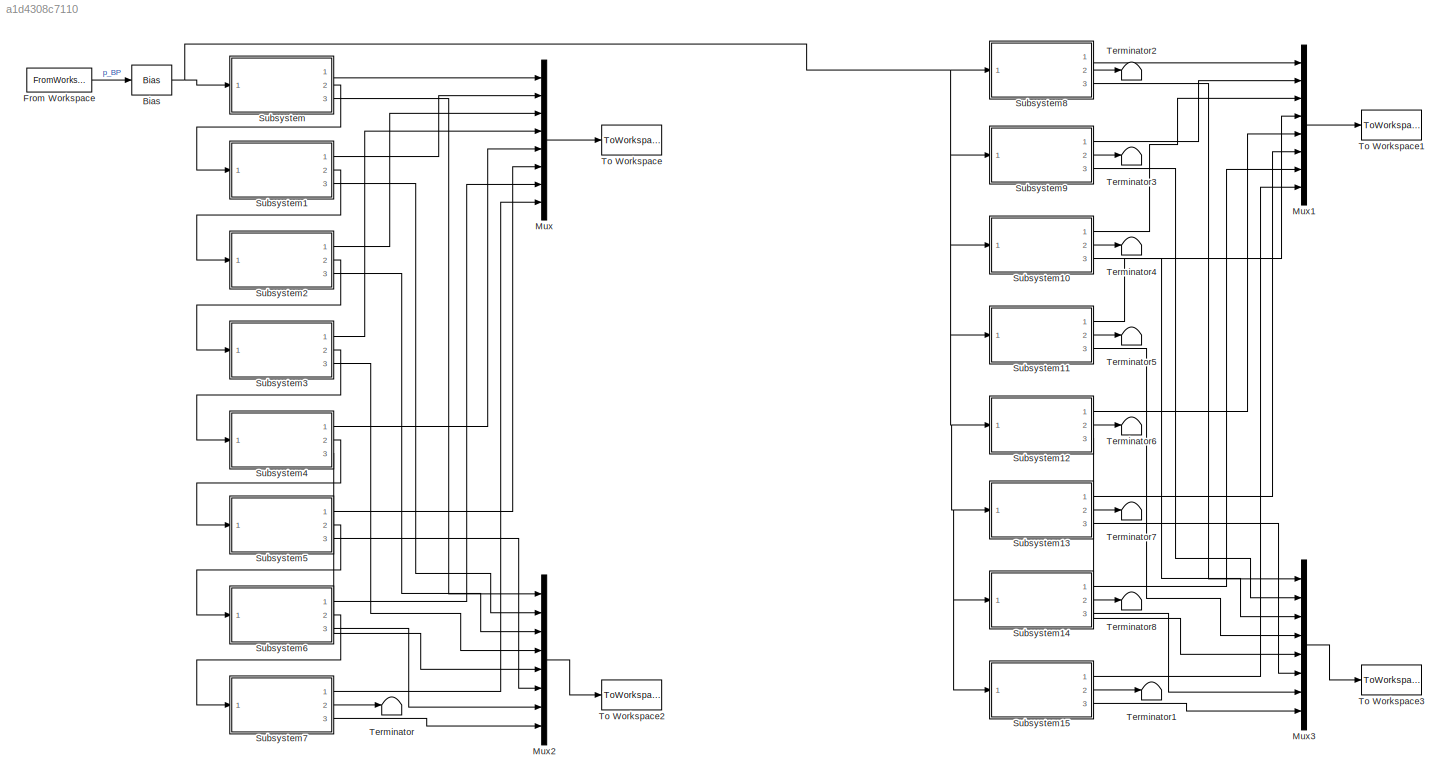
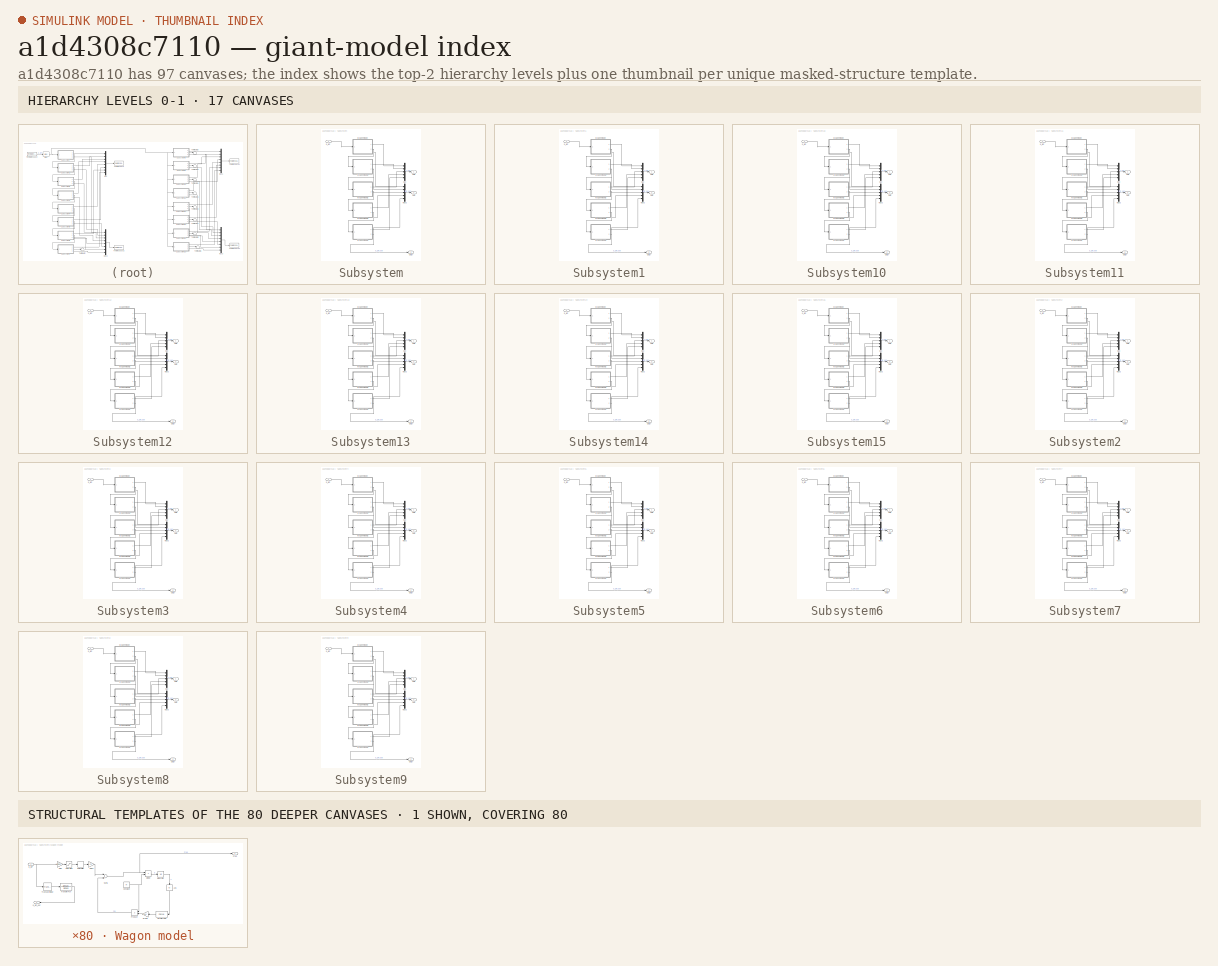
[diagram: thumbnail index - top-2 hierarchy levels (17 canvases) + 1 structural-template representatives of the remaining 80 canvases]
MODEL slx_a1d4308c7110
KIND model
CONFIG AbsTol = auto
CONFIG EnableMultiTasking = off
CONFIG FixedStep = auto
CONFIG MaxStep = auto
CONFIG MinStep = auto
CONFIG RelTol = 1e-3
CONFIG SampleTimeConstraint = Unconstrained
CONFIG Solver = VariableStepAuto
CONFIG SolverName = VariableStepAuto
CONFIG StartTime = 0.0
CONFIG StopTime = tmax
BLOCK [Bias] Bias
  Bias = -RBD
  SaturateOnIntegerOverflow = off
BLOCK [FromWorkspace] From Workspace
  SampleTime = 0
  VariableName = simin
  ZeroCross = on
BLOCK [Mux] Mux
  DisplayOption = bar
  Inputs = 8
  Ports = [8, 1]
BLOCK [Mux] Mux1
  DisplayOption = bar
  Inputs = 8
  Ports = [8, 1]
BLOCK [Mux] Mux2
  DisplayOption = bar
  Inputs = 8
  Ports = [8, 1]
BLOCK [Mux] Mux3
  DisplayOption = bar
  Inputs = 8
  Ports = [8, 1]
BLOCK [SubSystem] Subsystem
  Ports = [1, 3]
  RequestExecContextInheritance = off
BLOCK [Mux] Subsystem/Mux
  DisplayOption = bar
  Inputs = 5
  Ports = [5, 1]
BLOCK [Mux] Subsystem/Mux2
  DisplayOption = bar
  Inputs = 5
  Ports = [5, 1]
BLOCK [Outport] Subsystem/Out17
  IconDisplay = Signal name
  Port = 2
BLOCK [Outport] Subsystem/Out2
  IconDisplay = Signal name
  Port = 3
BLOCK [Outport] Subsystem/Out5
  IconDisplay = Signal name
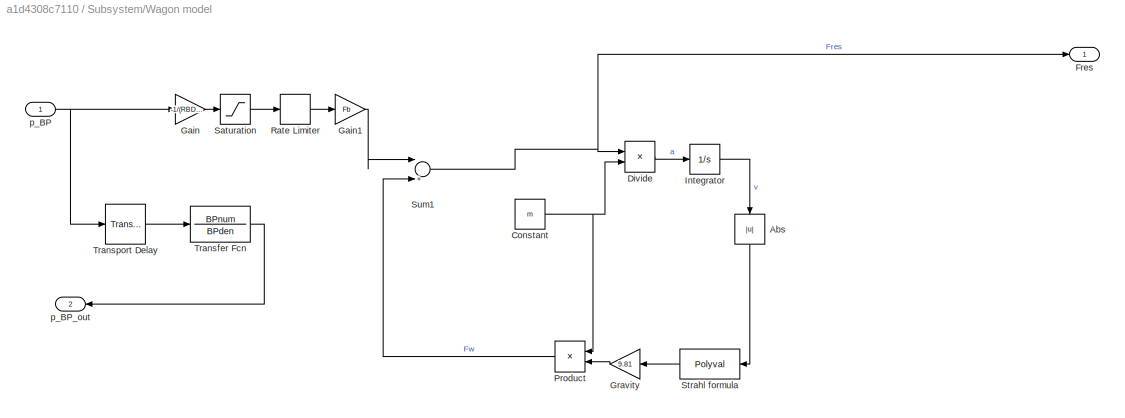
BLOCK [SubSystem] Subsystem/Wagon model
  Ports = [1, 2]
  RequestExecContextInheritance = off
BLOCK [Abs] Subsystem/Wagon model/Abs
  SaturateOnIntegerOverflow = off
BLOCK [Constant] Subsystem/Wagon model/Constant
  Value = m
BLOCK [Product] Subsystem/Wagon model/Divide
  InputSameDT = off
  Inputs = */
  OutDataTypeStr = Inherit: Inherit via internal rule
  Ports = [2, 1]
  RndMeth = Floor
  SaturateOnIntegerOverflow = off
BLOCK [Outport] Subsystem/Wagon model/Fres
  IconDisplay = Port number
BLOCK [Gain] Subsystem/Wagon model/Gain
  Gain = -1/(RBD-VBD)
  OutDataTypeStr = Inherit: Inherit via internal rule
  ParamDataTypeStr = Inherit: Inherit via internal rule
  SaturateOnIntegerOverflow = off
BLOCK [Gain] Subsystem/Wagon model/Gain1
  Gain = Fb
  OutDataTypeStr = Inherit: Inherit via internal rule
  ParamDataTypeStr = Inherit: Inherit via internal rule
  SaturateOnIntegerOverflow = off
BLOCK [Gain] Subsystem/Wagon model/Gravity
  Gain = 9.81
  OutDataTypeStr = Inherit: Inherit via internal rule
  ParamDataTypeStr = Inherit: Inherit via internal rule
  SaturateOnIntegerOverflow = off
BLOCK [Integrator] Subsystem/Wagon model/Integrator
  InitialCondition = v0
  Ports = [1, 1]
BLOCK [Product] Subsystem/Wagon model/Product
  InputSameDT = off
  OutDataTypeStr = Inherit: Inherit via internal rule
  Ports = [2, 1]
  RndMeth = Floor
  SaturateOnIntegerOverflow = off
BLOCK [RateLimiter] Subsystem/Wagon model/Rate Limiter
  FallingSlewLimit = -1/tl
  RisingSlewLimit = 1/tf
  SampleTimeMode = inherited
BLOCK [Saturate] Subsystem/Wagon model/Saturation
  InputPortMap = u0
  LowerLimit = 0
  Ports = [1, 1]
  UpperLimit = 1
BLOCK [Polyval] Subsystem/Wagon model/Strahl formula
  Coefs = Pres
BLOCK [Sum] Subsystem/Wagon model/Sum1
  InputSameDT = off
  Inputs = |+-
  OutDataTypeStr = Inherit: Inherit via internal rule
  Ports = [2, 1]
  SaturateOnIntegerOverflow = off
BLOCK [TransferFcn] Subsystem/Wagon model/Transfer Fcn
  Denominator = BPden
  Numerator = BPnum
BLOCK [TransportDelay] Subsystem/Wagon model/Transport Delay
  DelayTime = l/c
  InitialOutput = p0
  Ports = [1, 1]
BLOCK [Inport] Subsystem/Wagon model/p_BP
  IconDisplay = Port number
BLOCK [Outport] Subsystem/Wagon model/p_BP_out
  IconDisplay = Port number
  Port = 2
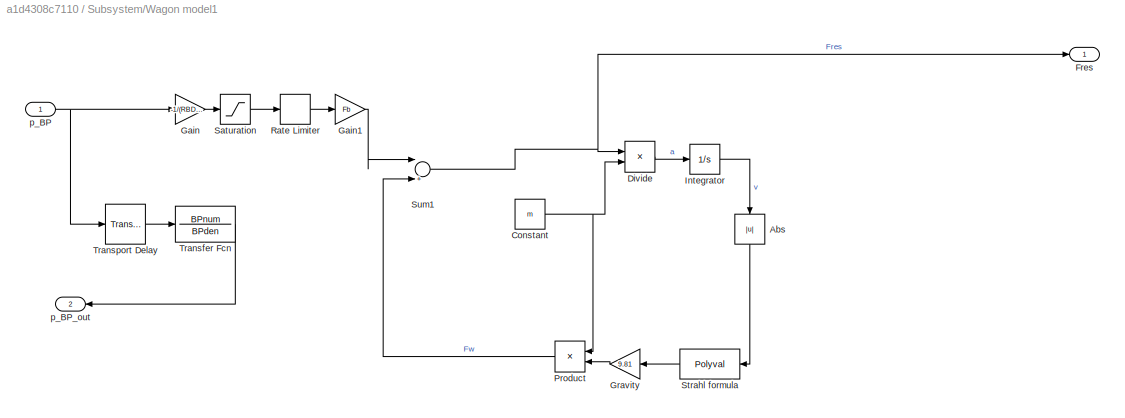
BLOCK [SubSystem] Subsystem/Wagon model1
  Ports = [1, 2]
  RequestExecContextInheritance = off
BLOCK [Abs] Subsystem/Wagon model1/Abs
  SaturateOnIntegerOverflow = off
BLOCK [Constant] Subsystem/Wagon model1/Constant
  Value = m
BLOCK [Product] Subsystem/Wagon model1/Divide
  InputSameDT = off
  Inputs = */
  OutDataTypeStr = Inherit: Inherit via internal rule
  Ports = [2, 1]
  RndMeth = Floor
  SaturateOnIntegerOverflow = off
BLOCK [Outport] Subsystem/Wagon model1/Fres
  IconDisplay = Port number
BLOCK [Gain] Subsystem/Wagon model1/Gain
  Gain = -1/(RBD-VBD)
  OutDataTypeStr = Inherit: Inherit via internal rule
  ParamDataTypeStr = Inherit: Inherit via internal rule
  SaturateOnIntegerOverflow = off
BLOCK [Gain] Subsystem/Wagon model1/Gain1
  Gain = Fb
  OutDataTypeStr = Inherit: Inherit via internal rule
  ParamDataTypeStr = Inherit: Inherit via internal rule
  SaturateOnIntegerOverflow = off
BLOCK [Gain] Subsystem/Wagon model1/Gravity
  Gain = 9.81
  OutDataTypeStr = Inherit: Inherit via internal rule
  ParamDataTypeStr = Inherit: Inherit via internal rule
  SaturateOnIntegerOverflow = off
BLOCK [Integrator] Subsystem/Wagon model1/Integrator
  InitialCondition = v0
  Ports = [1, 1]
BLOCK [Product] Subsystem/Wagon model1/Product
  InputSameDT = off
  OutDataTypeStr = Inherit: Inherit via internal rule
  Ports = [2, 1]
  RndMeth = Floor
  SaturateOnIntegerOverflow = off
BLOCK [RateLimiter] Subsystem/Wagon model1/Rate Limiter
  FallingSlewLimit = -1/tl
  RisingSlewLimit = 1/tf
  SampleTimeMode = inherited
BLOCK [Saturate] Subsystem/Wagon model1/Saturation
  InputPortMap = u0
  LowerLimit = 0
  Ports = [1, 1]
  UpperLimit = 1
BLOCK [Polyval] Subsystem/Wagon model1/Strahl formula
  Coefs = Pres
BLOCK [Sum] Subsystem/Wagon model1/Sum1
  InputSameDT = off
  Inputs = |+-
  OutDataTypeStr = Inherit: Inherit via internal rule
  Ports = [2, 1]
  SaturateOnIntegerOverflow = off
BLOCK [TransferFcn] Subsystem/Wagon model1/Transfer Fcn
  Denominator = BPden
  Numerator = BPnum
BLOCK [TransportDelay] Subsystem/Wagon model1/Transport Delay
  DelayTime = l/c
  InitialOutput = p0
  Ports = [1, 1]
BLOCK [Inport] Subsystem/Wagon model1/p_BP
  IconDisplay = Port number
BLOCK [Outport] Subsystem/Wagon model1/p_BP_out
  IconDisplay = Port number
  Port = 2
BLOCK [SubSystem] Subsystem/Wagon model2
  Ports = [1, 2]
  RequestExecContextInheritance = off
BLOCK [Abs] Subsystem/Wagon model2/Abs
  SaturateOnIntegerOverflow = off
BLOCK [Constant] Subsystem/Wagon model2/Constant
  Value = m
BLOCK [Product] Subsystem/Wagon model2/Divide
  InputSameDT = off
  Inputs = */
  OutDataTypeStr = Inherit: Inherit via internal rule
  Ports = [2, 1]
  RndMeth = Floor
  SaturateOnIntegerOverflow = off
BLOCK [Outport] Subsystem/Wagon model2/Fres
  IconDisplay = Port number
BLOCK [Gain] Subsystem/Wagon model2/Gain
  Gain = -1/(RBD-VBD)
  OutDataTypeStr = Inherit: Inherit via internal rule
  ParamDataTypeStr = Inherit: Inherit via internal rule
  SaturateOnIntegerOverflow = off
BLOCK [Gain] Subsystem/Wagon model2/Gain1
  Gain = Fb
  OutDataTypeStr = Inherit: Inherit via internal rule
  ParamDataTypeStr = Inherit: Inherit via internal rule
  SaturateOnIntegerOverflow = off
BLOCK [Gain] Subsystem/Wagon model2/Gravity
  Gain = 9.81
  OutDataTypeStr = Inherit: Inherit via internal rule
  ParamDataTypeStr = Inherit: Inherit via internal rule
  SaturateOnIntegerOverflow = off
BLOCK [Integrator] Subsystem/Wagon model2/Integrator
  InitialCondition = v0
  Ports = [1, 1]
BLOCK [Product] Subsystem/Wagon model2/Product
  InputSameDT = off
  OutDataTypeStr = Inherit: Inherit via internal rule
  Ports = [2, 1]
  RndMeth = Floor
  SaturateOnIntegerOverflow = off
BLOCK [RateLimiter] Subsystem/Wagon model2/Rate Limiter
  FallingSlewLimit = -1/tl
  RisingSlewLimit = 1/tf
  SampleTimeMode = inherited
BLOCK [Saturate] Subsystem/Wagon model2/Saturation
  InputPortMap = u0
  LowerLimit = 0
  Ports = [1, 1]
  UpperLimit = 1
BLOCK [Polyval] Subsystem/Wagon model2/Strahl formula
  Coefs = Pres
BLOCK [Sum] Subsystem/Wagon model2/Sum1
  InputSameDT = off
  Inputs = |+-
  OutDataTypeStr = Inherit: Inherit via internal rule
  Ports = [2, 1]
  SaturateOnIntegerOverflow = off
BLOCK [TransferFcn] Subsystem/Wagon model2/Transfer Fcn
  Denominator = BPden
  Numerator = BPnum
BLOCK [TransportDelay] Subsystem/Wagon model2/Transport Delay
  DelayTime = l/c
  InitialOutput = p0
  Ports = [1, 1]
BLOCK [Inport] Subsystem/Wagon model2/p_BP
  IconDisplay = Port number
BLOCK [Outport] Subsystem/Wagon model2/p_BP_out
  IconDisplay = Port number
  Port = 2
BLOCK [SubSystem] Subsystem/Wagon model3
  Ports = [1, 2]
  RequestExecContextInheritance = off
BLOCK [Abs] Subsystem/Wagon model3/Abs
  SaturateOnIntegerOverflow = off
BLOCK [Constant] Subsystem/Wagon model3/Constant
  Value = m
BLOCK [Product] Subsystem/Wagon model3/Divide
  InputSameDT = off
  Inputs = */
  OutDataTypeStr = Inherit: Inherit via internal rule
  Ports = [2, 1]
  RndMeth = Floor
  SaturateOnIntegerOverflow = off
BLOCK [Outport] Subsystem/Wagon model3/Fres
  IconDisplay = Port number
BLOCK [Gain] Subsystem/Wagon model3/Gain
  Gain = -1/(RBD-VBD)
  OutDataTypeStr = Inherit: Inherit via internal rule
  ParamDataTypeStr = Inherit: Inherit via internal rule
  SaturateOnIntegerOverflow = off
BLOCK [Gain] Subsystem/Wagon model3/Gain1
  Gain = Fb
  OutDataTypeStr = Inherit: Inherit via internal rule
  ParamDataTypeStr = Inherit: Inherit via internal rule
  SaturateOnIntegerOverflow = off
BLOCK [Gain] Subsystem/Wagon model3/Gravity
  Gain = 9.81
  OutDataTypeStr = Inherit: Inherit via internal rule
  ParamDataTypeStr = Inherit: Inherit via internal rule
  SaturateOnIntegerOverflow = off
BLOCK [Integrator] Subsystem/Wagon model3/Integrator
  InitialCondition = v0
  Ports = [1, 1]
BLOCK [Product] Subsystem/Wagon model3/Product
  InputSameDT = off
  OutDataTypeStr = Inherit: Inherit via internal rule
  Ports = [2, 1]
  RndMeth = Floor
  SaturateOnIntegerOverflow = off
BLOCK [RateLimiter] Subsystem/Wagon model3/Rate Limiter
  FallingSlewLimit = -1/tl
  RisingSlewLimit = 1/tf
  SampleTimeMode = inherited
BLOCK [Saturate] Subsystem/Wagon model3/Saturation
  InputPortMap = u0
  LowerLimit = 0
  Ports = [1, 1]
  UpperLimit = 1
BLOCK [Polyval] Subsystem/Wagon model3/Strahl formula
  Coefs = Pres
BLOCK [Sum] Subsystem/Wagon model3/Sum1
  InputSameDT = off
  Inputs = |+-
  OutDataTypeStr = Inherit: Inherit via internal rule
  Ports = [2, 1]
  SaturateOnIntegerOverflow = off
BLOCK [TransferFcn] Subsystem/Wagon model3/Transfer Fcn
  Denominator = BPden
  Numerator = BPnum
BLOCK [TransportDelay] Subsystem/Wagon model3/Transport Delay
  DelayTime = l/c
  InitialOutput = p0
  Ports = [1, 1]
BLOCK [Inport] Subsystem/Wagon model3/p_BP
  IconDisplay = Port number
BLOCK [Outport] Subsystem/Wagon model3/p_BP_out
  IconDisplay = Port number
  Port = 2
BLOCK [SubSystem] Subsystem/Wagon model4
  Ports = [1, 2]
  RequestExecContextInheritance = off
BLOCK [Abs] Subsystem/Wagon model4/Abs
  SaturateOnIntegerOverflow = off
BLOCK [Constant] Subsystem/Wagon model4/Constant
  Value = m
BLOCK [Product] Subsystem/Wagon model4/Divide
  InputSameDT = off
  Inputs = */
  OutDataTypeStr = Inherit: Inherit via internal rule
  Ports = [2, 1]
  RndMeth = Floor
  SaturateOnIntegerOverflow = off
BLOCK [Outport] Subsystem/Wagon model4/Fres
  IconDisplay = Port number
BLOCK [Gain] Subsystem/Wagon model4/Gain
  Gain = -1/(RBD-VBD)
  OutDataTypeStr = Inherit: Inherit via internal rule
  ParamDataTypeStr = Inherit: Inherit via internal rule
  SaturateOnIntegerOverflow = off
BLOCK [Gain] Subsystem/Wagon model4/Gain1
  Gain = Fb
  OutDataTypeStr = Inherit: Inherit via internal rule
  ParamDataTypeStr = Inherit: Inherit via internal rule
  SaturateOnIntegerOverflow = off
BLOCK [Gain] Subsystem/Wagon model4/Gravity
  Gain = 9.81
  OutDataTypeStr = Inherit: Inherit via internal rule
  ParamDataTypeStr = Inherit: Inherit via internal rule
  SaturateOnIntegerOverflow = off
BLOCK [Integrator] Subsystem/Wagon model4/Integrator
  InitialCondition = v0
  Ports = [1, 1]
BLOCK [Product] Subsystem/Wagon model4/Product
  InputSameDT = off
  OutDataTypeStr = Inherit: Inherit via internal rule
  Ports = [2, 1]
  RndMeth = Floor
  SaturateOnIntegerOverflow = off
BLOCK [RateLimiter] Subsystem/Wagon model4/Rate Limiter
  FallingSlewLimit = -1/tl
  RisingSlewLimit = 1/tf
  SampleTimeMode = inherited
BLOCK [Saturate] Subsystem/Wagon model4/Saturation
  InputPortMap = u0
  LowerLimit = 0
  Ports = [1, 1]
  UpperLimit = 1
BLOCK [Polyval] Subsystem/Wagon model4/Strahl formula
  Coefs = Pres
BLOCK [Sum] Subsystem/Wagon model4/Sum1
  InputSameDT = off
  Inputs = |+-
  OutDataTypeStr = Inherit: Inherit via internal rule
  Ports = [2, 1]
  SaturateOnIntegerOverflow = off
BLOCK [TransferFcn] Subsystem/Wagon model4/Transfer Fcn
  Denominator = BPden
  Numerator = BPnum
BLOCK [TransportDelay] Subsystem/Wagon model4/Transport Delay
  DelayTime = l/c
  InitialOutput = p0
  Ports = [1, 1]
BLOCK [Inport] Subsystem/Wagon model4/p_BP
  IconDisplay = Port number
BLOCK [Outport] Subsystem/Wagon model4/p_BP_out
  IconDisplay = Port number
  Port = 2
BLOCK [Inport] Subsystem/p_BP
  IconDisplay = Port number
BLOCK [SubSystem] Subsystem1
  Ports = [1, 3]
  RequestExecContextInheritance = off
BLOCK [Mux] Subsystem1/Mux
  DisplayOption = bar
  Inputs = 5
  Ports = [5, 1]
BLOCK [Mux] Subsystem1/Mux2
  DisplayOption = bar
  Inputs = 5
  Ports = [5, 1]
BLOCK [Outport] Subsystem1/Out17
  IconDisplay = Signal name
  Port = 2
BLOCK [Outport] Subsystem1/Out2
  IconDisplay = Signal name
  Port = 3
BLOCK [Outport] Subsystem1/Out5
  IconDisplay = Signal name
BLOCK [SubSystem] Subsystem1/Wagon model
  Ports = [1, 2]
  RequestExecContextInheritance = off
BLOCK [Abs] Subsystem1/Wagon model/Abs
  SaturateOnIntegerOverflow = off
BLOCK [Constant] Subsystem1/Wagon model/Constant
  Value = m
BLOCK [Product] Subsystem1/Wagon model/Divide
  InputSameDT = off
  Inputs = */
  OutDataTypeStr = Inherit: Inherit via internal rule
  Ports = [2, 1]
  RndMeth = Floor
  SaturateOnIntegerOverflow = off
BLOCK [Outport] Subsystem1/Wagon model/Fres
  IconDisplay = Port number
BLOCK [Gain] Subsystem1/Wagon model/Gain
  Gain = -1/(RBD-VBD)
  OutDataTypeStr = Inherit: Inherit via internal rule
  ParamDataTypeStr = Inherit: Inherit via internal rule
  SaturateOnIntegerOverflow = off
BLOCK [Gain] Subsystem1/Wagon model/Gain1
  Gain = Fb
  OutDataTypeStr = Inherit: Inherit via internal rule
  ParamDataTypeStr = Inherit: Inherit via internal rule
  SaturateOnIntegerOverflow = off
BLOCK [Gain] Subsystem1/Wagon model/Gravity
  Gain = 9.81
  OutDataTypeStr = Inherit: Inherit via internal rule
  ParamDataTypeStr = Inherit: Inherit via internal rule
  SaturateOnIntegerOverflow = off
BLOCK [Integrator] Subsystem1/Wagon model/Integrator
  InitialCondition = v0
  Ports = [1, 1]
BLOCK [Product] Subsystem1/Wagon model/Product
  InputSameDT = off
  OutDataTypeStr = Inherit: Inherit via internal rule
  Ports = [2, 1]
  RndMeth = Floor
  SaturateOnIntegerOverflow = off
BLOCK [RateLimiter] Subsystem1/Wagon model/Rate Limiter
  FallingSlewLimit = -1/tl
  RisingSlewLimit = 1/tf
  SampleTimeMode = inherited
BLOCK [Saturate] Subsystem1/Wagon model/Saturation
  InputPortMap = u0
  LowerLimit = 0
  Ports = [1, 1]
  UpperLimit = 1
BLOCK [Polyval] Subsystem1/Wagon model/Strahl formula
  Coefs = Pres
BLOCK [Sum] Subsystem1/Wagon model/Sum1
  InputSameDT = off
  Inputs = |+-
  OutDataTypeStr = Inherit: Inherit via internal rule
  Ports = [2, 1]
  SaturateOnIntegerOverflow = off
BLOCK [TransferFcn] Subsystem1/Wagon model/Transfer Fcn
  Denominator = BPden
  Numerator = BPnum
BLOCK [TransportDelay] Subsystem1/Wagon model/Transport Delay
  DelayTime = l/c
  InitialOutput = p0
  Ports = [1, 1]
BLOCK [Inport] Subsystem1/Wagon model/p_BP
  IconDisplay = Port number
BLOCK [Outport] Subsystem1/Wagon model/p_BP_out
  IconDisplay = Port number
  Port = 2
BLOCK [SubSystem] Subsystem1/Wagon model1
  Ports = [1, 2]
  RequestExecContextInheritance = off
BLOCK [Abs] Subsystem1/Wagon model1/Abs
  SaturateOnIntegerOverflow = off
BLOCK [Constant] Subsystem1/Wagon model1/Constant
  Value = m
BLOCK [Product] Subsystem1/Wagon model1/Divide
  InputSameDT = off
  Inputs = */
  OutDataTypeStr = Inherit: Inherit via internal rule
  Ports = [2, 1]
  RndMeth = Floor
  SaturateOnIntegerOverflow = off
BLOCK [Outport] Subsystem1/Wagon model1/Fres
  IconDisplay = Port number
BLOCK [Gain] Subsystem1/Wagon model1/Gain
  Gain = -1/(RBD-VBD)
  OutDataTypeStr = Inherit: Inherit via internal rule
  ParamDataTypeStr = Inherit: Inherit via internal rule
  SaturateOnIntegerOverflow = off
BLOCK [Gain] Subsystem1/Wagon model1/Gain1
  Gain = Fb
  OutDataTypeStr = Inherit: Inherit via internal rule
  ParamDataTypeStr = Inherit: Inherit via internal rule
  SaturateOnIntegerOverflow = off
BLOCK [Gain] Subsystem1/Wagon model1/Gravity
  Gain = 9.81
  OutDataTypeStr = Inherit: Inherit via internal rule
  ParamDataTypeStr = Inherit: Inherit via internal rule
  SaturateOnIntegerOverflow = off
BLOCK [Integrator] Subsystem1/Wagon model1/Integrator
  InitialCondition = v0
  Ports = [1, 1]
BLOCK [Product] Subsystem1/Wagon model1/Product
  InputSameDT = off
  OutDataTypeStr = Inherit: Inherit via internal rule
  Ports = [2, 1]
  RndMeth = Floor
  SaturateOnIntegerOverflow = off
BLOCK [RateLimiter] Subsystem1/Wagon model1/Rate Limiter
  FallingSlewLimit = -1/tl
  RisingSlewLimit = 1/tf
  SampleTimeMode = inherited
BLOCK [Saturate] Subsystem1/Wagon model1/Saturation
  InputPortMap = u0
  LowerLimit = 0
  Ports = [1, 1]
  UpperLimit = 1
BLOCK [Polyval] Subsystem1/Wagon model1/Strahl formula
  Coefs = Pres
BLOCK [Sum] Subsystem1/Wagon model1/Sum1
  InputSameDT = off
  Inputs = |+-
  OutDataTypeStr = Inherit: Inherit via internal rule
  Ports = [2, 1]
  SaturateOnIntegerOverflow = off
BLOCK [TransferFcn] Subsystem1/Wagon model1/Transfer Fcn
  Denominator = BPden
  Numerator = BPnum
BLOCK [TransportDelay] Subsystem1/Wagon model1/Transport Delay
  DelayTime = l/c
  InitialOutput = p0
  Ports = [1, 1]
BLOCK [Inport] Subsystem1/Wagon model1/p_BP
  IconDisplay = Port number
BLOCK [Outport] Subsystem1/Wagon model1/p_BP_out
  IconDisplay = Port number
  Port = 2
BLOCK [SubSystem] Subsystem1/Wagon model2
  Ports = [1, 2]
  RequestExecContextInheritance = off
BLOCK [Abs] Subsystem1/Wagon model2/Abs
  SaturateOnIntegerOverflow = off
BLOCK [Constant] Subsystem1/Wagon model2/Constant
  Value = m
BLOCK [Product] Subsystem1/Wagon model2/Divide
  InputSameDT = off
  Inputs = */
  OutDataTypeStr = Inherit: Inherit via internal rule
  Ports = [2, 1]
  RndMeth = Floor
  SaturateOnIntegerOverflow = off
BLOCK [Outport] Subsystem1/Wagon model2/Fres
  IconDisplay = Port number
BLOCK [Gain] Subsystem1/Wagon model2/Gain
  Gain = -1/(RBD-VBD)
  OutDataTypeStr = Inherit: Inherit via internal rule
  ParamDataTypeStr = Inherit: Inherit via internal rule
  SaturateOnIntegerOverflow = off
BLOCK [Gain] Subsystem1/Wagon model2/Gain1
  Gain = Fb
  OutDataTypeStr = Inherit: Inherit via internal rule
  ParamDataTypeStr = Inherit: Inherit via internal rule
  SaturateOnIntegerOverflow = off
BLOCK [Gain] Subsystem1/Wagon model2/Gravity
  Gain = 9.81
  OutDataTypeStr = Inherit: Inherit via internal rule
  ParamDataTypeStr = Inherit: Inherit via internal rule
  SaturateOnIntegerOverflow = off
BLOCK [Integrator] Subsystem1/Wagon model2/Integrator
  InitialCondition = v0
  Ports = [1, 1]
BLOCK [Product] Subsystem1/Wagon model2/Product
  InputSameDT = off
  OutDataTypeStr = Inherit: Inherit via internal rule
  Ports = [2, 1]
  RndMeth = Floor
  SaturateOnIntegerOverflow = off
BLOCK [RateLimiter] Subsystem1/Wagon model2/Rate Limiter
  FallingSlewLimit = -1/tl
  RisingSlewLimit = 1/tf
  SampleTimeMode = inherited
BLOCK [Saturate] Subsystem1/Wagon model2/Saturation
  InputPortMap = u0
  LowerLimit = 0
  Ports = [1, 1]
  UpperLimit = 1
BLOCK [Polyval] Subsystem1/Wagon model2/Strahl formula
  Coefs = Pres
BLOCK [Sum] Subsystem1/Wagon model2/Sum1
  InputSameDT = off
  Inputs = |+-
  OutDataTypeStr = Inherit: Inherit via internal rule
  Ports = [2, 1]
  SaturateOnIntegerOverflow = off
BLOCK [TransferFcn] Subsystem1/Wagon model2/Transfer Fcn
  Denominator = BPden
  Numerator = BPnum
BLOCK [TransportDelay] Subsystem1/Wagon model2/Transport Delay
  DelayTime = l/c
  InitialOutput = p0
  Ports = [1, 1]
BLOCK [Inport] Subsystem1/Wagon model2/p_BP
  IconDisplay = Port number
BLOCK [Outport] Subsystem1/Wagon model2/p_BP_out
  IconDisplay = Port number
  Port = 2
BLOCK [SubSystem] Subsystem1/Wagon model3
  Ports = [1, 2]
  RequestExecContextInheritance = off
BLOCK [Abs] Subsystem1/Wagon model3/Abs
  SaturateOnIntegerOverflow = off
BLOCK [Constant] Subsystem1/Wagon model3/Constant
  Value = m
BLOCK [Product] Subsystem1/Wagon model3/Divide
  InputSameDT = off
  Inputs = */
  OutDataTypeStr = Inherit: Inherit via internal rule
  Ports = [2, 1]
  RndMeth = Floor
  SaturateOnIntegerOverflow = off
BLOCK [Outport] Subsystem1/Wagon model3/Fres
  IconDisplay = Port number
BLOCK [Gain] Subsystem1/Wagon model3/Gain
  Gain = -1/(RBD-VBD)
  OutDataTypeStr = Inherit: Inherit via internal rule
  ParamDataTypeStr = Inherit: Inherit via internal rule
  SaturateOnIntegerOverflow = off
BLOCK [Gain] Subsystem1/Wagon model3/Gain1
  Gain = Fb
  OutDataTypeStr = Inherit: Inherit via internal rule
  ParamDataTypeStr = Inherit: Inherit via internal rule
  SaturateOnIntegerOverflow = off
BLOCK [Gain] Subsystem1/Wagon model3/Gravity
  Gain = 9.81
  OutDataTypeStr = Inherit: Inherit via internal rule
  ParamDataTypeStr = Inherit: Inherit via internal rule
  SaturateOnIntegerOverflow = off
BLOCK [Integrator] Subsystem1/Wagon model3/Integrator
  InitialCondition = v0
  Ports = [1, 1]
BLOCK [Product] Subsystem1/Wagon model3/Product
  InputSameDT = off
  OutDataTypeStr = Inherit: Inherit via internal rule
  Ports = [2, 1]
  RndMeth = Floor
  SaturateOnIntegerOverflow = off
BLOCK [RateLimiter] Subsystem1/Wagon model3/Rate Limiter
  FallingSlewLimit = -1/tl
  RisingSlewLimit = 1/tf
  SampleTimeMode = inherited
BLOCK [Saturate] Subsystem1/Wagon model3/Saturation
  InputPortMap = u0
  LowerLimit = 0
  Ports = [1, 1]
  UpperLimit = 1
BLOCK [Polyval] Subsystem1/Wagon model3/Strahl formula
  Coefs = Pres
BLOCK [Sum] Subsystem1/Wagon model3/Sum1
  InputSameDT = off
  Inputs = |+-
  OutDataTypeStr = Inherit: Inherit via internal rule
  Ports = [2, 1]
  SaturateOnIntegerOverflow = off
BLOCK [TransferFcn] Subsystem1/Wagon model3/Transfer Fcn
  Denominator = BPden
  Numerator = BPnum
BLOCK [TransportDelay] Subsystem1/Wagon model3/Transport Delay
  DelayTime = l/c
  InitialOutput = p0
  Ports = [1, 1]
BLOCK [Inport] Subsystem1/Wagon model3/p_BP
  IconDisplay = Port number
BLOCK [Outport] Subsystem1/Wagon model3/p_BP_out
  IconDisplay = Port number
  Port = 2
BLOCK [SubSystem] Subsystem1/Wagon model4
  Ports = [1, 2]
  RequestExecContextInheritance = off
BLOCK [Abs] Subsystem1/Wagon model4/Abs
  SaturateOnIntegerOverflow = off
BLOCK [Constant] Subsystem1/Wagon model4/Constant
  Value = m
BLOCK [Product] Subsystem1/Wagon model4/Divide
  InputSameDT = off
  Inputs = */
  OutDataTypeStr = Inherit: Inherit via internal rule
  Ports = [2, 1]
  RndMeth = Floor
  SaturateOnIntegerOverflow = off
BLOCK [Outport] Subsystem1/Wagon model4/Fres
  IconDisplay = Port number
BLOCK [Gain] Subsystem1/Wagon model4/Gain
  Gain = -1/(RBD-VBD)
  OutDataTypeStr = Inherit: Inherit via internal rule
  ParamDataTypeStr = Inherit: Inherit via internal rule
  SaturateOnIntegerOverflow = off
BLOCK [Gain] Subsystem1/Wagon model4/Gain1
  Gain = Fb
  OutDataTypeStr = Inherit: Inherit via internal rule
  ParamDataTypeStr = Inherit: Inherit via internal rule
  SaturateOnIntegerOverflow = off
BLOCK [Gain] Subsystem1/Wagon model4/Gravity
  Gain = 9.81
  OutDataTypeStr = Inherit: Inherit via internal rule
  ParamDataTypeStr = Inherit: Inherit via internal rule
  SaturateOnIntegerOverflow = off
BLOCK [Integrator] Subsystem1/Wagon model4/Integrator
  InitialCondition = v0
  Ports = [1, 1]
BLOCK [Product] Subsystem1/Wagon model4/Product
  InputSameDT = off
  OutDataTypeStr = Inherit: Inherit via internal rule
  Ports = [2, 1]
  RndMeth = Floor
  SaturateOnIntegerOverflow = off
BLOCK [RateLimiter] Subsystem1/Wagon model4/Rate Limiter
  FallingSlewLimit = -1/tl
  RisingSlewLimit = 1/tf
  SampleTimeMode = inherited
BLOCK [Saturate] Subsystem1/Wagon model4/Saturation
  InputPortMap = u0
  LowerLimit = 0
  Ports = [1, 1]
  UpperLimit = 1
BLOCK [Polyval] Subsystem1/Wagon model4/Strahl formula
  Coefs = Pres
BLOCK [Sum] Subsystem1/Wagon model4/Sum1
  InputSameDT = off
  Inputs = |+-
  OutDataTypeStr = Inherit: Inherit via internal rule
  Ports = [2, 1]
  SaturateOnIntegerOverflow = off
BLOCK [TransferFcn] Subsystem1/Wagon model4/Transfer Fcn
  Denominator = BPden
  Numerator = BPnum
BLOCK [TransportDelay] Subsystem1/Wagon model4/Transport Delay
  DelayTime = l/c
  InitialOutput = p0
  Ports = [1, 1]
BLOCK [Inport] Subsystem1/Wagon model4/p_BP
  IconDisplay = Port number
BLOCK [Outport] Subsystem1/Wagon model4/p_BP_out
  IconDisplay = Port number
  Port = 2
BLOCK [Inport] Subsystem1/p_BP
  IconDisplay = Port number
BLOCK [SubSystem] Subsystem10
  Ports = [1, 3]
  RequestExecContextInheritance = off
BLOCK [Mux] Subsystem10/Mux
  DisplayOption = bar
  Inputs = 5
  Ports = [5, 1]
BLOCK [Mux] Subsystem10/Mux2
  DisplayOption = bar
  Inputs = 5
  Ports = [5, 1]
BLOCK [Outport] Subsystem10/Out17
  IconDisplay = Signal name
  Port = 2
BLOCK [Outport] Subsystem10/Out2
  IconDisplay = Signal name
  Port = 3
BLOCK [Outport] Subsystem10/Out5
  IconDisplay = Signal name
BLOCK [SubSystem] Subsystem10/Wagon model
  Ports = [1, 2]
  RequestExecContextInheritance = off
BLOCK [Abs] Subsystem10/Wagon model/Abs
  SaturateOnIntegerOverflow = off
BLOCK [Constant] Subsystem10/Wagon model/Constant
  Value = m
BLOCK [Product] Subsystem10/Wagon model/Divide
  InputSameDT = off
  Inputs = */
  OutDataTypeStr = Inherit: Inherit via internal rule
  Ports = [2, 1]
  RndMeth = Floor
  SaturateOnIntegerOverflow = off
BLOCK [Outport] Subsystem10/Wagon model/Fres
  IconDisplay = Port number
BLOCK [Gain] Subsystem10/Wagon model/Gain
  Gain = -1/(RBD-VBD)
  OutDataTypeStr = Inherit: Inherit via internal rule
  ParamDataTypeStr = Inherit: Inherit via internal rule
  SaturateOnIntegerOverflow = off
BLOCK [Gain] Subsystem10/Wagon model/Gain1
  Gain = Fb
  OutDataTypeStr = Inherit: Inherit via internal rule
  ParamDataTypeStr = Inherit: Inherit via internal rule
  SaturateOnIntegerOverflow = off
BLOCK [Gain] Subsystem10/Wagon model/Gravity
  Gain = 9.81
  OutDataTypeStr = Inherit: Inherit via internal rule
  ParamDataTypeStr = Inherit: Inherit via internal rule
  SaturateOnIntegerOverflow = off
BLOCK [Integrator] Subsystem10/Wagon model/Integrator
  InitialCondition = v0
  Ports = [1, 1]
BLOCK [Product] Subsystem10/Wagon model/Product
  InputSameDT = off
  OutDataTypeStr = Inherit: Inherit via internal rule
  Ports = [2, 1]
  RndMeth = Floor
  SaturateOnIntegerOverflow = off
BLOCK [RateLimiter] Subsystem10/Wagon model/Rate Limiter
  FallingSlewLimit = -1/tl
  RisingSlewLimit = 1/tf
  SampleTimeMode = inherited
BLOCK [Saturate] Subsystem10/Wagon model/Saturation
  InputPortMap = u0
  LowerLimit = 0
  Ports = [1, 1]
  UpperLimit = 1
BLOCK [Polyval] Subsystem10/Wagon model/Strahl formula
  Coefs = Pres
BLOCK [Sum] Subsystem10/Wagon model/Sum1
  InputSameDT = off
  Inputs = |+-
  OutDataTypeStr = Inherit: Inherit via internal rule
  Ports = [2, 1]
  SaturateOnIntegerOverflow = off
BLOCK [TransferFcn] Subsystem10/Wagon model/Transfer Fcn
  Denominator = BPden
  Numerator = BPnum
BLOCK [TransportDelay] Subsystem10/Wagon model/Transport Delay
  DelayTime = l/c
  InitialOutput = p0
  Ports = [1, 1]
BLOCK [Inport] Subsystem10/Wagon model/p_BP
  IconDisplay = Port number
BLOCK [Outport] Subsystem10/Wagon model/p_BP_out
  IconDisplay = Port number
  Port = 2
BLOCK [SubSystem] Subsystem10/Wagon model1
  Ports = [1, 2]
  RequestExecContextInheritance = off
BLOCK [Abs] Subsystem10/Wagon model1/Abs
  SaturateOnIntegerOverflow = off
BLOCK [Constant] Subsystem10/Wagon model1/Constant
  Value = m
BLOCK [Product] Subsystem10/Wagon model1/Divide
  InputSameDT = off
  Inputs = */
  OutDataTypeStr = Inherit: Inherit via internal rule
  Ports = [2, 1]
  RndMeth = Floor
  SaturateOnIntegerOverflow = off
BLOCK [Outport] Subsystem10/Wagon model1/Fres
  IconDisplay = Port number
BLOCK [Gain] Subsystem10/Wagon model1/Gain
  Gain = -1/(RBD-VBD)
  OutDataTypeStr = Inherit: Inherit via internal rule
  ParamDataTypeStr = Inherit: Inherit via internal rule
  SaturateOnIntegerOverflow = off
BLOCK [Gain] Subsystem10/Wagon model1/Gain1
  Gain = Fb
  OutDataTypeStr = Inherit: Inherit via internal rule
  ParamDataTypeStr = Inherit: Inherit via internal rule
  SaturateOnIntegerOverflow = off
BLOCK [Gain] Subsystem10/Wagon model1/Gravity
  Gain = 9.81
  OutDataTypeStr = Inherit: Inherit via internal rule
  ParamDataTypeStr = Inherit: Inherit via internal rule
  SaturateOnIntegerOverflow = off
BLOCK [Integrator] Subsystem10/Wagon model1/Integrator
  InitialCondition = v0
  Ports = [1, 1]
BLOCK [Product] Subsystem10/Wagon model1/Product
  InputSameDT = off
  OutDataTypeStr = Inherit: Inherit via internal rule
  Ports = [2, 1]
  RndMeth = Floor
  SaturateOnIntegerOverflow = off
BLOCK [RateLimiter] Subsystem10/Wagon model1/Rate Limiter
  FallingSlewLimit = -1/tl
  RisingSlewLimit = 1/tf
  SampleTimeMode = inherited
BLOCK [Saturate] Subsystem10/Wagon model1/Saturation
  InputPortMap = u0
  LowerLimit = 0
  Ports = [1, 1]
  UpperLimit = 1
BLOCK [Polyval] Subsystem10/Wagon model1/Strahl formula
  Coefs = Pres
BLOCK [Sum] Subsystem10/Wagon model1/Sum1
  InputSameDT = off
  Inputs = |+-
  OutDataTypeStr = Inherit: Inherit via internal rule
  Ports = [2, 1]
  SaturateOnIntegerOverflow = off
BLOCK [TransferFcn] Subsystem10/Wagon model1/Transfer Fcn
  Denominator = BPden
  Numerator = BPnum
BLOCK [TransportDelay] Subsystem10/Wagon model1/Transport Delay
  DelayTime = l/c
  InitialOutput = p0
  Ports = [1, 1]
BLOCK [Inport] Subsystem10/Wagon model1/p_BP
  IconDisplay = Port number
BLOCK [Outport] Subsystem10/Wagon model1/p_BP_out
  IconDisplay = Port number
  Port = 2
BLOCK [SubSystem] Subsystem10/Wagon model2
  Ports = [1, 2]
  RequestExecContextInheritance = off
BLOCK [Abs] Subsystem10/Wagon model2/Abs
  SaturateOnIntegerOverflow = off
BLOCK [Constant] Subsystem10/Wagon model2/Constant
  Value = m
BLOCK [Product] Subsystem10/Wagon model2/Divide
  InputSameDT = off
  Inputs = */
  OutDataTypeStr = Inherit: Inherit via internal rule
  Ports = [2, 1]
  RndMeth = Floor
  SaturateOnIntegerOverflow = off
BLOCK [Outport] Subsystem10/Wagon model2/Fres
  IconDisplay = Port number
BLOCK [Gain] Subsystem10/Wagon model2/Gain
  Gain = -1/(RBD-VBD)
  OutDataTypeStr = Inherit: Inherit via internal rule
  ParamDataTypeStr = Inherit: Inherit via internal rule
  SaturateOnIntegerOverflow = off
BLOCK [Gain] Subsystem10/Wagon model2/Gain1
  Gain = Fb
  OutDataTypeStr = Inherit: Inherit via internal rule
  ParamDataTypeStr = Inherit: Inherit via internal rule
  SaturateOnIntegerOverflow = off
BLOCK [Gain] Subsystem10/Wagon model2/Gravity
  Gain = 9.81
  OutDataTypeStr = Inherit: Inherit via internal rule
  ParamDataTypeStr = Inherit: Inherit via internal rule
  SaturateOnIntegerOverflow = off
BLOCK [Integrator] Subsystem10/Wagon model2/Integrator
  InitialCondition = v0
  Ports = [1, 1]
BLOCK [Product] Subsystem10/Wagon model2/Product
  InputSameDT = off
  OutDataTypeStr = Inherit: Inherit via internal rule
  Ports = [2, 1]
  RndMeth = Floor
  SaturateOnIntegerOverflow = off
BLOCK [RateLimiter] Subsystem10/Wagon model2/Rate Limiter
  FallingSlewLimit = -1/tl
  RisingSlewLimit = 1/tf
  SampleTimeMode = inherited
BLOCK [Saturate] Subsystem10/Wagon model2/Saturation
  InputPortMap = u0
  LowerLimit = 0
  Ports = [1, 1]
  UpperLimit = 1
BLOCK [Polyval] Subsystem10/Wagon model2/Strahl formula
  Coefs = Pres
BLOCK [Sum] Subsystem10/Wagon model2/Sum1
  InputSameDT = off
  Inputs = |+-
  OutDataTypeStr = Inherit: Inherit via internal rule
  Ports = [2, 1]
  SaturateOnIntegerOverflow = off
BLOCK [TransferFcn] Subsystem10/Wagon model2/Transfer Fcn
  Denominator = BPden
  Numerator = BPnum
BLOCK [TransportDelay] Subsystem10/Wagon model2/Transport Delay
  DelayTime = l/c
  InitialOutput = p0
  Ports = [1, 1]
BLOCK [Inport] Subsystem10/Wagon model2/p_BP
  IconDisplay = Port number
BLOCK [Outport] Subsystem10/Wagon model2/p_BP_out
  IconDisplay = Port number
  Port = 2
BLOCK [SubSystem] Subsystem10/Wagon model3
  Ports = [1, 2]
  RequestExecContextInheritance = off
BLOCK [Abs] Subsystem10/Wagon model3/Abs
  SaturateOnIntegerOverflow = off
BLOCK [Constant] Subsystem10/Wagon model3/Constant
  Value = m
BLOCK [Product] Subsystem10/Wagon model3/Divide
  InputSameDT = off
  Inputs = */
  OutDataTypeStr = Inherit: Inherit via internal rule
  Ports = [2, 1]
  RndMeth = Floor
  SaturateOnIntegerOverflow = off
BLOCK [Outport] Subsystem10/Wagon model3/Fres
  IconDisplay = Port number
BLOCK [Gain] Subsystem10/Wagon model3/Gain
  Gain = -1/(RBD-VBD)
  OutDataTypeStr = Inherit: Inherit via internal rule
  ParamDataTypeStr = Inherit: Inherit via internal rule
  SaturateOnIntegerOverflow = off
BLOCK [Gain] Subsystem10/Wagon model3/Gain1
  Gain = Fb
  OutDataTypeStr = Inherit: Inherit via internal rule
  ParamDataTypeStr = Inherit: Inherit via internal rule
  SaturateOnIntegerOverflow = off
BLOCK [Gain] Subsystem10/Wagon model3/Gravity
  Gain = 9.81
  OutDataTypeStr = Inherit: Inherit via internal rule
  ParamDataTypeStr = Inherit: Inherit via internal rule
  SaturateOnIntegerOverflow = off
BLOCK [Integrator] Subsystem10/Wagon model3/Integrator
  InitialCondition = v0
  Ports = [1, 1]
BLOCK [Product] Subsystem10/Wagon model3/Product
  InputSameDT = off
  OutDataTypeStr = Inherit: Inherit via internal rule
  Ports = [2, 1]
  RndMeth = Floor
  SaturateOnIntegerOverflow = off
BLOCK [RateLimiter] Subsystem10/Wagon model3/Rate Limiter
  FallingSlewLimit = -1/tl
  RisingSlewLimit = 1/tf
  SampleTimeMode = inherited
BLOCK [Saturate] Subsystem10/Wagon model3/Saturation
  InputPortMap = u0
  LowerLimit = 0
  Ports = [1, 1]
  UpperLimit = 1
BLOCK [Polyval] Subsystem10/Wagon model3/Strahl formula
  Coefs = Pres
BLOCK [Sum] Subsystem10/Wagon model3/Sum1
  InputSameDT = off
  Inputs = |+-
  OutDataTypeStr = Inherit: Inherit via internal rule
  Ports = [2, 1]
  SaturateOnIntegerOverflow = off
BLOCK [TransferFcn] Subsystem10/Wagon model3/Transfer Fcn
  Denominator = BPden
  Numerator = BPnum
BLOCK [TransportDelay] Subsystem10/Wagon model3/Transport Delay
  DelayTime = l/c
  InitialOutput = p0
  Ports = [1, 1]
BLOCK [Inport] Subsystem10/Wagon model3/p_BP
  IconDisplay = Port number
BLOCK [Outport] Subsystem10/Wagon model3/p_BP_out
  IconDisplay = Port number
  Port = 2
BLOCK [SubSystem] Subsystem10/Wagon model4
  Ports = [1, 2]
  RequestExecContextInheritance = off
BLOCK [Abs] Subsystem10/Wagon model4/Abs
  SaturateOnIntegerOverflow = off
BLOCK [Constant] Subsystem10/Wagon model4/Constant
  Value = m
BLOCK [Product] Subsystem10/Wagon model4/Divide
  InputSameDT = off
  Inputs = */
  OutDataTypeStr = Inherit: Inherit via internal rule
  Ports = [2, 1]
  RndMeth = Floor
  SaturateOnIntegerOverflow = off
BLOCK [Outport] Subsystem10/Wagon model4/Fres
  IconDisplay = Port number
BLOCK [Gain] Subsystem10/Wagon model4/Gain
  Gain = -1/(RBD-VBD)
  OutDataTypeStr = Inherit: Inherit via internal rule
  ParamDataTypeStr = Inherit: Inherit via internal rule
  SaturateOnIntegerOverflow = off
BLOCK [Gain] Subsystem10/Wagon model4/Gain1
  Gain = Fb
  OutDataTypeStr = Inherit: Inherit via internal rule
  ParamDataTypeStr = Inherit: Inherit via internal rule
  SaturateOnIntegerOverflow = off
BLOCK [Gain] Subsystem10/Wagon model4/Gravity
  Gain = 9.81
  OutDataTypeStr = Inherit: Inherit via internal rule
  ParamDataTypeStr = Inherit: Inherit via internal rule
  SaturateOnIntegerOverflow = off
BLOCK [Integrator] Subsystem10/Wagon model4/Integrator
  InitialCondition = v0
  Ports = [1, 1]
BLOCK [Product] Subsystem10/Wagon model4/Product
  InputSameDT = off
  OutDataTypeStr = Inherit: Inherit via internal rule
  Ports = [2, 1]
  RndMeth = Floor
  SaturateOnIntegerOverflow = off
BLOCK [RateLimiter] Subsystem10/Wagon model4/Rate Limiter
  FallingSlewLimit = -1/tl
  RisingSlewLimit = 1/tf
  SampleTimeMode = inherited
BLOCK [Saturate] Subsystem10/Wagon model4/Saturation
  InputPortMap = u0
  LowerLimit = 0
  Ports = [1, 1]
  UpperLimit = 1
BLOCK [Polyval] Subsystem10/Wagon model4/Strahl formula
  Coefs = Pres
BLOCK [Sum] Subsystem10/Wagon model4/Sum1
  InputSameDT = off
  Inputs = |+-
  OutDataTypeStr = Inherit: Inherit via internal rule
  Ports = [2, 1]
  SaturateOnIntegerOverflow = off
BLOCK [TransferFcn] Subsystem10/Wagon model4/Transfer Fcn
  Denominator = BPden
  Numerator = BPnum
BLOCK [TransportDelay] Subsystem10/Wagon model4/Transport Delay
  DelayTime = l/c
  InitialOutput = p0
  Ports = [1, 1]
BLOCK [Inport] Subsystem10/Wagon model4/p_BP
  IconDisplay = Port number
BLOCK [Outport] Subsystem10/Wagon model4/p_BP_out
  IconDisplay = Port number
  Port = 2
BLOCK [Inport] Subsystem10/p_BP
  IconDisplay = Port number
BLOCK [SubSystem] Subsystem11
  Ports = [1, 3]
  RequestExecContextInheritance = off
BLOCK [Mux] Subsystem11/Mux
  DisplayOption = bar
  Inputs = 5
  Ports = [5, 1]
BLOCK [Mux] Subsystem11/Mux2
  DisplayOption = bar
  Inputs = 5
  Ports = [5, 1]
BLOCK [Outport] Subsystem11/Out17
  IconDisplay = Signal name
  Port = 2
BLOCK [Outport] Subsystem11/Out2
  IconDisplay = Signal name
  Port = 3
BLOCK [Outport] Subsystem11/Out5
  IconDisplay = Signal name
BLOCK [SubSystem] Subsystem11/Wagon model
  Ports = [1, 2]
  RequestExecContextInheritance = off
BLOCK [Abs] Subsystem11/Wagon model/Abs
  SaturateOnIntegerOverflow = off
BLOCK [Constant] Subsystem11/Wagon model/Constant
  Value = m
BLOCK [Product] Subsystem11/Wagon model/Divide
  InputSameDT = off
  Inputs = */
  OutDataTypeStr = Inherit: Inherit via internal rule
  Ports = [2, 1]
  RndMeth = Floor
  SaturateOnIntegerOverflow = off
BLOCK [Outport] Subsystem11/Wagon model/Fres
  IconDisplay = Port number
BLOCK [Gain] Subsystem11/Wagon model/Gain
  Gain = -1/(RBD-VBD)
  OutDataTypeStr = Inherit: Inherit via internal rule
  ParamDataTypeStr = Inherit: Inherit via internal rule
  SaturateOnIntegerOverflow = off
BLOCK [Gain] Subsystem11/Wagon model/Gain1
  Gain = Fb
  OutDataTypeStr = Inherit: Inherit via internal rule
  ParamDataTypeStr = Inherit: Inherit via internal rule
  SaturateOnIntegerOverflow = off
BLOCK [Gain] Subsystem11/Wagon model/Gravity
  Gain = 9.81
  OutDataTypeStr = Inherit: Inherit via internal rule
  ParamDataTypeStr = Inherit: Inherit via internal rule
  SaturateOnIntegerOverflow = off
BLOCK [Integrator] Subsystem11/Wagon model/Integrator
  InitialCondition = v0
  Ports = [1, 1]
BLOCK [Product] Subsystem11/Wagon model/Product
  InputSameDT = off
  OutDataTypeStr = Inherit: Inherit via internal rule
  Ports = [2, 1]
  RndMeth = Floor
  SaturateOnIntegerOverflow = off
BLOCK [RateLimiter] Subsystem11/Wagon model/Rate Limiter
  FallingSlewLimit = -1/tl
  RisingSlewLimit = 1/tf
  SampleTimeMode = inherited
BLOCK [Saturate] Subsystem11/Wagon model/Saturation
  InputPortMap = u0
  LowerLimit = 0
  Ports = [1, 1]
  UpperLimit = 1
BLOCK [Polyval] Subsystem11/Wagon model/Strahl formula
  Coefs = Pres
BLOCK [Sum] Subsystem11/Wagon model/Sum1
  InputSameDT = off
  Inputs = |+-
  OutDataTypeStr = Inherit: Inherit via internal rule
  Ports = [2, 1]
  SaturateOnIntegerOverflow = off
BLOCK [TransferFcn] Subsystem11/Wagon model/Transfer Fcn
  Denominator = BPden
  Numerator = BPnum
BLOCK [TransportDelay] Subsystem11/Wagon model/Transport Delay
  DelayTime = l/c
  InitialOutput = p0
  Ports = [1, 1]
BLOCK [Inport] Subsystem11/Wagon model/p_BP
  IconDisplay = Port number
BLOCK [Outport] Subsystem11/Wagon model/p_BP_out
  IconDisplay = Port number
  Port = 2
BLOCK [SubSystem] Subsystem11/Wagon model1
  Ports = [1, 2]
  RequestExecContextInheritance = off
BLOCK [Abs] Subsystem11/Wagon model1/Abs
  SaturateOnIntegerOverflow = off
BLOCK [Constant] Subsystem11/Wagon model1/Constant
  Value = m
BLOCK [Product] Subsystem11/Wagon model1/Divide
  InputSameDT = off
  Inputs = */
  OutDataTypeStr = Inherit: Inherit via internal rule
  Ports = [2, 1]
  RndMeth = Floor
  SaturateOnIntegerOverflow = off
BLOCK [Outport] Subsystem11/Wagon model1/Fres
  IconDisplay = Port number
BLOCK [Gain] Subsystem11/Wagon model1/Gain
  Gain = -1/(RBD-VBD)
  OutDataTypeStr = Inherit: Inherit via internal rule
  ParamDataTypeStr = Inherit: Inherit via internal rule
  SaturateOnIntegerOverflow = off
BLOCK [Gain] Subsystem11/Wagon model1/Gain1
  Gain = Fb
  OutDataTypeStr = Inherit: Inherit via internal rule
  ParamDataTypeStr = Inherit: Inherit via internal rule
  SaturateOnIntegerOverflow = off
BLOCK [Gain] Subsystem11/Wagon model1/Gravity
  Gain = 9.81
  OutDataTypeStr = Inherit: Inherit via internal rule
  ParamDataTypeStr = Inherit: Inherit via internal rule
  SaturateOnIntegerOverflow = off
BLOCK [Integrator] Subsystem11/Wagon model1/Integrator
  InitialCondition = v0
  Ports = [1, 1]
BLOCK [Product] Subsystem11/Wagon model1/Product
  InputSameDT = off
  OutDataTypeStr = Inherit: Inherit via internal rule
  Ports = [2, 1]
  RndMeth = Floor
  SaturateOnIntegerOverflow = off
BLOCK [RateLimiter] Subsystem11/Wagon model1/Rate Limiter
  FallingSlewLimit = -1/tl
  RisingSlewLimit = 1/tf
  SampleTimeMode = inherited
BLOCK [Saturate] Subsystem11/Wagon model1/Saturation
  InputPortMap = u0
  LowerLimit = 0
  Ports = [1, 1]
  UpperLimit = 1
BLOCK [Polyval] Subsystem11/Wagon model1/Strahl formula
  Coefs = Pres
BLOCK [Sum] Subsystem11/Wagon model1/Sum1
  InputSameDT = off
  Inputs = |+-
  OutDataTypeStr = Inherit: Inherit via internal rule
  Ports = [2, 1]
  SaturateOnIntegerOverflow = off
BLOCK [TransferFcn] Subsystem11/Wagon model1/Transfer Fcn
  Denominator = BPden
  Numerator = BPnum
BLOCK [TransportDelay] Subsystem11/Wagon model1/Transport Delay
  DelayTime = l/c
  InitialOutput = p0
  Ports = [1, 1]
BLOCK [Inport] Subsystem11/Wagon model1/p_BP
  IconDisplay = Port number
BLOCK [Outport] Subsystem11/Wagon model1/p_BP_out
  IconDisplay = Port number
  Port = 2
BLOCK [SubSystem] Subsystem11/Wagon model2
  Ports = [1, 2]
  RequestExecContextInheritance = off
BLOCK [Abs] Subsystem11/Wagon model2/Abs
  SaturateOnIntegerOverflow = off
BLOCK [Constant] Subsystem11/Wagon model2/Constant
  Value = m
BLOCK [Product] Subsystem11/Wagon model2/Divide
  InputSameDT = off
  Inputs = */
  OutDataTypeStr = Inherit: Inherit via internal rule
  Ports = [2, 1]
  RndMeth = Floor
  SaturateOnIntegerOverflow = off
BLOCK [Outport] Subsystem11/Wagon model2/Fres
  IconDisplay = Port number
BLOCK [Gain] Subsystem11/Wagon model2/Gain
  Gain = -1/(RBD-VBD)
  OutDataTypeStr = Inherit: Inherit via internal rule
  ParamDataTypeStr = Inherit: Inherit via internal rule
  SaturateOnIntegerOverflow = off
BLOCK [Gain] Subsystem11/Wagon model2/Gain1
  Gain = Fb
  OutDataTypeStr = Inherit: Inherit via internal rule
  ParamDataTypeStr = Inherit: Inherit via internal rule
  SaturateOnIntegerOverflow = off
BLOCK [Gain] Subsystem11/Wagon model2/Gravity
  Gain = 9.81
  OutDataTypeStr = Inherit: Inherit via internal rule
  ParamDataTypeStr = Inherit: Inherit via internal rule
  SaturateOnIntegerOverflow = off
BLOCK [Integrator] Subsystem11/Wagon model2/Integrator
  InitialCondition = v0
  Ports = [1, 1]
BLOCK [Product] Subsystem11/Wagon model2/Product
  InputSameDT = off
  OutDataTypeStr = Inherit: Inherit via internal rule
  Ports = [2, 1]
  RndMeth = Floor
  SaturateOnIntegerOverflow = off
BLOCK [RateLimiter] Subsystem11/Wagon model2/Rate Limiter
  FallingSlewLimit = -1/tl
  RisingSlewLimit = 1/tf
  SampleTimeMode = inherited
BLOCK [Saturate] Subsystem11/Wagon model2/Saturation
  InputPortMap = u0
  LowerLimit = 0
  Ports = [1, 1]
  UpperLimit = 1
BLOCK [Polyval] Subsystem11/Wagon model2/Strahl formula
  Coefs = Pres
BLOCK [Sum] Subsystem11/Wagon model2/Sum1
  InputSameDT = off
  Inputs = |+-
  OutDataTypeStr = Inherit: Inherit via internal rule
  Ports = [2, 1]
  SaturateOnIntegerOverflow = off
BLOCK [TransferFcn] Subsystem11/Wagon model2/Transfer Fcn
  Denominator = BPden
  Numerator = BPnum
BLOCK [TransportDelay] Subsystem11/Wagon model2/Transport Delay
  DelayTime = l/c
  InitialOutput = p0
  Ports = [1, 1]
BLOCK [Inport] Subsystem11/Wagon model2/p_BP
  IconDisplay = Port number
BLOCK [Outport] Subsystem11/Wagon model2/p_BP_out
  IconDisplay = Port number
  Port = 2
BLOCK [SubSystem] Subsystem11/Wagon model3
  Ports = [1, 2]
  RequestExecContextInheritance = off
BLOCK [Abs] Subsystem11/Wagon model3/Abs
  SaturateOnIntegerOverflow = off
BLOCK [Constant] Subsystem11/Wagon model3/Constant
  Value = m
BLOCK [Product] Subsystem11/Wagon model3/Divide
  InputSameDT = off
  Inputs = */
  OutDataTypeStr = Inherit: Inherit via internal rule
  Ports = [2, 1]
  RndMeth = Floor
  SaturateOnIntegerOverflow = off
BLOCK [Outport] Subsystem11/Wagon model3/Fres
  IconDisplay = Port number
BLOCK [Gain] Subsystem11/Wagon model3/Gain
  Gain = -1/(RBD-VBD)
  OutDataTypeStr = Inherit: Inherit via internal rule
  ParamDataTypeStr = Inherit: Inherit via internal rule
  SaturateOnIntegerOverflow = off
BLOCK [Gain] Subsystem11/Wagon model3/Gain1
  Gain = Fb
  OutDataTypeStr = Inherit: Inherit via internal rule
  ParamDataTypeStr = Inherit: Inherit via internal rule
  SaturateOnIntegerOverflow = off
BLOCK [Gain] Subsystem11/Wagon model3/Gravity
  Gain = 9.81
  OutDataTypeStr = Inherit: Inherit via internal rule
  ParamDataTypeStr = Inherit: Inherit via internal rule
  SaturateOnIntegerOverflow = off
BLOCK [Integrator] Subsystem11/Wagon model3/Integrator
  InitialCondition = v0
  Ports = [1, 1]
BLOCK [Product] Subsystem11/Wagon model3/Product
  InputSameDT = off
  OutDataTypeStr = Inherit: Inherit via internal rule
  Ports = [2, 1]
  RndMeth = Floor
  SaturateOnIntegerOverflow = off
BLOCK [RateLimiter] Subsystem11/Wagon model3/Rate Limiter
  FallingSlewLimit = -1/tl
  RisingSlewLimit = 1/tf
  SampleTimeMode = inherited
BLOCK [Saturate] Subsystem11/Wagon model3/Saturation
  InputPortMap = u0
  LowerLimit = 0
  Ports = [1, 1]
  UpperLimit = 1
BLOCK [Polyval] Subsystem11/Wagon model3/Strahl formula
  Coefs = Pres
BLOCK [Sum] Subsystem11/Wagon model3/Sum1
  InputSameDT = off
  Inputs = |+-
  OutDataTypeStr = Inherit: Inherit via internal rule
  Ports = [2, 1]
  SaturateOnIntegerOverflow = off
BLOCK [TransferFcn] Subsystem11/Wagon model3/Transfer Fcn
  Denominator = BPden
  Numerator = BPnum
BLOCK [TransportDelay] Subsystem11/Wagon model3/Transport Delay
  DelayTime = l/c
  InitialOutput = p0
  Ports = [1, 1]
BLOCK [Inport] Subsystem11/Wagon model3/p_BP
  IconDisplay = Port number
BLOCK [Outport] Subsystem11/Wagon model3/p_BP_out
  IconDisplay = Port number
  Port = 2
BLOCK [SubSystem] Subsystem11/Wagon model4
  Ports = [1, 2]
  RequestExecContextInheritance = off
BLOCK [Abs] Subsystem11/Wagon model4/Abs
  SaturateOnIntegerOverflow = off
BLOCK [Constant] Subsystem11/Wagon model4/Constant
  Value = m
BLOCK [Product] Subsystem11/Wagon model4/Divide
  InputSameDT = off
  Inputs = */
  OutDataTypeStr = Inherit: Inherit via internal rule
  Ports = [2, 1]
  RndMeth = Floor
  SaturateOnIntegerOverflow = off
BLOCK [Outport] Subsystem11/Wagon model4/Fres
  IconDisplay = Port number
BLOCK [Gain] Subsystem11/Wagon model4/Gain
  Gain = -1/(RBD-VBD)
  OutDataTypeStr = Inherit: Inherit via internal rule
  ParamDataTypeStr = Inherit: Inherit via internal rule
  SaturateOnIntegerOverflow = off
BLOCK [Gain] Subsystem11/Wagon model4/Gain1
  Gain = Fb
  OutDataTypeStr = Inherit: Inherit via internal rule
  ParamDataTypeStr = Inherit: Inherit via internal rule
  SaturateOnIntegerOverflow = off
BLOCK [Gain] Subsystem11/Wagon model4/Gravity
  Gain = 9.81
  OutDataTypeStr = Inherit: Inherit via internal rule
  ParamDataTypeStr = Inherit: Inherit via internal rule
  SaturateOnIntegerOverflow = off
BLOCK [Integrator] Subsystem11/Wagon model4/Integrator
  InitialCondition = v0
  Ports = [1, 1]
BLOCK [Product] Subsystem11/Wagon model4/Product
  InputSameDT = off
  OutDataTypeStr = Inherit: Inherit via internal rule
  Ports = [2, 1]
  RndMeth = Floor
  SaturateOnIntegerOverflow = off
BLOCK [RateLimiter] Subsystem11/Wagon model4/Rate Limiter
  FallingSlewLimit = -1/tl
  RisingSlewLimit = 1/tf
  SampleTimeMode = inherited
BLOCK [Saturate] Subsystem11/Wagon model4/Saturation
  InputPortMap = u0
  LowerLimit = 0
  Ports = [1, 1]
  UpperLimit = 1
BLOCK [Polyval] Subsystem11/Wagon model4/Strahl formula
  Coefs = Pres
BLOCK [Sum] Subsystem11/Wagon model4/Sum1
  InputSameDT = off
  Inputs = |+-
  OutDataTypeStr = Inherit: Inherit via internal rule
  Ports = [2, 1]
  SaturateOnIntegerOverflow = off
BLOCK [TransferFcn] Subsystem11/Wagon model4/Transfer Fcn
  Denominator = BPden
  Numerator = BPnum
BLOCK [TransportDelay] Subsystem11/Wagon model4/Transport Delay
  DelayTime = l/c
  InitialOutput = p0
  Ports = [1, 1]
BLOCK [Inport] Subsystem11/Wagon model4/p_BP
  IconDisplay = Port number
BLOCK [Outport] Subsystem11/Wagon model4/p_BP_out
  IconDisplay = Port number
  Port = 2
BLOCK [Inport] Subsystem11/p_BP
  IconDisplay = Port number
BLOCK [SubSystem] Subsystem12
  Ports = [1, 3]
  RequestExecContextInheritance = off
BLOCK [Mux] Subsystem12/Mux
  DisplayOption = bar
  Inputs = 5
  Ports = [5, 1]
BLOCK [Mux] Subsystem12/Mux2
  DisplayOption = bar
  Inputs = 5
  Ports = [5, 1]
BLOCK [Outport] Subsystem12/Out17
  IconDisplay = Signal name
  Port = 2
BLOCK [Outport] Subsystem12/Out2
  IconDisplay = Signal name
  Port = 3
BLOCK [Outport] Subsystem12/Out5
  IconDisplay = Signal name
BLOCK [SubSystem] Subsystem12/Wagon model
  Ports = [1, 2]
  RequestExecContextInheritance = off
BLOCK [Abs] Subsystem12/Wagon model/Abs
  SaturateOnIntegerOverflow = off
BLOCK [Constant] Subsystem12/Wagon model/Constant
  Value = m
BLOCK [Product] Subsystem12/Wagon model/Divide
  InputSameDT = off
  Inputs = */
  OutDataTypeStr = Inherit: Inherit via internal rule
  Ports = [2, 1]
  RndMeth = Floor
  SaturateOnIntegerOverflow = off
BLOCK [Outport] Subsystem12/Wagon model/Fres
  IconDisplay = Port number
BLOCK [Gain] Subsystem12/Wagon model/Gain
  Gain = -1/(RBD-VBD)
  OutDataTypeStr = Inherit: Inherit via internal rule
  ParamDataTypeStr = Inherit: Inherit via internal rule
  SaturateOnIntegerOverflow = off
BLOCK [Gain] Subsystem12/Wagon model/Gain1
  Gain = Fb
  OutDataTypeStr = Inherit: Inherit via internal rule
  ParamDataTypeStr = Inherit: Inherit via internal rule
  SaturateOnIntegerOverflow = off
BLOCK [Gain] Subsystem12/Wagon model/Gravity
  Gain = 9.81
  OutDataTypeStr = Inherit: Inherit via internal rule
  ParamDataTypeStr = Inherit: Inherit via internal rule
  SaturateOnIntegerOverflow = off
BLOCK [Integrator] Subsystem12/Wagon model/Integrator
  InitialCondition = v0
  Ports = [1, 1]
BLOCK [Product] Subsystem12/Wagon model/Product
  InputSameDT = off
  OutDataTypeStr = Inherit: Inherit via internal rule
  Ports = [2, 1]
  RndMeth = Floor
  SaturateOnIntegerOverflow = off
BLOCK [RateLimiter] Subsystem12/Wagon model/Rate Limiter
  FallingSlewLimit = -1/tl
  RisingSlewLimit = 1/tf
  SampleTimeMode = inherited
BLOCK [Saturate] Subsystem12/Wagon model/Saturation
  InputPortMap = u0
  LowerLimit = 0
  Ports = [1, 1]
  UpperLimit = 1
BLOCK [Polyval] Subsystem12/Wagon model/Strahl formula
  Coefs = Pres
BLOCK [Sum] Subsystem12/Wagon model/Sum1
  InputSameDT = off
  Inputs = |+-
  OutDataTypeStr = Inherit: Inherit via internal rule
  Ports = [2, 1]
  SaturateOnIntegerOverflow = off
BLOCK [TransferFcn] Subsystem12/Wagon model/Transfer Fcn
  Denominator = BPden
  Numerator = BPnum
BLOCK [TransportDelay] Subsystem12/Wagon model/Transport Delay
  DelayTime = l/c
  InitialOutput = p0
  Ports = [1, 1]
BLOCK [Inport] Subsystem12/Wagon model/p_BP
  IconDisplay = Port number
BLOCK [Outport] Subsystem12/Wagon model/p_BP_out
  IconDisplay = Port number
  Port = 2
BLOCK [SubSystem] Subsystem12/Wagon model1
  Ports = [1, 2]
  RequestExecContextInheritance = off
BLOCK [Abs] Subsystem12/Wagon model1/Abs
  SaturateOnIntegerOverflow = off
BLOCK [Constant] Subsystem12/Wagon model1/Constant
  Value = m
BLOCK [Product] Subsystem12/Wagon model1/Divide
  InputSameDT = off
  Inputs = */
  OutDataTypeStr = Inherit: Inherit via internal rule
  Ports = [2, 1]
  RndMeth = Floor
  SaturateOnIntegerOverflow = off
BLOCK [Outport] Subsystem12/Wagon model1/Fres
  IconDisplay = Port number
BLOCK [Gain] Subsystem12/Wagon model1/Gain
  Gain = -1/(RBD-VBD)
  OutDataTypeStr = Inherit: Inherit via internal rule
  ParamDataTypeStr = Inherit: Inherit via internal rule
  SaturateOnIntegerOverflow = off
BLOCK [Gain] Subsystem12/Wagon model1/Gain1
  Gain = Fb
  OutDataTypeStr = Inherit: Inherit via internal rule
  ParamDataTypeStr = Inherit: Inherit via internal rule
  SaturateOnIntegerOverflow = off
BLOCK [Gain] Subsystem12/Wagon model1/Gravity
  Gain = 9.81
  OutDataTypeStr = Inherit: Inherit via internal rule
  ParamDataTypeStr = Inherit: Inherit via internal rule
  SaturateOnIntegerOverflow = off
BLOCK [Integrator] Subsystem12/Wagon model1/Integrator
  InitialCondition = v0
  Ports = [1, 1]
BLOCK [Product] Subsystem12/Wagon model1/Product
  InputSameDT = off
  OutDataTypeStr = Inherit: Inherit via internal rule
  Ports = [2, 1]
  RndMeth = Floor
  SaturateOnIntegerOverflow = off
BLOCK [RateLimiter] Subsystem12/Wagon model1/Rate Limiter
  FallingSlewLimit = -1/tl
  RisingSlewLimit = 1/tf
  SampleTimeMode = inherited
BLOCK [Saturate] Subsystem12/Wagon model1/Saturation
  InputPortMap = u0
  LowerLimit = 0
  Ports = [1, 1]
  UpperLimit = 1
BLOCK [Polyval] Subsystem12/Wagon model1/Strahl formula
  Coefs = Pres
BLOCK [Sum] Subsystem12/Wagon model1/Sum1
  InputSameDT = off
  Inputs = |+-
  OutDataTypeStr = Inherit: Inherit via internal rule
  Ports = [2, 1]
  SaturateOnIntegerOverflow = off
BLOCK [TransferFcn] Subsystem12/Wagon model1/Transfer Fcn
  Denominator = BPden
  Numerator = BPnum
BLOCK [TransportDelay] Subsystem12/Wagon model1/Transport Delay
  DelayTime = l/c
  InitialOutput = p0
  Ports = [1, 1]
BLOCK [Inport] Subsystem12/Wagon model1/p_BP
  IconDisplay = Port number
BLOCK [Outport] Subsystem12/Wagon model1/p_BP_out
  IconDisplay = Port number
  Port = 2
BLOCK [SubSystem] Subsystem12/Wagon model2
  Ports = [1, 2]
  RequestExecContextInheritance = off
BLOCK [Abs] Subsystem12/Wagon model2/Abs
  SaturateOnIntegerOverflow = off
BLOCK [Constant] Subsystem12/Wagon model2/Constant
  Value = m
BLOCK [Product] Subsystem12/Wagon model2/Divide
  InputSameDT = off
  Inputs = */
  OutDataTypeStr = Inherit: Inherit via internal rule
  Ports = [2, 1]
  RndMeth = Floor
  SaturateOnIntegerOverflow = off
BLOCK [Outport] Subsystem12/Wagon model2/Fres
  IconDisplay = Port number
BLOCK [Gain] Subsystem12/Wagon model2/Gain
  Gain = -1/(RBD-VBD)
  OutDataTypeStr = Inherit: Inherit via internal rule
  ParamDataTypeStr = Inherit: Inherit via internal rule
  SaturateOnIntegerOverflow = off
BLOCK [Gain] Subsystem12/Wagon model2/Gain1
  Gain = Fb
  OutDataTypeStr = Inherit: Inherit via internal rule
  ParamDataTypeStr = Inherit: Inherit via internal rule
  SaturateOnIntegerOverflow = off
BLOCK [Gain] Subsystem12/Wagon model2/Gravity
  Gain = 9.81
  OutDataTypeStr = Inherit: Inherit via internal rule
  ParamDataTypeStr = Inherit: Inherit via internal rule
  SaturateOnIntegerOverflow = off
BLOCK [Integrator] Subsystem12/Wagon model2/Integrator
  InitialCondition = v0
  Ports = [1, 1]
BLOCK [Product] Subsystem12/Wagon model2/Product
  InputSameDT = off
  OutDataTypeStr = Inherit: Inherit via internal rule
  Ports = [2, 1]
  RndMeth = Floor
  SaturateOnIntegerOverflow = off
BLOCK [RateLimiter] Subsystem12/Wagon model2/Rate Limiter
  FallingSlewLimit = -1/tl
  RisingSlewLimit = 1/tf
  SampleTimeMode = inherited
BLOCK [Saturate] Subsystem12/Wagon model2/Saturation
  InputPortMap = u0
  LowerLimit = 0
  Ports = [1, 1]
  UpperLimit = 1
BLOCK [Polyval] Subsystem12/Wagon model2/Strahl formula
  Coefs = Pres
BLOCK [Sum] Subsystem12/Wagon model2/Sum1
  InputSameDT = off
  Inputs = |+-
  OutDataTypeStr = Inherit: Inherit via internal rule
  Ports = [2, 1]
  SaturateOnIntegerOverflow = off
BLOCK [TransferFcn] Subsystem12/Wagon model2/Transfer Fcn
  Denominator = BPden
  Numerator = BPnum
BLOCK [TransportDelay] Subsystem12/Wagon model2/Transport Delay
  DelayTime = l/c
  InitialOutput = p0
  Ports = [1, 1]
BLOCK [Inport] Subsystem12/Wagon model2/p_BP
  IconDisplay = Port number
BLOCK [Outport] Subsystem12/Wagon model2/p_BP_out
  IconDisplay = Port number
  Port = 2
BLOCK [SubSystem] Subsystem12/Wagon model3
  Ports = [1, 2]
  RequestExecContextInheritance = off
BLOCK [Abs] Subsystem12/Wagon model3/Abs
  SaturateOnIntegerOverflow = off
BLOCK [Constant] Subsystem12/Wagon model3/Constant
  Value = m
BLOCK [Product] Subsystem12/Wagon model3/Divide
  InputSameDT = off
  Inputs = */
  OutDataTypeStr = Inherit: Inherit via internal rule
  Ports = [2, 1]
  RndMeth = Floor
  SaturateOnIntegerOverflow = off
BLOCK [Outport] Subsystem12/Wagon model3/Fres
  IconDisplay = Port number
BLOCK [Gain] Subsystem12/Wagon model3/Gain
  Gain = -1/(RBD-VBD)
  OutDataTypeStr = Inherit: Inherit via internal rule
  ParamDataTypeStr = Inherit: Inherit via internal rule
  SaturateOnIntegerOverflow = off
BLOCK [Gain] Subsystem12/Wagon model3/Gain1
  Gain = Fb
  OutDataTypeStr = Inherit: Inherit via internal rule
  ParamDataTypeStr = Inherit: Inherit via internal rule
  SaturateOnIntegerOverflow = off
BLOCK [Gain] Subsystem12/Wagon model3/Gravity
  Gain = 9.81
  OutDataTypeStr = Inherit: Inherit via internal rule
  ParamDataTypeStr = Inherit: Inherit via internal rule
  SaturateOnIntegerOverflow = off
BLOCK [Integrator] Subsystem12/Wagon model3/Integrator
  InitialCondition = v0
  Ports = [1, 1]
BLOCK [Product] Subsystem12/Wagon model3/Product
  InputSameDT = off
  OutDataTypeStr = Inherit: Inherit via internal rule
  Ports = [2, 1]
  RndMeth = Floor
  SaturateOnIntegerOverflow = off
BLOCK [RateLimiter] Subsystem12/Wagon model3/Rate Limiter
  FallingSlewLimit = -1/tl
  RisingSlewLimit = 1/tf
  SampleTimeMode = inherited
BLOCK [Saturate] Subsystem12/Wagon model3/Saturation
  InputPortMap = u0
  LowerLimit = 0
  Ports = [1, 1]
  UpperLimit = 1
BLOCK [Polyval] Subsystem12/Wagon model3/Strahl formula
  Coefs = Pres
BLOCK [Sum] Subsystem12/Wagon model3/Sum1
  InputSameDT = off
  Inputs = |+-
  OutDataTypeStr = Inherit: Inherit via internal rule
  Ports = [2, 1]
  SaturateOnIntegerOverflow = off
BLOCK [TransferFcn] Subsystem12/Wagon model3/Transfer Fcn
  Denominator = BPden
  Numerator = BPnum
BLOCK [TransportDelay] Subsystem12/Wagon model3/Transport Delay
  DelayTime = l/c
  InitialOutput = p0
  Ports = [1, 1]
BLOCK [Inport] Subsystem12/Wagon model3/p_BP
  IconDisplay = Port number
BLOCK [Outport] Subsystem12/Wagon model3/p_BP_out
  IconDisplay = Port number
  Port = 2
BLOCK [SubSystem] Subsystem12/Wagon model4
  Ports = [1, 2]
  RequestExecContextInheritance = off
BLOCK [Abs] Subsystem12/Wagon model4/Abs
  SaturateOnIntegerOverflow = off
BLOCK [Constant] Subsystem12/Wagon model4/Constant
  Value = m
BLOCK [Product] Subsystem12/Wagon model4/Divide
  InputSameDT = off
  Inputs = */
  OutDataTypeStr = Inherit: Inherit via internal rule
  Ports = [2, 1]
  RndMeth = Floor
  SaturateOnIntegerOverflow = off
BLOCK [Outport] Subsystem12/Wagon model4/Fres
  IconDisplay = Port number
BLOCK [Gain] Subsystem12/Wagon model4/Gain
  Gain = -1/(RBD-VBD)
  OutDataTypeStr = Inherit: Inherit via internal rule
  ParamDataTypeStr = Inherit: Inherit via internal rule
  SaturateOnIntegerOverflow = off
BLOCK [Gain] Subsystem12/Wagon model4/Gain1
  Gain = Fb
  OutDataTypeStr = Inherit: Inherit via internal rule
  ParamDataTypeStr = Inherit: Inherit via internal rule
  SaturateOnIntegerOverflow = off
BLOCK [Gain] Subsystem12/Wagon model4/Gravity
  Gain = 9.81
  OutDataTypeStr = Inherit: Inherit via internal rule
  ParamDataTypeStr = Inherit: Inherit via internal rule
  SaturateOnIntegerOverflow = off
BLOCK [Integrator] Subsystem12/Wagon model4/Integrator
  InitialCondition = v0
  Ports = [1, 1]
BLOCK [Product] Subsystem12/Wagon model4/Product
  InputSameDT = off
  OutDataTypeStr = Inherit: Inherit via internal rule
  Ports = [2, 1]
  RndMeth = Floor
  SaturateOnIntegerOverflow = off
BLOCK [RateLimiter] Subsystem12/Wagon model4/Rate Limiter
  FallingSlewLimit = -1/tl
  RisingSlewLimit = 1/tf
  SampleTimeMode = inherited
BLOCK [Saturate] Subsystem12/Wagon model4/Saturation
  InputPortMap = u0
  LowerLimit = 0
  Ports = [1, 1]
  UpperLimit = 1
BLOCK [Polyval] Subsystem12/Wagon model4/Strahl formula
  Coefs = Pres
BLOCK [Sum] Subsystem12/Wagon model4/Sum1
  InputSameDT = off
  Inputs = |+-
  OutDataTypeStr = Inherit: Inherit via internal rule
  Ports = [2, 1]
  SaturateOnIntegerOverflow = off
BLOCK [TransferFcn] Subsystem12/Wagon model4/Transfer Fcn
  Denominator = BPden
  Numerator = BPnum
BLOCK [TransportDelay] Subsystem12/Wagon model4/Transport Delay
  DelayTime = l/c
  InitialOutput = p0
  Ports = [1, 1]
BLOCK [Inport] Subsystem12/Wagon model4/p_BP
  IconDisplay = Port number
BLOCK [Outport] Subsystem12/Wagon model4/p_BP_out
  IconDisplay = Port number
  Port = 2
BLOCK [Inport] Subsystem12/p_BP
  IconDisplay = Port number
BLOCK [SubSystem] Subsystem13
  Ports = [1, 3]
  RequestExecContextInheritance = off
BLOCK [Mux] Subsystem13/Mux
  DisplayOption = bar
  Inputs = 5
  Ports = [5, 1]
BLOCK [Mux] Subsystem13/Mux2
  DisplayOption = bar
  Inputs = 5
  Ports = [5, 1]
BLOCK [Outport] Subsystem13/Out17
  IconDisplay = Signal name
  Port = 2
BLOCK [Outport] Subsystem13/Out2
  IconDisplay = Signal name
  Port = 3
BLOCK [Outport] Subsystem13/Out5
  IconDisplay = Signal name
BLOCK [SubSystem] Subsystem13/Wagon model
  Ports = [1, 2]
  RequestExecContextInheritance = off
BLOCK [Abs] Subsystem13/Wagon model/Abs
  SaturateOnIntegerOverflow = off
BLOCK [Constant] Subsystem13/Wagon model/Constant
  Value = m
BLOCK [Product] Subsystem13/Wagon model/Divide
  InputSameDT = off
  Inputs = */
  OutDataTypeStr = Inherit: Inherit via internal rule
  Ports = [2, 1]
  RndMeth = Floor
  SaturateOnIntegerOverflow = off
BLOCK [Outport] Subsystem13/Wagon model/Fres
  IconDisplay = Port number
BLOCK [Gain] Subsystem13/Wagon model/Gain
  Gain = -1/(RBD-VBD)
  OutDataTypeStr = Inherit: Inherit via internal rule
  ParamDataTypeStr = Inherit: Inherit via internal rule
  SaturateOnIntegerOverflow = off
BLOCK [Gain] Subsystem13/Wagon model/Gain1
  Gain = Fb
  OutDataTypeStr = Inherit: Inherit via internal rule
  ParamDataTypeStr = Inherit: Inherit via internal rule
  SaturateOnIntegerOverflow = off
BLOCK [Gain] Subsystem13/Wagon model/Gravity
  Gain = 9.81
  OutDataTypeStr = Inherit: Inherit via internal rule
  ParamDataTypeStr = Inherit: Inherit via internal rule
  SaturateOnIntegerOverflow = off
BLOCK [Integrator] Subsystem13/Wagon model/Integrator
  InitialCondition = v0
  Ports = [1, 1]
BLOCK [Product] Subsystem13/Wagon model/Product
  InputSameDT = off
  OutDataTypeStr = Inherit: Inherit via internal rule
  Ports = [2, 1]
  RndMeth = Floor
  SaturateOnIntegerOverflow = off
BLOCK [RateLimiter] Subsystem13/Wagon model/Rate Limiter
  FallingSlewLimit = -1/tl
  RisingSlewLimit = 1/tf
  SampleTimeMode = inherited
BLOCK [Saturate] Subsystem13/Wagon model/Saturation
  InputPortMap = u0
  LowerLimit = 0
  Ports = [1, 1]
  UpperLimit = 1
BLOCK [Polyval] Subsystem13/Wagon model/Strahl formula
  Coefs = Pres
BLOCK [Sum] Subsystem13/Wagon model/Sum1
  InputSameDT = off
  Inputs = |+-
  OutDataTypeStr = Inherit: Inherit via internal rule
  Ports = [2, 1]
  SaturateOnIntegerOverflow = off
BLOCK [TransferFcn] Subsystem13/Wagon model/Transfer Fcn
  Denominator = BPden
  Numerator = BPnum
BLOCK [TransportDelay] Subsystem13/Wagon model/Transport Delay
  DelayTime = l/c
  InitialOutput = p0
  Ports = [1, 1]
BLOCK [Inport] Subsystem13/Wagon model/p_BP
  IconDisplay = Port number
BLOCK [Outport] Subsystem13/Wagon model/p_BP_out
  IconDisplay = Port number
  Port = 2
BLOCK [SubSystem] Subsystem13/Wagon model1
  Ports = [1, 2]
  RequestExecContextInheritance = off
BLOCK [Abs] Subsystem13/Wagon model1/Abs
  SaturateOnIntegerOverflow = off
BLOCK [Constant] Subsystem13/Wagon model1/Constant
  Value = m
BLOCK [Product] Subsystem13/Wagon model1/Divide
  InputSameDT = off
  Inputs = */
  OutDataTypeStr = Inherit: Inherit via internal rule
  Ports = [2, 1]
  RndMeth = Floor
  SaturateOnIntegerOverflow = off
BLOCK [Outport] Subsystem13/Wagon model1/Fres
  IconDisplay = Port number
BLOCK [Gain] Subsystem13/Wagon model1/Gain
  Gain = -1/(RBD-VBD)
  OutDataTypeStr = Inherit: Inherit via internal rule
  ParamDataTypeStr = Inherit: Inherit via internal rule
  SaturateOnIntegerOverflow = off
BLOCK [Gain] Subsystem13/Wagon model1/Gain1
  Gain = Fb
  OutDataTypeStr = Inherit: Inherit via internal rule
  ParamDataTypeStr = Inherit: Inherit via internal rule
  SaturateOnIntegerOverflow = off
BLOCK [Gain] Subsystem13/Wagon model1/Gravity
  Gain = 9.81
  OutDataTypeStr = Inherit: Inherit via internal rule
  ParamDataTypeStr = Inherit: Inherit via internal rule
  SaturateOnIntegerOverflow = off
BLOCK [Integrator] Subsystem13/Wagon model1/Integrator
  InitialCondition = v0
  Ports = [1, 1]
BLOCK [Product] Subsystem13/Wagon model1/Product
  InputSameDT = off
  OutDataTypeStr = Inherit: Inherit via internal rule
  Ports = [2, 1]
  RndMeth = Floor
  SaturateOnIntegerOverflow = off
BLOCK [RateLimiter] Subsystem13/Wagon model1/Rate Limiter
  FallingSlewLimit = -1/tl
  RisingSlewLimit = 1/tf
  SampleTimeMode = inherited
BLOCK [Saturate] Subsystem13/Wagon model1/Saturation
  InputPortMap = u0
  LowerLimit = 0
  Ports = [1, 1]
  UpperLimit = 1
BLOCK [Polyval] Subsystem13/Wagon model1/Strahl formula
  Coefs = Pres
BLOCK [Sum] Subsystem13/Wagon model1/Sum1
  InputSameDT = off
  Inputs = |+-
  OutDataTypeStr = Inherit: Inherit via internal rule
  Ports = [2, 1]
  SaturateOnIntegerOverflow = off
BLOCK [TransferFcn] Subsystem13/Wagon model1/Transfer Fcn
  Denominator = BPden
  Numerator = BPnum
BLOCK [TransportDelay] Subsystem13/Wagon model1/Transport Delay
  DelayTime = l/c
  InitialOutput = p0
  Ports = [1, 1]
BLOCK [Inport] Subsystem13/Wagon model1/p_BP
  IconDisplay = Port number
BLOCK [Outport] Subsystem13/Wagon model1/p_BP_out
  IconDisplay = Port number
  Port = 2
BLOCK [SubSystem] Subsystem13/Wagon model2
  Ports = [1, 2]
  RequestExecContextInheritance = off
BLOCK [Abs] Subsystem13/Wagon model2/Abs
  SaturateOnIntegerOverflow = off
BLOCK [Constant] Subsystem13/Wagon model2/Constant
  Value = m
BLOCK [Product] Subsystem13/Wagon model2/Divide
  InputSameDT = off
  Inputs = */
  OutDataTypeStr = Inherit: Inherit via internal rule
  Ports = [2, 1]
  RndMeth = Floor
  SaturateOnIntegerOverflow = off
BLOCK [Outport] Subsystem13/Wagon model2/Fres
  IconDisplay = Port number
BLOCK [Gain] Subsystem13/Wagon model2/Gain
  Gain = -1/(RBD-VBD)
  OutDataTypeStr = Inherit: Inherit via internal rule
  ParamDataTypeStr = Inherit: Inherit via internal rule
  SaturateOnIntegerOverflow = off
BLOCK [Gain] Subsystem13/Wagon model2/Gain1
  Gain = Fb
  OutDataTypeStr = Inherit: Inherit via internal rule
  ParamDataTypeStr = Inherit: Inherit via internal rule
  SaturateOnIntegerOverflow = off
BLOCK [Gain] Subsystem13/Wagon model2/Gravity
  Gain = 9.81
  OutDataTypeStr = Inherit: Inherit via internal rule
  ParamDataTypeStr = Inherit: Inherit via internal rule
  SaturateOnIntegerOverflow = off
BLOCK [Integrator] Subsystem13/Wagon model2/Integrator
  InitialCondition = v0
  Ports = [1, 1]
BLOCK [Product] Subsystem13/Wagon model2/Product
  InputSameDT = off
  OutDataTypeStr = Inherit: Inherit via internal rule
  Ports = [2, 1]
  RndMeth = Floor
  SaturateOnIntegerOverflow = off
BLOCK [RateLimiter] Subsystem13/Wagon model2/Rate Limiter
  FallingSlewLimit = -1/tl
  RisingSlewLimit = 1/tf
  SampleTimeMode = inherited
BLOCK [Saturate] Subsystem13/Wagon model2/Saturation
  InputPortMap = u0
  LowerLimit = 0
  Ports = [1, 1]
  UpperLimit = 1
BLOCK [Polyval] Subsystem13/Wagon model2/Strahl formula
  Coefs = Pres
BLOCK [Sum] Subsystem13/Wagon model2/Sum1
  InputSameDT = off
  Inputs = |+-
  OutDataTypeStr = Inherit: Inherit via internal rule
  Ports = [2, 1]
  SaturateOnIntegerOverflow = off
BLOCK [TransferFcn] Subsystem13/Wagon model2/Transfer Fcn
  Denominator = BPden
  Numerator = BPnum
BLOCK [TransportDelay] Subsystem13/Wagon model2/Transport Delay
  DelayTime = l/c
  InitialOutput = p0
  Ports = [1, 1]
BLOCK [Inport] Subsystem13/Wagon model2/p_BP
  IconDisplay = Port number
BLOCK [Outport] Subsystem13/Wagon model2/p_BP_out
  IconDisplay = Port number
  Port = 2
BLOCK [SubSystem] Subsystem13/Wagon model3
  Ports = [1, 2]
  RequestExecContextInheritance = off
BLOCK [Abs] Subsystem13/Wagon model3/Abs
  SaturateOnIntegerOverflow = off
BLOCK [Constant] Subsystem13/Wagon model3/Constant
  Value = m
BLOCK [Product] Subsystem13/Wagon model3/Divide
  InputSameDT = off
  Inputs = */
  OutDataTypeStr = Inherit: Inherit via internal rule
  Ports = [2, 1]
  RndMeth = Floor
  SaturateOnIntegerOverflow = off
BLOCK [Outport] Subsystem13/Wagon model3/Fres
  IconDisplay = Port number
BLOCK [Gain] Subsystem13/Wagon model3/Gain
  Gain = -1/(RBD-VBD)
  OutDataTypeStr = Inherit: Inherit via internal rule
  ParamDataTypeStr = Inherit: Inherit via internal rule
  SaturateOnIntegerOverflow = off
BLOCK [Gain] Subsystem13/Wagon model3/Gain1
  Gain = Fb
  OutDataTypeStr = Inherit: Inherit via internal rule
  ParamDataTypeStr = Inherit: Inherit via internal rule
  SaturateOnIntegerOverflow = off
BLOCK [Gain] Subsystem13/Wagon model3/Gravity
  Gain = 9.81
  OutDataTypeStr = Inherit: Inherit via internal rule
  ParamDataTypeStr = Inherit: Inherit via internal rule
  SaturateOnIntegerOverflow = off
BLOCK [Integrator] Subsystem13/Wagon model3/Integrator
  InitialCondition = v0
  Ports = [1, 1]
BLOCK [Product] Subsystem13/Wagon model3/Product
  InputSameDT = off
  OutDataTypeStr = Inherit: Inherit via internal rule
  Ports = [2, 1]
  RndMeth = Floor
  SaturateOnIntegerOverflow = off
BLOCK [RateLimiter] Subsystem13/Wagon model3/Rate Limiter
  FallingSlewLimit = -1/tl
  RisingSlewLimit = 1/tf
  SampleTimeMode = inherited
BLOCK [Saturate] Subsystem13/Wagon model3/Saturation
  InputPortMap = u0
  LowerLimit = 0
  Ports = [1, 1]
  UpperLimit = 1
BLOCK [Polyval] Subsystem13/Wagon model3/Strahl formula
  Coefs = Pres
BLOCK [Sum] Subsystem13/Wagon model3/Sum1
  InputSameDT = off
  Inputs = |+-
  OutDataTypeStr = Inherit: Inherit via internal rule
  Ports = [2, 1]
  SaturateOnIntegerOverflow = off
BLOCK [TransferFcn] Subsystem13/Wagon model3/Transfer Fcn
  Denominator = BPden
  Numerator = BPnum
BLOCK [TransportDelay] Subsystem13/Wagon model3/Transport Delay
  DelayTime = l/c
  InitialOutput = p0
  Ports = [1, 1]
BLOCK [Inport] Subsystem13/Wagon model3/p_BP
  IconDisplay = Port number
BLOCK [Outport] Subsystem13/Wagon model3/p_BP_out
  IconDisplay = Port number
  Port = 2
BLOCK [SubSystem] Subsystem13/Wagon model4
  Ports = [1, 2]
  RequestExecContextInheritance = off
BLOCK [Abs] Subsystem13/Wagon model4/Abs
  SaturateOnIntegerOverflow = off
BLOCK [Constant] Subsystem13/Wagon model4/Constant
  Value = m
BLOCK [Product] Subsystem13/Wagon model4/Divide
  InputSameDT = off
  Inputs = */
  OutDataTypeStr = Inherit: Inherit via internal rule
  Ports = [2, 1]
  RndMeth = Floor
  SaturateOnIntegerOverflow = off
BLOCK [Outport] Subsystem13/Wagon model4/Fres
  IconDisplay = Port number
BLOCK [Gain] Subsystem13/Wagon model4/Gain
  Gain = -1/(RBD-VBD)
  OutDataTypeStr = Inherit: Inherit via internal rule
  ParamDataTypeStr = Inherit: Inherit via internal rule
  SaturateOnIntegerOverflow = off
BLOCK [Gain] Subsystem13/Wagon model4/Gain1
  Gain = Fb
  OutDataTypeStr = Inherit: Inherit via internal rule
  ParamDataTypeStr = Inherit: Inherit via internal rule
  SaturateOnIntegerOverflow = off
BLOCK [Gain] Subsystem13/Wagon model4/Gravity
  Gain = 9.81
  OutDataTypeStr = Inherit: Inherit via internal rule
  ParamDataTypeStr = Inherit: Inherit via internal rule
  SaturateOnIntegerOverflow = off
BLOCK [Integrator] Subsystem13/Wagon model4/Integrator
  InitialCondition = v0
  Ports = [1, 1]
BLOCK [Product] Subsystem13/Wagon model4/Product
  InputSameDT = off
  OutDataTypeStr = Inherit: Inherit via internal rule
  Ports = [2, 1]
  RndMeth = Floor
  SaturateOnIntegerOverflow = off
BLOCK [RateLimiter] Subsystem13/Wagon model4/Rate Limiter
  FallingSlewLimit = -1/tl
  RisingSlewLimit = 1/tf
  SampleTimeMode = inherited
BLOCK [Saturate] Subsystem13/Wagon model4/Saturation
  InputPortMap = u0
  LowerLimit = 0
  Ports = [1, 1]
  UpperLimit = 1
BLOCK [Polyval] Subsystem13/Wagon model4/Strahl formula
  Coefs = Pres
BLOCK [Sum] Subsystem13/Wagon model4/Sum1
  InputSameDT = off
  Inputs = |+-
  OutDataTypeStr = Inherit: Inherit via internal rule
  Ports = [2, 1]
  SaturateOnIntegerOverflow = off
BLOCK [TransferFcn] Subsystem13/Wagon model4/Transfer Fcn
  Denominator = BPden
  Numerator = BPnum
BLOCK [TransportDelay] Subsystem13/Wagon model4/Transport Delay
  DelayTime = l/c
  InitialOutput = p0
  Ports = [1, 1]
BLOCK [Inport] Subsystem13/Wagon model4/p_BP
  IconDisplay = Port number
BLOCK [Outport] Subsystem13/Wagon model4/p_BP_out
  IconDisplay = Port number
  Port = 2
BLOCK [Inport] Subsystem13/p_BP
  IconDisplay = Port number
BLOCK [SubSystem] Subsystem14
  Ports = [1, 3]
  RequestExecContextInheritance = off
BLOCK [Mux] Subsystem14/Mux
  DisplayOption = bar
  Inputs = 5
  Ports = [5, 1]
BLOCK [Mux] Subsystem14/Mux2
  DisplayOption = bar
  Inputs = 5
  Ports = [5, 1]
BLOCK [Outport] Subsystem14/Out17
  IconDisplay = Signal name
  Port = 2
BLOCK [Outport] Subsystem14/Out2
  IconDisplay = Signal name
  Port = 3
BLOCK [Outport] Subsystem14/Out5
  IconDisplay = Signal name
BLOCK [SubSystem] Subsystem14/Wagon model
  Ports = [1, 2]
  RequestExecContextInheritance = off
BLOCK [Abs] Subsystem14/Wagon model/Abs
  SaturateOnIntegerOverflow = off
BLOCK [Constant] Subsystem14/Wagon model/Constant
  Value = m
BLOCK [Product] Subsystem14/Wagon model/Divide
  InputSameDT = off
  Inputs = */
  OutDataTypeStr = Inherit: Inherit via internal rule
  Ports = [2, 1]
  RndMeth = Floor
  SaturateOnIntegerOverflow = off
BLOCK [Outport] Subsystem14/Wagon model/Fres
  IconDisplay = Port number
BLOCK [Gain] Subsystem14/Wagon model/Gain
  Gain = -1/(RBD-VBD)
  OutDataTypeStr = Inherit: Inherit via internal rule
  ParamDataTypeStr = Inherit: Inherit via internal rule
  SaturateOnIntegerOverflow = off
BLOCK [Gain] Subsystem14/Wagon model/Gain1
  Gain = Fb
  OutDataTypeStr = Inherit: Inherit via internal rule
  ParamDataTypeStr = Inherit: Inherit via internal rule
  SaturateOnIntegerOverflow = off
BLOCK [Gain] Subsystem14/Wagon model/Gravity
  Gain = 9.81
  OutDataTypeStr = Inherit: Inherit via internal rule
  ParamDataTypeStr = Inherit: Inherit via internal rule
  SaturateOnIntegerOverflow = off
BLOCK [Integrator] Subsystem14/Wagon model/Integrator
  InitialCondition = v0
  Ports = [1, 1]
BLOCK [Product] Subsystem14/Wagon model/Product
  InputSameDT = off
  OutDataTypeStr = Inherit: Inherit via internal rule
  Ports = [2, 1]
  RndMeth = Floor
  SaturateOnIntegerOverflow = off
BLOCK [RateLimiter] Subsystem14/Wagon model/Rate Limiter
  FallingSlewLimit = -1/tl
  RisingSlewLimit = 1/tf
  SampleTimeMode = inherited
BLOCK [Saturate] Subsystem14/Wagon model/Saturation
  InputPortMap = u0
  LowerLimit = 0
  Ports = [1, 1]
  UpperLimit = 1
BLOCK [Polyval] Subsystem14/Wagon model/Strahl formula
  Coefs = Pres
BLOCK [Sum] Subsystem14/Wagon model/Sum1
  InputSameDT = off
  Inputs = |+-
  OutDataTypeStr = Inherit: Inherit via internal rule
  Ports = [2, 1]
  SaturateOnIntegerOverflow = off
BLOCK [TransferFcn] Subsystem14/Wagon model/Transfer Fcn
  Denominator = BPden
  Numerator = BPnum
BLOCK [TransportDelay] Subsystem14/Wagon model/Transport Delay
  DelayTime = l/c
  InitialOutput = p0
  Ports = [1, 1]
BLOCK [Inport] Subsystem14/Wagon model/p_BP
  IconDisplay = Port number
BLOCK [Outport] Subsystem14/Wagon model/p_BP_out
  IconDisplay = Port number
  Port = 2
BLOCK [SubSystem] Subsystem14/Wagon model1
  Ports = [1, 2]
  RequestExecContextInheritance = off
BLOCK [Abs] Subsystem14/Wagon model1/Abs
  SaturateOnIntegerOverflow = off
BLOCK [Constant] Subsystem14/Wagon model1/Constant
  Value = m
BLOCK [Product] Subsystem14/Wagon model1/Divide
  InputSameDT = off
  Inputs = */
  OutDataTypeStr = Inherit: Inherit via internal rule
  Ports = [2, 1]
  RndMeth = Floor
  SaturateOnIntegerOverflow = off
BLOCK [Outport] Subsystem14/Wagon model1/Fres
  IconDisplay = Port number
BLOCK [Gain] Subsystem14/Wagon model1/Gain
  Gain = -1/(RBD-VBD)
  OutDataTypeStr = Inherit: Inherit via internal rule
  ParamDataTypeStr = Inherit: Inherit via internal rule
  SaturateOnIntegerOverflow = off
BLOCK [Gain] Subsystem14/Wagon model1/Gain1
  Gain = Fb
  OutDataTypeStr = Inherit: Inherit via internal rule
  ParamDataTypeStr = Inherit: Inherit via internal rule
  SaturateOnIntegerOverflow = off
BLOCK [Gain] Subsystem14/Wagon model1/Gravity
  Gain = 9.81
  OutDataTypeStr = Inherit: Inherit via internal rule
  ParamDataTypeStr = Inherit: Inherit via internal rule
  SaturateOnIntegerOverflow = off
BLOCK [Integrator] Subsystem14/Wagon model1/Integrator
  InitialCondition = v0
  Ports = [1, 1]
BLOCK [Product] Subsystem14/Wagon model1/Product
  InputSameDT = off
  OutDataTypeStr = Inherit: Inherit via internal rule
  Ports = [2, 1]
  RndMeth = Floor
  SaturateOnIntegerOverflow = off
BLOCK [RateLimiter] Subsystem14/Wagon model1/Rate Limiter
  FallingSlewLimit = -1/tl
  RisingSlewLimit = 1/tf
  SampleTimeMode = inherited
BLOCK [Saturate] Subsystem14/Wagon model1/Saturation
  InputPortMap = u0
  LowerLimit = 0
  Ports = [1, 1]
  UpperLimit = 1
BLOCK [Polyval] Subsystem14/Wagon model1/Strahl formula
  Coefs = Pres
BLOCK [Sum] Subsystem14/Wagon model1/Sum1
  InputSameDT = off
  Inputs = |+-
  OutDataTypeStr = Inherit: Inherit via internal rule
  Ports = [2, 1]
  SaturateOnIntegerOverflow = off
BLOCK [TransferFcn] Subsystem14/Wagon model1/Transfer Fcn
  Denominator = BPden
  Numerator = BPnum
BLOCK [TransportDelay] Subsystem14/Wagon model1/Transport Delay
  DelayTime = l/c
  InitialOutput = p0
  Ports = [1, 1]
BLOCK [Inport] Subsystem14/Wagon model1/p_BP
  IconDisplay = Port number
BLOCK [Outport] Subsystem14/Wagon model1/p_BP_out
  IconDisplay = Port number
  Port = 2
BLOCK [SubSystem] Subsystem14/Wagon model2
  Ports = [1, 2]
  RequestExecContextInheritance = off
BLOCK [Abs] Subsystem14/Wagon model2/Abs
  SaturateOnIntegerOverflow = off
BLOCK [Constant] Subsystem14/Wagon model2/Constant
  Value = m
BLOCK [Product] Subsystem14/Wagon model2/Divide
  InputSameDT = off
  Inputs = */
  OutDataTypeStr = Inherit: Inherit via internal rule
  Ports = [2, 1]
  RndMeth = Floor
  SaturateOnIntegerOverflow = off
BLOCK [Outport] Subsystem14/Wagon model2/Fres
  IconDisplay = Port number
BLOCK [Gain] Subsystem14/Wagon model2/Gain
  Gain = -1/(RBD-VBD)
  OutDataTypeStr = Inherit: Inherit via internal rule
  ParamDataTypeStr = Inherit: Inherit via internal rule
  SaturateOnIntegerOverflow = off
BLOCK [Gain] Subsystem14/Wagon model2/Gain1
  Gain = Fb
  OutDataTypeStr = Inherit: Inherit via internal rule
  ParamDataTypeStr = Inherit: Inherit via internal rule
  SaturateOnIntegerOverflow = off
BLOCK [Gain] Subsystem14/Wagon model2/Gravity
  Gain = 9.81
  OutDataTypeStr = Inherit: Inherit via internal rule
  ParamDataTypeStr = Inherit: Inherit via internal rule
  SaturateOnIntegerOverflow = off
BLOCK [Integrator] Subsystem14/Wagon model2/Integrator
  InitialCondition = v0
  Ports = [1, 1]
BLOCK [Product] Subsystem14/Wagon model2/Product
  InputSameDT = off
  OutDataTypeStr = Inherit: Inherit via internal rule
  Ports = [2, 1]
  RndMeth = Floor
  SaturateOnIntegerOverflow = off
BLOCK [RateLimiter] Subsystem14/Wagon model2/Rate Limiter
  FallingSlewLimit = -1/tl
  RisingSlewLimit = 1/tf
  SampleTimeMode = inherited
BLOCK [Saturate] Subsystem14/Wagon model2/Saturation
  InputPortMap = u0
  LowerLimit = 0
  Ports = [1, 1]
  UpperLimit = 1
BLOCK [Polyval] Subsystem14/Wagon model2/Strahl formula
  Coefs = Pres
BLOCK [Sum] Subsystem14/Wagon model2/Sum1
  InputSameDT = off
  Inputs = |+-
  OutDataTypeStr = Inherit: Inherit via internal rule
  Ports = [2, 1]
  SaturateOnIntegerOverflow = off
BLOCK [TransferFcn] Subsystem14/Wagon model2/Transfer Fcn
  Denominator = BPden
  Numerator = BPnum
BLOCK [TransportDelay] Subsystem14/Wagon model2/Transport Delay
  DelayTime = l/c
  InitialOutput = p0
  Ports = [1, 1]
BLOCK [Inport] Subsystem14/Wagon model2/p_BP
  IconDisplay = Port number
BLOCK [Outport] Subsystem14/Wagon model2/p_BP_out
  IconDisplay = Port number
  Port = 2
BLOCK [SubSystem] Subsystem14/Wagon model3
  Ports = [1, 2]
  RequestExecContextInheritance = off
BLOCK [Abs] Subsystem14/Wagon model3/Abs
  SaturateOnIntegerOverflow = off
BLOCK [Constant] Subsystem14/Wagon model3/Constant
  Value = m
BLOCK [Product] Subsystem14/Wagon model3/Divide
  InputSameDT = off
  Inputs = */
  OutDataTypeStr = Inherit: Inherit via internal rule
  Ports = [2, 1]
  RndMeth = Floor
  SaturateOnIntegerOverflow = off
BLOCK [Outport] Subsystem14/Wagon model3/Fres
  IconDisplay = Port number
BLOCK [Gain] Subsystem14/Wagon model3/Gain
  Gain = -1/(RBD-VBD)
  OutDataTypeStr = Inherit: Inherit via internal rule
  ParamDataTypeStr = Inherit: Inherit via internal rule
  SaturateOnIntegerOverflow = off
BLOCK [Gain] Subsystem14/Wagon model3/Gain1
  Gain = Fb
  OutDataTypeStr = Inherit: Inherit via internal rule
  ParamDataTypeStr = Inherit: Inherit via internal rule
  SaturateOnIntegerOverflow = off
BLOCK [Gain] Subsystem14/Wagon model3/Gravity
  Gain = 9.81
  OutDataTypeStr = Inherit: Inherit via internal rule
  ParamDataTypeStr = Inherit: Inherit via internal rule
  SaturateOnIntegerOverflow = off
BLOCK [Integrator] Subsystem14/Wagon model3/Integrator
  InitialCondition = v0
  Ports = [1, 1]
BLOCK [Product] Subsystem14/Wagon model3/Product
  InputSameDT = off
  OutDataTypeStr = Inherit: Inherit via internal rule
  Ports = [2, 1]
  RndMeth = Floor
  SaturateOnIntegerOverflow = off
BLOCK [RateLimiter] Subsystem14/Wagon model3/Rate Limiter
  FallingSlewLimit = -1/tl
  RisingSlewLimit = 1/tf
  SampleTimeMode = inherited
BLOCK [Saturate] Subsystem14/Wagon model3/Saturation
  InputPortMap = u0
  LowerLimit = 0
  Ports = [1, 1]
  UpperLimit = 1
BLOCK [Polyval] Subsystem14/Wagon model3/Strahl formula
  Coefs = Pres
BLOCK [Sum] Subsystem14/Wagon model3/Sum1
  InputSameDT = off
  Inputs = |+-
  OutDataTypeStr = Inherit: Inherit via internal rule
  Ports = [2, 1]
  SaturateOnIntegerOverflow = off
BLOCK [TransferFcn] Subsystem14/Wagon model3/Transfer Fcn
  Denominator = BPden
  Numerator = BPnum
BLOCK [TransportDelay] Subsystem14/Wagon model3/Transport Delay
  DelayTime = l/c
  InitialOutput = p0
  Ports = [1, 1]
BLOCK [Inport] Subsystem14/Wagon model3/p_BP
  IconDisplay = Port number
BLOCK [Outport] Subsystem14/Wagon model3/p_BP_out
  IconDisplay = Port number
  Port = 2
BLOCK [SubSystem] Subsystem14/Wagon model4
  Ports = [1, 2]
  RequestExecContextInheritance = off
BLOCK [Abs] Subsystem14/Wagon model4/Abs
  SaturateOnIntegerOverflow = off
BLOCK [Constant] Subsystem14/Wagon model4/Constant
  Value = m
BLOCK [Product] Subsystem14/Wagon model4/Divide
  InputSameDT = off
  Inputs = */
  OutDataTypeStr = Inherit: Inherit via internal rule
  Ports = [2, 1]
  RndMeth = Floor
  SaturateOnIntegerOverflow = off
BLOCK [Outport] Subsystem14/Wagon model4/Fres
  IconDisplay = Port number
BLOCK [Gain] Subsystem14/Wagon model4/Gain
  Gain = -1/(RBD-VBD)
  OutDataTypeStr = Inherit: Inherit via internal rule
  ParamDataTypeStr = Inherit: Inherit via internal rule
  SaturateOnIntegerOverflow = off
BLOCK [Gain] Subsystem14/Wagon model4/Gain1
  Gain = Fb
  OutDataTypeStr = Inherit: Inherit via internal rule
  ParamDataTypeStr = Inherit: Inherit via internal rule
  SaturateOnIntegerOverflow = off
BLOCK [Gain] Subsystem14/Wagon model4/Gravity
  Gain = 9.81
  OutDataTypeStr = Inherit: Inherit via internal rule
  ParamDataTypeStr = Inherit: Inherit via internal rule
  SaturateOnIntegerOverflow = off
BLOCK [Integrator] Subsystem14/Wagon model4/Integrator
  InitialCondition = v0
  Ports = [1, 1]
BLOCK [Product] Subsystem14/Wagon model4/Product
  InputSameDT = off
  OutDataTypeStr = Inherit: Inherit via internal rule
  Ports = [2, 1]
  RndMeth = Floor
  SaturateOnIntegerOverflow = off
BLOCK [RateLimiter] Subsystem14/Wagon model4/Rate Limiter
  FallingSlewLimit = -1/tl
  RisingSlewLimit = 1/tf
  SampleTimeMode = inherited
BLOCK [Saturate] Subsystem14/Wagon model4/Saturation
  InputPortMap = u0
  LowerLimit = 0
  Ports = [1, 1]
  UpperLimit = 1
BLOCK [Polyval] Subsystem14/Wagon model4/Strahl formula
  Coefs = Pres
BLOCK [Sum] Subsystem14/Wagon model4/Sum1
  InputSameDT = off
  Inputs = |+-
  OutDataTypeStr = Inherit: Inherit via internal rule
  Ports = [2, 1]
  SaturateOnIntegerOverflow = off
BLOCK [TransferFcn] Subsystem14/Wagon model4/Transfer Fcn
  Denominator = BPden
  Numerator = BPnum
BLOCK [TransportDelay] Subsystem14/Wagon model4/Transport Delay
  DelayTime = l/c
  InitialOutput = p0
  Ports = [1, 1]
BLOCK [Inport] Subsystem14/Wagon model4/p_BP
  IconDisplay = Port number
BLOCK [Outport] Subsystem14/Wagon model4/p_BP_out
  IconDisplay = Port number
  Port = 2
BLOCK [Inport] Subsystem14/p_BP
  IconDisplay = Port number
BLOCK [SubSystem] Subsystem15
  Ports = [1, 3]
  RequestExecContextInheritance = off
BLOCK [Mux] Subsystem15/Mux
  DisplayOption = bar
  Inputs = 5
  Ports = [5, 1]
BLOCK [Mux] Subsystem15/Mux2
  DisplayOption = bar
  Inputs = 5
  Ports = [5, 1]
BLOCK [Outport] Subsystem15/Out17
  IconDisplay = Signal name
  Port = 2
BLOCK [Outport] Subsystem15/Out2
  IconDisplay = Signal name
  Port = 3
BLOCK [Outport] Subsystem15/Out5
  IconDisplay = Signal name
BLOCK [SubSystem] Subsystem15/Wagon model
  Ports = [1, 2]
  RequestExecContextInheritance = off
BLOCK [Abs] Subsystem15/Wagon model/Abs
  SaturateOnIntegerOverflow = off
BLOCK [Constant] Subsystem15/Wagon model/Constant
  Value = m
BLOCK [Product] Subsystem15/Wagon model/Divide
  InputSameDT = off
  Inputs = */
  OutDataTypeStr = Inherit: Inherit via internal rule
  Ports = [2, 1]
  RndMeth = Floor
  SaturateOnIntegerOverflow = off
BLOCK [Outport] Subsystem15/Wagon model/Fres
  IconDisplay = Port number
BLOCK [Gain] Subsystem15/Wagon model/Gain
  Gain = -1/(RBD-VBD)
  OutDataTypeStr = Inherit: Inherit via internal rule
  ParamDataTypeStr = Inherit: Inherit via internal rule
  SaturateOnIntegerOverflow = off
BLOCK [Gain] Subsystem15/Wagon model/Gain1
  Gain = Fb
  OutDataTypeStr = Inherit: Inherit via internal rule
  ParamDataTypeStr = Inherit: Inherit via internal rule
  SaturateOnIntegerOverflow = off
BLOCK [Gain] Subsystem15/Wagon model/Gravity
  Gain = 9.81
  OutDataTypeStr = Inherit: Inherit via internal rule
  ParamDataTypeStr = Inherit: Inherit via internal rule
  SaturateOnIntegerOverflow = off
BLOCK [Integrator] Subsystem15/Wagon model/Integrator
  InitialCondition = v0
  Ports = [1, 1]
BLOCK [Product] Subsystem15/Wagon model/Product
  InputSameDT = off
  OutDataTypeStr = Inherit: Inherit via internal rule
  Ports = [2, 1]
  RndMeth = Floor
  SaturateOnIntegerOverflow = off
BLOCK [RateLimiter] Subsystem15/Wagon model/Rate Limiter
  FallingSlewLimit = -1/tl
  RisingSlewLimit = 1/tf
  SampleTimeMode = inherited
BLOCK [Saturate] Subsystem15/Wagon model/Saturation
  InputPortMap = u0
  LowerLimit = 0
  Ports = [1, 1]
  UpperLimit = 1
BLOCK [Polyval] Subsystem15/Wagon model/Strahl formula
  Coefs = Pres
BLOCK [Sum] Subsystem15/Wagon model/Sum1
  InputSameDT = off
  Inputs = |+-
  OutDataTypeStr = Inherit: Inherit via internal rule
  Ports = [2, 1]
  SaturateOnIntegerOverflow = off
BLOCK [TransferFcn] Subsystem15/Wagon model/Transfer Fcn
  Denominator = BPden
  Numerator = BPnum
BLOCK [TransportDelay] Subsystem15/Wagon model/Transport Delay
  DelayTime = l/c
  InitialOutput = p0
  Ports = [1, 1]
BLOCK [Inport] Subsystem15/Wagon model/p_BP
  IconDisplay = Port number
BLOCK [Outport] Subsystem15/Wagon model/p_BP_out
  IconDisplay = Port number
  Port = 2
BLOCK [SubSystem] Subsystem15/Wagon model1
  Ports = [1, 2]
  RequestExecContextInheritance = off
BLOCK [Abs] Subsystem15/Wagon model1/Abs
  SaturateOnIntegerOverflow = off
BLOCK [Constant] Subsystem15/Wagon model1/Constant
  Value = m
BLOCK [Product] Subsystem15/Wagon model1/Divide
  InputSameDT = off
  Inputs = */
  OutDataTypeStr = Inherit: Inherit via internal rule
  Ports = [2, 1]
  RndMeth = Floor
  SaturateOnIntegerOverflow = off
BLOCK [Outport] Subsystem15/Wagon model1/Fres
  IconDisplay = Port number
BLOCK [Gain] Subsystem15/Wagon model1/Gain
  Gain = -1/(RBD-VBD)
  OutDataTypeStr = Inherit: Inherit via internal rule
  ParamDataTypeStr = Inherit: Inherit via internal rule
  SaturateOnIntegerOverflow = off
BLOCK [Gain] Subsystem15/Wagon model1/Gain1
  Gain = Fb
  OutDataTypeStr = Inherit: Inherit via internal rule
  ParamDataTypeStr = Inherit: Inherit via internal rule
  SaturateOnIntegerOverflow = off
BLOCK [Gain] Subsystem15/Wagon model1/Gravity
  Gain = 9.81
  OutDataTypeStr = Inherit: Inherit via internal rule
  ParamDataTypeStr = Inherit: Inherit via internal rule
  SaturateOnIntegerOverflow = off
BLOCK [Integrator] Subsystem15/Wagon model1/Integrator
  InitialCondition = v0
  Ports = [1, 1]
BLOCK [Product] Subsystem15/Wagon model1/Product
  InputSameDT = off
  OutDataTypeStr = Inherit: Inherit via internal rule
  Ports = [2, 1]
  RndMeth = Floor
  SaturateOnIntegerOverflow = off
BLOCK [RateLimiter] Subsystem15/Wagon model1/Rate Limiter
  FallingSlewLimit = -1/tl
  RisingSlewLimit = 1/tf
  SampleTimeMode = inherited
BLOCK [Saturate] Subsystem15/Wagon model1/Saturation
  InputPortMap = u0
  LowerLimit = 0
  Ports = [1, 1]
  UpperLimit = 1
BLOCK [Polyval] Subsystem15/Wagon model1/Strahl formula
  Coefs = Pres
BLOCK [Sum] Subsystem15/Wagon model1/Sum1
  InputSameDT = off
  Inputs = |+-
  OutDataTypeStr = Inherit: Inherit via internal rule
  Ports = [2, 1]
  SaturateOnIntegerOverflow = off
BLOCK [TransferFcn] Subsystem15/Wagon model1/Transfer Fcn
  Denominator = BPden
  Numerator = BPnum
BLOCK [TransportDelay] Subsystem15/Wagon model1/Transport Delay
  DelayTime = l/c
  InitialOutput = p0
  Ports = [1, 1]
BLOCK [Inport] Subsystem15/Wagon model1/p_BP
  IconDisplay = Port number
BLOCK [Outport] Subsystem15/Wagon model1/p_BP_out
  IconDisplay = Port number
  Port = 2
BLOCK [SubSystem] Subsystem15/Wagon model2
  Ports = [1, 2]
  RequestExecContextInheritance = off
BLOCK [Abs] Subsystem15/Wagon model2/Abs
  SaturateOnIntegerOverflow = off
BLOCK [Constant] Subsystem15/Wagon model2/Constant
  Value = m
BLOCK [Product] Subsystem15/Wagon model2/Divide
  InputSameDT = off
  Inputs = */
  OutDataTypeStr = Inherit: Inherit via internal rule
  Ports = [2, 1]
  RndMeth = Floor
  SaturateOnIntegerOverflow = off
BLOCK [Outport] Subsystem15/Wagon model2/Fres
  IconDisplay = Port number
BLOCK [Gain] Subsystem15/Wagon model2/Gain
  Gain = -1/(RBD-VBD)
  OutDataTypeStr = Inherit: Inherit via internal rule
  ParamDataTypeStr = Inherit: Inherit via internal rule
  SaturateOnIntegerOverflow = off
BLOCK [Gain] Subsystem15/Wagon model2/Gain1
  Gain = Fb
  OutDataTypeStr = Inherit: Inherit via internal rule
  ParamDataTypeStr = Inherit: Inherit via internal rule
  SaturateOnIntegerOverflow = off
BLOCK [Gain] Subsystem15/Wagon model2/Gravity
  Gain = 9.81
  OutDataTypeStr = Inherit: Inherit via internal rule
  ParamDataTypeStr = Inherit: Inherit via internal rule
  SaturateOnIntegerOverflow = off
BLOCK [Integrator] Subsystem15/Wagon model2/Integrator
  InitialCondition = v0
  Ports = [1, 1]
BLOCK [Product] Subsystem15/Wagon model2/Product
  InputSameDT = off
  OutDataTypeStr = Inherit: Inherit via internal rule
  Ports = [2, 1]
  RndMeth = Floor
  SaturateOnIntegerOverflow = off
BLOCK [RateLimiter] Subsystem15/Wagon model2/Rate Limiter
  FallingSlewLimit = -1/tl
  RisingSlewLimit = 1/tf
  SampleTimeMode = inherited
BLOCK [Saturate] Subsystem15/Wagon model2/Saturation
  InputPortMap = u0
  LowerLimit = 0
  Ports = [1, 1]
  UpperLimit = 1
BLOCK [Polyval] Subsystem15/Wagon model2/Strahl formula
  Coefs = Pres
BLOCK [Sum] Subsystem15/Wagon model2/Sum1
  InputSameDT = off
  Inputs = |+-
  OutDataTypeStr = Inherit: Inherit via internal rule
  Ports = [2, 1]
  SaturateOnIntegerOverflow = off
BLOCK [TransferFcn] Subsystem15/Wagon model2/Transfer Fcn
  Denominator = BPden
  Numerator = BPnum
BLOCK [TransportDelay] Subsystem15/Wagon model2/Transport Delay
  DelayTime = l/c
  InitialOutput = p0
  Ports = [1, 1]
BLOCK [Inport] Subsystem15/Wagon model2/p_BP
  IconDisplay = Port number
BLOCK [Outport] Subsystem15/Wagon model2/p_BP_out
  IconDisplay = Port number
  Port = 2
BLOCK [SubSystem] Subsystem15/Wagon model3
  Ports = [1, 2]
  RequestExecContextInheritance = off
BLOCK [Abs] Subsystem15/Wagon model3/Abs
  SaturateOnIntegerOverflow = off
BLOCK [Constant] Subsystem15/Wagon model3/Constant
  Value = m
BLOCK [Product] Subsystem15/Wagon model3/Divide
  InputSameDT = off
  Inputs = */
  OutDataTypeStr = Inherit: Inherit via internal rule
  Ports = [2, 1]
  RndMeth = Floor
  SaturateOnIntegerOverflow = off
BLOCK [Outport] Subsystem15/Wagon model3/Fres
  IconDisplay = Port number
BLOCK [Gain] Subsystem15/Wagon model3/Gain
  Gain = -1/(RBD-VBD)
  OutDataTypeStr = Inherit: Inherit via internal rule
  ParamDataTypeStr = Inherit: Inherit via internal rule
  SaturateOnIntegerOverflow = off
BLOCK [Gain] Subsystem15/Wagon model3/Gain1
  Gain = Fb
  OutDataTypeStr = Inherit: Inherit via internal rule
  ParamDataTypeStr = Inherit: Inherit via internal rule
  SaturateOnIntegerOverflow = off
BLOCK [Gain] Subsystem15/Wagon model3/Gravity
  Gain = 9.81
  OutDataTypeStr = Inherit: Inherit via internal rule
  ParamDataTypeStr = Inherit: Inherit via internal rule
  SaturateOnIntegerOverflow = off
BLOCK [Integrator] Subsystem15/Wagon model3/Integrator
  InitialCondition = v0
  Ports = [1, 1]
BLOCK [Product] Subsystem15/Wagon model3/Product
  InputSameDT = off
  OutDataTypeStr = Inherit: Inherit via internal rule
  Ports = [2, 1]
  RndMeth = Floor
  SaturateOnIntegerOverflow = off
BLOCK [RateLimiter] Subsystem15/Wagon model3/Rate Limiter
  FallingSlewLimit = -1/tl
  RisingSlewLimit = 1/tf
  SampleTimeMode = inherited
BLOCK [Saturate] Subsystem15/Wagon model3/Saturation
  InputPortMap = u0
  LowerLimit = 0
  Ports = [1, 1]
  UpperLimit = 1
BLOCK [Polyval] Subsystem15/Wagon model3/Strahl formula
  Coefs = Pres
BLOCK [Sum] Subsystem15/Wagon model3/Sum1
  InputSameDT = off
  Inputs = |+-
  OutDataTypeStr = Inherit: Inherit via internal rule
  Ports = [2, 1]
  SaturateOnIntegerOverflow = off
BLOCK [TransferFcn] Subsystem15/Wagon model3/Transfer Fcn
  Denominator = BPden
  Numerator = BPnum
BLOCK [TransportDelay] Subsystem15/Wagon model3/Transport Delay
  DelayTime = l/c
  InitialOutput = p0
  Ports = [1, 1]
BLOCK [Inport] Subsystem15/Wagon model3/p_BP
  IconDisplay = Port number
BLOCK [Outport] Subsystem15/Wagon model3/p_BP_out
  IconDisplay = Port number
  Port = 2
BLOCK [SubSystem] Subsystem15/Wagon model4
  Ports = [1, 2]
  RequestExecContextInheritance = off
BLOCK [Abs] Subsystem15/Wagon model4/Abs
  SaturateOnIntegerOverflow = off
BLOCK [Constant] Subsystem15/Wagon model4/Constant
  Value = m
BLOCK [Product] Subsystem15/Wagon model4/Divide
  InputSameDT = off
  Inputs = */
  OutDataTypeStr = Inherit: Inherit via internal rule
  Ports = [2, 1]
  RndMeth = Floor
  SaturateOnIntegerOverflow = off
BLOCK [Outport] Subsystem15/Wagon model4/Fres
  IconDisplay = Port number
BLOCK [Gain] Subsystem15/Wagon model4/Gain
  Gain = -1/(RBD-VBD)
  OutDataTypeStr = Inherit: Inherit via internal rule
  ParamDataTypeStr = Inherit: Inherit via internal rule
  SaturateOnIntegerOverflow = off
BLOCK [Gain] Subsystem15/Wagon model4/Gain1
  Gain = Fb
  OutDataTypeStr = Inherit: Inherit via internal rule
  ParamDataTypeStr = Inherit: Inherit via internal rule
  SaturateOnIntegerOverflow = off
BLOCK [Gain] Subsystem15/Wagon model4/Gravity
  Gain = 9.81
  OutDataTypeStr = Inherit: Inherit via internal rule
  ParamDataTypeStr = Inherit: Inherit via internal rule
  SaturateOnIntegerOverflow = off
BLOCK [Integrator] Subsystem15/Wagon model4/Integrator
  InitialCondition = v0
  Ports = [1, 1]
BLOCK [Product] Subsystem15/Wagon model4/Product
  InputSameDT = off
  OutDataTypeStr = Inherit: Inherit via internal rule
  Ports = [2, 1]
  RndMeth = Floor
  SaturateOnIntegerOverflow = off
BLOCK [RateLimiter] Subsystem15/Wagon model4/Rate Limiter
  FallingSlewLimit = -1/tl
  RisingSlewLimit = 1/tf
  SampleTimeMode = inherited
BLOCK [Saturate] Subsystem15/Wagon model4/Saturation
  InputPortMap = u0
  LowerLimit = 0
  Ports = [1, 1]
  UpperLimit = 1
BLOCK [Polyval] Subsystem15/Wagon model4/Strahl formula
  Coefs = Pres
BLOCK [Sum] Subsystem15/Wagon model4/Sum1
  InputSameDT = off
  Inputs = |+-
  OutDataTypeStr = Inherit: Inherit via internal rule
  Ports = [2, 1]
  SaturateOnIntegerOverflow = off
BLOCK [TransferFcn] Subsystem15/Wagon model4/Transfer Fcn
  Denominator = BPden
  Numerator = BPnum
BLOCK [TransportDelay] Subsystem15/Wagon model4/Transport Delay
  DelayTime = l/c
  InitialOutput = p0
  Ports = [1, 1]
BLOCK [Inport] Subsystem15/Wagon model4/p_BP
  IconDisplay = Port number
BLOCK [Outport] Subsystem15/Wagon model4/p_BP_out
  IconDisplay = Port number
  Port = 2
BLOCK [Inport] Subsystem15/p_BP
  IconDisplay = Port number
BLOCK [SubSystem] Subsystem2
  Ports = [1, 3]
  RequestExecContextInheritance = off
BLOCK [Mux] Subsystem2/Mux
  DisplayOption = bar
  Inputs = 5
  Ports = [5, 1]
BLOCK [Mux] Subsystem2/Mux2
  DisplayOption = bar
  Inputs = 5
  Ports = [5, 1]
BLOCK [Outport] Subsystem2/Out17
  IconDisplay = Signal name
  Port = 2
BLOCK [Outport] Subsystem2/Out2
  IconDisplay = Signal name
  Port = 3
BLOCK [Outport] Subsystem2/Out5
  IconDisplay = Signal name
BLOCK [SubSystem] Subsystem2/Wagon model
  Ports = [1, 2]
  RequestExecContextInheritance = off
BLOCK [Abs] Subsystem2/Wagon model/Abs
  SaturateOnIntegerOverflow = off
BLOCK [Constant] Subsystem2/Wagon model/Constant
  Value = m
BLOCK [Product] Subsystem2/Wagon model/Divide
  InputSameDT = off
  Inputs = */
  OutDataTypeStr = Inherit: Inherit via internal rule
  Ports = [2, 1]
  RndMeth = Floor
  SaturateOnIntegerOverflow = off
BLOCK [Outport] Subsystem2/Wagon model/Fres
  IconDisplay = Port number
BLOCK [Gain] Subsystem2/Wagon model/Gain
  Gain = -1/(RBD-VBD)
  OutDataTypeStr = Inherit: Inherit via internal rule
  ParamDataTypeStr = Inherit: Inherit via internal rule
  SaturateOnIntegerOverflow = off
BLOCK [Gain] Subsystem2/Wagon model/Gain1
  Gain = Fb
  OutDataTypeStr = Inherit: Inherit via internal rule
  ParamDataTypeStr = Inherit: Inherit via internal rule
  SaturateOnIntegerOverflow = off
BLOCK [Gain] Subsystem2/Wagon model/Gravity
  Gain = 9.81
  OutDataTypeStr = Inherit: Inherit via internal rule
  ParamDataTypeStr = Inherit: Inherit via internal rule
  SaturateOnIntegerOverflow = off
BLOCK [Integrator] Subsystem2/Wagon model/Integrator
  InitialCondition = v0
  Ports = [1, 1]
BLOCK [Product] Subsystem2/Wagon model/Product
  InputSameDT = off
  OutDataTypeStr = Inherit: Inherit via internal rule
  Ports = [2, 1]
  RndMeth = Floor
  SaturateOnIntegerOverflow = off
BLOCK [RateLimiter] Subsystem2/Wagon model/Rate Limiter
  FallingSlewLimit = -1/tl
  RisingSlewLimit = 1/tf
  SampleTimeMode = inherited
BLOCK [Saturate] Subsystem2/Wagon model/Saturation
  InputPortMap = u0
  LowerLimit = 0
  Ports = [1, 1]
  UpperLimit = 1
BLOCK [Polyval] Subsystem2/Wagon model/Strahl formula
  Coefs = Pres
BLOCK [Sum] Subsystem2/Wagon model/Sum1
  InputSameDT = off
  Inputs = |+-
  OutDataTypeStr = Inherit: Inherit via internal rule
  Ports = [2, 1]
  SaturateOnIntegerOverflow = off
BLOCK [TransferFcn] Subsystem2/Wagon model/Transfer Fcn
  Denominator = BPden
  Numerator = BPnum
BLOCK [TransportDelay] Subsystem2/Wagon model/Transport Delay
  DelayTime = l/c
  InitialOutput = p0
  Ports = [1, 1]
BLOCK [Inport] Subsystem2/Wagon model/p_BP
  IconDisplay = Port number
BLOCK [Outport] Subsystem2/Wagon model/p_BP_out
  IconDisplay = Port number
  Port = 2
BLOCK [SubSystem] Subsystem2/Wagon model1
  Ports = [1, 2]
  RequestExecContextInheritance = off
BLOCK [Abs] Subsystem2/Wagon model1/Abs
  SaturateOnIntegerOverflow = off
BLOCK [Constant] Subsystem2/Wagon model1/Constant
  Value = m
BLOCK [Product] Subsystem2/Wagon model1/Divide
  InputSameDT = off
  Inputs = */
  OutDataTypeStr = Inherit: Inherit via internal rule
  Ports = [2, 1]
  RndMeth = Floor
  SaturateOnIntegerOverflow = off
BLOCK [Outport] Subsystem2/Wagon model1/Fres
  IconDisplay = Port number
BLOCK [Gain] Subsystem2/Wagon model1/Gain
  Gain = -1/(RBD-VBD)
  OutDataTypeStr = Inherit: Inherit via internal rule
  ParamDataTypeStr = Inherit: Inherit via internal rule
  SaturateOnIntegerOverflow = off
BLOCK [Gain] Subsystem2/Wagon model1/Gain1
  Gain = Fb
  OutDataTypeStr = Inherit: Inherit via internal rule
  ParamDataTypeStr = Inherit: Inherit via internal rule
  SaturateOnIntegerOverflow = off
BLOCK [Gain] Subsystem2/Wagon model1/Gravity
  Gain = 9.81
  OutDataTypeStr = Inherit: Inherit via internal rule
  ParamDataTypeStr = Inherit: Inherit via internal rule
  SaturateOnIntegerOverflow = off
BLOCK [Integrator] Subsystem2/Wagon model1/Integrator
  InitialCondition = v0
  Ports = [1, 1]
BLOCK [Product] Subsystem2/Wagon model1/Product
  InputSameDT = off
  OutDataTypeStr = Inherit: Inherit via internal rule
  Ports = [2, 1]
  RndMeth = Floor
  SaturateOnIntegerOverflow = off
BLOCK [RateLimiter] Subsystem2/Wagon model1/Rate Limiter
  FallingSlewLimit = -1/tl
  RisingSlewLimit = 1/tf
  SampleTimeMode = inherited
BLOCK [Saturate] Subsystem2/Wagon model1/Saturation
  InputPortMap = u0
  LowerLimit = 0
  Ports = [1, 1]
  UpperLimit = 1
BLOCK [Polyval] Subsystem2/Wagon model1/Strahl formula
  Coefs = Pres
BLOCK [Sum] Subsystem2/Wagon model1/Sum1
  InputSameDT = off
  Inputs = |+-
  OutDataTypeStr = Inherit: Inherit via internal rule
  Ports = [2, 1]
  SaturateOnIntegerOverflow = off
BLOCK [TransferFcn] Subsystem2/Wagon model1/Transfer Fcn
  Denominator = BPden
  Numerator = BPnum
BLOCK [TransportDelay] Subsystem2/Wagon model1/Transport Delay
  DelayTime = l/c
  InitialOutput = p0
  Ports = [1, 1]
BLOCK [Inport] Subsystem2/Wagon model1/p_BP
  IconDisplay = Port number
BLOCK [Outport] Subsystem2/Wagon model1/p_BP_out
  IconDisplay = Port number
  Port = 2
BLOCK [SubSystem] Subsystem2/Wagon model2
  Ports = [1, 2]
  RequestExecContextInheritance = off
BLOCK [Abs] Subsystem2/Wagon model2/Abs
  SaturateOnIntegerOverflow = off
BLOCK [Constant] Subsystem2/Wagon model2/Constant
  Value = m
BLOCK [Product] Subsystem2/Wagon model2/Divide
  InputSameDT = off
  Inputs = */
  OutDataTypeStr = Inherit: Inherit via internal rule
  Ports = [2, 1]
  RndMeth = Floor
  SaturateOnIntegerOverflow = off
BLOCK [Outport] Subsystem2/Wagon model2/Fres
  IconDisplay = Port number
BLOCK [Gain] Subsystem2/Wagon model2/Gain
  Gain = -1/(RBD-VBD)
  OutDataTypeStr = Inherit: Inherit via internal rule
  ParamDataTypeStr = Inherit: Inherit via internal rule
  SaturateOnIntegerOverflow = off
BLOCK [Gain] Subsystem2/Wagon model2/Gain1
  Gain = Fb
  OutDataTypeStr = Inherit: Inherit via internal rule
  ParamDataTypeStr = Inherit: Inherit via internal rule
  SaturateOnIntegerOverflow = off
BLOCK [Gain] Subsystem2/Wagon model2/Gravity
  Gain = 9.81
  OutDataTypeStr = Inherit: Inherit via internal rule
  ParamDataTypeStr = Inherit: Inherit via internal rule
  SaturateOnIntegerOverflow = off
BLOCK [Integrator] Subsystem2/Wagon model2/Integrator
  InitialCondition = v0
  Ports = [1, 1]
BLOCK [Product] Subsystem2/Wagon model2/Product
  InputSameDT = off
  OutDataTypeStr = Inherit: Inherit via internal rule
  Ports = [2, 1]
  RndMeth = Floor
  SaturateOnIntegerOverflow = off
BLOCK [RateLimiter] Subsystem2/Wagon model2/Rate Limiter
  FallingSlewLimit = -1/tl
  RisingSlewLimit = 1/tf
  SampleTimeMode = inherited
BLOCK [Saturate] Subsystem2/Wagon model2/Saturation
  InputPortMap = u0
  LowerLimit = 0
  Ports = [1, 1]
  UpperLimit = 1
BLOCK [Polyval] Subsystem2/Wagon model2/Strahl formula
  Coefs = Pres
BLOCK [Sum] Subsystem2/Wagon model2/Sum1
  InputSameDT = off
  Inputs = |+-
  OutDataTypeStr = Inherit: Inherit via internal rule
  Ports = [2, 1]
  SaturateOnIntegerOverflow = off
BLOCK [TransferFcn] Subsystem2/Wagon model2/Transfer Fcn
  Denominator = BPden
  Numerator = BPnum
BLOCK [TransportDelay] Subsystem2/Wagon model2/Transport Delay
  DelayTime = l/c
  InitialOutput = p0
  Ports = [1, 1]
BLOCK [Inport] Subsystem2/Wagon model2/p_BP
  IconDisplay = Port number
BLOCK [Outport] Subsystem2/Wagon model2/p_BP_out
  IconDisplay = Port number
  Port = 2
BLOCK [SubSystem] Subsystem2/Wagon model3
  Ports = [1, 2]
  RequestExecContextInheritance = off
BLOCK [Abs] Subsystem2/Wagon model3/Abs
  SaturateOnIntegerOverflow = off
BLOCK [Constant] Subsystem2/Wagon model3/Constant
  Value = m
BLOCK [Product] Subsystem2/Wagon model3/Divide
  InputSameDT = off
  Inputs = */
  OutDataTypeStr = Inherit: Inherit via internal rule
  Ports = [2, 1]
  RndMeth = Floor
  SaturateOnIntegerOverflow = off
BLOCK [Outport] Subsystem2/Wagon model3/Fres
  IconDisplay = Port number
BLOCK [Gain] Subsystem2/Wagon model3/Gain
  Gain = -1/(RBD-VBD)
  OutDataTypeStr = Inherit: Inherit via internal rule
  ParamDataTypeStr = Inherit: Inherit via internal rule
  SaturateOnIntegerOverflow = off
BLOCK [Gain] Subsystem2/Wagon model3/Gain1
  Gain = Fb
  OutDataTypeStr = Inherit: Inherit via internal rule
  ParamDataTypeStr = Inherit: Inherit via internal rule
  SaturateOnIntegerOverflow = off
BLOCK [Gain] Subsystem2/Wagon model3/Gravity
  Gain = 9.81
  OutDataTypeStr = Inherit: Inherit via internal rule
  ParamDataTypeStr = Inherit: Inherit via internal rule
  SaturateOnIntegerOverflow = off
BLOCK [Integrator] Subsystem2/Wagon model3/Integrator
  InitialCondition = v0
  Ports = [1, 1]
BLOCK [Product] Subsystem2/Wagon model3/Product
  InputSameDT = off
  OutDataTypeStr = Inherit: Inherit via internal rule
  Ports = [2, 1]
  RndMeth = Floor
  SaturateOnIntegerOverflow = off
BLOCK [RateLimiter] Subsystem2/Wagon model3/Rate Limiter
  FallingSlewLimit = -1/tl
  RisingSlewLimit = 1/tf
  SampleTimeMode = inherited
BLOCK [Saturate] Subsystem2/Wagon model3/Saturation
  InputPortMap = u0
  LowerLimit = 0
  Ports = [1, 1]
  UpperLimit = 1
BLOCK [Polyval] Subsystem2/Wagon model3/Strahl formula
  Coefs = Pres
BLOCK [Sum] Subsystem2/Wagon model3/Sum1
  InputSameDT = off
  Inputs = |+-
  OutDataTypeStr = Inherit: Inherit via internal rule
  Ports = [2, 1]
  SaturateOnIntegerOverflow = off
BLOCK [TransferFcn] Subsystem2/Wagon model3/Transfer Fcn
  Denominator = BPden
  Numerator = BPnum
BLOCK [TransportDelay] Subsystem2/Wagon model3/Transport Delay
  DelayTime = l/c
  InitialOutput = p0
  Ports = [1, 1]
BLOCK [Inport] Subsystem2/Wagon model3/p_BP
  IconDisplay = Port number
BLOCK [Outport] Subsystem2/Wagon model3/p_BP_out
  IconDisplay = Port number
  Port = 2
BLOCK [SubSystem] Subsystem2/Wagon model4
  Ports = [1, 2]
  RequestExecContextInheritance = off
BLOCK [Abs] Subsystem2/Wagon model4/Abs
  SaturateOnIntegerOverflow = off
BLOCK [Constant] Subsystem2/Wagon model4/Constant
  Value = m
BLOCK [Product] Subsystem2/Wagon model4/Divide
  InputSameDT = off
  Inputs = */
  OutDataTypeStr = Inherit: Inherit via internal rule
  Ports = [2, 1]
  RndMeth = Floor
  SaturateOnIntegerOverflow = off
BLOCK [Outport] Subsystem2/Wagon model4/Fres
  IconDisplay = Port number
BLOCK [Gain] Subsystem2/Wagon model4/Gain
  Gain = -1/(RBD-VBD)
  OutDataTypeStr = Inherit: Inherit via internal rule
  ParamDataTypeStr = Inherit: Inherit via internal rule
  SaturateOnIntegerOverflow = off
BLOCK [Gain] Subsystem2/Wagon model4/Gain1
  Gain = Fb
  OutDataTypeStr = Inherit: Inherit via internal rule
  ParamDataTypeStr = Inherit: Inherit via internal rule
  SaturateOnIntegerOverflow = off
BLOCK [Gain] Subsystem2/Wagon model4/Gravity
  Gain = 9.81
  OutDataTypeStr = Inherit: Inherit via internal rule
  ParamDataTypeStr = Inherit: Inherit via internal rule
  SaturateOnIntegerOverflow = off
BLOCK [Integrator] Subsystem2/Wagon model4/Integrator
  InitialCondition = v0
  Ports = [1, 1]
BLOCK [Product] Subsystem2/Wagon model4/Product
  InputSameDT = off
  OutDataTypeStr = Inherit: Inherit via internal rule
  Ports = [2, 1]
  RndMeth = Floor
  SaturateOnIntegerOverflow = off
BLOCK [RateLimiter] Subsystem2/Wagon model4/Rate Limiter
  FallingSlewLimit = -1/tl
  RisingSlewLimit = 1/tf
  SampleTimeMode = inherited
BLOCK [Saturate] Subsystem2/Wagon model4/Saturation
  InputPortMap = u0
  LowerLimit = 0
  Ports = [1, 1]
  UpperLimit = 1
BLOCK [Polyval] Subsystem2/Wagon model4/Strahl formula
  Coefs = Pres
BLOCK [Sum] Subsystem2/Wagon model4/Sum1
  InputSameDT = off
  Inputs = |+-
  OutDataTypeStr = Inherit: Inherit via internal rule
  Ports = [2, 1]
  SaturateOnIntegerOverflow = off
BLOCK [TransferFcn] Subsystem2/Wagon model4/Transfer Fcn
  Denominator = BPden
  Numerator = BPnum
BLOCK [TransportDelay] Subsystem2/Wagon model4/Transport Delay
  DelayTime = l/c
  InitialOutput = p0
  Ports = [1, 1]
BLOCK [Inport] Subsystem2/Wagon model4/p_BP
  IconDisplay = Port number
BLOCK [Outport] Subsystem2/Wagon model4/p_BP_out
  IconDisplay = Port number
  Port = 2
BLOCK [Inport] Subsystem2/p_BP
  IconDisplay = Port number
BLOCK [SubSystem] Subsystem3
  Ports = [1, 3]
  RequestExecContextInheritance = off
BLOCK [Mux] Subsystem3/Mux
  DisplayOption = bar
  Inputs = 5
  Ports = [5, 1]
BLOCK [Mux] Subsystem3/Mux2
  DisplayOption = bar
  Inputs = 5
  Ports = [5, 1]
BLOCK [Outport] Subsystem3/Out17
  IconDisplay = Signal name
  Port = 2
BLOCK [Outport] Subsystem3/Out2
  IconDisplay = Signal name
  Port = 3
BLOCK [Outport] Subsystem3/Out5
  IconDisplay = Signal name
BLOCK [SubSystem] Subsystem3/Wagon model
  Ports = [1, 2]
  RequestExecContextInheritance = off
BLOCK [Abs] Subsystem3/Wagon model/Abs
  SaturateOnIntegerOverflow = off
BLOCK [Constant] Subsystem3/Wagon model/Constant
  Value = m
BLOCK [Product] Subsystem3/Wagon model/Divide
  InputSameDT = off
  Inputs = */
  OutDataTypeStr = Inherit: Inherit via internal rule
  Ports = [2, 1]
  RndMeth = Floor
  SaturateOnIntegerOverflow = off
BLOCK [Outport] Subsystem3/Wagon model/Fres
  IconDisplay = Port number
BLOCK [Gain] Subsystem3/Wagon model/Gain
  Gain = -1/(RBD-VBD)
  OutDataTypeStr = Inherit: Inherit via internal rule
  ParamDataTypeStr = Inherit: Inherit via internal rule
  SaturateOnIntegerOverflow = off
BLOCK [Gain] Subsystem3/Wagon model/Gain1
  Gain = Fb
  OutDataTypeStr = Inherit: Inherit via internal rule
  ParamDataTypeStr = Inherit: Inherit via internal rule
  SaturateOnIntegerOverflow = off
BLOCK [Gain] Subsystem3/Wagon model/Gravity
  Gain = 9.81
  OutDataTypeStr = Inherit: Inherit via internal rule
  ParamDataTypeStr = Inherit: Inherit via internal rule
  SaturateOnIntegerOverflow = off
BLOCK [Integrator] Subsystem3/Wagon model/Integrator
  InitialCondition = v0
  Ports = [1, 1]
BLOCK [Product] Subsystem3/Wagon model/Product
  InputSameDT = off
  OutDataTypeStr = Inherit: Inherit via internal rule
  Ports = [2, 1]
  RndMeth = Floor
  SaturateOnIntegerOverflow = off
BLOCK [RateLimiter] Subsystem3/Wagon model/Rate Limiter
  FallingSlewLimit = -1/tl
  RisingSlewLimit = 1/tf
  SampleTimeMode = inherited
BLOCK [Saturate] Subsystem3/Wagon model/Saturation
  InputPortMap = u0
  LowerLimit = 0
  Ports = [1, 1]
  UpperLimit = 1
BLOCK [Polyval] Subsystem3/Wagon model/Strahl formula
  Coefs = Pres
BLOCK [Sum] Subsystem3/Wagon model/Sum1
  InputSameDT = off
  Inputs = |+-
  OutDataTypeStr = Inherit: Inherit via internal rule
  Ports = [2, 1]
  SaturateOnIntegerOverflow = off
BLOCK [TransferFcn] Subsystem3/Wagon model/Transfer Fcn
  Denominator = BPden
  Numerator = BPnum
BLOCK [TransportDelay] Subsystem3/Wagon model/Transport Delay
  DelayTime = l/c
  InitialOutput = p0
  Ports = [1, 1]
BLOCK [Inport] Subsystem3/Wagon model/p_BP
  IconDisplay = Port number
BLOCK [Outport] Subsystem3/Wagon model/p_BP_out
  IconDisplay = Port number
  Port = 2
BLOCK [SubSystem] Subsystem3/Wagon model1
  Ports = [1, 2]
  RequestExecContextInheritance = off
BLOCK [Abs] Subsystem3/Wagon model1/Abs
  SaturateOnIntegerOverflow = off
BLOCK [Constant] Subsystem3/Wagon model1/Constant
  Value = m
BLOCK [Product] Subsystem3/Wagon model1/Divide
  InputSameDT = off
  Inputs = */
  OutDataTypeStr = Inherit: Inherit via internal rule
  Ports = [2, 1]
  RndMeth = Floor
  SaturateOnIntegerOverflow = off
BLOCK [Outport] Subsystem3/Wagon model1/Fres
  IconDisplay = Port number
BLOCK [Gain] Subsystem3/Wagon model1/Gain
  Gain = -1/(RBD-VBD)
  OutDataTypeStr = Inherit: Inherit via internal rule
  ParamDataTypeStr = Inherit: Inherit via internal rule
  SaturateOnIntegerOverflow = off
BLOCK [Gain] Subsystem3/Wagon model1/Gain1
  Gain = Fb
  OutDataTypeStr = Inherit: Inherit via internal rule
  ParamDataTypeStr = Inherit: Inherit via internal rule
  SaturateOnIntegerOverflow = off
BLOCK [Gain] Subsystem3/Wagon model1/Gravity
  Gain = 9.81
  OutDataTypeStr = Inherit: Inherit via internal rule
  ParamDataTypeStr = Inherit: Inherit via internal rule
  SaturateOnIntegerOverflow = off
BLOCK [Integrator] Subsystem3/Wagon model1/Integrator
  InitialCondition = v0
  Ports = [1, 1]
BLOCK [Product] Subsystem3/Wagon model1/Product
  InputSameDT = off
  OutDataTypeStr = Inherit: Inherit via internal rule
  Ports = [2, 1]
  RndMeth = Floor
  SaturateOnIntegerOverflow = off
BLOCK [RateLimiter] Subsystem3/Wagon model1/Rate Limiter
  FallingSlewLimit = -1/tl
  RisingSlewLimit = 1/tf
  SampleTimeMode = inherited
BLOCK [Saturate] Subsystem3/Wagon model1/Saturation
  InputPortMap = u0
  LowerLimit = 0
  Ports = [1, 1]
  UpperLimit = 1
BLOCK [Polyval] Subsystem3/Wagon model1/Strahl formula
  Coefs = Pres
BLOCK [Sum] Subsystem3/Wagon model1/Sum1
  InputSameDT = off
  Inputs = |+-
  OutDataTypeStr = Inherit: Inherit via internal rule
  Ports = [2, 1]
  SaturateOnIntegerOverflow = off
BLOCK [TransferFcn] Subsystem3/Wagon model1/Transfer Fcn
  Denominator = BPden
  Numerator = BPnum
BLOCK [TransportDelay] Subsystem3/Wagon model1/Transport Delay
  DelayTime = l/c
  InitialOutput = p0
  Ports = [1, 1]
BLOCK [Inport] Subsystem3/Wagon model1/p_BP
  IconDisplay = Port number
BLOCK [Outport] Subsystem3/Wagon model1/p_BP_out
  IconDisplay = Port number
  Port = 2
BLOCK [SubSystem] Subsystem3/Wagon model2
  Ports = [1, 2]
  RequestExecContextInheritance = off
BLOCK [Abs] Subsystem3/Wagon model2/Abs
  SaturateOnIntegerOverflow = off
BLOCK [Constant] Subsystem3/Wagon model2/Constant
  Value = m
BLOCK [Product] Subsystem3/Wagon model2/Divide
  InputSameDT = off
  Inputs = */
  OutDataTypeStr = Inherit: Inherit via internal rule
  Ports = [2, 1]
  RndMeth = Floor
  SaturateOnIntegerOverflow = off
BLOCK [Outport] Subsystem3/Wagon model2/Fres
  IconDisplay = Port number
BLOCK [Gain] Subsystem3/Wagon model2/Gain
  Gain = -1/(RBD-VBD)
  OutDataTypeStr = Inherit: Inherit via internal rule
  ParamDataTypeStr = Inherit: Inherit via internal rule
  SaturateOnIntegerOverflow = off
BLOCK [Gain] Subsystem3/Wagon model2/Gain1
  Gain = Fb
  OutDataTypeStr = Inherit: Inherit via internal rule
  ParamDataTypeStr = Inherit: Inherit via internal rule
  SaturateOnIntegerOverflow = off
BLOCK [Gain] Subsystem3/Wagon model2/Gravity
  Gain = 9.81
  OutDataTypeStr = Inherit: Inherit via internal rule
  ParamDataTypeStr = Inherit: Inherit via internal rule
  SaturateOnIntegerOverflow = off
BLOCK [Integrator] Subsystem3/Wagon model2/Integrator
  InitialCondition = v0
  Ports = [1, 1]
BLOCK [Product] Subsystem3/Wagon model2/Product
  InputSameDT = off
  OutDataTypeStr = Inherit: Inherit via internal rule
  Ports = [2, 1]
  RndMeth = Floor
  SaturateOnIntegerOverflow = off
BLOCK [RateLimiter] Subsystem3/Wagon model2/Rate Limiter
  FallingSlewLimit = -1/tl
  RisingSlewLimit = 1/tf
  SampleTimeMode = inherited
BLOCK [Saturate] Subsystem3/Wagon model2/Saturation
  InputPortMap = u0
  LowerLimit = 0
  Ports = [1, 1]
  UpperLimit = 1
BLOCK [Polyval] Subsystem3/Wagon model2/Strahl formula
  Coefs = Pres
BLOCK [Sum] Subsystem3/Wagon model2/Sum1
  InputSameDT = off
  Inputs = |+-
  OutDataTypeStr = Inherit: Inherit via internal rule
  Ports = [2, 1]
  SaturateOnIntegerOverflow = off
BLOCK [TransferFcn] Subsystem3/Wagon model2/Transfer Fcn
  Denominator = BPden
  Numerator = BPnum
BLOCK [TransportDelay] Subsystem3/Wagon model2/Transport Delay
  DelayTime = l/c
  InitialOutput = p0
  Ports = [1, 1]
BLOCK [Inport] Subsystem3/Wagon model2/p_BP
  IconDisplay = Port number
BLOCK [Outport] Subsystem3/Wagon model2/p_BP_out
  IconDisplay = Port number
  Port = 2
BLOCK [SubSystem] Subsystem3/Wagon model3
  Ports = [1, 2]
  RequestExecContextInheritance = off
BLOCK [Abs] Subsystem3/Wagon model3/Abs
  SaturateOnIntegerOverflow = off
BLOCK [Constant] Subsystem3/Wagon model3/Constant
  Value = m
BLOCK [Product] Subsystem3/Wagon model3/Divide
  InputSameDT = off
  Inputs = */
  OutDataTypeStr = Inherit: Inherit via internal rule
  Ports = [2, 1]
  RndMeth = Floor
  SaturateOnIntegerOverflow = off
BLOCK [Outport] Subsystem3/Wagon model3/Fres
  IconDisplay = Port number
BLOCK [Gain] Subsystem3/Wagon model3/Gain
  Gain = -1/(RBD-VBD)
  OutDataTypeStr = Inherit: Inherit via internal rule
  ParamDataTypeStr = Inherit: Inherit via internal rule
  SaturateOnIntegerOverflow = off
BLOCK [Gain] Subsystem3/Wagon model3/Gain1
  Gain = Fb
  OutDataTypeStr = Inherit: Inherit via internal rule
  ParamDataTypeStr = Inherit: Inherit via internal rule
  SaturateOnIntegerOverflow = off
BLOCK [Gain] Subsystem3/Wagon model3/Gravity
  Gain = 9.81
  OutDataTypeStr = Inherit: Inherit via internal rule
  ParamDataTypeStr = Inherit: Inherit via internal rule
  SaturateOnIntegerOverflow = off
BLOCK [Integrator] Subsystem3/Wagon model3/Integrator
  InitialCondition = v0
  Ports = [1, 1]
BLOCK [Product] Subsystem3/Wagon model3/Product
  InputSameDT = off
  OutDataTypeStr = Inherit: Inherit via internal rule
  Ports = [2, 1]
  RndMeth = Floor
  SaturateOnIntegerOverflow = off
BLOCK [RateLimiter] Subsystem3/Wagon model3/Rate Limiter
  FallingSlewLimit = -1/tl
  RisingSlewLimit = 1/tf
  SampleTimeMode = inherited
BLOCK [Saturate] Subsystem3/Wagon model3/Saturation
  InputPortMap = u0
  LowerLimit = 0
  Ports = [1, 1]
  UpperLimit = 1
BLOCK [Polyval] Subsystem3/Wagon model3/Strahl formula
  Coefs = Pres
BLOCK [Sum] Subsystem3/Wagon model3/Sum1
  InputSameDT = off
  Inputs = |+-
  OutDataTypeStr = Inherit: Inherit via internal rule
  Ports = [2, 1]
  SaturateOnIntegerOverflow = off
BLOCK [TransferFcn] Subsystem3/Wagon model3/Transfer Fcn
  Denominator = BPden
  Numerator = BPnum
BLOCK [TransportDelay] Subsystem3/Wagon model3/Transport Delay
  DelayTime = l/c
  InitialOutput = p0
  Ports = [1, 1]
BLOCK [Inport] Subsystem3/Wagon model3/p_BP
  IconDisplay = Port number
BLOCK [Outport] Subsystem3/Wagon model3/p_BP_out
  IconDisplay = Port number
  Port = 2
BLOCK [SubSystem] Subsystem3/Wagon model4
  Ports = [1, 2]
  RequestExecContextInheritance = off
BLOCK [Abs] Subsystem3/Wagon model4/Abs
  SaturateOnIntegerOverflow = off
BLOCK [Constant] Subsystem3/Wagon model4/Constant
  Value = m
BLOCK [Product] Subsystem3/Wagon model4/Divide
  InputSameDT = off
  Inputs = */
  OutDataTypeStr = Inherit: Inherit via internal rule
  Ports = [2, 1]
  RndMeth = Floor
  SaturateOnIntegerOverflow = off
BLOCK [Outport] Subsystem3/Wagon model4/Fres
  IconDisplay = Port number
BLOCK [Gain] Subsystem3/Wagon model4/Gain
  Gain = -1/(RBD-VBD)
  OutDataTypeStr = Inherit: Inherit via internal rule
  ParamDataTypeStr = Inherit: Inherit via internal rule
  SaturateOnIntegerOverflow = off
BLOCK [Gain] Subsystem3/Wagon model4/Gain1
  Gain = Fb
  OutDataTypeStr = Inherit: Inherit via internal rule
  ParamDataTypeStr = Inherit: Inherit via internal rule
  SaturateOnIntegerOverflow = off
BLOCK [Gain] Subsystem3/Wagon model4/Gravity
  Gain = 9.81
  OutDataTypeStr = Inherit: Inherit via internal rule
  ParamDataTypeStr = Inherit: Inherit via internal rule
  SaturateOnIntegerOverflow = off
BLOCK [Integrator] Subsystem3/Wagon model4/Integrator
  InitialCondition = v0
  Ports = [1, 1]
BLOCK [Product] Subsystem3/Wagon model4/Product
  InputSameDT = off
  OutDataTypeStr = Inherit: Inherit via internal rule
  Ports = [2, 1]
  RndMeth = Floor
  SaturateOnIntegerOverflow = off
BLOCK [RateLimiter] Subsystem3/Wagon model4/Rate Limiter
  FallingSlewLimit = -1/tl
  RisingSlewLimit = 1/tf
  SampleTimeMode = inherited
BLOCK [Saturate] Subsystem3/Wagon model4/Saturation
  InputPortMap = u0
  LowerLimit = 0
  Ports = [1, 1]
  UpperLimit = 1
BLOCK [Polyval] Subsystem3/Wagon model4/Strahl formula
  Coefs = Pres
BLOCK [Sum] Subsystem3/Wagon model4/Sum1
  InputSameDT = off
  Inputs = |+-
  OutDataTypeStr = Inherit: Inherit via internal rule
  Ports = [2, 1]
  SaturateOnIntegerOverflow = off
BLOCK [TransferFcn] Subsystem3/Wagon model4/Transfer Fcn
  Denominator = BPden
  Numerator = BPnum
BLOCK [TransportDelay] Subsystem3/Wagon model4/Transport Delay
  DelayTime = l/c
  InitialOutput = p0
  Ports = [1, 1]
BLOCK [Inport] Subsystem3/Wagon model4/p_BP
  IconDisplay = Port number
BLOCK [Outport] Subsystem3/Wagon model4/p_BP_out
  IconDisplay = Port number
  Port = 2
BLOCK [Inport] Subsystem3/p_BP
  IconDisplay = Port number
BLOCK [SubSystem] Subsystem4
  Ports = [1, 3]
  RequestExecContextInheritance = off
BLOCK [Mux] Subsystem4/Mux
  DisplayOption = bar
  Inputs = 5
  Ports = [5, 1]
BLOCK [Mux] Subsystem4/Mux2
  DisplayOption = bar
  Inputs = 5
  Ports = [5, 1]
BLOCK [Outport] Subsystem4/Out17
  IconDisplay = Signal name
  Port = 2
BLOCK [Outport] Subsystem4/Out2
  IconDisplay = Signal name
  Port = 3
BLOCK [Outport] Subsystem4/Out5
  IconDisplay = Signal name
BLOCK [SubSystem] Subsystem4/Wagon model
  Ports = [1, 2]
  RequestExecContextInheritance = off
BLOCK [Abs] Subsystem4/Wagon model/Abs
  SaturateOnIntegerOverflow = off
BLOCK [Constant] Subsystem4/Wagon model/Constant
  Value = m
BLOCK [Product] Subsystem4/Wagon model/Divide
  InputSameDT = off
  Inputs = */
  OutDataTypeStr = Inherit: Inherit via internal rule
  Ports = [2, 1]
  RndMeth = Floor
  SaturateOnIntegerOverflow = off
BLOCK [Outport] Subsystem4/Wagon model/Fres
  IconDisplay = Port number
BLOCK [Gain] Subsystem4/Wagon model/Gain
  Gain = -1/(RBD-VBD)
  OutDataTypeStr = Inherit: Inherit via internal rule
  ParamDataTypeStr = Inherit: Inherit via internal rule
  SaturateOnIntegerOverflow = off
BLOCK [Gain] Subsystem4/Wagon model/Gain1
  Gain = Fb
  OutDataTypeStr = Inherit: Inherit via internal rule
  ParamDataTypeStr = Inherit: Inherit via internal rule
  SaturateOnIntegerOverflow = off
BLOCK [Gain] Subsystem4/Wagon model/Gravity
  Gain = 9.81
  OutDataTypeStr = Inherit: Inherit via internal rule
  ParamDataTypeStr = Inherit: Inherit via internal rule
  SaturateOnIntegerOverflow = off
BLOCK [Integrator] Subsystem4/Wagon model/Integrator
  InitialCondition = v0
  Ports = [1, 1]
BLOCK [Product] Subsystem4/Wagon model/Product
  InputSameDT = off
  OutDataTypeStr = Inherit: Inherit via internal rule
  Ports = [2, 1]
  RndMeth = Floor
  SaturateOnIntegerOverflow = off
BLOCK [RateLimiter] Subsystem4/Wagon model/Rate Limiter
  FallingSlewLimit = -1/tl
  RisingSlewLimit = 1/tf
  SampleTimeMode = inherited
BLOCK [Saturate] Subsystem4/Wagon model/Saturation
  InputPortMap = u0
  LowerLimit = 0
  Ports = [1, 1]
  UpperLimit = 1
BLOCK [Polyval] Subsystem4/Wagon model/Strahl formula
  Coefs = Pres
BLOCK [Sum] Subsystem4/Wagon model/Sum1
  InputSameDT = off
  Inputs = |+-
  OutDataTypeStr = Inherit: Inherit via internal rule
  Ports = [2, 1]
  SaturateOnIntegerOverflow = off
BLOCK [TransferFcn] Subsystem4/Wagon model/Transfer Fcn
  Denominator = BPden
  Numerator = BPnum
BLOCK [TransportDelay] Subsystem4/Wagon model/Transport Delay
  DelayTime = l/c
  InitialOutput = p0
  Ports = [1, 1]
BLOCK [Inport] Subsystem4/Wagon model/p_BP
  IconDisplay = Port number
BLOCK [Outport] Subsystem4/Wagon model/p_BP_out
  IconDisplay = Port number
  Port = 2
BLOCK [SubSystem] Subsystem4/Wagon model1
  Ports = [1, 2]
  RequestExecContextInheritance = off
BLOCK [Abs] Subsystem4/Wagon model1/Abs
  SaturateOnIntegerOverflow = off
BLOCK [Constant] Subsystem4/Wagon model1/Constant
  Value = m
BLOCK [Product] Subsystem4/Wagon model1/Divide
  InputSameDT = off
  Inputs = */
  OutDataTypeStr = Inherit: Inherit via internal rule
  Ports = [2, 1]
  RndMeth = Floor
  SaturateOnIntegerOverflow = off
BLOCK [Outport] Subsystem4/Wagon model1/Fres
  IconDisplay = Port number
BLOCK [Gain] Subsystem4/Wagon model1/Gain
  Gain = -1/(RBD-VBD)
  OutDataTypeStr = Inherit: Inherit via internal rule
  ParamDataTypeStr = Inherit: Inherit via internal rule
  SaturateOnIntegerOverflow = off
BLOCK [Gain] Subsystem4/Wagon model1/Gain1
  Gain = Fb
  OutDataTypeStr = Inherit: Inherit via internal rule
  ParamDataTypeStr = Inherit: Inherit via internal rule
  SaturateOnIntegerOverflow = off
BLOCK [Gain] Subsystem4/Wagon model1/Gravity
  Gain = 9.81
  OutDataTypeStr = Inherit: Inherit via internal rule
  ParamDataTypeStr = Inherit: Inherit via internal rule
  SaturateOnIntegerOverflow = off
BLOCK [Integrator] Subsystem4/Wagon model1/Integrator
  InitialCondition = v0
  Ports = [1, 1]
BLOCK [Product] Subsystem4/Wagon model1/Product
  InputSameDT = off
  OutDataTypeStr = Inherit: Inherit via internal rule
  Ports = [2, 1]
  RndMeth = Floor
  SaturateOnIntegerOverflow = off
BLOCK [RateLimiter] Subsystem4/Wagon model1/Rate Limiter
  FallingSlewLimit = -1/tl
  RisingSlewLimit = 1/tf
  SampleTimeMode = inherited
BLOCK [Saturate] Subsystem4/Wagon model1/Saturation
  InputPortMap = u0
  LowerLimit = 0
  Ports = [1, 1]
  UpperLimit = 1
BLOCK [Polyval] Subsystem4/Wagon model1/Strahl formula
  Coefs = Pres
BLOCK [Sum] Subsystem4/Wagon model1/Sum1
  InputSameDT = off
  Inputs = |+-
  OutDataTypeStr = Inherit: Inherit via internal rule
  Ports = [2, 1]
  SaturateOnIntegerOverflow = off
BLOCK [TransferFcn] Subsystem4/Wagon model1/Transfer Fcn
  Denominator = BPden
  Numerator = BPnum
BLOCK [TransportDelay] Subsystem4/Wagon model1/Transport Delay
  DelayTime = l/c
  InitialOutput = p0
  Ports = [1, 1]
BLOCK [Inport] Subsystem4/Wagon model1/p_BP
  IconDisplay = Port number
BLOCK [Outport] Subsystem4/Wagon model1/p_BP_out
  IconDisplay = Port number
  Port = 2
BLOCK [SubSystem] Subsystem4/Wagon model2
  Ports = [1, 2]
  RequestExecContextInheritance = off
BLOCK [Abs] Subsystem4/Wagon model2/Abs
  SaturateOnIntegerOverflow = off
BLOCK [Constant] Subsystem4/Wagon model2/Constant
  Value = m
BLOCK [Product] Subsystem4/Wagon model2/Divide
  InputSameDT = off
  Inputs = */
  OutDataTypeStr = Inherit: Inherit via internal rule
  Ports = [2, 1]
  RndMeth = Floor
  SaturateOnIntegerOverflow = off
BLOCK [Outport] Subsystem4/Wagon model2/Fres
  IconDisplay = Port number
BLOCK [Gain] Subsystem4/Wagon model2/Gain
  Gain = -1/(RBD-VBD)
  OutDataTypeStr = Inherit: Inherit via internal rule
  ParamDataTypeStr = Inherit: Inherit via internal rule
  SaturateOnIntegerOverflow = off
BLOCK [Gain] Subsystem4/Wagon model2/Gain1
  Gain = Fb
  OutDataTypeStr = Inherit: Inherit via internal rule
  ParamDataTypeStr = Inherit: Inherit via internal rule
  SaturateOnIntegerOverflow = off
BLOCK [Gain] Subsystem4/Wagon model2/Gravity
  Gain = 9.81
  OutDataTypeStr = Inherit: Inherit via internal rule
  ParamDataTypeStr = Inherit: Inherit via internal rule
  SaturateOnIntegerOverflow = off
BLOCK [Integrator] Subsystem4/Wagon model2/Integrator
  InitialCondition = v0
  Ports = [1, 1]
BLOCK [Product] Subsystem4/Wagon model2/Product
  InputSameDT = off
  OutDataTypeStr = Inherit: Inherit via internal rule
  Ports = [2, 1]
  RndMeth = Floor
  SaturateOnIntegerOverflow = off
BLOCK [RateLimiter] Subsystem4/Wagon model2/Rate Limiter
  FallingSlewLimit = -1/tl
  RisingSlewLimit = 1/tf
  SampleTimeMode = inherited
BLOCK [Saturate] Subsystem4/Wagon model2/Saturation
  InputPortMap = u0
  LowerLimit = 0
  Ports = [1, 1]
  UpperLimit = 1
BLOCK [Polyval] Subsystem4/Wagon model2/Strahl formula
  Coefs = Pres
BLOCK [Sum] Subsystem4/Wagon model2/Sum1
  InputSameDT = off
  Inputs = |+-
  OutDataTypeStr = Inherit: Inherit via internal rule
  Ports = [2, 1]
  SaturateOnIntegerOverflow = off
BLOCK [TransferFcn] Subsystem4/Wagon model2/Transfer Fcn
  Denominator = BPden
  Numerator = BPnum
BLOCK [TransportDelay] Subsystem4/Wagon model2/Transport Delay
  DelayTime = l/c
  InitialOutput = p0
  Ports = [1, 1]
BLOCK [Inport] Subsystem4/Wagon model2/p_BP
  IconDisplay = Port number
BLOCK [Outport] Subsystem4/Wagon model2/p_BP_out
  IconDisplay = Port number
  Port = 2
BLOCK [SubSystem] Subsystem4/Wagon model3
  Ports = [1, 2]
  RequestExecContextInheritance = off
BLOCK [Abs] Subsystem4/Wagon model3/Abs
  SaturateOnIntegerOverflow = off
BLOCK [Constant] Subsystem4/Wagon model3/Constant
  Value = m
BLOCK [Product] Subsystem4/Wagon model3/Divide
  InputSameDT = off
  Inputs = */
  OutDataTypeStr = Inherit: Inherit via internal rule
  Ports = [2, 1]
  RndMeth = Floor
  SaturateOnIntegerOverflow = off
BLOCK [Outport] Subsystem4/Wagon model3/Fres
  IconDisplay = Port number
BLOCK [Gain] Subsystem4/Wagon model3/Gain
  Gain = -1/(RBD-VBD)
  OutDataTypeStr = Inherit: Inherit via internal rule
  ParamDataTypeStr = Inherit: Inherit via internal rule
  SaturateOnIntegerOverflow = off
BLOCK [Gain] Subsystem4/Wagon model3/Gain1
  Gain = Fb
  OutDataTypeStr = Inherit: Inherit via internal rule
  ParamDataTypeStr = Inherit: Inherit via internal rule
  SaturateOnIntegerOverflow = off
BLOCK [Gain] Subsystem4/Wagon model3/Gravity
  Gain = 9.81
  OutDataTypeStr = Inherit: Inherit via internal rule
  ParamDataTypeStr = Inherit: Inherit via internal rule
  SaturateOnIntegerOverflow = off
BLOCK [Integrator] Subsystem4/Wagon model3/Integrator
  InitialCondition = v0
  Ports = [1, 1]
BLOCK [Product] Subsystem4/Wagon model3/Product
  InputSameDT = off
  OutDataTypeStr = Inherit: Inherit via internal rule
  Ports = [2, 1]
  RndMeth = Floor
  SaturateOnIntegerOverflow = off
BLOCK [RateLimiter] Subsystem4/Wagon model3/Rate Limiter
  FallingSlewLimit = -1/tl
  RisingSlewLimit = 1/tf
  SampleTimeMode = inherited
BLOCK [Saturate] Subsystem4/Wagon model3/Saturation
  InputPortMap = u0
  LowerLimit = 0
  Ports = [1, 1]
  UpperLimit = 1
BLOCK [Polyval] Subsystem4/Wagon model3/Strahl formula
  Coefs = Pres
BLOCK [Sum] Subsystem4/Wagon model3/Sum1
  InputSameDT = off
  Inputs = |+-
  OutDataTypeStr = Inherit: Inherit via internal rule
  Ports = [2, 1]
  SaturateOnIntegerOverflow = off
BLOCK [TransferFcn] Subsystem4/Wagon model3/Transfer Fcn
  Denominator = BPden
  Numerator = BPnum
BLOCK [TransportDelay] Subsystem4/Wagon model3/Transport Delay
  DelayTime = l/c
  InitialOutput = p0
  Ports = [1, 1]
BLOCK [Inport] Subsystem4/Wagon model3/p_BP
  IconDisplay = Port number
BLOCK [Outport] Subsystem4/Wagon model3/p_BP_out
  IconDisplay = Port number
  Port = 2
BLOCK [SubSystem] Subsystem4/Wagon model4
  Ports = [1, 2]
  RequestExecContextInheritance = off
BLOCK [Abs] Subsystem4/Wagon model4/Abs
  SaturateOnIntegerOverflow = off
BLOCK [Constant] Subsystem4/Wagon model4/Constant
  Value = m
BLOCK [Product] Subsystem4/Wagon model4/Divide
  InputSameDT = off
  Inputs = */
  OutDataTypeStr = Inherit: Inherit via internal rule
  Ports = [2, 1]
  RndMeth = Floor
  SaturateOnIntegerOverflow = off
BLOCK [Outport] Subsystem4/Wagon model4/Fres
  IconDisplay = Port number
BLOCK [Gain] Subsystem4/Wagon model4/Gain
  Gain = -1/(RBD-VBD)
  OutDataTypeStr = Inherit: Inherit via internal rule
  ParamDataTypeStr = Inherit: Inherit via internal rule
  SaturateOnIntegerOverflow = off
BLOCK [Gain] Subsystem4/Wagon model4/Gain1
  Gain = Fb
  OutDataTypeStr = Inherit: Inherit via internal rule
  ParamDataTypeStr = Inherit: Inherit via internal rule
  SaturateOnIntegerOverflow = off
BLOCK [Gain] Subsystem4/Wagon model4/Gravity
  Gain = 9.81
  OutDataTypeStr = Inherit: Inherit via internal rule
  ParamDataTypeStr = Inherit: Inherit via internal rule
  SaturateOnIntegerOverflow = off
BLOCK [Integrator] Subsystem4/Wagon model4/Integrator
  InitialCondition = v0
  Ports = [1, 1]
BLOCK [Product] Subsystem4/Wagon model4/Product
  InputSameDT = off
  OutDataTypeStr = Inherit: Inherit via internal rule
  Ports = [2, 1]
  RndMeth = Floor
  SaturateOnIntegerOverflow = off
BLOCK [RateLimiter] Subsystem4/Wagon model4/Rate Limiter
  FallingSlewLimit = -1/tl
  RisingSlewLimit = 1/tf
  SampleTimeMode = inherited
BLOCK [Saturate] Subsystem4/Wagon model4/Saturation
  InputPortMap = u0
  LowerLimit = 0
  Ports = [1, 1]
  UpperLimit = 1
BLOCK [Polyval] Subsystem4/Wagon model4/Strahl formula
  Coefs = Pres
BLOCK [Sum] Subsystem4/Wagon model4/Sum1
  InputSameDT = off
  Inputs = |+-
  OutDataTypeStr = Inherit: Inherit via internal rule
  Ports = [2, 1]
  SaturateOnIntegerOverflow = off
BLOCK [TransferFcn] Subsystem4/Wagon model4/Transfer Fcn
  Denominator = BPden
  Numerator = BPnum
BLOCK [TransportDelay] Subsystem4/Wagon model4/Transport Delay
  DelayTime = l/c
  InitialOutput = p0
  Ports = [1, 1]
BLOCK [Inport] Subsystem4/Wagon model4/p_BP
  IconDisplay = Port number
BLOCK [Outport] Subsystem4/Wagon model4/p_BP_out
  IconDisplay = Port number
  Port = 2
BLOCK [Inport] Subsystem4/p_BP
  IconDisplay = Port number
BLOCK [SubSystem] Subsystem5
  Ports = [1, 3]
  RequestExecContextInheritance = off
BLOCK [Mux] Subsystem5/Mux
  DisplayOption = bar
  Inputs = 5
  Ports = [5, 1]
BLOCK [Mux] Subsystem5/Mux2
  DisplayOption = bar
  Inputs = 5
  Ports = [5, 1]
BLOCK [Outport] Subsystem5/Out17
  IconDisplay = Signal name
  Port = 2
BLOCK [Outport] Subsystem5/Out2
  IconDisplay = Signal name
  Port = 3
BLOCK [Outport] Subsystem5/Out5
  IconDisplay = Signal name
BLOCK [SubSystem] Subsystem5/Wagon model
  Ports = [1, 2]
  RequestExecContextInheritance = off
BLOCK [Abs] Subsystem5/Wagon model/Abs
  SaturateOnIntegerOverflow = off
BLOCK [Constant] Subsystem5/Wagon model/Constant
  Value = m
BLOCK [Product] Subsystem5/Wagon model/Divide
  InputSameDT = off
  Inputs = */
  OutDataTypeStr = Inherit: Inherit via internal rule
  Ports = [2, 1]
  RndMeth = Floor
  SaturateOnIntegerOverflow = off
BLOCK [Outport] Subsystem5/Wagon model/Fres
  IconDisplay = Port number
BLOCK [Gain] Subsystem5/Wagon model/Gain
  Gain = -1/(RBD-VBD)
  OutDataTypeStr = Inherit: Inherit via internal rule
  ParamDataTypeStr = Inherit: Inherit via internal rule
  SaturateOnIntegerOverflow = off
BLOCK [Gain] Subsystem5/Wagon model/Gain1
  Gain = Fb
  OutDataTypeStr = Inherit: Inherit via internal rule
  ParamDataTypeStr = Inherit: Inherit via internal rule
  SaturateOnIntegerOverflow = off
BLOCK [Gain] Subsystem5/Wagon model/Gravity
  Gain = 9.81
  OutDataTypeStr = Inherit: Inherit via internal rule
  ParamDataTypeStr = Inherit: Inherit via internal rule
  SaturateOnIntegerOverflow = off
BLOCK [Integrator] Subsystem5/Wagon model/Integrator
  InitialCondition = v0
  Ports = [1, 1]
BLOCK [Product] Subsystem5/Wagon model/Product
  InputSameDT = off
  OutDataTypeStr = Inherit: Inherit via internal rule
  Ports = [2, 1]
  RndMeth = Floor
  SaturateOnIntegerOverflow = off
BLOCK [RateLimiter] Subsystem5/Wagon model/Rate Limiter
  FallingSlewLimit = -1/tl
  RisingSlewLimit = 1/tf
  SampleTimeMode = inherited
BLOCK [Saturate] Subsystem5/Wagon model/Saturation
  InputPortMap = u0
  LowerLimit = 0
  Ports = [1, 1]
  UpperLimit = 1
BLOCK [Polyval] Subsystem5/Wagon model/Strahl formula
  Coefs = Pres
BLOCK [Sum] Subsystem5/Wagon model/Sum1
  InputSameDT = off
  Inputs = |+-
  OutDataTypeStr = Inherit: Inherit via internal rule
  Ports = [2, 1]
  SaturateOnIntegerOverflow = off
BLOCK [TransferFcn] Subsystem5/Wagon model/Transfer Fcn
  Denominator = BPden
  Numerator = BPnum
BLOCK [TransportDelay] Subsystem5/Wagon model/Transport Delay
  DelayTime = l/c
  InitialOutput = p0
  Ports = [1, 1]
BLOCK [Inport] Subsystem5/Wagon model/p_BP
  IconDisplay = Port number
BLOCK [Outport] Subsystem5/Wagon model/p_BP_out
  IconDisplay = Port number
  Port = 2
BLOCK [SubSystem] Subsystem5/Wagon model1
  Ports = [1, 2]
  RequestExecContextInheritance = off
BLOCK [Abs] Subsystem5/Wagon model1/Abs
  SaturateOnIntegerOverflow = off
BLOCK [Constant] Subsystem5/Wagon model1/Constant
  Value = m
BLOCK [Product] Subsystem5/Wagon model1/Divide
  InputSameDT = off
  Inputs = */
  OutDataTypeStr = Inherit: Inherit via internal rule
  Ports = [2, 1]
  RndMeth = Floor
  SaturateOnIntegerOverflow = off
BLOCK [Outport] Subsystem5/Wagon model1/Fres
  IconDisplay = Port number
BLOCK [Gain] Subsystem5/Wagon model1/Gain
  Gain = -1/(RBD-VBD)
  OutDataTypeStr = Inherit: Inherit via internal rule
  ParamDataTypeStr = Inherit: Inherit via internal rule
  SaturateOnIntegerOverflow = off
BLOCK [Gain] Subsystem5/Wagon model1/Gain1
  Gain = Fb
  OutDataTypeStr = Inherit: Inherit via internal rule
  ParamDataTypeStr = Inherit: Inherit via internal rule
  SaturateOnIntegerOverflow = off
BLOCK [Gain] Subsystem5/Wagon model1/Gravity
  Gain = 9.81
  OutDataTypeStr = Inherit: Inherit via internal rule
  ParamDataTypeStr = Inherit: Inherit via internal rule
  SaturateOnIntegerOverflow = off
BLOCK [Integrator] Subsystem5/Wagon model1/Integrator
  InitialCondition = v0
  Ports = [1, 1]
BLOCK [Product] Subsystem5/Wagon model1/Product
  InputSameDT = off
  OutDataTypeStr = Inherit: Inherit via internal rule
  Ports = [2, 1]
  RndMeth = Floor
  SaturateOnIntegerOverflow = off
BLOCK [RateLimiter] Subsystem5/Wagon model1/Rate Limiter
  FallingSlewLimit = -1/tl
  RisingSlewLimit = 1/tf
  SampleTimeMode = inherited
BLOCK [Saturate] Subsystem5/Wagon model1/Saturation
  InputPortMap = u0
  LowerLimit = 0
  Ports = [1, 1]
  UpperLimit = 1
BLOCK [Polyval] Subsystem5/Wagon model1/Strahl formula
  Coefs = Pres
BLOCK [Sum] Subsystem5/Wagon model1/Sum1
  InputSameDT = off
  Inputs = |+-
  OutDataTypeStr = Inherit: Inherit via internal rule
  Ports = [2, 1]
  SaturateOnIntegerOverflow = off
BLOCK [TransferFcn] Subsystem5/Wagon model1/Transfer Fcn
  Denominator = BPden
  Numerator = BPnum
BLOCK [TransportDelay] Subsystem5/Wagon model1/Transport Delay
  DelayTime = l/c
  InitialOutput = p0
  Ports = [1, 1]
BLOCK [Inport] Subsystem5/Wagon model1/p_BP
  IconDisplay = Port number
BLOCK [Outport] Subsystem5/Wagon model1/p_BP_out
  IconDisplay = Port number
  Port = 2
BLOCK [SubSystem] Subsystem5/Wagon model2
  Ports = [1, 2]
  RequestExecContextInheritance = off
BLOCK [Abs] Subsystem5/Wagon model2/Abs
  SaturateOnIntegerOverflow = off
BLOCK [Constant] Subsystem5/Wagon model2/Constant
  Value = m
BLOCK [Product] Subsystem5/Wagon model2/Divide
  InputSameDT = off
  Inputs = */
  OutDataTypeStr = Inherit: Inherit via internal rule
  Ports = [2, 1]
  RndMeth = Floor
  SaturateOnIntegerOverflow = off
BLOCK [Outport] Subsystem5/Wagon model2/Fres
  IconDisplay = Port number
BLOCK [Gain] Subsystem5/Wagon model2/Gain
  Gain = -1/(RBD-VBD)
  OutDataTypeStr = Inherit: Inherit via internal rule
  ParamDataTypeStr = Inherit: Inherit via internal rule
  SaturateOnIntegerOverflow = off
BLOCK [Gain] Subsystem5/Wagon model2/Gain1
  Gain = Fb
  OutDataTypeStr = Inherit: Inherit via internal rule
  ParamDataTypeStr = Inherit: Inherit via internal rule
  SaturateOnIntegerOverflow = off
BLOCK [Gain] Subsystem5/Wagon model2/Gravity
  Gain = 9.81
  OutDataTypeStr = Inherit: Inherit via internal rule
  ParamDataTypeStr = Inherit: Inherit via internal rule
  SaturateOnIntegerOverflow = off
BLOCK [Integrator] Subsystem5/Wagon model2/Integrator
  InitialCondition = v0
  Ports = [1, 1]
BLOCK [Product] Subsystem5/Wagon model2/Product
  InputSameDT = off
  OutDataTypeStr = Inherit: Inherit via internal rule
  Ports = [2, 1]
  RndMeth = Floor
  SaturateOnIntegerOverflow = off
BLOCK [RateLimiter] Subsystem5/Wagon model2/Rate Limiter
  FallingSlewLimit = -1/tl
  RisingSlewLimit = 1/tf
  SampleTimeMode = inherited
BLOCK [Saturate] Subsystem5/Wagon model2/Saturation
  InputPortMap = u0
  LowerLimit = 0
  Ports = [1, 1]
  UpperLimit = 1
BLOCK [Polyval] Subsystem5/Wagon model2/Strahl formula
  Coefs = Pres
BLOCK [Sum] Subsystem5/Wagon model2/Sum1
  InputSameDT = off
  Inputs = |+-
  OutDataTypeStr = Inherit: Inherit via internal rule
  Ports = [2, 1]
  SaturateOnIntegerOverflow = off
BLOCK [TransferFcn] Subsystem5/Wagon model2/Transfer Fcn
  Denominator = BPden
  Numerator = BPnum
BLOCK [TransportDelay] Subsystem5/Wagon model2/Transport Delay
  DelayTime = l/c
  InitialOutput = p0
  Ports = [1, 1]
BLOCK [Inport] Subsystem5/Wagon model2/p_BP
  IconDisplay = Port number
BLOCK [Outport] Subsystem5/Wagon model2/p_BP_out
  IconDisplay = Port number
  Port = 2
BLOCK [SubSystem] Subsystem5/Wagon model3
  Ports = [1, 2]
  RequestExecContextInheritance = off
BLOCK [Abs] Subsystem5/Wagon model3/Abs
  SaturateOnIntegerOverflow = off
BLOCK [Constant] Subsystem5/Wagon model3/Constant
  Value = m
BLOCK [Product] Subsystem5/Wagon model3/Divide
  InputSameDT = off
  Inputs = */
  OutDataTypeStr = Inherit: Inherit via internal rule
  Ports = [2, 1]
  RndMeth = Floor
  SaturateOnIntegerOverflow = off
BLOCK [Outport] Subsystem5/Wagon model3/Fres
  IconDisplay = Port number
BLOCK [Gain] Subsystem5/Wagon model3/Gain
  Gain = -1/(RBD-VBD)
  OutDataTypeStr = Inherit: Inherit via internal rule
  ParamDataTypeStr = Inherit: Inherit via internal rule
  SaturateOnIntegerOverflow = off
BLOCK [Gain] Subsystem5/Wagon model3/Gain1
  Gain = Fb
  OutDataTypeStr = Inherit: Inherit via internal rule
  ParamDataTypeStr = Inherit: Inherit via internal rule
  SaturateOnIntegerOverflow = off
BLOCK [Gain] Subsystem5/Wagon model3/Gravity
  Gain = 9.81
  OutDataTypeStr = Inherit: Inherit via internal rule
  ParamDataTypeStr = Inherit: Inherit via internal rule
  SaturateOnIntegerOverflow = off
BLOCK [Integrator] Subsystem5/Wagon model3/Integrator
  InitialCondition = v0
  Ports = [1, 1]
BLOCK [Product] Subsystem5/Wagon model3/Product
  InputSameDT = off
  OutDataTypeStr = Inherit: Inherit via internal rule
  Ports = [2, 1]
  RndMeth = Floor
  SaturateOnIntegerOverflow = off
BLOCK [RateLimiter] Subsystem5/Wagon model3/Rate Limiter
  FallingSlewLimit = -1/tl
  RisingSlewLimit = 1/tf
  SampleTimeMode = inherited
BLOCK [Saturate] Subsystem5/Wagon model3/Saturation
  InputPortMap = u0
  LowerLimit = 0
  Ports = [1, 1]
  UpperLimit = 1
BLOCK [Polyval] Subsystem5/Wagon model3/Strahl formula
  Coefs = Pres
BLOCK [Sum] Subsystem5/Wagon model3/Sum1
  InputSameDT = off
  Inputs = |+-
  OutDataTypeStr = Inherit: Inherit via internal rule
  Ports = [2, 1]
  SaturateOnIntegerOverflow = off
BLOCK [TransferFcn] Subsystem5/Wagon model3/Transfer Fcn
  Denominator = BPden
  Numerator = BPnum
BLOCK [TransportDelay] Subsystem5/Wagon model3/Transport Delay
  DelayTime = l/c
  InitialOutput = p0
  Ports = [1, 1]
BLOCK [Inport] Subsystem5/Wagon model3/p_BP
  IconDisplay = Port number
BLOCK [Outport] Subsystem5/Wagon model3/p_BP_out
  IconDisplay = Port number
  Port = 2
BLOCK [SubSystem] Subsystem5/Wagon model4
  Ports = [1, 2]
  RequestExecContextInheritance = off
BLOCK [Abs] Subsystem5/Wagon model4/Abs
  SaturateOnIntegerOverflow = off
BLOCK [Constant] Subsystem5/Wagon model4/Constant
  Value = m
BLOCK [Product] Subsystem5/Wagon model4/Divide
  InputSameDT = off
  Inputs = */
  OutDataTypeStr = Inherit: Inherit via internal rule
  Ports = [2, 1]
  RndMeth = Floor
  SaturateOnIntegerOverflow = off
BLOCK [Outport] Subsystem5/Wagon model4/Fres
  IconDisplay = Port number
BLOCK [Gain] Subsystem5/Wagon model4/Gain
  Gain = -1/(RBD-VBD)
  OutDataTypeStr = Inherit: Inherit via internal rule
  ParamDataTypeStr = Inherit: Inherit via internal rule
  SaturateOnIntegerOverflow = off
BLOCK [Gain] Subsystem5/Wagon model4/Gain1
  Gain = Fb
  OutDataTypeStr = Inherit: Inherit via internal rule
  ParamDataTypeStr = Inherit: Inherit via internal rule
  SaturateOnIntegerOverflow = off
BLOCK [Gain] Subsystem5/Wagon model4/Gravity
  Gain = 9.81
  OutDataTypeStr = Inherit: Inherit via internal rule
  ParamDataTypeStr = Inherit: Inherit via internal rule
  SaturateOnIntegerOverflow = off
BLOCK [Integrator] Subsystem5/Wagon model4/Integrator
  InitialCondition = v0
  Ports = [1, 1]
BLOCK [Product] Subsystem5/Wagon model4/Product
  InputSameDT = off
  OutDataTypeStr = Inherit: Inherit via internal rule
  Ports = [2, 1]
  RndMeth = Floor
  SaturateOnIntegerOverflow = off
BLOCK [RateLimiter] Subsystem5/Wagon model4/Rate Limiter
  FallingSlewLimit = -1/tl
  RisingSlewLimit = 1/tf
  SampleTimeMode = inherited
BLOCK [Saturate] Subsystem5/Wagon model4/Saturation
  InputPortMap = u0
  LowerLimit = 0
  Ports = [1, 1]
  UpperLimit = 1
BLOCK [Polyval] Subsystem5/Wagon model4/Strahl formula
  Coefs = Pres
BLOCK [Sum] Subsystem5/Wagon model4/Sum1
  InputSameDT = off
  Inputs = |+-
  OutDataTypeStr = Inherit: Inherit via internal rule
  Ports = [2, 1]
  SaturateOnIntegerOverflow = off
BLOCK [TransferFcn] Subsystem5/Wagon model4/Transfer Fcn
  Denominator = BPden
  Numerator = BPnum
BLOCK [TransportDelay] Subsystem5/Wagon model4/Transport Delay
  DelayTime = l/c
  InitialOutput = p0
  Ports = [1, 1]
BLOCK [Inport] Subsystem5/Wagon model4/p_BP
  IconDisplay = Port number
BLOCK [Outport] Subsystem5/Wagon model4/p_BP_out
  IconDisplay = Port number
  Port = 2
BLOCK [Inport] Subsystem5/p_BP
  IconDisplay = Port number
BLOCK [SubSystem] Subsystem6
  Ports = [1, 3]
  RequestExecContextInheritance = off
BLOCK [Mux] Subsystem6/Mux
  DisplayOption = bar
  Inputs = 5
  Ports = [5, 1]
BLOCK [Mux] Subsystem6/Mux2
  DisplayOption = bar
  Inputs = 5
  Ports = [5, 1]
BLOCK [Outport] Subsystem6/Out17
  IconDisplay = Signal name
  Port = 2
BLOCK [Outport] Subsystem6/Out2
  IconDisplay = Signal name
  Port = 3
BLOCK [Outport] Subsystem6/Out5
  IconDisplay = Signal name
BLOCK [SubSystem] Subsystem6/Wagon model
  Ports = [1, 2]
  RequestExecContextInheritance = off
BLOCK [Abs] Subsystem6/Wagon model/Abs
  SaturateOnIntegerOverflow = off
BLOCK [Constant] Subsystem6/Wagon model/Constant
  Value = m
BLOCK [Product] Subsystem6/Wagon model/Divide
  InputSameDT = off
  Inputs = */
  OutDataTypeStr = Inherit: Inherit via internal rule
  Ports = [2, 1]
  RndMeth = Floor
  SaturateOnIntegerOverflow = off
BLOCK [Outport] Subsystem6/Wagon model/Fres
  IconDisplay = Port number
BLOCK [Gain] Subsystem6/Wagon model/Gain
  Gain = -1/(RBD-VBD)
  OutDataTypeStr = Inherit: Inherit via internal rule
  ParamDataTypeStr = Inherit: Inherit via internal rule
  SaturateOnIntegerOverflow = off
BLOCK [Gain] Subsystem6/Wagon model/Gain1
  Gain = Fb
  OutDataTypeStr = Inherit: Inherit via internal rule
  ParamDataTypeStr = Inherit: Inherit via internal rule
  SaturateOnIntegerOverflow = off
BLOCK [Gain] Subsystem6/Wagon model/Gravity
  Gain = 9.81
  OutDataTypeStr = Inherit: Inherit via internal rule
  ParamDataTypeStr = Inherit: Inherit via internal rule
  SaturateOnIntegerOverflow = off
BLOCK [Integrator] Subsystem6/Wagon model/Integrator
  InitialCondition = v0
  Ports = [1, 1]
BLOCK [Product] Subsystem6/Wagon model/Product
  InputSameDT = off
  OutDataTypeStr = Inherit: Inherit via internal rule
  Ports = [2, 1]
  RndMeth = Floor
  SaturateOnIntegerOverflow = off
BLOCK [RateLimiter] Subsystem6/Wagon model/Rate Limiter
  FallingSlewLimit = -1/tl
  RisingSlewLimit = 1/tf
  SampleTimeMode = inherited
BLOCK [Saturate] Subsystem6/Wagon model/Saturation
  InputPortMap = u0
  LowerLimit = 0
  Ports = [1, 1]
  UpperLimit = 1
BLOCK [Polyval] Subsystem6/Wagon model/Strahl formula
  Coefs = Pres
BLOCK [Sum] Subsystem6/Wagon model/Sum1
  InputSameDT = off
  Inputs = |+-
  OutDataTypeStr = Inherit: Inherit via internal rule
  Ports = [2, 1]
  SaturateOnIntegerOverflow = off
BLOCK [TransferFcn] Subsystem6/Wagon model/Transfer Fcn
  Denominator = BPden
  Numerator = BPnum
BLOCK [TransportDelay] Subsystem6/Wagon model/Transport Delay
  DelayTime = l/c
  InitialOutput = p0
  Ports = [1, 1]
BLOCK [Inport] Subsystem6/Wagon model/p_BP
  IconDisplay = Port number
BLOCK [Outport] Subsystem6/Wagon model/p_BP_out
  IconDisplay = Port number
  Port = 2
BLOCK [SubSystem] Subsystem6/Wagon model1
  Ports = [1, 2]
  RequestExecContextInheritance = off
BLOCK [Abs] Subsystem6/Wagon model1/Abs
  SaturateOnIntegerOverflow = off
BLOCK [Constant] Subsystem6/Wagon model1/Constant
  Value = m
BLOCK [Product] Subsystem6/Wagon model1/Divide
  InputSameDT = off
  Inputs = */
  OutDataTypeStr = Inherit: Inherit via internal rule
  Ports = [2, 1]
  RndMeth = Floor
  SaturateOnIntegerOverflow = off
BLOCK [Outport] Subsystem6/Wagon model1/Fres
  IconDisplay = Port number
BLOCK [Gain] Subsystem6/Wagon model1/Gain
  Gain = -1/(RBD-VBD)
  OutDataTypeStr = Inherit: Inherit via internal rule
  ParamDataTypeStr = Inherit: Inherit via internal rule
  SaturateOnIntegerOverflow = off
BLOCK [Gain] Subsystem6/Wagon model1/Gain1
  Gain = Fb
  OutDataTypeStr = Inherit: Inherit via internal rule
  ParamDataTypeStr = Inherit: Inherit via internal rule
  SaturateOnIntegerOverflow = off
BLOCK [Gain] Subsystem6/Wagon model1/Gravity
  Gain = 9.81
  OutDataTypeStr = Inherit: Inherit via internal rule
  ParamDataTypeStr = Inherit: Inherit via internal rule
  SaturateOnIntegerOverflow = off
BLOCK [Integrator] Subsystem6/Wagon model1/Integrator
  InitialCondition = v0
  Ports = [1, 1]
BLOCK [Product] Subsystem6/Wagon model1/Product
  InputSameDT = off
  OutDataTypeStr = Inherit: Inherit via internal rule
  Ports = [2, 1]
  RndMeth = Floor
  SaturateOnIntegerOverflow = off
BLOCK [RateLimiter] Subsystem6/Wagon model1/Rate Limiter
  FallingSlewLimit = -1/tl
  RisingSlewLimit = 1/tf
  SampleTimeMode = inherited
BLOCK [Saturate] Subsystem6/Wagon model1/Saturation
  InputPortMap = u0
  LowerLimit = 0
  Ports = [1, 1]
  UpperLimit = 1
BLOCK [Polyval] Subsystem6/Wagon model1/Strahl formula
  Coefs = Pres
BLOCK [Sum] Subsystem6/Wagon model1/Sum1
  InputSameDT = off
  Inputs = |+-
  OutDataTypeStr = Inherit: Inherit via internal rule
  Ports = [2, 1]
  SaturateOnIntegerOverflow = off
BLOCK [TransferFcn] Subsystem6/Wagon model1/Transfer Fcn
  Denominator = BPden
  Numerator = BPnum
BLOCK [TransportDelay] Subsystem6/Wagon model1/Transport Delay
  DelayTime = l/c
  InitialOutput = p0
  Ports = [1, 1]
BLOCK [Inport] Subsystem6/Wagon model1/p_BP
  IconDisplay = Port number
BLOCK [Outport] Subsystem6/Wagon model1/p_BP_out
  IconDisplay = Port number
  Port = 2
BLOCK [SubSystem] Subsystem6/Wagon model2
  Ports = [1, 2]
  RequestExecContextInheritance = off
BLOCK [Abs] Subsystem6/Wagon model2/Abs
  SaturateOnIntegerOverflow = off
BLOCK [Constant] Subsystem6/Wagon model2/Constant
  Value = m
BLOCK [Product] Subsystem6/Wagon model2/Divide
  InputSameDT = off
  Inputs = */
  OutDataTypeStr = Inherit: Inherit via internal rule
  Ports = [2, 1]
  RndMeth = Floor
  SaturateOnIntegerOverflow = off
BLOCK [Outport] Subsystem6/Wagon model2/Fres
  IconDisplay = Port number
BLOCK [Gain] Subsystem6/Wagon model2/Gain
  Gain = -1/(RBD-VBD)
  OutDataTypeStr = Inherit: Inherit via internal rule
  ParamDataTypeStr = Inherit: Inherit via internal rule
  SaturateOnIntegerOverflow = off
BLOCK [Gain] Subsystem6/Wagon model2/Gain1
  Gain = Fb
  OutDataTypeStr = Inherit: Inherit via internal rule
  ParamDataTypeStr = Inherit: Inherit via internal rule
  SaturateOnIntegerOverflow = off
BLOCK [Gain] Subsystem6/Wagon model2/Gravity
  Gain = 9.81
  OutDataTypeStr = Inherit: Inherit via internal rule
  ParamDataTypeStr = Inherit: Inherit via internal rule
  SaturateOnIntegerOverflow = off
BLOCK [Integrator] Subsystem6/Wagon model2/Integrator
  InitialCondition = v0
  Ports = [1, 1]
BLOCK [Product] Subsystem6/Wagon model2/Product
  InputSameDT = off
  OutDataTypeStr = Inherit: Inherit via internal rule
  Ports = [2, 1]
  RndMeth = Floor
  SaturateOnIntegerOverflow = off
BLOCK [RateLimiter] Subsystem6/Wagon model2/Rate Limiter
  FallingSlewLimit = -1/tl
  RisingSlewLimit = 1/tf
  SampleTimeMode = inherited
BLOCK [Saturate] Subsystem6/Wagon model2/Saturation
  InputPortMap = u0
  LowerLimit = 0
  Ports = [1, 1]
  UpperLimit = 1
BLOCK [Polyval] Subsystem6/Wagon model2/Strahl formula
  Coefs = Pres
BLOCK [Sum] Subsystem6/Wagon model2/Sum1
  InputSameDT = off
  Inputs = |+-
  OutDataTypeStr = Inherit: Inherit via internal rule
  Ports = [2, 1]
  SaturateOnIntegerOverflow = off
BLOCK [TransferFcn] Subsystem6/Wagon model2/Transfer Fcn
  Denominator = BPden
  Numerator = BPnum
BLOCK [TransportDelay] Subsystem6/Wagon model2/Transport Delay
  DelayTime = l/c
  InitialOutput = p0
  Ports = [1, 1]
BLOCK [Inport] Subsystem6/Wagon model2/p_BP
  IconDisplay = Port number
BLOCK [Outport] Subsystem6/Wagon model2/p_BP_out
  IconDisplay = Port number
  Port = 2
BLOCK [SubSystem] Subsystem6/Wagon model3
  Ports = [1, 2]
  RequestExecContextInheritance = off
BLOCK [Abs] Subsystem6/Wagon model3/Abs
  SaturateOnIntegerOverflow = off
BLOCK [Constant] Subsystem6/Wagon model3/Constant
  Value = m
BLOCK [Product] Subsystem6/Wagon model3/Divide
  InputSameDT = off
  Inputs = */
  OutDataTypeStr = Inherit: Inherit via internal rule
  Ports = [2, 1]
  RndMeth = Floor
  SaturateOnIntegerOverflow = off
BLOCK [Outport] Subsystem6/Wagon model3/Fres
  IconDisplay = Port number
BLOCK [Gain] Subsystem6/Wagon model3/Gain
  Gain = -1/(RBD-VBD)
  OutDataTypeStr = Inherit: Inherit via internal rule
  ParamDataTypeStr = Inherit: Inherit via internal rule
  SaturateOnIntegerOverflow = off
BLOCK [Gain] Subsystem6/Wagon model3/Gain1
  Gain = Fb
  OutDataTypeStr = Inherit: Inherit via internal rule
  ParamDataTypeStr = Inherit: Inherit via internal rule
  SaturateOnIntegerOverflow = off
BLOCK [Gain] Subsystem6/Wagon model3/Gravity
  Gain = 9.81
  OutDataTypeStr = Inherit: Inherit via internal rule
  ParamDataTypeStr = Inherit: Inherit via internal rule
  SaturateOnIntegerOverflow = off
BLOCK [Integrator] Subsystem6/Wagon model3/Integrator
  InitialCondition = v0
  Ports = [1, 1]
BLOCK [Product] Subsystem6/Wagon model3/Product
  InputSameDT = off
  OutDataTypeStr = Inherit: Inherit via internal rule
  Ports = [2, 1]
  RndMeth = Floor
  SaturateOnIntegerOverflow = off
BLOCK [RateLimiter] Subsystem6/Wagon model3/Rate Limiter
  FallingSlewLimit = -1/tl
  RisingSlewLimit = 1/tf
  SampleTimeMode = inherited
BLOCK [Saturate] Subsystem6/Wagon model3/Saturation
  InputPortMap = u0
  LowerLimit = 0
  Ports = [1, 1]
  UpperLimit = 1
BLOCK [Polyval] Subsystem6/Wagon model3/Strahl formula
  Coefs = Pres
BLOCK [Sum] Subsystem6/Wagon model3/Sum1
  InputSameDT = off
  Inputs = |+-
  OutDataTypeStr = Inherit: Inherit via internal rule
  Ports = [2, 1]
  SaturateOnIntegerOverflow = off
BLOCK [TransferFcn] Subsystem6/Wagon model3/Transfer Fcn
  Denominator = BPden
  Numerator = BPnum
BLOCK [TransportDelay] Subsystem6/Wagon model3/Transport Delay
  DelayTime = l/c
  InitialOutput = p0
  Ports = [1, 1]
BLOCK [Inport] Subsystem6/Wagon model3/p_BP
  IconDisplay = Port number
BLOCK [Outport] Subsystem6/Wagon model3/p_BP_out
  IconDisplay = Port number
  Port = 2
BLOCK [SubSystem] Subsystem6/Wagon model4
  Ports = [1, 2]
  RequestExecContextInheritance = off
BLOCK [Abs] Subsystem6/Wagon model4/Abs
  SaturateOnIntegerOverflow = off
BLOCK [Constant] Subsystem6/Wagon model4/Constant
  Value = m
BLOCK [Product] Subsystem6/Wagon model4/Divide
  InputSameDT = off
  Inputs = */
  OutDataTypeStr = Inherit: Inherit via internal rule
  Ports = [2, 1]
  RndMeth = Floor
  SaturateOnIntegerOverflow = off
BLOCK [Outport] Subsystem6/Wagon model4/Fres
  IconDisplay = Port number
BLOCK [Gain] Subsystem6/Wagon model4/Gain
  Gain = -1/(RBD-VBD)
  OutDataTypeStr = Inherit: Inherit via internal rule
  ParamDataTypeStr = Inherit: Inherit via internal rule
  SaturateOnIntegerOverflow = off
BLOCK [Gain] Subsystem6/Wagon model4/Gain1
  Gain = Fb
  OutDataTypeStr = Inherit: Inherit via internal rule
  ParamDataTypeStr = Inherit: Inherit via internal rule
  SaturateOnIntegerOverflow = off
BLOCK [Gain] Subsystem6/Wagon model4/Gravity
  Gain = 9.81
  OutDataTypeStr = Inherit: Inherit via internal rule
  ParamDataTypeStr = Inherit: Inherit via internal rule
  SaturateOnIntegerOverflow = off
BLOCK [Integrator] Subsystem6/Wagon model4/Integrator
  InitialCondition = v0
  Ports = [1, 1]
BLOCK [Product] Subsystem6/Wagon model4/Product
  InputSameDT = off
  OutDataTypeStr = Inherit: Inherit via internal rule
  Ports = [2, 1]
  RndMeth = Floor
  SaturateOnIntegerOverflow = off
BLOCK [RateLimiter] Subsystem6/Wagon model4/Rate Limiter
  FallingSlewLimit = -1/tl
  RisingSlewLimit = 1/tf
  SampleTimeMode = inherited
BLOCK [Saturate] Subsystem6/Wagon model4/Saturation
  InputPortMap = u0
  LowerLimit = 0
  Ports = [1, 1]
  UpperLimit = 1
BLOCK [Polyval] Subsystem6/Wagon model4/Strahl formula
  Coefs = Pres
BLOCK [Sum] Subsystem6/Wagon model4/Sum1
  InputSameDT = off
  Inputs = |+-
  OutDataTypeStr = Inherit: Inherit via internal rule
  Ports = [2, 1]
  SaturateOnIntegerOverflow = off
BLOCK [TransferFcn] Subsystem6/Wagon model4/Transfer Fcn
  Denominator = BPden
  Numerator = BPnum
BLOCK [TransportDelay] Subsystem6/Wagon model4/Transport Delay
  DelayTime = l/c
  InitialOutput = p0
  Ports = [1, 1]
BLOCK [Inport] Subsystem6/Wagon model4/p_BP
  IconDisplay = Port number
BLOCK [Outport] Subsystem6/Wagon model4/p_BP_out
  IconDisplay = Port number
  Port = 2
BLOCK [Inport] Subsystem6/p_BP
  IconDisplay = Port number
BLOCK [SubSystem] Subsystem7
  Ports = [1, 3]
  RequestExecContextInheritance = off
BLOCK [Mux] Subsystem7/Mux
  DisplayOption = bar
  Inputs = 5
  Ports = [5, 1]
BLOCK [Mux] Subsystem7/Mux2
  DisplayOption = bar
  Inputs = 5
  Ports = [5, 1]
BLOCK [Outport] Subsystem7/Out17
  IconDisplay = Signal name
  Port = 2
BLOCK [Outport] Subsystem7/Out2
  IconDisplay = Signal name
  Port = 3
BLOCK [Outport] Subsystem7/Out5
  IconDisplay = Signal name
BLOCK [SubSystem] Subsystem7/Wagon model
  Ports = [1, 2]
  RequestExecContextInheritance = off
BLOCK [Abs] Subsystem7/Wagon model/Abs
  SaturateOnIntegerOverflow = off
BLOCK [Constant] Subsystem7/Wagon model/Constant
  Value = m
BLOCK [Product] Subsystem7/Wagon model/Divide
  InputSameDT = off
  Inputs = */
  OutDataTypeStr = Inherit: Inherit via internal rule
  Ports = [2, 1]
  RndMeth = Floor
  SaturateOnIntegerOverflow = off
BLOCK [Outport] Subsystem7/Wagon model/Fres
  IconDisplay = Port number
BLOCK [Gain] Subsystem7/Wagon model/Gain
  Gain = -1/(RBD-VBD)
  OutDataTypeStr = Inherit: Inherit via internal rule
  ParamDataTypeStr = Inherit: Inherit via internal rule
  SaturateOnIntegerOverflow = off
BLOCK [Gain] Subsystem7/Wagon model/Gain1
  Gain = Fb
  OutDataTypeStr = Inherit: Inherit via internal rule
  ParamDataTypeStr = Inherit: Inherit via internal rule
  SaturateOnIntegerOverflow = off
BLOCK [Gain] Subsystem7/Wagon model/Gravity
  Gain = 9.81
  OutDataTypeStr = Inherit: Inherit via internal rule
  ParamDataTypeStr = Inherit: Inherit via internal rule
  SaturateOnIntegerOverflow = off
BLOCK [Integrator] Subsystem7/Wagon model/Integrator
  InitialCondition = v0
  Ports = [1, 1]
BLOCK [Product] Subsystem7/Wagon model/Product
  InputSameDT = off
  OutDataTypeStr = Inherit: Inherit via internal rule
  Ports = [2, 1]
  RndMeth = Floor
  SaturateOnIntegerOverflow = off
BLOCK [RateLimiter] Subsystem7/Wagon model/Rate Limiter
  FallingSlewLimit = -1/tl
  RisingSlewLimit = 1/tf
  SampleTimeMode = inherited
BLOCK [Saturate] Subsystem7/Wagon model/Saturation
  InputPortMap = u0
  LowerLimit = 0
  Ports = [1, 1]
  UpperLimit = 1
BLOCK [Polyval] Subsystem7/Wagon model/Strahl formula
  Coefs = Pres
BLOCK [Sum] Subsystem7/Wagon model/Sum1
  InputSameDT = off
  Inputs = |+-
  OutDataTypeStr = Inherit: Inherit via internal rule
  Ports = [2, 1]
  SaturateOnIntegerOverflow = off
BLOCK [TransferFcn] Subsystem7/Wagon model/Transfer Fcn
  Denominator = BPden
  Numerator = BPnum
BLOCK [TransportDelay] Subsystem7/Wagon model/Transport Delay
  DelayTime = l/c
  InitialOutput = p0
  Ports = [1, 1]
BLOCK [Inport] Subsystem7/Wagon model/p_BP
  IconDisplay = Port number
BLOCK [Outport] Subsystem7/Wagon model/p_BP_out
  IconDisplay = Port number
  Port = 2
BLOCK [SubSystem] Subsystem7/Wagon model1
  Ports = [1, 2]
  RequestExecContextInheritance = off
BLOCK [Abs] Subsystem7/Wagon model1/Abs
  SaturateOnIntegerOverflow = off
BLOCK [Constant] Subsystem7/Wagon model1/Constant
  Value = m
BLOCK [Product] Subsystem7/Wagon model1/Divide
  InputSameDT = off
  Inputs = */
  OutDataTypeStr = Inherit: Inherit via internal rule
  Ports = [2, 1]
  RndMeth = Floor
  SaturateOnIntegerOverflow = off
BLOCK [Outport] Subsystem7/Wagon model1/Fres
  IconDisplay = Port number
BLOCK [Gain] Subsystem7/Wagon model1/Gain
  Gain = -1/(RBD-VBD)
  OutDataTypeStr = Inherit: Inherit via internal rule
  ParamDataTypeStr = Inherit: Inherit via internal rule
  SaturateOnIntegerOverflow = off
BLOCK [Gain] Subsystem7/Wagon model1/Gain1
  Gain = Fb
  OutDataTypeStr = Inherit: Inherit via internal rule
  ParamDataTypeStr = Inherit: Inherit via internal rule
  SaturateOnIntegerOverflow = off
BLOCK [Gain] Subsystem7/Wagon model1/Gravity
  Gain = 9.81
  OutDataTypeStr = Inherit: Inherit via internal rule
  ParamDataTypeStr = Inherit: Inherit via internal rule
  SaturateOnIntegerOverflow = off
BLOCK [Integrator] Subsystem7/Wagon model1/Integrator
  InitialCondition = v0
  Ports = [1, 1]
BLOCK [Product] Subsystem7/Wagon model1/Product
  InputSameDT = off
  OutDataTypeStr = Inherit: Inherit via internal rule
  Ports = [2, 1]
  RndMeth = Floor
  SaturateOnIntegerOverflow = off
BLOCK [RateLimiter] Subsystem7/Wagon model1/Rate Limiter
  FallingSlewLimit = -1/tl
  RisingSlewLimit = 1/tf
  SampleTimeMode = inherited
BLOCK [Saturate] Subsystem7/Wagon model1/Saturation
  InputPortMap = u0
  LowerLimit = 0
  Ports = [1, 1]
  UpperLimit = 1
BLOCK [Polyval] Subsystem7/Wagon model1/Strahl formula
  Coefs = Pres
BLOCK [Sum] Subsystem7/Wagon model1/Sum1
  InputSameDT = off
  Inputs = |+-
  OutDataTypeStr = Inherit: Inherit via internal rule
  Ports = [2, 1]
  SaturateOnIntegerOverflow = off
BLOCK [TransferFcn] Subsystem7/Wagon model1/Transfer Fcn
  Denominator = BPden
  Numerator = BPnum
BLOCK [TransportDelay] Subsystem7/Wagon model1/Transport Delay
  DelayTime = l/c
  InitialOutput = p0
  Ports = [1, 1]
BLOCK [Inport] Subsystem7/Wagon model1/p_BP
  IconDisplay = Port number
BLOCK [Outport] Subsystem7/Wagon model1/p_BP_out
  IconDisplay = Port number
  Port = 2
BLOCK [SubSystem] Subsystem7/Wagon model2
  Ports = [1, 2]
  RequestExecContextInheritance = off
BLOCK [Abs] Subsystem7/Wagon model2/Abs
  SaturateOnIntegerOverflow = off
BLOCK [Constant] Subsystem7/Wagon model2/Constant
  Value = m
BLOCK [Product] Subsystem7/Wagon model2/Divide
  InputSameDT = off
  Inputs = */
  OutDataTypeStr = Inherit: Inherit via internal rule
  Ports = [2, 1]
  RndMeth = Floor
  SaturateOnIntegerOverflow = off
BLOCK [Outport] Subsystem7/Wagon model2/Fres
  IconDisplay = Port number
BLOCK [Gain] Subsystem7/Wagon model2/Gain
  Gain = -1/(RBD-VBD)
  OutDataTypeStr = Inherit: Inherit via internal rule
  ParamDataTypeStr = Inherit: Inherit via internal rule
  SaturateOnIntegerOverflow = off
BLOCK [Gain] Subsystem7/Wagon model2/Gain1
  Gain = Fb
  OutDataTypeStr = Inherit: Inherit via internal rule
  ParamDataTypeStr = Inherit: Inherit via internal rule
  SaturateOnIntegerOverflow = off
BLOCK [Gain] Subsystem7/Wagon model2/Gravity
  Gain = 9.81
  OutDataTypeStr = Inherit: Inherit via internal rule
  ParamDataTypeStr = Inherit: Inherit via internal rule
  SaturateOnIntegerOverflow = off
BLOCK [Integrator] Subsystem7/Wagon model2/Integrator
  InitialCondition = v0
  Ports = [1, 1]
BLOCK [Product] Subsystem7/Wagon model2/Product
  InputSameDT = off
  OutDataTypeStr = Inherit: Inherit via internal rule
  Ports = [2, 1]
  RndMeth = Floor
  SaturateOnIntegerOverflow = off
BLOCK [RateLimiter] Subsystem7/Wagon model2/Rate Limiter
  FallingSlewLimit = -1/tl
  RisingSlewLimit = 1/tf
  SampleTimeMode = inherited
BLOCK [Saturate] Subsystem7/Wagon model2/Saturation
  InputPortMap = u0
  LowerLimit = 0
  Ports = [1, 1]
  UpperLimit = 1
BLOCK [Polyval] Subsystem7/Wagon model2/Strahl formula
  Coefs = Pres
BLOCK [Sum] Subsystem7/Wagon model2/Sum1
  InputSameDT = off
  Inputs = |+-
  OutDataTypeStr = Inherit: Inherit via internal rule
  Ports = [2, 1]
  SaturateOnIntegerOverflow = off
BLOCK [TransferFcn] Subsystem7/Wagon model2/Transfer Fcn
  Denominator = BPden
  Numerator = BPnum
BLOCK [TransportDelay] Subsystem7/Wagon model2/Transport Delay
  DelayTime = l/c
  InitialOutput = p0
  Ports = [1, 1]
BLOCK [Inport] Subsystem7/Wagon model2/p_BP
  IconDisplay = Port number
BLOCK [Outport] Subsystem7/Wagon model2/p_BP_out
  IconDisplay = Port number
  Port = 2
BLOCK [SubSystem] Subsystem7/Wagon model3
  Ports = [1, 2]
  RequestExecContextInheritance = off
BLOCK [Abs] Subsystem7/Wagon model3/Abs
  SaturateOnIntegerOverflow = off
BLOCK [Constant] Subsystem7/Wagon model3/Constant
  Value = m
BLOCK [Product] Subsystem7/Wagon model3/Divide
  InputSameDT = off
  Inputs = */
  OutDataTypeStr = Inherit: Inherit via internal rule
  Ports = [2, 1]
  RndMeth = Floor
  SaturateOnIntegerOverflow = off
BLOCK [Outport] Subsystem7/Wagon model3/Fres
  IconDisplay = Port number
BLOCK [Gain] Subsystem7/Wagon model3/Gain
  Gain = -1/(RBD-VBD)
  OutDataTypeStr = Inherit: Inherit via internal rule
  ParamDataTypeStr = Inherit: Inherit via internal rule
  SaturateOnIntegerOverflow = off
BLOCK [Gain] Subsystem7/Wagon model3/Gain1
  Gain = Fb
  OutDataTypeStr = Inherit: Inherit via internal rule
  ParamDataTypeStr = Inherit: Inherit via internal rule
  SaturateOnIntegerOverflow = off
BLOCK [Gain] Subsystem7/Wagon model3/Gravity
  Gain = 9.81
  OutDataTypeStr = Inherit: Inherit via internal rule
  ParamDataTypeStr = Inherit: Inherit via internal rule
  SaturateOnIntegerOverflow = off
BLOCK [Integrator] Subsystem7/Wagon model3/Integrator
  InitialCondition = v0
  Ports = [1, 1]
BLOCK [Product] Subsystem7/Wagon model3/Product
  InputSameDT = off
  OutDataTypeStr = Inherit: Inherit via internal rule
  Ports = [2, 1]
  RndMeth = Floor
  SaturateOnIntegerOverflow = off
BLOCK [RateLimiter] Subsystem7/Wagon model3/Rate Limiter
  FallingSlewLimit = -1/tl
  RisingSlewLimit = 1/tf
  SampleTimeMode = inherited
BLOCK [Saturate] Subsystem7/Wagon model3/Saturation
  InputPortMap = u0
  LowerLimit = 0
  Ports = [1, 1]
  UpperLimit = 1
BLOCK [Polyval] Subsystem7/Wagon model3/Strahl formula
  Coefs = Pres
BLOCK [Sum] Subsystem7/Wagon model3/Sum1
  InputSameDT = off
  Inputs = |+-
  OutDataTypeStr = Inherit: Inherit via internal rule
  Ports = [2, 1]
  SaturateOnIntegerOverflow = off
BLOCK [TransferFcn] Subsystem7/Wagon model3/Transfer Fcn
  Denominator = BPden
  Numerator = BPnum
BLOCK [TransportDelay] Subsystem7/Wagon model3/Transport Delay
  DelayTime = l/c
  InitialOutput = p0
  Ports = [1, 1]
BLOCK [Inport] Subsystem7/Wagon model3/p_BP
  IconDisplay = Port number
BLOCK [Outport] Subsystem7/Wagon model3/p_BP_out
  IconDisplay = Port number
  Port = 2
BLOCK [SubSystem] Subsystem7/Wagon model4
  Ports = [1, 2]
  RequestExecContextInheritance = off
BLOCK [Abs] Subsystem7/Wagon model4/Abs
  SaturateOnIntegerOverflow = off
BLOCK [Constant] Subsystem7/Wagon model4/Constant
  Value = m
BLOCK [Product] Subsystem7/Wagon model4/Divide
  InputSameDT = off
  Inputs = */
  OutDataTypeStr = Inherit: Inherit via internal rule
  Ports = [2, 1]
  RndMeth = Floor
  SaturateOnIntegerOverflow = off
BLOCK [Outport] Subsystem7/Wagon model4/Fres
  IconDisplay = Port number
BLOCK [Gain] Subsystem7/Wagon model4/Gain
  Gain = -1/(RBD-VBD)
  OutDataTypeStr = Inherit: Inherit via internal rule
  ParamDataTypeStr = Inherit: Inherit via internal rule
  SaturateOnIntegerOverflow = off
BLOCK [Gain] Subsystem7/Wagon model4/Gain1
  Gain = Fb
  OutDataTypeStr = Inherit: Inherit via internal rule
  ParamDataTypeStr = Inherit: Inherit via internal rule
  SaturateOnIntegerOverflow = off
BLOCK [Gain] Subsystem7/Wagon model4/Gravity
  Gain = 9.81
  OutDataTypeStr = Inherit: Inherit via internal rule
  ParamDataTypeStr = Inherit: Inherit via internal rule
  SaturateOnIntegerOverflow = off
BLOCK [Integrator] Subsystem7/Wagon model4/Integrator
  InitialCondition = v0
  Ports = [1, 1]
BLOCK [Product] Subsystem7/Wagon model4/Product
  InputSameDT = off
  OutDataTypeStr = Inherit: Inherit via internal rule
  Ports = [2, 1]
  RndMeth = Floor
  SaturateOnIntegerOverflow = off
BLOCK [RateLimiter] Subsystem7/Wagon model4/Rate Limiter
  FallingSlewLimit = -1/tl
  RisingSlewLimit = 1/tf
  SampleTimeMode = inherited
BLOCK [Saturate] Subsystem7/Wagon model4/Saturation
  InputPortMap = u0
  LowerLimit = 0
  Ports = [1, 1]
  UpperLimit = 1
BLOCK [Polyval] Subsystem7/Wagon model4/Strahl formula
  Coefs = Pres
BLOCK [Sum] Subsystem7/Wagon model4/Sum1
  InputSameDT = off
  Inputs = |+-
  OutDataTypeStr = Inherit: Inherit via internal rule
  Ports = [2, 1]
  SaturateOnIntegerOverflow = off
BLOCK [TransferFcn] Subsystem7/Wagon model4/Transfer Fcn
  Denominator = BPden
  Numerator = BPnum
BLOCK [TransportDelay] Subsystem7/Wagon model4/Transport Delay
  DelayTime = l/c
  InitialOutput = p0
  Ports = [1, 1]
BLOCK [Inport] Subsystem7/Wagon model4/p_BP
  IconDisplay = Port number
BLOCK [Outport] Subsystem7/Wagon model4/p_BP_out
  IconDisplay = Port number
  Port = 2
BLOCK [Inport] Subsystem7/p_BP
  IconDisplay = Port number
BLOCK [SubSystem] Subsystem8
  Ports = [1, 3]
  RequestExecContextInheritance = off
BLOCK [Mux] Subsystem8/Mux
  DisplayOption = bar
  Inputs = 5
  Ports = [5, 1]
BLOCK [Mux] Subsystem8/Mux2
  DisplayOption = bar
  Inputs = 5
  Ports = [5, 1]
BLOCK [Outport] Subsystem8/Out17
  IconDisplay = Signal name
  Port = 2
BLOCK [Outport] Subsystem8/Out2
  IconDisplay = Signal name
  Port = 3
BLOCK [Outport] Subsystem8/Out5
  IconDisplay = Signal name
BLOCK [SubSystem] Subsystem8/Wagon model
  Ports = [1, 2]
  RequestExecContextInheritance = off
BLOCK [Abs] Subsystem8/Wagon model/Abs
  SaturateOnIntegerOverflow = off
BLOCK [Constant] Subsystem8/Wagon model/Constant
  Value = m
BLOCK [Product] Subsystem8/Wagon model/Divide
  InputSameDT = off
  Inputs = */
  OutDataTypeStr = Inherit: Inherit via internal rule
  Ports = [2, 1]
  RndMeth = Floor
  SaturateOnIntegerOverflow = off
BLOCK [Outport] Subsystem8/Wagon model/Fres
  IconDisplay = Port number
BLOCK [Gain] Subsystem8/Wagon model/Gain
  Gain = -1/(RBD-VBD)
  OutDataTypeStr = Inherit: Inherit via internal rule
  ParamDataTypeStr = Inherit: Inherit via internal rule
  SaturateOnIntegerOverflow = off
BLOCK [Gain] Subsystem8/Wagon model/Gain1
  Gain = Fb
  OutDataTypeStr = Inherit: Inherit via internal rule
  ParamDataTypeStr = Inherit: Inherit via internal rule
  SaturateOnIntegerOverflow = off
BLOCK [Gain] Subsystem8/Wagon model/Gravity
  Gain = 9.81
  OutDataTypeStr = Inherit: Inherit via internal rule
  ParamDataTypeStr = Inherit: Inherit via internal rule
  SaturateOnIntegerOverflow = off
BLOCK [Integrator] Subsystem8/Wagon model/Integrator
  InitialCondition = v0
  Ports = [1, 1]
BLOCK [Product] Subsystem8/Wagon model/Product
  InputSameDT = off
  OutDataTypeStr = Inherit: Inherit via internal rule
  Ports = [2, 1]
  RndMeth = Floor
  SaturateOnIntegerOverflow = off
BLOCK [RateLimiter] Subsystem8/Wagon model/Rate Limiter
  FallingSlewLimit = -1/tl
  RisingSlewLimit = 1/tf
  SampleTimeMode = inherited
BLOCK [Saturate] Subsystem8/Wagon model/Saturation
  InputPortMap = u0
  LowerLimit = 0
  Ports = [1, 1]
  UpperLimit = 1
BLOCK [Polyval] Subsystem8/Wagon model/Strahl formula
  Coefs = Pres
BLOCK [Sum] Subsystem8/Wagon model/Sum1
  InputSameDT = off
  Inputs = |+-
  OutDataTypeStr = Inherit: Inherit via internal rule
  Ports = [2, 1]
  SaturateOnIntegerOverflow = off
BLOCK [TransferFcn] Subsystem8/Wagon model/Transfer Fcn
  Denominator = BPden
  Numerator = BPnum
BLOCK [TransportDelay] Subsystem8/Wagon model/Transport Delay
  DelayTime = l/c
  InitialOutput = p0
  Ports = [1, 1]
BLOCK [Inport] Subsystem8/Wagon model/p_BP
  IconDisplay = Port number
BLOCK [Outport] Subsystem8/Wagon model/p_BP_out
  IconDisplay = Port number
  Port = 2
BLOCK [SubSystem] Subsystem8/Wagon model1
  Ports = [1, 2]
  RequestExecContextInheritance = off
BLOCK [Abs] Subsystem8/Wagon model1/Abs
  SaturateOnIntegerOverflow = off
BLOCK [Constant] Subsystem8/Wagon model1/Constant
  Value = m
BLOCK [Product] Subsystem8/Wagon model1/Divide
  InputSameDT = off
  Inputs = */
  OutDataTypeStr = Inherit: Inherit via internal rule
  Ports = [2, 1]
  RndMeth = Floor
  SaturateOnIntegerOverflow = off
BLOCK [Outport] Subsystem8/Wagon model1/Fres
  IconDisplay = Port number
BLOCK [Gain] Subsystem8/Wagon model1/Gain
  Gain = -1/(RBD-VBD)
  OutDataTypeStr = Inherit: Inherit via internal rule
  ParamDataTypeStr = Inherit: Inherit via internal rule
  SaturateOnIntegerOverflow = off
BLOCK [Gain] Subsystem8/Wagon model1/Gain1
  Gain = Fb
  OutDataTypeStr = Inherit: Inherit via internal rule
  ParamDataTypeStr = Inherit: Inherit via internal rule
  SaturateOnIntegerOverflow = off
BLOCK [Gain] Subsystem8/Wagon model1/Gravity
  Gain = 9.81
  OutDataTypeStr = Inherit: Inherit via internal rule
  ParamDataTypeStr = Inherit: Inherit via internal rule
  SaturateOnIntegerOverflow = off
BLOCK [Integrator] Subsystem8/Wagon model1/Integrator
  InitialCondition = v0
  Ports = [1, 1]
BLOCK [Product] Subsystem8/Wagon model1/Product
  InputSameDT = off
  OutDataTypeStr = Inherit: Inherit via internal rule
  Ports = [2, 1]
  RndMeth = Floor
  SaturateOnIntegerOverflow = off
BLOCK [RateLimiter] Subsystem8/Wagon model1/Rate Limiter
  FallingSlewLimit = -1/tl
  RisingSlewLimit = 1/tf
  SampleTimeMode = inherited
BLOCK [Saturate] Subsystem8/Wagon model1/Saturation
  InputPortMap = u0
  LowerLimit = 0
  Ports = [1, 1]
  UpperLimit = 1
BLOCK [Polyval] Subsystem8/Wagon model1/Strahl formula
  Coefs = Pres
BLOCK [Sum] Subsystem8/Wagon model1/Sum1
  InputSameDT = off
  Inputs = |+-
  OutDataTypeStr = Inherit: Inherit via internal rule
  Ports = [2, 1]
  SaturateOnIntegerOverflow = off
BLOCK [TransferFcn] Subsystem8/Wagon model1/Transfer Fcn
  Denominator = BPden
  Numerator = BPnum
BLOCK [TransportDelay] Subsystem8/Wagon model1/Transport Delay
  DelayTime = l/c
  InitialOutput = p0
  Ports = [1, 1]
BLOCK [Inport] Subsystem8/Wagon model1/p_BP
  IconDisplay = Port number
BLOCK [Outport] Subsystem8/Wagon model1/p_BP_out
  IconDisplay = Port number
  Port = 2
BLOCK [SubSystem] Subsystem8/Wagon model2
  Ports = [1, 2]
  RequestExecContextInheritance = off
BLOCK [Abs] Subsystem8/Wagon model2/Abs
  SaturateOnIntegerOverflow = off
BLOCK [Constant] Subsystem8/Wagon model2/Constant
  Value = m
BLOCK [Product] Subsystem8/Wagon model2/Divide
  InputSameDT = off
  Inputs = */
  OutDataTypeStr = Inherit: Inherit via internal rule
  Ports = [2, 1]
  RndMeth = Floor
  SaturateOnIntegerOverflow = off
BLOCK [Outport] Subsystem8/Wagon model2/Fres
  IconDisplay = Port number
BLOCK [Gain] Subsystem8/Wagon model2/Gain
  Gain = -1/(RBD-VBD)
  OutDataTypeStr = Inherit: Inherit via internal rule
  ParamDataTypeStr = Inherit: Inherit via internal rule
  SaturateOnIntegerOverflow = off
BLOCK [Gain] Subsystem8/Wagon model2/Gain1
  Gain = Fb
  OutDataTypeStr = Inherit: Inherit via internal rule
  ParamDataTypeStr = Inherit: Inherit via internal rule
  SaturateOnIntegerOverflow = off
BLOCK [Gain] Subsystem8/Wagon model2/Gravity
  Gain = 9.81
  OutDataTypeStr = Inherit: Inherit via internal rule
  ParamDataTypeStr = Inherit: Inherit via internal rule
  SaturateOnIntegerOverflow = off
BLOCK [Integrator] Subsystem8/Wagon model2/Integrator
  InitialCondition = v0
  Ports = [1, 1]
BLOCK [Product] Subsystem8/Wagon model2/Product
  InputSameDT = off
  OutDataTypeStr = Inherit: Inherit via internal rule
  Ports = [2, 1]
  RndMeth = Floor
  SaturateOnIntegerOverflow = off
BLOCK [RateLimiter] Subsystem8/Wagon model2/Rate Limiter
  FallingSlewLimit = -1/tl
  RisingSlewLimit = 1/tf
  SampleTimeMode = inherited
BLOCK [Saturate] Subsystem8/Wagon model2/Saturation
  InputPortMap = u0
  LowerLimit = 0
  Ports = [1, 1]
  UpperLimit = 1
BLOCK [Polyval] Subsystem8/Wagon model2/Strahl formula
  Coefs = Pres
BLOCK [Sum] Subsystem8/Wagon model2/Sum1
  InputSameDT = off
  Inputs = |+-
  OutDataTypeStr = Inherit: Inherit via internal rule
  Ports = [2, 1]
  SaturateOnIntegerOverflow = off
BLOCK [TransferFcn] Subsystem8/Wagon model2/Transfer Fcn
  Denominator = BPden
  Numerator = BPnum
BLOCK [TransportDelay] Subsystem8/Wagon model2/Transport Delay
  DelayTime = l/c
  InitialOutput = p0
  Ports = [1, 1]
BLOCK [Inport] Subsystem8/Wagon model2/p_BP
  IconDisplay = Port number
BLOCK [Outport] Subsystem8/Wagon model2/p_BP_out
  IconDisplay = Port number
  Port = 2
BLOCK [SubSystem] Subsystem8/Wagon model3
  Ports = [1, 2]
  RequestExecContextInheritance = off
BLOCK [Abs] Subsystem8/Wagon model3/Abs
  SaturateOnIntegerOverflow = off
BLOCK [Constant] Subsystem8/Wagon model3/Constant
  Value = m
BLOCK [Product] Subsystem8/Wagon model3/Divide
  InputSameDT = off
  Inputs = */
  OutDataTypeStr = Inherit: Inherit via internal rule
  Ports = [2, 1]
  RndMeth = Floor
  SaturateOnIntegerOverflow = off
BLOCK [Outport] Subsystem8/Wagon model3/Fres
  IconDisplay = Port number
BLOCK [Gain] Subsystem8/Wagon model3/Gain
  Gain = -1/(RBD-VBD)
  OutDataTypeStr = Inherit: Inherit via internal rule
  ParamDataTypeStr = Inherit: Inherit via internal rule
  SaturateOnIntegerOverflow = off
BLOCK [Gain] Subsystem8/Wagon model3/Gain1
  Gain = Fb
  OutDataTypeStr = Inherit: Inherit via internal rule
  ParamDataTypeStr = Inherit: Inherit via internal rule
  SaturateOnIntegerOverflow = off
BLOCK [Gain] Subsystem8/Wagon model3/Gravity
  Gain = 9.81
  OutDataTypeStr = Inherit: Inherit via internal rule
  ParamDataTypeStr = Inherit: Inherit via internal rule
  SaturateOnIntegerOverflow = off
BLOCK [Integrator] Subsystem8/Wagon model3/Integrator
  InitialCondition = v0
  Ports = [1, 1]
BLOCK [Product] Subsystem8/Wagon model3/Product
  InputSameDT = off
  OutDataTypeStr = Inherit: Inherit via internal rule
  Ports = [2, 1]
  RndMeth = Floor
  SaturateOnIntegerOverflow = off
BLOCK [RateLimiter] Subsystem8/Wagon model3/Rate Limiter
  FallingSlewLimit = -1/tl
  RisingSlewLimit = 1/tf
  SampleTimeMode = inherited
BLOCK [Saturate] Subsystem8/Wagon model3/Saturation
  InputPortMap = u0
  LowerLimit = 0
  Ports = [1, 1]
  UpperLimit = 1
BLOCK [Polyval] Subsystem8/Wagon model3/Strahl formula
  Coefs = Pres
BLOCK [Sum] Subsystem8/Wagon model3/Sum1
  InputSameDT = off
  Inputs = |+-
  OutDataTypeStr = Inherit: Inherit via internal rule
  Ports = [2, 1]
  SaturateOnIntegerOverflow = off
BLOCK [TransferFcn] Subsystem8/Wagon model3/Transfer Fcn
  Denominator = BPden
  Numerator = BPnum
BLOCK [TransportDelay] Subsystem8/Wagon model3/Transport Delay
  DelayTime = l/c
  InitialOutput = p0
  Ports = [1, 1]
BLOCK [Inport] Subsystem8/Wagon model3/p_BP
  IconDisplay = Port number
BLOCK [Outport] Subsystem8/Wagon model3/p_BP_out
  IconDisplay = Port number
  Port = 2
BLOCK [SubSystem] Subsystem8/Wagon model4
  Ports = [1, 2]
  RequestExecContextInheritance = off
BLOCK [Abs] Subsystem8/Wagon model4/Abs
  SaturateOnIntegerOverflow = off
BLOCK [Constant] Subsystem8/Wagon model4/Constant
  Value = m
BLOCK [Product] Subsystem8/Wagon model4/Divide
  InputSameDT = off
  Inputs = */
  OutDataTypeStr = Inherit: Inherit via internal rule
  Ports = [2, 1]
  RndMeth = Floor
  SaturateOnIntegerOverflow = off
BLOCK [Outport] Subsystem8/Wagon model4/Fres
  IconDisplay = Port number
BLOCK [Gain] Subsystem8/Wagon model4/Gain
  Gain = -1/(RBD-VBD)
  OutDataTypeStr = Inherit: Inherit via internal rule
  ParamDataTypeStr = Inherit: Inherit via internal rule
  SaturateOnIntegerOverflow = off
BLOCK [Gain] Subsystem8/Wagon model4/Gain1
  Gain = Fb
  OutDataTypeStr = Inherit: Inherit via internal rule
  ParamDataTypeStr = Inherit: Inherit via internal rule
  SaturateOnIntegerOverflow = off
BLOCK [Gain] Subsystem8/Wagon model4/Gravity
  Gain = 9.81
  OutDataTypeStr = Inherit: Inherit via internal rule
  ParamDataTypeStr = Inherit: Inherit via internal rule
  SaturateOnIntegerOverflow = off
BLOCK [Integrator] Subsystem8/Wagon model4/Integrator
  InitialCondition = v0
  Ports = [1, 1]
BLOCK [Product] Subsystem8/Wagon model4/Product
  InputSameDT = off
  OutDataTypeStr = Inherit: Inherit via internal rule
  Ports = [2, 1]
  RndMeth = Floor
  SaturateOnIntegerOverflow = off
BLOCK [RateLimiter] Subsystem8/Wagon model4/Rate Limiter
  FallingSlewLimit = -1/tl
  RisingSlewLimit = 1/tf
  SampleTimeMode = inherited
BLOCK [Saturate] Subsystem8/Wagon model4/Saturation
  InputPortMap = u0
  LowerLimit = 0
  Ports = [1, 1]
  UpperLimit = 1
BLOCK [Polyval] Subsystem8/Wagon model4/Strahl formula
  Coefs = Pres
BLOCK [Sum] Subsystem8/Wagon model4/Sum1
  InputSameDT = off
  Inputs = |+-
  OutDataTypeStr = Inherit: Inherit via internal rule
  Ports = [2, 1]
  SaturateOnIntegerOverflow = off
BLOCK [TransferFcn] Subsystem8/Wagon model4/Transfer Fcn
  Denominator = BPden
  Numerator = BPnum
BLOCK [TransportDelay] Subsystem8/Wagon model4/Transport Delay
  DelayTime = l/c
  InitialOutput = p0
  Ports = [1, 1]
BLOCK [Inport] Subsystem8/Wagon model4/p_BP
  IconDisplay = Port number
BLOCK [Outport] Subsystem8/Wagon model4/p_BP_out
  IconDisplay = Port number
  Port = 2
BLOCK [Inport] Subsystem8/p_BP
  IconDisplay = Port number
BLOCK [SubSystem] Subsystem9
  Ports = [1, 3]
  RequestExecContextInheritance = off
BLOCK [Mux] Subsystem9/Mux
  DisplayOption = bar
  Inputs = 5
  Ports = [5, 1]
BLOCK [Mux] Subsystem9/Mux2
  DisplayOption = bar
  Inputs = 5
  Ports = [5, 1]
BLOCK [Outport] Subsystem9/Out17
  IconDisplay = Signal name
  Port = 2
BLOCK [Outport] Subsystem9/Out2
  IconDisplay = Signal name
  Port = 3
BLOCK [Outport] Subsystem9/Out5
  IconDisplay = Signal name
BLOCK [SubSystem] Subsystem9/Wagon model
  Ports = [1, 2]
  RequestExecContextInheritance = off
BLOCK [Abs] Subsystem9/Wagon model/Abs
  SaturateOnIntegerOverflow = off
BLOCK [Constant] Subsystem9/Wagon model/Constant
  Value = m
BLOCK [Product] Subsystem9/Wagon model/Divide
  InputSameDT = off
  Inputs = */
  OutDataTypeStr = Inherit: Inherit via internal rule
  Ports = [2, 1]
  RndMeth = Floor
  SaturateOnIntegerOverflow = off
BLOCK [Outport] Subsystem9/Wagon model/Fres
  IconDisplay = Port number
BLOCK [Gain] Subsystem9/Wagon model/Gain
  Gain = -1/(RBD-VBD)
  OutDataTypeStr = Inherit: Inherit via internal rule
  ParamDataTypeStr = Inherit: Inherit via internal rule
  SaturateOnIntegerOverflow = off
BLOCK [Gain] Subsystem9/Wagon model/Gain1
  Gain = Fb
  OutDataTypeStr = Inherit: Inherit via internal rule
  ParamDataTypeStr = Inherit: Inherit via internal rule
  SaturateOnIntegerOverflow = off
BLOCK [Gain] Subsystem9/Wagon model/Gravity
  Gain = 9.81
  OutDataTypeStr = Inherit: Inherit via internal rule
  ParamDataTypeStr = Inherit: Inherit via internal rule
  SaturateOnIntegerOverflow = off
BLOCK [Integrator] Subsystem9/Wagon model/Integrator
  InitialCondition = v0
  Ports = [1, 1]
BLOCK [Product] Subsystem9/Wagon model/Product
  InputSameDT = off
  OutDataTypeStr = Inherit: Inherit via internal rule
  Ports = [2, 1]
  RndMeth = Floor
  SaturateOnIntegerOverflow = off
BLOCK [RateLimiter] Subsystem9/Wagon model/Rate Limiter
  FallingSlewLimit = -1/tl
  RisingSlewLimit = 1/tf
  SampleTimeMode = inherited
BLOCK [Saturate] Subsystem9/Wagon model/Saturation
  InputPortMap = u0
  LowerLimit = 0
  Ports = [1, 1]
  UpperLimit = 1
BLOCK [Polyval] Subsystem9/Wagon model/Strahl formula
  Coefs = Pres
BLOCK [Sum] Subsystem9/Wagon model/Sum1
  InputSameDT = off
  Inputs = |+-
  OutDataTypeStr = Inherit: Inherit via internal rule
  Ports = [2, 1]
  SaturateOnIntegerOverflow = off
BLOCK [TransferFcn] Subsystem9/Wagon model/Transfer Fcn
  Denominator = BPden
  Numerator = BPnum
BLOCK [TransportDelay] Subsystem9/Wagon model/Transport Delay
  DelayTime = l/c
  InitialOutput = p0
  Ports = [1, 1]
BLOCK [Inport] Subsystem9/Wagon model/p_BP
  IconDisplay = Port number
BLOCK [Outport] Subsystem9/Wagon model/p_BP_out
  IconDisplay = Port number
  Port = 2
BLOCK [SubSystem] Subsystem9/Wagon model1
  Ports = [1, 2]
  RequestExecContextInheritance = off
BLOCK [Abs] Subsystem9/Wagon model1/Abs
  SaturateOnIntegerOverflow = off
BLOCK [Constant] Subsystem9/Wagon model1/Constant
  Value = m
BLOCK [Product] Subsystem9/Wagon model1/Divide
  InputSameDT = off
  Inputs = */
  OutDataTypeStr = Inherit: Inherit via internal rule
  Ports = [2, 1]
  RndMeth = Floor
  SaturateOnIntegerOverflow = off
BLOCK [Outport] Subsystem9/Wagon model1/Fres
  IconDisplay = Port number
BLOCK [Gain] Subsystem9/Wagon model1/Gain
  Gain = -1/(RBD-VBD)
  OutDataTypeStr = Inherit: Inherit via internal rule
  ParamDataTypeStr = Inherit: Inherit via internal rule
  SaturateOnIntegerOverflow = off
BLOCK [Gain] Subsystem9/Wagon model1/Gain1
  Gain = Fb
  OutDataTypeStr = Inherit: Inherit via internal rule
  ParamDataTypeStr = Inherit: Inherit via internal rule
  SaturateOnIntegerOverflow = off
BLOCK [Gain] Subsystem9/Wagon model1/Gravity
  Gain = 9.81
  OutDataTypeStr = Inherit: Inherit via internal rule
  ParamDataTypeStr = Inherit: Inherit via internal rule
  SaturateOnIntegerOverflow = off
BLOCK [Integrator] Subsystem9/Wagon model1/Integrator
  InitialCondition = v0
  Ports = [1, 1]
BLOCK [Product] Subsystem9/Wagon model1/Product
  InputSameDT = off
  OutDataTypeStr = Inherit: Inherit via internal rule
  Ports = [2, 1]
  RndMeth = Floor
  SaturateOnIntegerOverflow = off
BLOCK [RateLimiter] Subsystem9/Wagon model1/Rate Limiter
  FallingSlewLimit = -1/tl
  RisingSlewLimit = 1/tf
  SampleTimeMode = inherited
BLOCK [Saturate] Subsystem9/Wagon model1/Saturation
  InputPortMap = u0
  LowerLimit = 0
  Ports = [1, 1]
  UpperLimit = 1
BLOCK [Polyval] Subsystem9/Wagon model1/Strahl formula
  Coefs = Pres
BLOCK [Sum] Subsystem9/Wagon model1/Sum1
  InputSameDT = off
  Inputs = |+-
  OutDataTypeStr = Inherit: Inherit via internal rule
  Ports = [2, 1]
  SaturateOnIntegerOverflow = off
BLOCK [TransferFcn] Subsystem9/Wagon model1/Transfer Fcn
  Denominator = BPden
  Numerator = BPnum
BLOCK [TransportDelay] Subsystem9/Wagon model1/Transport Delay
  DelayTime = l/c
  InitialOutput = p0
  Ports = [1, 1]
BLOCK [Inport] Subsystem9/Wagon model1/p_BP
  IconDisplay = Port number
BLOCK [Outport] Subsystem9/Wagon model1/p_BP_out
  IconDisplay = Port number
  Port = 2
BLOCK [SubSystem] Subsystem9/Wagon model2
  Ports = [1, 2]
  RequestExecContextInheritance = off
BLOCK [Abs] Subsystem9/Wagon model2/Abs
  SaturateOnIntegerOverflow = off
BLOCK [Constant] Subsystem9/Wagon model2/Constant
  Value = m
BLOCK [Product] Subsystem9/Wagon model2/Divide
  InputSameDT = off
  Inputs = */
  OutDataTypeStr = Inherit: Inherit via internal rule
  Ports = [2, 1]
  RndMeth = Floor
  SaturateOnIntegerOverflow = off
BLOCK [Outport] Subsystem9/Wagon model2/Fres
  IconDisplay = Port number
BLOCK [Gain] Subsystem9/Wagon model2/Gain
  Gain = -1/(RBD-VBD)
  OutDataTypeStr = Inherit: Inherit via internal rule
  ParamDataTypeStr = Inherit: Inherit via internal rule
  SaturateOnIntegerOverflow = off
BLOCK [Gain] Subsystem9/Wagon model2/Gain1
  Gain = Fb
  OutDataTypeStr = Inherit: Inherit via internal rule
  ParamDataTypeStr = Inherit: Inherit via internal rule
  SaturateOnIntegerOverflow = off
BLOCK [Gain] Subsystem9/Wagon model2/Gravity
  Gain = 9.81
  OutDataTypeStr = Inherit: Inherit via internal rule
  ParamDataTypeStr = Inherit: Inherit via internal rule
  SaturateOnIntegerOverflow = off
BLOCK [Integrator] Subsystem9/Wagon model2/Integrator
  InitialCondition = v0
  Ports = [1, 1]
BLOCK [Product] Subsystem9/Wagon model2/Product
  InputSameDT = off
  OutDataTypeStr = Inherit: Inherit via internal rule
  Ports = [2, 1]
  RndMeth = Floor
  SaturateOnIntegerOverflow = off
BLOCK [RateLimiter] Subsystem9/Wagon model2/Rate Limiter
  FallingSlewLimit = -1/tl
  RisingSlewLimit = 1/tf
  SampleTimeMode = inherited
BLOCK [Saturate] Subsystem9/Wagon model2/Saturation
  InputPortMap = u0
  LowerLimit = 0
  Ports = [1, 1]
  UpperLimit = 1
BLOCK [Polyval] Subsystem9/Wagon model2/Strahl formula
  Coefs = Pres
BLOCK [Sum] Subsystem9/Wagon model2/Sum1
  InputSameDT = off
  Inputs = |+-
  OutDataTypeStr = Inherit: Inherit via internal rule
  Ports = [2, 1]
  SaturateOnIntegerOverflow = off
BLOCK [TransferFcn] Subsystem9/Wagon model2/Transfer Fcn
  Denominator = BPden
  Numerator = BPnum
BLOCK [TransportDelay] Subsystem9/Wagon model2/Transport Delay
  DelayTime = l/c
  InitialOutput = p0
  Ports = [1, 1]
BLOCK [Inport] Subsystem9/Wagon model2/p_BP
  IconDisplay = Port number
BLOCK [Outport] Subsystem9/Wagon model2/p_BP_out
  IconDisplay = Port number
  Port = 2
BLOCK [SubSystem] Subsystem9/Wagon model3
  Ports = [1, 2]
  RequestExecContextInheritance = off
BLOCK [Abs] Subsystem9/Wagon model3/Abs
  SaturateOnIntegerOverflow = off
BLOCK [Constant] Subsystem9/Wagon model3/Constant
  Value = m
BLOCK [Product] Subsystem9/Wagon model3/Divide
  InputSameDT = off
  Inputs = */
  OutDataTypeStr = Inherit: Inherit via internal rule
  Ports = [2, 1]
  RndMeth = Floor
  SaturateOnIntegerOverflow = off
BLOCK [Outport] Subsystem9/Wagon model3/Fres
  IconDisplay = Port number
BLOCK [Gain] Subsystem9/Wagon model3/Gain
  Gain = -1/(RBD-VBD)
  OutDataTypeStr = Inherit: Inherit via internal rule
  ParamDataTypeStr = Inherit: Inherit via internal rule
  SaturateOnIntegerOverflow = off
BLOCK [Gain] Subsystem9/Wagon model3/Gain1
  Gain = Fb
  OutDataTypeStr = Inherit: Inherit via internal rule
  ParamDataTypeStr = Inherit: Inherit via internal rule
  SaturateOnIntegerOverflow = off
BLOCK [Gain] Subsystem9/Wagon model3/Gravity
  Gain = 9.81
  OutDataTypeStr = Inherit: Inherit via internal rule
  ParamDataTypeStr = Inherit: Inherit via internal rule
  SaturateOnIntegerOverflow = off
BLOCK [Integrator] Subsystem9/Wagon model3/Integrator
  InitialCondition = v0
  Ports = [1, 1]
BLOCK [Product] Subsystem9/Wagon model3/Product
  InputSameDT = off
  OutDataTypeStr = Inherit: Inherit via internal rule
  Ports = [2, 1]
  RndMeth = Floor
  SaturateOnIntegerOverflow = off
BLOCK [RateLimiter] Subsystem9/Wagon model3/Rate Limiter
  FallingSlewLimit = -1/tl
  RisingSlewLimit = 1/tf
  SampleTimeMode = inherited
BLOCK [Saturate] Subsystem9/Wagon model3/Saturation
  InputPortMap = u0
  LowerLimit = 0
  Ports = [1, 1]
  UpperLimit = 1
BLOCK [Polyval] Subsystem9/Wagon model3/Strahl formula
  Coefs = Pres
BLOCK [Sum] Subsystem9/Wagon model3/Sum1
  InputSameDT = off
  Inputs = |+-
  OutDataTypeStr = Inherit: Inherit via internal rule
  Ports = [2, 1]
  SaturateOnIntegerOverflow = off
BLOCK [TransferFcn] Subsystem9/Wagon model3/Transfer Fcn
  Denominator = BPden
  Numerator = BPnum
BLOCK [TransportDelay] Subsystem9/Wagon model3/Transport Delay
  DelayTime = l/c
  InitialOutput = p0
  Ports = [1, 1]
BLOCK [Inport] Subsystem9/Wagon model3/p_BP
  IconDisplay = Port number
BLOCK [Outport] Subsystem9/Wagon model3/p_BP_out
  IconDisplay = Port number
  Port = 2
BLOCK [SubSystem] Subsystem9/Wagon model4
  Ports = [1, 2]
  RequestExecContextInheritance = off
BLOCK [Abs] Subsystem9/Wagon model4/Abs
  SaturateOnIntegerOverflow = off
BLOCK [Constant] Subsystem9/Wagon model4/Constant
  Value = m
BLOCK [Product] Subsystem9/Wagon model4/Divide
  InputSameDT = off
  Inputs = */
  OutDataTypeStr = Inherit: Inherit via internal rule
  Ports = [2, 1]
  RndMeth = Floor
  SaturateOnIntegerOverflow = off
BLOCK [Outport] Subsystem9/Wagon model4/Fres
  IconDisplay = Port number
BLOCK [Gain] Subsystem9/Wagon model4/Gain
  Gain = -1/(RBD-VBD)
  OutDataTypeStr = Inherit: Inherit via internal rule
  ParamDataTypeStr = Inherit: Inherit via internal rule
  SaturateOnIntegerOverflow = off
BLOCK [Gain] Subsystem9/Wagon model4/Gain1
  Gain = Fb
  OutDataTypeStr = Inherit: Inherit via internal rule
  ParamDataTypeStr = Inherit: Inherit via internal rule
  SaturateOnIntegerOverflow = off
BLOCK [Gain] Subsystem9/Wagon model4/Gravity
  Gain = 9.81
  OutDataTypeStr = Inherit: Inherit via internal rule
  ParamDataTypeStr = Inherit: Inherit via internal rule
  SaturateOnIntegerOverflow = off
BLOCK [Integrator] Subsystem9/Wagon model4/Integrator
  InitialCondition = v0
  Ports = [1, 1]
BLOCK [Product] Subsystem9/Wagon model4/Product
  InputSameDT = off
  OutDataTypeStr = Inherit: Inherit via internal rule
  Ports = [2, 1]
  RndMeth = Floor
  SaturateOnIntegerOverflow = off
BLOCK [RateLimiter] Subsystem9/Wagon model4/Rate Limiter
  FallingSlewLimit = -1/tl
  RisingSlewLimit = 1/tf
  SampleTimeMode = inherited
BLOCK [Saturate] Subsystem9/Wagon model4/Saturation
  InputPortMap = u0
  LowerLimit = 0
  Ports = [1, 1]
  UpperLimit = 1
BLOCK [Polyval] Subsystem9/Wagon model4/Strahl formula
  Coefs = Pres
BLOCK [Sum] Subsystem9/Wagon model4/Sum1
  InputSameDT = off
  Inputs = |+-
  OutDataTypeStr = Inherit: Inherit via internal rule
  Ports = [2, 1]
  SaturateOnIntegerOverflow = off
BLOCK [TransferFcn] Subsystem9/Wagon model4/Transfer Fcn
  Denominator = BPden
  Numerator = BPnum
BLOCK [TransportDelay] Subsystem9/Wagon model4/Transport Delay
  DelayTime = l/c
  InitialOutput = p0
  Ports = [1, 1]
BLOCK [Inport] Subsystem9/Wagon model4/p_BP
  IconDisplay = Port number
BLOCK [Outport] Subsystem9/Wagon model4/p_BP_out
  IconDisplay = Port number
  Port = 2
BLOCK [Inport] Subsystem9/p_BP
  IconDisplay = Port number
BLOCK [Terminator] Terminator
BLOCK [Terminator] Terminator1
BLOCK [Terminator] Terminator2
BLOCK [Terminator] Terminator3
BLOCK [Terminator] Terminator4
BLOCK [Terminator] Terminator5
BLOCK [Terminator] Terminator6
BLOCK [Terminator] Terminator7
BLOCK [Terminator] Terminator8
BLOCK [ToWorkspace] To Workspace
  FixptAsFi = on
  MaxDataPoints = inf
  Ports = [1]
  SampleTime = -1
  Save2DSignal = 3-D array (concatenate along third dimension)
  SaveFormat = Timeseries
  VariableName = force
BLOCK [ToWorkspace] To Workspace1
  FixptAsFi = on
  MaxDataPoints = inf
  Ports = [1]
  SampleTime = -1
  Save2DSignal = 3-D array (concatenate along third dimension)
  SaveFormat = Timeseries
  VariableName = force1
BLOCK [ToWorkspace] To Workspace2
  FixptAsFi = on
  MaxDataPoints = inf
  Ports = [1]
  SampleTime = -1
  Save2DSignal = 3-D array (concatenate along third dimension)
  SaveFormat = Timeseries
  VariableName = pressure
BLOCK [ToWorkspace] To Workspace3
  FixptAsFi = on
  MaxDataPoints = inf
  Ports = [1]
  SampleTime = -1
  Save2DSignal = 3-D array (concatenate along third dimension)
  SaveFormat = Timeseries
  VariableName = pressure1
NET Bias:1 -> Subsystem10:1, Subsystem11:1, Subsystem12:1, Subsystem13:1, Subsystem14:1, Subsystem15:1, Subsystem8:1, Subsystem9:1, Subsystem:1
LINE From Workspace:1 -> Bias:1
LINE Mux1:1 -> To Workspace1:1
LINE Mux2:1 -> To Workspace2:1
LINE Mux3:1 -> To Workspace3:1
LINE Mux:1 -> To Workspace:1
LINE Subsystem/Mux2:1 -> Subsystem/Out2:1
LINE Subsystem/Mux:1 -> Subsystem/Out5:1
LINE Subsystem/Wagon model/Abs:1 -> Subsystem/Wagon model/Strahl formula:1
NET Subsystem/Wagon model/Constant:1 -> Subsystem/Wagon model/Divide:2, Subsystem/Wagon model/Product:1
LINE Subsystem/Wagon model/Divide:1 -> Subsystem/Wagon model/Integrator:1
LINE Subsystem/Wagon model/Gain1:1 -> Subsystem/Wagon model/Sum1:1
LINE Subsystem/Wagon model/Gain:1 -> Subsystem/Wagon model/Saturation:1
LINE Subsystem/Wagon model/Gravity:1 -> Subsystem/Wagon model/Product:2
LINE Subsystem/Wagon model/Integrator:1 -> Subsystem/Wagon model/Abs:1
LINE Subsystem/Wagon model/Product:1 -> Subsystem/Wagon model/Sum1:2
LINE Subsystem/Wagon model/Rate Limiter:1 -> Subsystem/Wagon model/Gain1:1
LINE Subsystem/Wagon model/Saturation:1 -> Subsystem/Wagon model/Rate Limiter:1
LINE Subsystem/Wagon model/Strahl formula:1 -> Subsystem/Wagon model/Gravity:1
NET Subsystem/Wagon model/Sum1:1 -> Subsystem/Wagon model/Divide:1, Subsystem/Wagon model/Fres:1
LINE Subsystem/Wagon model/Transfer Fcn:1 -> Subsystem/Wagon model/p_BP_out:1
LINE Subsystem/Wagon model/Transport Delay:1 -> Subsystem/Wagon model/Transfer Fcn:1
NET Subsystem/Wagon model/p_BP:1 -> Subsystem/Wagon model/Gain:1, Subsystem/Wagon model/Transport Delay:1
LINE Subsystem/Wagon model1/Abs:1 -> Subsystem/Wagon model1/Strahl formula:1
NET Subsystem/Wagon model1/Constant:1 -> Subsystem/Wagon model1/Divide:2, Subsystem/Wagon model1/Product:1
LINE Subsystem/Wagon model1/Divide:1 -> Subsystem/Wagon model1/Integrator:1
LINE Subsystem/Wagon model1/Gain1:1 -> Subsystem/Wagon model1/Sum1:1
LINE Subsystem/Wagon model1/Gain:1 -> Subsystem/Wagon model1/Saturation:1
LINE Subsystem/Wagon model1/Gravity:1 -> Subsystem/Wagon model1/Product:2
LINE Subsystem/Wagon model1/Integrator:1 -> Subsystem/Wagon model1/Abs:1
LINE Subsystem/Wagon model1/Product:1 -> Subsystem/Wagon model1/Sum1:2
LINE Subsystem/Wagon model1/Rate Limiter:1 -> Subsystem/Wagon model1/Gain1:1
LINE Subsystem/Wagon model1/Saturation:1 -> Subsystem/Wagon model1/Rate Limiter:1
LINE Subsystem/Wagon model1/Strahl formula:1 -> Subsystem/Wagon model1/Gravity:1
NET Subsystem/Wagon model1/Sum1:1 -> Subsystem/Wagon model1/Divide:1, Subsystem/Wagon model1/Fres:1
LINE Subsystem/Wagon model1/Transfer Fcn:1 -> Subsystem/Wagon model1/p_BP_out:1
LINE Subsystem/Wagon model1/Transport Delay:1 -> Subsystem/Wagon model1/Transfer Fcn:1
NET Subsystem/Wagon model1/p_BP:1 -> Subsystem/Wagon model1/Gain:1, Subsystem/Wagon model1/Transport Delay:1
LINE Subsystem/Wagon model1:1 -> Subsystem/Mux:2
NET Subsystem/Wagon model1:2 -> Subsystem/Mux2:2, Subsystem/Wagon model2:1
LINE Subsystem/Wagon model2/Abs:1 -> Subsystem/Wagon model2/Strahl formula:1
NET Subsystem/Wagon model2/Constant:1 -> Subsystem/Wagon model2/Divide:2, Subsystem/Wagon model2/Product:1
LINE Subsystem/Wagon model2/Divide:1 -> Subsystem/Wagon model2/Integrator:1
LINE Subsystem/Wagon model2/Gain1:1 -> Subsystem/Wagon model2/Sum1:1
LINE Subsystem/Wagon model2/Gain:1 -> Subsystem/Wagon model2/Saturation:1
LINE Subsystem/Wagon model2/Gravity:1 -> Subsystem/Wagon model2/Product:2
LINE Subsystem/Wagon model2/Integrator:1 -> Subsystem/Wagon model2/Abs:1
LINE Subsystem/Wagon model2/Product:1 -> Subsystem/Wagon model2/Sum1:2
LINE Subsystem/Wagon model2/Rate Limiter:1 -> Subsystem/Wagon model2/Gain1:1
LINE Subsystem/Wagon model2/Saturation:1 -> Subsystem/Wagon model2/Rate Limiter:1
LINE Subsystem/Wagon model2/Strahl formula:1 -> Subsystem/Wagon model2/Gravity:1
NET Subsystem/Wagon model2/Sum1:1 -> Subsystem/Wagon model2/Divide:1, Subsystem/Wagon model2/Fres:1
LINE Subsystem/Wagon model2/Transfer Fcn:1 -> Subsystem/Wagon model2/p_BP_out:1
LINE Subsystem/Wagon model2/Transport Delay:1 -> Subsystem/Wagon model2/Transfer Fcn:1
NET Subsystem/Wagon model2/p_BP:1 -> Subsystem/Wagon model2/Gain:1, Subsystem/Wagon model2/Transport Delay:1
LINE Subsystem/Wagon model2:1 -> Subsystem/Mux:3
NET Subsystem/Wagon model2:2 -> Subsystem/Mux2:3, Subsystem/Wagon model3:1
LINE Subsystem/Wagon model3/Abs:1 -> Subsystem/Wagon model3/Strahl formula:1
NET Subsystem/Wagon model3/Constant:1 -> Subsystem/Wagon model3/Divide:2, Subsystem/Wagon model3/Product:1
LINE Subsystem/Wagon model3/Divide:1 -> Subsystem/Wagon model3/Integrator:1
LINE Subsystem/Wagon model3/Gain1:1 -> Subsystem/Wagon model3/Sum1:1
LINE Subsystem/Wagon model3/Gain:1 -> Subsystem/Wagon model3/Saturation:1
LINE Subsystem/Wagon model3/Gravity:1 -> Subsystem/Wagon model3/Product:2
LINE Subsystem/Wagon model3/Integrator:1 -> Subsystem/Wagon model3/Abs:1
LINE Subsystem/Wagon model3/Product:1 -> Subsystem/Wagon model3/Sum1:2
LINE Subsystem/Wagon model3/Rate Limiter:1 -> Subsystem/Wagon model3/Gain1:1
LINE Subsystem/Wagon model3/Saturation:1 -> Subsystem/Wagon model3/Rate Limiter:1
LINE Subsystem/Wagon model3/Strahl formula:1 -> Subsystem/Wagon model3/Gravity:1
NET Subsystem/Wagon model3/Sum1:1 -> Subsystem/Wagon model3/Divide:1, Subsystem/Wagon model3/Fres:1
LINE Subsystem/Wagon model3/Transfer Fcn:1 -> Subsystem/Wagon model3/p_BP_out:1
LINE Subsystem/Wagon model3/Transport Delay:1 -> Subsystem/Wagon model3/Transfer Fcn:1
NET Subsystem/Wagon model3/p_BP:1 -> Subsystem/Wagon model3/Gain:1, Subsystem/Wagon model3/Transport Delay:1
LINE Subsystem/Wagon model3:1 -> Subsystem/Mux:4
NET Subsystem/Wagon model3:2 -> Subsystem/Mux2:4, Subsystem/Wagon model4:1
LINE Subsystem/Wagon model4/Abs:1 -> Subsystem/Wagon model4/Strahl formula:1
NET Subsystem/Wagon model4/Constant:1 -> Subsystem/Wagon model4/Divide:2, Subsystem/Wagon model4/Product:1
LINE Subsystem/Wagon model4/Divide:1 -> Subsystem/Wagon model4/Integrator:1
LINE Subsystem/Wagon model4/Gain1:1 -> Subsystem/Wagon model4/Sum1:1
LINE Subsystem/Wagon model4/Gain:1 -> Subsystem/Wagon model4/Saturation:1
LINE Subsystem/Wagon model4/Gravity:1 -> Subsystem/Wagon model4/Product:2
LINE Subsystem/Wagon model4/Integrator:1 -> Subsystem/Wagon model4/Abs:1
LINE Subsystem/Wagon model4/Product:1 -> Subsystem/Wagon model4/Sum1:2
LINE Subsystem/Wagon model4/Rate Limiter:1 -> Subsystem/Wagon model4/Gain1:1
LINE Subsystem/Wagon model4/Saturation:1 -> Subsystem/Wagon model4/Rate Limiter:1
LINE Subsystem/Wagon model4/Strahl formula:1 -> Subsystem/Wagon model4/Gravity:1
NET Subsystem/Wagon model4/Sum1:1 -> Subsystem/Wagon model4/Divide:1, Subsystem/Wagon model4/Fres:1
LINE Subsystem/Wagon model4/Transfer Fcn:1 -> Subsystem/Wagon model4/p_BP_out:1
LINE Subsystem/Wagon model4/Transport Delay:1 -> Subsystem/Wagon model4/Transfer Fcn:1
NET Subsystem/Wagon model4/p_BP:1 -> Subsystem/Wagon model4/Gain:1, Subsystem/Wagon model4/Transport Delay:1
LINE Subsystem/Wagon model4:1 -> Subsystem/Mux:5
NET Subsystem/Wagon model4:2 -> Subsystem/Mux2:5, Subsystem/Out17:1
LINE Subsystem/Wagon model:1 -> Subsystem/Mux:1
NET Subsystem/Wagon model:2 -> Subsystem/Mux2:1, Subsystem/Wagon model1:1
LINE Subsystem/p_BP:1 -> Subsystem/Wagon model:1
LINE Subsystem1/Mux2:1 -> Subsystem1/Out2:1
LINE Subsystem1/Mux:1 -> Subsystem1/Out5:1
LINE Subsystem1/Wagon model/Abs:1 -> Subsystem1/Wagon model/Strahl formula:1
NET Subsystem1/Wagon model/Constant:1 -> Subsystem1/Wagon model/Divide:2, Subsystem1/Wagon model/Product:1
LINE Subsystem1/Wagon model/Divide:1 -> Subsystem1/Wagon model/Integrator:1
LINE Subsystem1/Wagon model/Gain1:1 -> Subsystem1/Wagon model/Sum1:1
LINE Subsystem1/Wagon model/Gain:1 -> Subsystem1/Wagon model/Saturation:1
LINE Subsystem1/Wagon model/Gravity:1 -> Subsystem1/Wagon model/Product:2
LINE Subsystem1/Wagon model/Integrator:1 -> Subsystem1/Wagon model/Abs:1
LINE Subsystem1/Wagon model/Product:1 -> Subsystem1/Wagon model/Sum1:2
LINE Subsystem1/Wagon model/Rate Limiter:1 -> Subsystem1/Wagon model/Gain1:1
LINE Subsystem1/Wagon model/Saturation:1 -> Subsystem1/Wagon model/Rate Limiter:1
LINE Subsystem1/Wagon model/Strahl formula:1 -> Subsystem1/Wagon model/Gravity:1
NET Subsystem1/Wagon model/Sum1:1 -> Subsystem1/Wagon model/Divide:1, Subsystem1/Wagon model/Fres:1
LINE Subsystem1/Wagon model/Transfer Fcn:1 -> Subsystem1/Wagon model/p_BP_out:1
LINE Subsystem1/Wagon model/Transport Delay:1 -> Subsystem1/Wagon model/Transfer Fcn:1
NET Subsystem1/Wagon model/p_BP:1 -> Subsystem1/Wagon model/Gain:1, Subsystem1/Wagon model/Transport Delay:1
LINE Subsystem1/Wagon model1/Abs:1 -> Subsystem1/Wagon model1/Strahl formula:1
NET Subsystem1/Wagon model1/Constant:1 -> Subsystem1/Wagon model1/Divide:2, Subsystem1/Wagon model1/Product:1
LINE Subsystem1/Wagon model1/Divide:1 -> Subsystem1/Wagon model1/Integrator:1
LINE Subsystem1/Wagon model1/Gain1:1 -> Subsystem1/Wagon model1/Sum1:1
LINE Subsystem1/Wagon model1/Gain:1 -> Subsystem1/Wagon model1/Saturation:1
LINE Subsystem1/Wagon model1/Gravity:1 -> Subsystem1/Wagon model1/Product:2
LINE Subsystem1/Wagon model1/Integrator:1 -> Subsystem1/Wagon model1/Abs:1
LINE Subsystem1/Wagon model1/Product:1 -> Subsystem1/Wagon model1/Sum1:2
LINE Subsystem1/Wagon model1/Rate Limiter:1 -> Subsystem1/Wagon model1/Gain1:1
LINE Subsystem1/Wagon model1/Saturation:1 -> Subsystem1/Wagon model1/Rate Limiter:1
LINE Subsystem1/Wagon model1/Strahl formula:1 -> Subsystem1/Wagon model1/Gravity:1
NET Subsystem1/Wagon model1/Sum1:1 -> Subsystem1/Wagon model1/Divide:1, Subsystem1/Wagon model1/Fres:1
LINE Subsystem1/Wagon model1/Transfer Fcn:1 -> Subsystem1/Wagon model1/p_BP_out:1
LINE Subsystem1/Wagon model1/Transport Delay:1 -> Subsystem1/Wagon model1/Transfer Fcn:1
NET Subsystem1/Wagon model1/p_BP:1 -> Subsystem1/Wagon model1/Gain:1, Subsystem1/Wagon model1/Transport Delay:1
LINE Subsystem1/Wagon model1:1 -> Subsystem1/Mux:2
NET Subsystem1/Wagon model1:2 -> Subsystem1/Mux2:2, Subsystem1/Wagon model2:1
LINE Subsystem1/Wagon model2/Abs:1 -> Subsystem1/Wagon model2/Strahl formula:1
NET Subsystem1/Wagon model2/Constant:1 -> Subsystem1/Wagon model2/Divide:2, Subsystem1/Wagon model2/Product:1
LINE Subsystem1/Wagon model2/Divide:1 -> Subsystem1/Wagon model2/Integrator:1
LINE Subsystem1/Wagon model2/Gain1:1 -> Subsystem1/Wagon model2/Sum1:1
LINE Subsystem1/Wagon model2/Gain:1 -> Subsystem1/Wagon model2/Saturation:1
LINE Subsystem1/Wagon model2/Gravity:1 -> Subsystem1/Wagon model2/Product:2
LINE Subsystem1/Wagon model2/Integrator:1 -> Subsystem1/Wagon model2/Abs:1
LINE Subsystem1/Wagon model2/Product:1 -> Subsystem1/Wagon model2/Sum1:2
LINE Subsystem1/Wagon model2/Rate Limiter:1 -> Subsystem1/Wagon model2/Gain1:1
LINE Subsystem1/Wagon model2/Saturation:1 -> Subsystem1/Wagon model2/Rate Limiter:1
LINE Subsystem1/Wagon model2/Strahl formula:1 -> Subsystem1/Wagon model2/Gravity:1
NET Subsystem1/Wagon model2/Sum1:1 -> Subsystem1/Wagon model2/Divide:1, Subsystem1/Wagon model2/Fres:1
LINE Subsystem1/Wagon model2/Transfer Fcn:1 -> Subsystem1/Wagon model2/p_BP_out:1
LINE Subsystem1/Wagon model2/Transport Delay:1 -> Subsystem1/Wagon model2/Transfer Fcn:1
NET Subsystem1/Wagon model2/p_BP:1 -> Subsystem1/Wagon model2/Gain:1, Subsystem1/Wagon model2/Transport Delay:1
LINE Subsystem1/Wagon model2:1 -> Subsystem1/Mux:3
NET Subsystem1/Wagon model2:2 -> Subsystem1/Mux2:3, Subsystem1/Wagon model3:1
LINE Subsystem1/Wagon model3/Abs:1 -> Subsystem1/Wagon model3/Strahl formula:1
NET Subsystem1/Wagon model3/Constant:1 -> Subsystem1/Wagon model3/Divide:2, Subsystem1/Wagon model3/Product:1
LINE Subsystem1/Wagon model3/Divide:1 -> Subsystem1/Wagon model3/Integrator:1
LINE Subsystem1/Wagon model3/Gain1:1 -> Subsystem1/Wagon model3/Sum1:1
LINE Subsystem1/Wagon model3/Gain:1 -> Subsystem1/Wagon model3/Saturation:1
LINE Subsystem1/Wagon model3/Gravity:1 -> Subsystem1/Wagon model3/Product:2
LINE Subsystem1/Wagon model3/Integrator:1 -> Subsystem1/Wagon model3/Abs:1
LINE Subsystem1/Wagon model3/Product:1 -> Subsystem1/Wagon model3/Sum1:2
LINE Subsystem1/Wagon model3/Rate Limiter:1 -> Subsystem1/Wagon model3/Gain1:1
LINE Subsystem1/Wagon model3/Saturation:1 -> Subsystem1/Wagon model3/Rate Limiter:1
LINE Subsystem1/Wagon model3/Strahl formula:1 -> Subsystem1/Wagon model3/Gravity:1
NET Subsystem1/Wagon model3/Sum1:1 -> Subsystem1/Wagon model3/Divide:1, Subsystem1/Wagon model3/Fres:1
LINE Subsystem1/Wagon model3/Transfer Fcn:1 -> Subsystem1/Wagon model3/p_BP_out:1
LINE Subsystem1/Wagon model3/Transport Delay:1 -> Subsystem1/Wagon model3/Transfer Fcn:1
NET Subsystem1/Wagon model3/p_BP:1 -> Subsystem1/Wagon model3/Gain:1, Subsystem1/Wagon model3/Transport Delay:1
LINE Subsystem1/Wagon model3:1 -> Subsystem1/Mux:4
NET Subsystem1/Wagon model3:2 -> Subsystem1/Mux2:4, Subsystem1/Wagon model4:1
LINE Subsystem1/Wagon model4/Abs:1 -> Subsystem1/Wagon model4/Strahl formula:1
NET Subsystem1/Wagon model4/Constant:1 -> Subsystem1/Wagon model4/Divide:2, Subsystem1/Wagon model4/Product:1
LINE Subsystem1/Wagon model4/Divide:1 -> Subsystem1/Wagon model4/Integrator:1
LINE Subsystem1/Wagon model4/Gain1:1 -> Subsystem1/Wagon model4/Sum1:1
LINE Subsystem1/Wagon model4/Gain:1 -> Subsystem1/Wagon model4/Saturation:1
LINE Subsystem1/Wagon model4/Gravity:1 -> Subsystem1/Wagon model4/Product:2
LINE Subsystem1/Wagon model4/Integrator:1 -> Subsystem1/Wagon model4/Abs:1
LINE Subsystem1/Wagon model4/Product:1 -> Subsystem1/Wagon model4/Sum1:2
LINE Subsystem1/Wagon model4/Rate Limiter:1 -> Subsystem1/Wagon model4/Gain1:1
LINE Subsystem1/Wagon model4/Saturation:1 -> Subsystem1/Wagon model4/Rate Limiter:1
LINE Subsystem1/Wagon model4/Strahl formula:1 -> Subsystem1/Wagon model4/Gravity:1
NET Subsystem1/Wagon model4/Sum1:1 -> Subsystem1/Wagon model4/Divide:1, Subsystem1/Wagon model4/Fres:1
LINE Subsystem1/Wagon model4/Transfer Fcn:1 -> Subsystem1/Wagon model4/p_BP_out:1
LINE Subsystem1/Wagon model4/Transport Delay:1 -> Subsystem1/Wagon model4/Transfer Fcn:1
NET Subsystem1/Wagon model4/p_BP:1 -> Subsystem1/Wagon model4/Gain:1, Subsystem1/Wagon model4/Transport Delay:1
LINE Subsystem1/Wagon model4:1 -> Subsystem1/Mux:5
NET Subsystem1/Wagon model4:2 -> Subsystem1/Mux2:5, Subsystem1/Out17:1
LINE Subsystem1/Wagon model:1 -> Subsystem1/Mux:1
NET Subsystem1/Wagon model:2 -> Subsystem1/Mux2:1, Subsystem1/Wagon model1:1
LINE Subsystem1/p_BP:1 -> Subsystem1/Wagon model:1
LINE Subsystem10/Mux2:1 -> Subsystem10/Out2:1
LINE Subsystem10/Mux:1 -> Subsystem10/Out5:1
LINE Subsystem10/Wagon model/Abs:1 -> Subsystem10/Wagon model/Strahl formula:1
NET Subsystem10/Wagon model/Constant:1 -> Subsystem10/Wagon model/Divide:2, Subsystem10/Wagon model/Product:1
LINE Subsystem10/Wagon model/Divide:1 -> Subsystem10/Wagon model/Integrator:1
LINE Subsystem10/Wagon model/Gain1:1 -> Subsystem10/Wagon model/Sum1:1
LINE Subsystem10/Wagon model/Gain:1 -> Subsystem10/Wagon model/Saturation:1
LINE Subsystem10/Wagon model/Gravity:1 -> Subsystem10/Wagon model/Product:2
LINE Subsystem10/Wagon model/Integrator:1 -> Subsystem10/Wagon model/Abs:1
LINE Subsystem10/Wagon model/Product:1 -> Subsystem10/Wagon model/Sum1:2
LINE Subsystem10/Wagon model/Rate Limiter:1 -> Subsystem10/Wagon model/Gain1:1
LINE Subsystem10/Wagon model/Saturation:1 -> Subsystem10/Wagon model/Rate Limiter:1
LINE Subsystem10/Wagon model/Strahl formula:1 -> Subsystem10/Wagon model/Gravity:1
NET Subsystem10/Wagon model/Sum1:1 -> Subsystem10/Wagon model/Divide:1, Subsystem10/Wagon model/Fres:1
LINE Subsystem10/Wagon model/Transfer Fcn:1 -> Subsystem10/Wagon model/p_BP_out:1
LINE Subsystem10/Wagon model/Transport Delay:1 -> Subsystem10/Wagon model/Transfer Fcn:1
NET Subsystem10/Wagon model/p_BP:1 -> Subsystem10/Wagon model/Gain:1, Subsystem10/Wagon model/Transport Delay:1
LINE Subsystem10/Wagon model1/Abs:1 -> Subsystem10/Wagon model1/Strahl formula:1
NET Subsystem10/Wagon model1/Constant:1 -> Subsystem10/Wagon model1/Divide:2, Subsystem10/Wagon model1/Product:1
LINE Subsystem10/Wagon model1/Divide:1 -> Subsystem10/Wagon model1/Integrator:1
LINE Subsystem10/Wagon model1/Gain1:1 -> Subsystem10/Wagon model1/Sum1:1
LINE Subsystem10/Wagon model1/Gain:1 -> Subsystem10/Wagon model1/Saturation:1
LINE Subsystem10/Wagon model1/Gravity:1 -> Subsystem10/Wagon model1/Product:2
LINE Subsystem10/Wagon model1/Integrator:1 -> Subsystem10/Wagon model1/Abs:1
LINE Subsystem10/Wagon model1/Product:1 -> Subsystem10/Wagon model1/Sum1:2
LINE Subsystem10/Wagon model1/Rate Limiter:1 -> Subsystem10/Wagon model1/Gain1:1
LINE Subsystem10/Wagon model1/Saturation:1 -> Subsystem10/Wagon model1/Rate Limiter:1
LINE Subsystem10/Wagon model1/Strahl formula:1 -> Subsystem10/Wagon model1/Gravity:1
NET Subsystem10/Wagon model1/Sum1:1 -> Subsystem10/Wagon model1/Divide:1, Subsystem10/Wagon model1/Fres:1
LINE Subsystem10/Wagon model1/Transfer Fcn:1 -> Subsystem10/Wagon model1/p_BP_out:1
LINE Subsystem10/Wagon model1/Transport Delay:1 -> Subsystem10/Wagon model1/Transfer Fcn:1
NET Subsystem10/Wagon model1/p_BP:1 -> Subsystem10/Wagon model1/Gain:1, Subsystem10/Wagon model1/Transport Delay:1
LINE Subsystem10/Wagon model1:1 -> Subsystem10/Mux:2
NET Subsystem10/Wagon model1:2 -> Subsystem10/Mux2:2, Subsystem10/Wagon model2:1
LINE Subsystem10/Wagon model2/Abs:1 -> Subsystem10/Wagon model2/Strahl formula:1
NET Subsystem10/Wagon model2/Constant:1 -> Subsystem10/Wagon model2/Divide:2, Subsystem10/Wagon model2/Product:1
LINE Subsystem10/Wagon model2/Divide:1 -> Subsystem10/Wagon model2/Integrator:1
LINE Subsystem10/Wagon model2/Gain1:1 -> Subsystem10/Wagon model2/Sum1:1
LINE Subsystem10/Wagon model2/Gain:1 -> Subsystem10/Wagon model2/Saturation:1
LINE Subsystem10/Wagon model2/Gravity:1 -> Subsystem10/Wagon model2/Product:2
LINE Subsystem10/Wagon model2/Integrator:1 -> Subsystem10/Wagon model2/Abs:1
LINE Subsystem10/Wagon model2/Product:1 -> Subsystem10/Wagon model2/Sum1:2
LINE Subsystem10/Wagon model2/Rate Limiter:1 -> Subsystem10/Wagon model2/Gain1:1
LINE Subsystem10/Wagon model2/Saturation:1 -> Subsystem10/Wagon model2/Rate Limiter:1
LINE Subsystem10/Wagon model2/Strahl formula:1 -> Subsystem10/Wagon model2/Gravity:1
NET Subsystem10/Wagon model2/Sum1:1 -> Subsystem10/Wagon model2/Divide:1, Subsystem10/Wagon model2/Fres:1
LINE Subsystem10/Wagon model2/Transfer Fcn:1 -> Subsystem10/Wagon model2/p_BP_out:1
LINE Subsystem10/Wagon model2/Transport Delay:1 -> Subsystem10/Wagon model2/Transfer Fcn:1
NET Subsystem10/Wagon model2/p_BP:1 -> Subsystem10/Wagon model2/Gain:1, Subsystem10/Wagon model2/Transport Delay:1
LINE Subsystem10/Wagon model2:1 -> Subsystem10/Mux:3
NET Subsystem10/Wagon model2:2 -> Subsystem10/Mux2:3, Subsystem10/Wagon model3:1
LINE Subsystem10/Wagon model3/Abs:1 -> Subsystem10/Wagon model3/Strahl formula:1
NET Subsystem10/Wagon model3/Constant:1 -> Subsystem10/Wagon model3/Divide:2, Subsystem10/Wagon model3/Product:1
LINE Subsystem10/Wagon model3/Divide:1 -> Subsystem10/Wagon model3/Integrator:1
LINE Subsystem10/Wagon model3/Gain1:1 -> Subsystem10/Wagon model3/Sum1:1
LINE Subsystem10/Wagon model3/Gain:1 -> Subsystem10/Wagon model3/Saturation:1
LINE Subsystem10/Wagon model3/Gravity:1 -> Subsystem10/Wagon model3/Product:2
LINE Subsystem10/Wagon model3/Integrator:1 -> Subsystem10/Wagon model3/Abs:1
LINE Subsystem10/Wagon model3/Product:1 -> Subsystem10/Wagon model3/Sum1:2
LINE Subsystem10/Wagon model3/Rate Limiter:1 -> Subsystem10/Wagon model3/Gain1:1
LINE Subsystem10/Wagon model3/Saturation:1 -> Subsystem10/Wagon model3/Rate Limiter:1
LINE Subsystem10/Wagon model3/Strahl formula:1 -> Subsystem10/Wagon model3/Gravity:1
NET Subsystem10/Wagon model3/Sum1:1 -> Subsystem10/Wagon model3/Divide:1, Subsystem10/Wagon model3/Fres:1
LINE Subsystem10/Wagon model3/Transfer Fcn:1 -> Subsystem10/Wagon model3/p_BP_out:1
LINE Subsystem10/Wagon model3/Transport Delay:1 -> Subsystem10/Wagon model3/Transfer Fcn:1
NET Subsystem10/Wagon model3/p_BP:1 -> Subsystem10/Wagon model3/Gain:1, Subsystem10/Wagon model3/Transport Delay:1
LINE Subsystem10/Wagon model3:1 -> Subsystem10/Mux:4
NET Subsystem10/Wagon model3:2 -> Subsystem10/Mux2:4, Subsystem10/Wagon model4:1
LINE Subsystem10/Wagon model4/Abs:1 -> Subsystem10/Wagon model4/Strahl formula:1
NET Subsystem10/Wagon model4/Constant:1 -> Subsystem10/Wagon model4/Divide:2, Subsystem10/Wagon model4/Product:1
LINE Subsystem10/Wagon model4/Divide:1 -> Subsystem10/Wagon model4/Integrator:1
LINE Subsystem10/Wagon model4/Gain1:1 -> Subsystem10/Wagon model4/Sum1:1
LINE Subsystem10/Wagon model4/Gain:1 -> Subsystem10/Wagon model4/Saturation:1
LINE Subsystem10/Wagon model4/Gravity:1 -> Subsystem10/Wagon model4/Product:2
LINE Subsystem10/Wagon model4/Integrator:1 -> Subsystem10/Wagon model4/Abs:1
LINE Subsystem10/Wagon model4/Product:1 -> Subsystem10/Wagon model4/Sum1:2
LINE Subsystem10/Wagon model4/Rate Limiter:1 -> Subsystem10/Wagon model4/Gain1:1
LINE Subsystem10/Wagon model4/Saturation:1 -> Subsystem10/Wagon model4/Rate Limiter:1
LINE Subsystem10/Wagon model4/Strahl formula:1 -> Subsystem10/Wagon model4/Gravity:1
NET Subsystem10/Wagon model4/Sum1:1 -> Subsystem10/Wagon model4/Divide:1, Subsystem10/Wagon model4/Fres:1
LINE Subsystem10/Wagon model4/Transfer Fcn:1 -> Subsystem10/Wagon model4/p_BP_out:1
LINE Subsystem10/Wagon model4/Transport Delay:1 -> Subsystem10/Wagon model4/Transfer Fcn:1
NET Subsystem10/Wagon model4/p_BP:1 -> Subsystem10/Wagon model4/Gain:1, Subsystem10/Wagon model4/Transport Delay:1
LINE Subsystem10/Wagon model4:1 -> Subsystem10/Mux:5
NET Subsystem10/Wagon model4:2 -> Subsystem10/Mux2:5, Subsystem10/Out17:1
LINE Subsystem10/Wagon model:1 -> Subsystem10/Mux:1
NET Subsystem10/Wagon model:2 -> Subsystem10/Mux2:1, Subsystem10/Wagon model1:1
LINE Subsystem10/p_BP:1 -> Subsystem10/Wagon model:1
LINE Subsystem10:1 -> Mux1:3
LINE Subsystem10:2 -> Terminator4:1
LINE Subsystem10:3 -> Mux3:3
LINE Subsystem11/Mux2:1 -> Subsystem11/Out2:1
LINE Subsystem11/Mux:1 -> Subsystem11/Out5:1
LINE Subsystem11/Wagon model/Abs:1 -> Subsystem11/Wagon model/Strahl formula:1
NET Subsystem11/Wagon model/Constant:1 -> Subsystem11/Wagon model/Divide:2, Subsystem11/Wagon model/Product:1
LINE Subsystem11/Wagon model/Divide:1 -> Subsystem11/Wagon model/Integrator:1
LINE Subsystem11/Wagon model/Gain1:1 -> Subsystem11/Wagon model/Sum1:1
LINE Subsystem11/Wagon model/Gain:1 -> Subsystem11/Wagon model/Saturation:1
LINE Subsystem11/Wagon model/Gravity:1 -> Subsystem11/Wagon model/Product:2
LINE Subsystem11/Wagon model/Integrator:1 -> Subsystem11/Wagon model/Abs:1
LINE Subsystem11/Wagon model/Product:1 -> Subsystem11/Wagon model/Sum1:2
LINE Subsystem11/Wagon model/Rate Limiter:1 -> Subsystem11/Wagon model/Gain1:1
LINE Subsystem11/Wagon model/Saturation:1 -> Subsystem11/Wagon model/Rate Limiter:1
LINE Subsystem11/Wagon model/Strahl formula:1 -> Subsystem11/Wagon model/Gravity:1
NET Subsystem11/Wagon model/Sum1:1 -> Subsystem11/Wagon model/Divide:1, Subsystem11/Wagon model/Fres:1
LINE Subsystem11/Wagon model/Transfer Fcn:1 -> Subsystem11/Wagon model/p_BP_out:1
LINE Subsystem11/Wagon model/Transport Delay:1 -> Subsystem11/Wagon model/Transfer Fcn:1
NET Subsystem11/Wagon model/p_BP:1 -> Subsystem11/Wagon model/Gain:1, Subsystem11/Wagon model/Transport Delay:1
LINE Subsystem11/Wagon model1/Abs:1 -> Subsystem11/Wagon model1/Strahl formula:1
NET Subsystem11/Wagon model1/Constant:1 -> Subsystem11/Wagon model1/Divide:2, Subsystem11/Wagon model1/Product:1
LINE Subsystem11/Wagon model1/Divide:1 -> Subsystem11/Wagon model1/Integrator:1
LINE Subsystem11/Wagon model1/Gain1:1 -> Subsystem11/Wagon model1/Sum1:1
LINE Subsystem11/Wagon model1/Gain:1 -> Subsystem11/Wagon model1/Saturation:1
LINE Subsystem11/Wagon model1/Gravity:1 -> Subsystem11/Wagon model1/Product:2
LINE Subsystem11/Wagon model1/Integrator:1 -> Subsystem11/Wagon model1/Abs:1
LINE Subsystem11/Wagon model1/Product:1 -> Subsystem11/Wagon model1/Sum1:2
LINE Subsystem11/Wagon model1/Rate Limiter:1 -> Subsystem11/Wagon model1/Gain1:1
LINE Subsystem11/Wagon model1/Saturation:1 -> Subsystem11/Wagon model1/Rate Limiter:1
LINE Subsystem11/Wagon model1/Strahl formula:1 -> Subsystem11/Wagon model1/Gravity:1
NET Subsystem11/Wagon model1/Sum1:1 -> Subsystem11/Wagon model1/Divide:1, Subsystem11/Wagon model1/Fres:1
LINE Subsystem11/Wagon model1/Transfer Fcn:1 -> Subsystem11/Wagon model1/p_BP_out:1
LINE Subsystem11/Wagon model1/Transport Delay:1 -> Subsystem11/Wagon model1/Transfer Fcn:1
NET Subsystem11/Wagon model1/p_BP:1 -> Subsystem11/Wagon model1/Gain:1, Subsystem11/Wagon model1/Transport Delay:1
LINE Subsystem11/Wagon model1:1 -> Subsystem11/Mux:2
NET Subsystem11/Wagon model1:2 -> Subsystem11/Mux2:2, Subsystem11/Wagon model2:1
LINE Subsystem11/Wagon model2/Abs:1 -> Subsystem11/Wagon model2/Strahl formula:1
NET Subsystem11/Wagon model2/Constant:1 -> Subsystem11/Wagon model2/Divide:2, Subsystem11/Wagon model2/Product:1
LINE Subsystem11/Wagon model2/Divide:1 -> Subsystem11/Wagon model2/Integrator:1
LINE Subsystem11/Wagon model2/Gain1:1 -> Subsystem11/Wagon model2/Sum1:1
LINE Subsystem11/Wagon model2/Gain:1 -> Subsystem11/Wagon model2/Saturation:1
LINE Subsystem11/Wagon model2/Gravity:1 -> Subsystem11/Wagon model2/Product:2
LINE Subsystem11/Wagon model2/Integrator:1 -> Subsystem11/Wagon model2/Abs:1
LINE Subsystem11/Wagon model2/Product:1 -> Subsystem11/Wagon model2/Sum1:2
LINE Subsystem11/Wagon model2/Rate Limiter:1 -> Subsystem11/Wagon model2/Gain1:1
LINE Subsystem11/Wagon model2/Saturation:1 -> Subsystem11/Wagon model2/Rate Limiter:1
LINE Subsystem11/Wagon model2/Strahl formula:1 -> Subsystem11/Wagon model2/Gravity:1
NET Subsystem11/Wagon model2/Sum1:1 -> Subsystem11/Wagon model2/Divide:1, Subsystem11/Wagon model2/Fres:1
LINE Subsystem11/Wagon model2/Transfer Fcn:1 -> Subsystem11/Wagon model2/p_BP_out:1
LINE Subsystem11/Wagon model2/Transport Delay:1 -> Subsystem11/Wagon model2/Transfer Fcn:1
NET Subsystem11/Wagon model2/p_BP:1 -> Subsystem11/Wagon model2/Gain:1, Subsystem11/Wagon model2/Transport Delay:1
LINE Subsystem11/Wagon model2:1 -> Subsystem11/Mux:3
NET Subsystem11/Wagon model2:2 -> Subsystem11/Mux2:3, Subsystem11/Wagon model3:1
LINE Subsystem11/Wagon model3/Abs:1 -> Subsystem11/Wagon model3/Strahl formula:1
NET Subsystem11/Wagon model3/Constant:1 -> Subsystem11/Wagon model3/Divide:2, Subsystem11/Wagon model3/Product:1
LINE Subsystem11/Wagon model3/Divide:1 -> Subsystem11/Wagon model3/Integrator:1
LINE Subsystem11/Wagon model3/Gain1:1 -> Subsystem11/Wagon model3/Sum1:1
LINE Subsystem11/Wagon model3/Gain:1 -> Subsystem11/Wagon model3/Saturation:1
LINE Subsystem11/Wagon model3/Gravity:1 -> Subsystem11/Wagon model3/Product:2
LINE Subsystem11/Wagon model3/Integrator:1 -> Subsystem11/Wagon model3/Abs:1
LINE Subsystem11/Wagon model3/Product:1 -> Subsystem11/Wagon model3/Sum1:2
LINE Subsystem11/Wagon model3/Rate Limiter:1 -> Subsystem11/Wagon model3/Gain1:1
LINE Subsystem11/Wagon model3/Saturation:1 -> Subsystem11/Wagon model3/Rate Limiter:1
LINE Subsystem11/Wagon model3/Strahl formula:1 -> Subsystem11/Wagon model3/Gravity:1
NET Subsystem11/Wagon model3/Sum1:1 -> Subsystem11/Wagon model3/Divide:1, Subsystem11/Wagon model3/Fres:1
LINE Subsystem11/Wagon model3/Transfer Fcn:1 -> Subsystem11/Wagon model3/p_BP_out:1
LINE Subsystem11/Wagon model3/Transport Delay:1 -> Subsystem11/Wagon model3/Transfer Fcn:1
NET Subsystem11/Wagon model3/p_BP:1 -> Subsystem11/Wagon model3/Gain:1, Subsystem11/Wagon model3/Transport Delay:1
LINE Subsystem11/Wagon model3:1 -> Subsystem11/Mux:4
NET Subsystem11/Wagon model3:2 -> Subsystem11/Mux2:4, Subsystem11/Wagon model4:1
LINE Subsystem11/Wagon model4/Abs:1 -> Subsystem11/Wagon model4/Strahl formula:1
NET Subsystem11/Wagon model4/Constant:1 -> Subsystem11/Wagon model4/Divide:2, Subsystem11/Wagon model4/Product:1
LINE Subsystem11/Wagon model4/Divide:1 -> Subsystem11/Wagon model4/Integrator:1
LINE Subsystem11/Wagon model4/Gain1:1 -> Subsystem11/Wagon model4/Sum1:1
LINE Subsystem11/Wagon model4/Gain:1 -> Subsystem11/Wagon model4/Saturation:1
LINE Subsystem11/Wagon model4/Gravity:1 -> Subsystem11/Wagon model4/Product:2
LINE Subsystem11/Wagon model4/Integrator:1 -> Subsystem11/Wagon model4/Abs:1
LINE Subsystem11/Wagon model4/Product:1 -> Subsystem11/Wagon model4/Sum1:2
LINE Subsystem11/Wagon model4/Rate Limiter:1 -> Subsystem11/Wagon model4/Gain1:1
LINE Subsystem11/Wagon model4/Saturation:1 -> Subsystem11/Wagon model4/Rate Limiter:1
LINE Subsystem11/Wagon model4/Strahl formula:1 -> Subsystem11/Wagon model4/Gravity:1
NET Subsystem11/Wagon model4/Sum1:1 -> Subsystem11/Wagon model4/Divide:1, Subsystem11/Wagon model4/Fres:1
LINE Subsystem11/Wagon model4/Transfer Fcn:1 -> Subsystem11/Wagon model4/p_BP_out:1
LINE Subsystem11/Wagon model4/Transport Delay:1 -> Subsystem11/Wagon model4/Transfer Fcn:1
NET Subsystem11/Wagon model4/p_BP:1 -> Subsystem11/Wagon model4/Gain:1, Subsystem11/Wagon model4/Transport Delay:1
LINE Subsystem11/Wagon model4:1 -> Subsystem11/Mux:5
NET Subsystem11/Wagon model4:2 -> Subsystem11/Mux2:5, Subsystem11/Out17:1
LINE Subsystem11/Wagon model:1 -> Subsystem11/Mux:1
NET Subsystem11/Wagon model:2 -> Subsystem11/Mux2:1, Subsystem11/Wagon model1:1
LINE Subsystem11/p_BP:1 -> Subsystem11/Wagon model:1
LINE Subsystem11:1 -> Mux1:4
LINE Subsystem11:2 -> Terminator5:1
LINE Subsystem11:3 -> Mux3:4
LINE Subsystem12/Mux2:1 -> Subsystem12/Out2:1
LINE Subsystem12/Mux:1 -> Subsystem12/Out5:1
LINE Subsystem12/Wagon model/Abs:1 -> Subsystem12/Wagon model/Strahl formula:1
NET Subsystem12/Wagon model/Constant:1 -> Subsystem12/Wagon model/Divide:2, Subsystem12/Wagon model/Product:1
LINE Subsystem12/Wagon model/Divide:1 -> Subsystem12/Wagon model/Integrator:1
LINE Subsystem12/Wagon model/Gain1:1 -> Subsystem12/Wagon model/Sum1:1
LINE Subsystem12/Wagon model/Gain:1 -> Subsystem12/Wagon model/Saturation:1
LINE Subsystem12/Wagon model/Gravity:1 -> Subsystem12/Wagon model/Product:2
LINE Subsystem12/Wagon model/Integrator:1 -> Subsystem12/Wagon model/Abs:1
LINE Subsystem12/Wagon model/Product:1 -> Subsystem12/Wagon model/Sum1:2
LINE Subsystem12/Wagon model/Rate Limiter:1 -> Subsystem12/Wagon model/Gain1:1
LINE Subsystem12/Wagon model/Saturation:1 -> Subsystem12/Wagon model/Rate Limiter:1
LINE Subsystem12/Wagon model/Strahl formula:1 -> Subsystem12/Wagon model/Gravity:1
NET Subsystem12/Wagon model/Sum1:1 -> Subsystem12/Wagon model/Divide:1, Subsystem12/Wagon model/Fres:1
LINE Subsystem12/Wagon model/Transfer Fcn:1 -> Subsystem12/Wagon model/p_BP_out:1
LINE Subsystem12/Wagon model/Transport Delay:1 -> Subsystem12/Wagon model/Transfer Fcn:1
NET Subsystem12/Wagon model/p_BP:1 -> Subsystem12/Wagon model/Gain:1, Subsystem12/Wagon model/Transport Delay:1
LINE Subsystem12/Wagon model1/Abs:1 -> Subsystem12/Wagon model1/Strahl formula:1
NET Subsystem12/Wagon model1/Constant:1 -> Subsystem12/Wagon model1/Divide:2, Subsystem12/Wagon model1/Product:1
LINE Subsystem12/Wagon model1/Divide:1 -> Subsystem12/Wagon model1/Integrator:1
LINE Subsystem12/Wagon model1/Gain1:1 -> Subsystem12/Wagon model1/Sum1:1
LINE Subsystem12/Wagon model1/Gain:1 -> Subsystem12/Wagon model1/Saturation:1
LINE Subsystem12/Wagon model1/Gravity:1 -> Subsystem12/Wagon model1/Product:2
LINE Subsystem12/Wagon model1/Integrator:1 -> Subsystem12/Wagon model1/Abs:1
LINE Subsystem12/Wagon model1/Product:1 -> Subsystem12/Wagon model1/Sum1:2
LINE Subsystem12/Wagon model1/Rate Limiter:1 -> Subsystem12/Wagon model1/Gain1:1
LINE Subsystem12/Wagon model1/Saturation:1 -> Subsystem12/Wagon model1/Rate Limiter:1
LINE Subsystem12/Wagon model1/Strahl formula:1 -> Subsystem12/Wagon model1/Gravity:1
NET Subsystem12/Wagon model1/Sum1:1 -> Subsystem12/Wagon model1/Divide:1, Subsystem12/Wagon model1/Fres:1
LINE Subsystem12/Wagon model1/Transfer Fcn:1 -> Subsystem12/Wagon model1/p_BP_out:1
LINE Subsystem12/Wagon model1/Transport Delay:1 -> Subsystem12/Wagon model1/Transfer Fcn:1
NET Subsystem12/Wagon model1/p_BP:1 -> Subsystem12/Wagon model1/Gain:1, Subsystem12/Wagon model1/Transport Delay:1
LINE Subsystem12/Wagon model1:1 -> Subsystem12/Mux:2
NET Subsystem12/Wagon model1:2 -> Subsystem12/Mux2:2, Subsystem12/Wagon model2:1
LINE Subsystem12/Wagon model2/Abs:1 -> Subsystem12/Wagon model2/Strahl formula:1
NET Subsystem12/Wagon model2/Constant:1 -> Subsystem12/Wagon model2/Divide:2, Subsystem12/Wagon model2/Product:1
LINE Subsystem12/Wagon model2/Divide:1 -> Subsystem12/Wagon model2/Integrator:1
LINE Subsystem12/Wagon model2/Gain1:1 -> Subsystem12/Wagon model2/Sum1:1
LINE Subsystem12/Wagon model2/Gain:1 -> Subsystem12/Wagon model2/Saturation:1
LINE Subsystem12/Wagon model2/Gravity:1 -> Subsystem12/Wagon model2/Product:2
LINE Subsystem12/Wagon model2/Integrator:1 -> Subsystem12/Wagon model2/Abs:1
LINE Subsystem12/Wagon model2/Product:1 -> Subsystem12/Wagon model2/Sum1:2
LINE Subsystem12/Wagon model2/Rate Limiter:1 -> Subsystem12/Wagon model2/Gain1:1
LINE Subsystem12/Wagon model2/Saturation:1 -> Subsystem12/Wagon model2/Rate Limiter:1
LINE Subsystem12/Wagon model2/Strahl formula:1 -> Subsystem12/Wagon model2/Gravity:1
NET Subsystem12/Wagon model2/Sum1:1 -> Subsystem12/Wagon model2/Divide:1, Subsystem12/Wagon model2/Fres:1
LINE Subsystem12/Wagon model2/Transfer Fcn:1 -> Subsystem12/Wagon model2/p_BP_out:1
LINE Subsystem12/Wagon model2/Transport Delay:1 -> Subsystem12/Wagon model2/Transfer Fcn:1
NET Subsystem12/Wagon model2/p_BP:1 -> Subsystem12/Wagon model2/Gain:1, Subsystem12/Wagon model2/Transport Delay:1
LINE Subsystem12/Wagon model2:1 -> Subsystem12/Mux:3
NET Subsystem12/Wagon model2:2 -> Subsystem12/Mux2:3, Subsystem12/Wagon model3:1
LINE Subsystem12/Wagon model3/Abs:1 -> Subsystem12/Wagon model3/Strahl formula:1
NET Subsystem12/Wagon model3/Constant:1 -> Subsystem12/Wagon model3/Divide:2, Subsystem12/Wagon model3/Product:1
LINE Subsystem12/Wagon model3/Divide:1 -> Subsystem12/Wagon model3/Integrator:1
LINE Subsystem12/Wagon model3/Gain1:1 -> Subsystem12/Wagon model3/Sum1:1
LINE Subsystem12/Wagon model3/Gain:1 -> Subsystem12/Wagon model3/Saturation:1
LINE Subsystem12/Wagon model3/Gravity:1 -> Subsystem12/Wagon model3/Product:2
LINE Subsystem12/Wagon model3/Integrator:1 -> Subsystem12/Wagon model3/Abs:1
LINE Subsystem12/Wagon model3/Product:1 -> Subsystem12/Wagon model3/Sum1:2
LINE Subsystem12/Wagon model3/Rate Limiter:1 -> Subsystem12/Wagon model3/Gain1:1
LINE Subsystem12/Wagon model3/Saturation:1 -> Subsystem12/Wagon model3/Rate Limiter:1
LINE Subsystem12/Wagon model3/Strahl formula:1 -> Subsystem12/Wagon model3/Gravity:1
NET Subsystem12/Wagon model3/Sum1:1 -> Subsystem12/Wagon model3/Divide:1, Subsystem12/Wagon model3/Fres:1
LINE Subsystem12/Wagon model3/Transfer Fcn:1 -> Subsystem12/Wagon model3/p_BP_out:1
LINE Subsystem12/Wagon model3/Transport Delay:1 -> Subsystem12/Wagon model3/Transfer Fcn:1
NET Subsystem12/Wagon model3/p_BP:1 -> Subsystem12/Wagon model3/Gain:1, Subsystem12/Wagon model3/Transport Delay:1
LINE Subsystem12/Wagon model3:1 -> Subsystem12/Mux:4
NET Subsystem12/Wagon model3:2 -> Subsystem12/Mux2:4, Subsystem12/Wagon model4:1
LINE Subsystem12/Wagon model4/Abs:1 -> Subsystem12/Wagon model4/Strahl formula:1
NET Subsystem12/Wagon model4/Constant:1 -> Subsystem12/Wagon model4/Divide:2, Subsystem12/Wagon model4/Product:1
LINE Subsystem12/Wagon model4/Divide:1 -> Subsystem12/Wagon model4/Integrator:1
LINE Subsystem12/Wagon model4/Gain1:1 -> Subsystem12/Wagon model4/Sum1:1
LINE Subsystem12/Wagon model4/Gain:1 -> Subsystem12/Wagon model4/Saturation:1
LINE Subsystem12/Wagon model4/Gravity:1 -> Subsystem12/Wagon model4/Product:2
LINE Subsystem12/Wagon model4/Integrator:1 -> Subsystem12/Wagon model4/Abs:1
LINE Subsystem12/Wagon model4/Product:1 -> Subsystem12/Wagon model4/Sum1:2
LINE Subsystem12/Wagon model4/Rate Limiter:1 -> Subsystem12/Wagon model4/Gain1:1
LINE Subsystem12/Wagon model4/Saturation:1 -> Subsystem12/Wagon model4/Rate Limiter:1
LINE Subsystem12/Wagon model4/Strahl formula:1 -> Subsystem12/Wagon model4/Gravity:1
NET Subsystem12/Wagon model4/Sum1:1 -> Subsystem12/Wagon model4/Divide:1, Subsystem12/Wagon model4/Fres:1
LINE Subsystem12/Wagon model4/Transfer Fcn:1 -> Subsystem12/Wagon model4/p_BP_out:1
LINE Subsystem12/Wagon model4/Transport Delay:1 -> Subsystem12/Wagon model4/Transfer Fcn:1
NET Subsystem12/Wagon model4/p_BP:1 -> Subsystem12/Wagon model4/Gain:1, Subsystem12/Wagon model4/Transport Delay:1
LINE Subsystem12/Wagon model4:1 -> Subsystem12/Mux:5
NET Subsystem12/Wagon model4:2 -> Subsystem12/Mux2:5, Subsystem12/Out17:1
LINE Subsystem12/Wagon model:1 -> Subsystem12/Mux:1
NET Subsystem12/Wagon model:2 -> Subsystem12/Mux2:1, Subsystem12/Wagon model1:1
LINE Subsystem12/p_BP:1 -> Subsystem12/Wagon model:1
LINE Subsystem12:1 -> Mux1:5
LINE Subsystem12:2 -> Terminator6:1
LINE Subsystem12:3 -> Mux3:5
LINE Subsystem13/Mux2:1 -> Subsystem13/Out2:1
LINE Subsystem13/Mux:1 -> Subsystem13/Out5:1
LINE Subsystem13/Wagon model/Abs:1 -> Subsystem13/Wagon model/Strahl formula:1
NET Subsystem13/Wagon model/Constant:1 -> Subsystem13/Wagon model/Divide:2, Subsystem13/Wagon model/Product:1
LINE Subsystem13/Wagon model/Divide:1 -> Subsystem13/Wagon model/Integrator:1
LINE Subsystem13/Wagon model/Gain1:1 -> Subsystem13/Wagon model/Sum1:1
LINE Subsystem13/Wagon model/Gain:1 -> Subsystem13/Wagon model/Saturation:1
LINE Subsystem13/Wagon model/Gravity:1 -> Subsystem13/Wagon model/Product:2
LINE Subsystem13/Wagon model/Integrator:1 -> Subsystem13/Wagon model/Abs:1
LINE Subsystem13/Wagon model/Product:1 -> Subsystem13/Wagon model/Sum1:2
LINE Subsystem13/Wagon model/Rate Limiter:1 -> Subsystem13/Wagon model/Gain1:1
LINE Subsystem13/Wagon model/Saturation:1 -> Subsystem13/Wagon model/Rate Limiter:1
LINE Subsystem13/Wagon model/Strahl formula:1 -> Subsystem13/Wagon model/Gravity:1
NET Subsystem13/Wagon model/Sum1:1 -> Subsystem13/Wagon model/Divide:1, Subsystem13/Wagon model/Fres:1
LINE Subsystem13/Wagon model/Transfer Fcn:1 -> Subsystem13/Wagon model/p_BP_out:1
LINE Subsystem13/Wagon model/Transport Delay:1 -> Subsystem13/Wagon model/Transfer Fcn:1
NET Subsystem13/Wagon model/p_BP:1 -> Subsystem13/Wagon model/Gain:1, Subsystem13/Wagon model/Transport Delay:1
LINE Subsystem13/Wagon model1/Abs:1 -> Subsystem13/Wagon model1/Strahl formula:1
NET Subsystem13/Wagon model1/Constant:1 -> Subsystem13/Wagon model1/Divide:2, Subsystem13/Wagon model1/Product:1
LINE Subsystem13/Wagon model1/Divide:1 -> Subsystem13/Wagon model1/Integrator:1
LINE Subsystem13/Wagon model1/Gain1:1 -> Subsystem13/Wagon model1/Sum1:1
LINE Subsystem13/Wagon model1/Gain:1 -> Subsystem13/Wagon model1/Saturation:1
LINE Subsystem13/Wagon model1/Gravity:1 -> Subsystem13/Wagon model1/Product:2
LINE Subsystem13/Wagon model1/Integrator:1 -> Subsystem13/Wagon model1/Abs:1
LINE Subsystem13/Wagon model1/Product:1 -> Subsystem13/Wagon model1/Sum1:2
LINE Subsystem13/Wagon model1/Rate Limiter:1 -> Subsystem13/Wagon model1/Gain1:1
LINE Subsystem13/Wagon model1/Saturation:1 -> Subsystem13/Wagon model1/Rate Limiter:1
LINE Subsystem13/Wagon model1/Strahl formula:1 -> Subsystem13/Wagon model1/Gravity:1
NET Subsystem13/Wagon model1/Sum1:1 -> Subsystem13/Wagon model1/Divide:1, Subsystem13/Wagon model1/Fres:1
LINE Subsystem13/Wagon model1/Transfer Fcn:1 -> Subsystem13/Wagon model1/p_BP_out:1
LINE Subsystem13/Wagon model1/Transport Delay:1 -> Subsystem13/Wagon model1/Transfer Fcn:1
NET Subsystem13/Wagon model1/p_BP:1 -> Subsystem13/Wagon model1/Gain:1, Subsystem13/Wagon model1/Transport Delay:1
LINE Subsystem13/Wagon model1:1 -> Subsystem13/Mux:2
NET Subsystem13/Wagon model1:2 -> Subsystem13/Mux2:2, Subsystem13/Wagon model2:1
LINE Subsystem13/Wagon model2/Abs:1 -> Subsystem13/Wagon model2/Strahl formula:1
NET Subsystem13/Wagon model2/Constant:1 -> Subsystem13/Wagon model2/Divide:2, Subsystem13/Wagon model2/Product:1
LINE Subsystem13/Wagon model2/Divide:1 -> Subsystem13/Wagon model2/Integrator:1
LINE Subsystem13/Wagon model2/Gain1:1 -> Subsystem13/Wagon model2/Sum1:1
LINE Subsystem13/Wagon model2/Gain:1 -> Subsystem13/Wagon model2/Saturation:1
LINE Subsystem13/Wagon model2/Gravity:1 -> Subsystem13/Wagon model2/Product:2
LINE Subsystem13/Wagon model2/Integrator:1 -> Subsystem13/Wagon model2/Abs:1
LINE Subsystem13/Wagon model2/Product:1 -> Subsystem13/Wagon model2/Sum1:2
LINE Subsystem13/Wagon model2/Rate Limiter:1 -> Subsystem13/Wagon model2/Gain1:1
LINE Subsystem13/Wagon model2/Saturation:1 -> Subsystem13/Wagon model2/Rate Limiter:1
LINE Subsystem13/Wagon model2/Strahl formula:1 -> Subsystem13/Wagon model2/Gravity:1
NET Subsystem13/Wagon model2/Sum1:1 -> Subsystem13/Wagon model2/Divide:1, Subsystem13/Wagon model2/Fres:1
LINE Subsystem13/Wagon model2/Transfer Fcn:1 -> Subsystem13/Wagon model2/p_BP_out:1
LINE Subsystem13/Wagon model2/Transport Delay:1 -> Subsystem13/Wagon model2/Transfer Fcn:1
NET Subsystem13/Wagon model2/p_BP:1 -> Subsystem13/Wagon model2/Gain:1, Subsystem13/Wagon model2/Transport Delay:1
LINE Subsystem13/Wagon model2:1 -> Subsystem13/Mux:3
NET Subsystem13/Wagon model2:2 -> Subsystem13/Mux2:3, Subsystem13/Wagon model3:1
LINE Subsystem13/Wagon model3/Abs:1 -> Subsystem13/Wagon model3/Strahl formula:1
NET Subsystem13/Wagon model3/Constant:1 -> Subsystem13/Wagon model3/Divide:2, Subsystem13/Wagon model3/Product:1
LINE Subsystem13/Wagon model3/Divide:1 -> Subsystem13/Wagon model3/Integrator:1
LINE Subsystem13/Wagon model3/Gain1:1 -> Subsystem13/Wagon model3/Sum1:1
LINE Subsystem13/Wagon model3/Gain:1 -> Subsystem13/Wagon model3/Saturation:1
LINE Subsystem13/Wagon model3/Gravity:1 -> Subsystem13/Wagon model3/Product:2
LINE Subsystem13/Wagon model3/Integrator:1 -> Subsystem13/Wagon model3/Abs:1
LINE Subsystem13/Wagon model3/Product:1 -> Subsystem13/Wagon model3/Sum1:2
LINE Subsystem13/Wagon model3/Rate Limiter:1 -> Subsystem13/Wagon model3/Gain1:1
LINE Subsystem13/Wagon model3/Saturation:1 -> Subsystem13/Wagon model3/Rate Limiter:1
LINE Subsystem13/Wagon model3/Strahl formula:1 -> Subsystem13/Wagon model3/Gravity:1
NET Subsystem13/Wagon model3/Sum1:1 -> Subsystem13/Wagon model3/Divide:1, Subsystem13/Wagon model3/Fres:1
LINE Subsystem13/Wagon model3/Transfer Fcn:1 -> Subsystem13/Wagon model3/p_BP_out:1
LINE Subsystem13/Wagon model3/Transport Delay:1 -> Subsystem13/Wagon model3/Transfer Fcn:1
NET Subsystem13/Wagon model3/p_BP:1 -> Subsystem13/Wagon model3/Gain:1, Subsystem13/Wagon model3/Transport Delay:1
LINE Subsystem13/Wagon model3:1 -> Subsystem13/Mux:4
NET Subsystem13/Wagon model3:2 -> Subsystem13/Mux2:4, Subsystem13/Wagon model4:1
LINE Subsystem13/Wagon model4/Abs:1 -> Subsystem13/Wagon model4/Strahl formula:1
NET Subsystem13/Wagon model4/Constant:1 -> Subsystem13/Wagon model4/Divide:2, Subsystem13/Wagon model4/Product:1
LINE Subsystem13/Wagon model4/Divide:1 -> Subsystem13/Wagon model4/Integrator:1
LINE Subsystem13/Wagon model4/Gain1:1 -> Subsystem13/Wagon model4/Sum1:1
LINE Subsystem13/Wagon model4/Gain:1 -> Subsystem13/Wagon model4/Saturation:1
LINE Subsystem13/Wagon model4/Gravity:1 -> Subsystem13/Wagon model4/Product:2
LINE Subsystem13/Wagon model4/Integrator:1 -> Subsystem13/Wagon model4/Abs:1
LINE Subsystem13/Wagon model4/Product:1 -> Subsystem13/Wagon model4/Sum1:2
LINE Subsystem13/Wagon model4/Rate Limiter:1 -> Subsystem13/Wagon model4/Gain1:1
LINE Subsystem13/Wagon model4/Saturation:1 -> Subsystem13/Wagon model4/Rate Limiter:1
LINE Subsystem13/Wagon model4/Strahl formula:1 -> Subsystem13/Wagon model4/Gravity:1
NET Subsystem13/Wagon model4/Sum1:1 -> Subsystem13/Wagon model4/Divide:1, Subsystem13/Wagon model4/Fres:1
LINE Subsystem13/Wagon model4/Transfer Fcn:1 -> Subsystem13/Wagon model4/p_BP_out:1
LINE Subsystem13/Wagon model4/Transport Delay:1 -> Subsystem13/Wagon model4/Transfer Fcn:1
NET Subsystem13/Wagon model4/p_BP:1 -> Subsystem13/Wagon model4/Gain:1, Subsystem13/Wagon model4/Transport Delay:1
LINE Subsystem13/Wagon model4:1 -> Subsystem13/Mux:5
NET Subsystem13/Wagon model4:2 -> Subsystem13/Mux2:5, Subsystem13/Out17:1
LINE Subsystem13/Wagon model:1 -> Subsystem13/Mux:1
NET Subsystem13/Wagon model:2 -> Subsystem13/Mux2:1, Subsystem13/Wagon model1:1
LINE Subsystem13/p_BP:1 -> Subsystem13/Wagon model:1
LINE Subsystem13:1 -> Mux1:6
LINE Subsystem13:2 -> Terminator7:1
LINE Subsystem13:3 -> Mux3:6
LINE Subsystem14/Mux2:1 -> Subsystem14/Out2:1
LINE Subsystem14/Mux:1 -> Subsystem14/Out5:1
LINE Subsystem14/Wagon model/Abs:1 -> Subsystem14/Wagon model/Strahl formula:1
NET Subsystem14/Wagon model/Constant:1 -> Subsystem14/Wagon model/Divide:2, Subsystem14/Wagon model/Product:1
LINE Subsystem14/Wagon model/Divide:1 -> Subsystem14/Wagon model/Integrator:1
LINE Subsystem14/Wagon model/Gain1:1 -> Subsystem14/Wagon model/Sum1:1
LINE Subsystem14/Wagon model/Gain:1 -> Subsystem14/Wagon model/Saturation:1
LINE Subsystem14/Wagon model/Gravity:1 -> Subsystem14/Wagon model/Product:2
LINE Subsystem14/Wagon model/Integrator:1 -> Subsystem14/Wagon model/Abs:1
LINE Subsystem14/Wagon model/Product:1 -> Subsystem14/Wagon model/Sum1:2
LINE Subsystem14/Wagon model/Rate Limiter:1 -> Subsystem14/Wagon model/Gain1:1
LINE Subsystem14/Wagon model/Saturation:1 -> Subsystem14/Wagon model/Rate Limiter:1
LINE Subsystem14/Wagon model/Strahl formula:1 -> Subsystem14/Wagon model/Gravity:1
NET Subsystem14/Wagon model/Sum1:1 -> Subsystem14/Wagon model/Divide:1, Subsystem14/Wagon model/Fres:1
LINE Subsystem14/Wagon model/Transfer Fcn:1 -> Subsystem14/Wagon model/p_BP_out:1
LINE Subsystem14/Wagon model/Transport Delay:1 -> Subsystem14/Wagon model/Transfer Fcn:1
NET Subsystem14/Wagon model/p_BP:1 -> Subsystem14/Wagon model/Gain:1, Subsystem14/Wagon model/Transport Delay:1
LINE Subsystem14/Wagon model1/Abs:1 -> Subsystem14/Wagon model1/Strahl formula:1
NET Subsystem14/Wagon model1/Constant:1 -> Subsystem14/Wagon model1/Divide:2, Subsystem14/Wagon model1/Product:1
LINE Subsystem14/Wagon model1/Divide:1 -> Subsystem14/Wagon model1/Integrator:1
LINE Subsystem14/Wagon model1/Gain1:1 -> Subsystem14/Wagon model1/Sum1:1
LINE Subsystem14/Wagon model1/Gain:1 -> Subsystem14/Wagon model1/Saturation:1
LINE Subsystem14/Wagon model1/Gravity:1 -> Subsystem14/Wagon model1/Product:2
LINE Subsystem14/Wagon model1/Integrator:1 -> Subsystem14/Wagon model1/Abs:1
LINE Subsystem14/Wagon model1/Product:1 -> Subsystem14/Wagon model1/Sum1:2
LINE Subsystem14/Wagon model1/Rate Limiter:1 -> Subsystem14/Wagon model1/Gain1:1
LINE Subsystem14/Wagon model1/Saturation:1 -> Subsystem14/Wagon model1/Rate Limiter:1
LINE Subsystem14/Wagon model1/Strahl formula:1 -> Subsystem14/Wagon model1/Gravity:1
NET Subsystem14/Wagon model1/Sum1:1 -> Subsystem14/Wagon model1/Divide:1, Subsystem14/Wagon model1/Fres:1
LINE Subsystem14/Wagon model1/Transfer Fcn:1 -> Subsystem14/Wagon model1/p_BP_out:1
LINE Subsystem14/Wagon model1/Transport Delay:1 -> Subsystem14/Wagon model1/Transfer Fcn:1
NET Subsystem14/Wagon model1/p_BP:1 -> Subsystem14/Wagon model1/Gain:1, Subsystem14/Wagon model1/Transport Delay:1
LINE Subsystem14/Wagon model1:1 -> Subsystem14/Mux:2
NET Subsystem14/Wagon model1:2 -> Subsystem14/Mux2:2, Subsystem14/Wagon model2:1
LINE Subsystem14/Wagon model2/Abs:1 -> Subsystem14/Wagon model2/Strahl formula:1
NET Subsystem14/Wagon model2/Constant:1 -> Subsystem14/Wagon model2/Divide:2, Subsystem14/Wagon model2/Product:1
LINE Subsystem14/Wagon model2/Divide:1 -> Subsystem14/Wagon model2/Integrator:1
LINE Subsystem14/Wagon model2/Gain1:1 -> Subsystem14/Wagon model2/Sum1:1
LINE Subsystem14/Wagon model2/Gain:1 -> Subsystem14/Wagon model2/Saturation:1
LINE Subsystem14/Wagon model2/Gravity:1 -> Subsystem14/Wagon model2/Product:2
LINE Subsystem14/Wagon model2/Integrator:1 -> Subsystem14/Wagon model2/Abs:1
LINE Subsystem14/Wagon model2/Product:1 -> Subsystem14/Wagon model2/Sum1:2
LINE Subsystem14/Wagon model2/Rate Limiter:1 -> Subsystem14/Wagon model2/Gain1:1
LINE Subsystem14/Wagon model2/Saturation:1 -> Subsystem14/Wagon model2/Rate Limiter:1
LINE Subsystem14/Wagon model2/Strahl formula:1 -> Subsystem14/Wagon model2/Gravity:1
NET Subsystem14/Wagon model2/Sum1:1 -> Subsystem14/Wagon model2/Divide:1, Subsystem14/Wagon model2/Fres:1
LINE Subsystem14/Wagon model2/Transfer Fcn:1 -> Subsystem14/Wagon model2/p_BP_out:1
LINE Subsystem14/Wagon model2/Transport Delay:1 -> Subsystem14/Wagon model2/Transfer Fcn:1
NET Subsystem14/Wagon model2/p_BP:1 -> Subsystem14/Wagon model2/Gain:1, Subsystem14/Wagon model2/Transport Delay:1
LINE Subsystem14/Wagon model2:1 -> Subsystem14/Mux:3
NET Subsystem14/Wagon model2:2 -> Subsystem14/Mux2:3, Subsystem14/Wagon model3:1
LINE Subsystem14/Wagon model3/Abs:1 -> Subsystem14/Wagon model3/Strahl formula:1
NET Subsystem14/Wagon model3/Constant:1 -> Subsystem14/Wagon model3/Divide:2, Subsystem14/Wagon model3/Product:1
LINE Subsystem14/Wagon model3/Divide:1 -> Subsystem14/Wagon model3/Integrator:1
LINE Subsystem14/Wagon model3/Gain1:1 -> Subsystem14/Wagon model3/Sum1:1
LINE Subsystem14/Wagon model3/Gain:1 -> Subsystem14/Wagon model3/Saturation:1
LINE Subsystem14/Wagon model3/Gravity:1 -> Subsystem14/Wagon model3/Product:2
LINE Subsystem14/Wagon model3/Integrator:1 -> Subsystem14/Wagon model3/Abs:1
LINE Subsystem14/Wagon model3/Product:1 -> Subsystem14/Wagon model3/Sum1:2
LINE Subsystem14/Wagon model3/Rate Limiter:1 -> Subsystem14/Wagon model3/Gain1:1
LINE Subsystem14/Wagon model3/Saturation:1 -> Subsystem14/Wagon model3/Rate Limiter:1
LINE Subsystem14/Wagon model3/Strahl formula:1 -> Subsystem14/Wagon model3/Gravity:1
NET Subsystem14/Wagon model3/Sum1:1 -> Subsystem14/Wagon model3/Divide:1, Subsystem14/Wagon model3/Fres:1
LINE Subsystem14/Wagon model3/Transfer Fcn:1 -> Subsystem14/Wagon model3/p_BP_out:1
LINE Subsystem14/Wagon model3/Transport Delay:1 -> Subsystem14/Wagon model3/Transfer Fcn:1
NET Subsystem14/Wagon model3/p_BP:1 -> Subsystem14/Wagon model3/Gain:1, Subsystem14/Wagon model3/Transport Delay:1
LINE Subsystem14/Wagon model3:1 -> Subsystem14/Mux:4
NET Subsystem14/Wagon model3:2 -> Subsystem14/Mux2:4, Subsystem14/Wagon model4:1
LINE Subsystem14/Wagon model4/Abs:1 -> Subsystem14/Wagon model4/Strahl formula:1
NET Subsystem14/Wagon model4/Constant:1 -> Subsystem14/Wagon model4/Divide:2, Subsystem14/Wagon model4/Product:1
LINE Subsystem14/Wagon model4/Divide:1 -> Subsystem14/Wagon model4/Integrator:1
LINE Subsystem14/Wagon model4/Gain1:1 -> Subsystem14/Wagon model4/Sum1:1
LINE Subsystem14/Wagon model4/Gain:1 -> Subsystem14/Wagon model4/Saturation:1
LINE Subsystem14/Wagon model4/Gravity:1 -> Subsystem14/Wagon model4/Product:2
LINE Subsystem14/Wagon model4/Integrator:1 -> Subsystem14/Wagon model4/Abs:1
LINE Subsystem14/Wagon model4/Product:1 -> Subsystem14/Wagon model4/Sum1:2
LINE Subsystem14/Wagon model4/Rate Limiter:1 -> Subsystem14/Wagon model4/Gain1:1
LINE Subsystem14/Wagon model4/Saturation:1 -> Subsystem14/Wagon model4/Rate Limiter:1
LINE Subsystem14/Wagon model4/Strahl formula:1 -> Subsystem14/Wagon model4/Gravity:1
NET Subsystem14/Wagon model4/Sum1:1 -> Subsystem14/Wagon model4/Divide:1, Subsystem14/Wagon model4/Fres:1
LINE Subsystem14/Wagon model4/Transfer Fcn:1 -> Subsystem14/Wagon model4/p_BP_out:1
LINE Subsystem14/Wagon model4/Transport Delay:1 -> Subsystem14/Wagon model4/Transfer Fcn:1
NET Subsystem14/Wagon model4/p_BP:1 -> Subsystem14/Wagon model4/Gain:1, Subsystem14/Wagon model4/Transport Delay:1
LINE Subsystem14/Wagon model4:1 -> Subsystem14/Mux:5
NET Subsystem14/Wagon model4:2 -> Subsystem14/Mux2:5, Subsystem14/Out17:1
LINE Subsystem14/Wagon model:1 -> Subsystem14/Mux:1
NET Subsystem14/Wagon model:2 -> Subsystem14/Mux2:1, Subsystem14/Wagon model1:1
LINE Subsystem14/p_BP:1 -> Subsystem14/Wagon model:1
LINE Subsystem14:1 -> Mux1:7
LINE Subsystem14:2 -> Terminator8:1
LINE Subsystem14:3 -> Mux3:7
LINE Subsystem15/Mux2:1 -> Subsystem15/Out2:1
LINE Subsystem15/Mux:1 -> Subsystem15/Out5:1
LINE Subsystem15/Wagon model/Abs:1 -> Subsystem15/Wagon model/Strahl formula:1
NET Subsystem15/Wagon model/Constant:1 -> Subsystem15/Wagon model/Divide:2, Subsystem15/Wagon model/Product:1
LINE Subsystem15/Wagon model/Divide:1 -> Subsystem15/Wagon model/Integrator:1
LINE Subsystem15/Wagon model/Gain1:1 -> Subsystem15/Wagon model/Sum1:1
LINE Subsystem15/Wagon model/Gain:1 -> Subsystem15/Wagon model/Saturation:1
LINE Subsystem15/Wagon model/Gravity:1 -> Subsystem15/Wagon model/Product:2
LINE Subsystem15/Wagon model/Integrator:1 -> Subsystem15/Wagon model/Abs:1
LINE Subsystem15/Wagon model/Product:1 -> Subsystem15/Wagon model/Sum1:2
LINE Subsystem15/Wagon model/Rate Limiter:1 -> Subsystem15/Wagon model/Gain1:1
LINE Subsystem15/Wagon model/Saturation:1 -> Subsystem15/Wagon model/Rate Limiter:1
LINE Subsystem15/Wagon model/Strahl formula:1 -> Subsystem15/Wagon model/Gravity:1
NET Subsystem15/Wagon model/Sum1:1 -> Subsystem15/Wagon model/Divide:1, Subsystem15/Wagon model/Fres:1
LINE Subsystem15/Wagon model/Transfer Fcn:1 -> Subsystem15/Wagon model/p_BP_out:1
LINE Subsystem15/Wagon model/Transport Delay:1 -> Subsystem15/Wagon model/Transfer Fcn:1
NET Subsystem15/Wagon model/p_BP:1 -> Subsystem15/Wagon model/Gain:1, Subsystem15/Wagon model/Transport Delay:1
LINE Subsystem15/Wagon model1/Abs:1 -> Subsystem15/Wagon model1/Strahl formula:1
NET Subsystem15/Wagon model1/Constant:1 -> Subsystem15/Wagon model1/Divide:2, Subsystem15/Wagon model1/Product:1
LINE Subsystem15/Wagon model1/Divide:1 -> Subsystem15/Wagon model1/Integrator:1
LINE Subsystem15/Wagon model1/Gain1:1 -> Subsystem15/Wagon model1/Sum1:1
LINE Subsystem15/Wagon model1/Gain:1 -> Subsystem15/Wagon model1/Saturation:1
LINE Subsystem15/Wagon model1/Gravity:1 -> Subsystem15/Wagon model1/Product:2
LINE Subsystem15/Wagon model1/Integrator:1 -> Subsystem15/Wagon model1/Abs:1
LINE Subsystem15/Wagon model1/Product:1 -> Subsystem15/Wagon model1/Sum1:2
LINE Subsystem15/Wagon model1/Rate Limiter:1 -> Subsystem15/Wagon model1/Gain1:1
LINE Subsystem15/Wagon model1/Saturation:1 -> Subsystem15/Wagon model1/Rate Limiter:1
LINE Subsystem15/Wagon model1/Strahl formula:1 -> Subsystem15/Wagon model1/Gravity:1
NET Subsystem15/Wagon model1/Sum1:1 -> Subsystem15/Wagon model1/Divide:1, Subsystem15/Wagon model1/Fres:1
LINE Subsystem15/Wagon model1/Transfer Fcn:1 -> Subsystem15/Wagon model1/p_BP_out:1
LINE Subsystem15/Wagon model1/Transport Delay:1 -> Subsystem15/Wagon model1/Transfer Fcn:1
NET Subsystem15/Wagon model1/p_BP:1 -> Subsystem15/Wagon model1/Gain:1, Subsystem15/Wagon model1/Transport Delay:1
LINE Subsystem15/Wagon model1:1 -> Subsystem15/Mux:2
NET Subsystem15/Wagon model1:2 -> Subsystem15/Mux2:2, Subsystem15/Wagon model2:1
LINE Subsystem15/Wagon model2/Abs:1 -> Subsystem15/Wagon model2/Strahl formula:1
NET Subsystem15/Wagon model2/Constant:1 -> Subsystem15/Wagon model2/Divide:2, Subsystem15/Wagon model2/Product:1
LINE Subsystem15/Wagon model2/Divide:1 -> Subsystem15/Wagon model2/Integrator:1
LINE Subsystem15/Wagon model2/Gain1:1 -> Subsystem15/Wagon model2/Sum1:1
LINE Subsystem15/Wagon model2/Gain:1 -> Subsystem15/Wagon model2/Saturation:1
LINE Subsystem15/Wagon model2/Gravity:1 -> Subsystem15/Wagon model2/Product:2
LINE Subsystem15/Wagon model2/Integrator:1 -> Subsystem15/Wagon model2/Abs:1
LINE Subsystem15/Wagon model2/Product:1 -> Subsystem15/Wagon model2/Sum1:2
LINE Subsystem15/Wagon model2/Rate Limiter:1 -> Subsystem15/Wagon model2/Gain1:1
LINE Subsystem15/Wagon model2/Saturation:1 -> Subsystem15/Wagon model2/Rate Limiter:1
LINE Subsystem15/Wagon model2/Strahl formula:1 -> Subsystem15/Wagon model2/Gravity:1
NET Subsystem15/Wagon model2/Sum1:1 -> Subsystem15/Wagon model2/Divide:1, Subsystem15/Wagon model2/Fres:1
LINE Subsystem15/Wagon model2/Transfer Fcn:1 -> Subsystem15/Wagon model2/p_BP_out:1
LINE Subsystem15/Wagon model2/Transport Delay:1 -> Subsystem15/Wagon model2/Transfer Fcn:1
NET Subsystem15/Wagon model2/p_BP:1 -> Subsystem15/Wagon model2/Gain:1, Subsystem15/Wagon model2/Transport Delay:1
LINE Subsystem15/Wagon model2:1 -> Subsystem15/Mux:3
NET Subsystem15/Wagon model2:2 -> Subsystem15/Mux2:3, Subsystem15/Wagon model3:1
LINE Subsystem15/Wagon model3/Abs:1 -> Subsystem15/Wagon model3/Strahl formula:1
NET Subsystem15/Wagon model3/Constant:1 -> Subsystem15/Wagon model3/Divide:2, Subsystem15/Wagon model3/Product:1
LINE Subsystem15/Wagon model3/Divide:1 -> Subsystem15/Wagon model3/Integrator:1
LINE Subsystem15/Wagon model3/Gain1:1 -> Subsystem15/Wagon model3/Sum1:1
LINE Subsystem15/Wagon model3/Gain:1 -> Subsystem15/Wagon model3/Saturation:1
LINE Subsystem15/Wagon model3/Gravity:1 -> Subsystem15/Wagon model3/Product:2
LINE Subsystem15/Wagon model3/Integrator:1 -> Subsystem15/Wagon model3/Abs:1
LINE Subsystem15/Wagon model3/Product:1 -> Subsystem15/Wagon model3/Sum1:2
LINE Subsystem15/Wagon model3/Rate Limiter:1 -> Subsystem15/Wagon model3/Gain1:1
LINE Subsystem15/Wagon model3/Saturation:1 -> Subsystem15/Wagon model3/Rate Limiter:1
LINE Subsystem15/Wagon model3/Strahl formula:1 -> Subsystem15/Wagon model3/Gravity:1
NET Subsystem15/Wagon model3/Sum1:1 -> Subsystem15/Wagon model3/Divide:1, Subsystem15/Wagon model3/Fres:1
LINE Subsystem15/Wagon model3/Transfer Fcn:1 -> Subsystem15/Wagon model3/p_BP_out:1
LINE Subsystem15/Wagon model3/Transport Delay:1 -> Subsystem15/Wagon model3/Transfer Fcn:1
NET Subsystem15/Wagon model3/p_BP:1 -> Subsystem15/Wagon model3/Gain:1, Subsystem15/Wagon model3/Transport Delay:1
LINE Subsystem15/Wagon model3:1 -> Subsystem15/Mux:4
NET Subsystem15/Wagon model3:2 -> Subsystem15/Mux2:4, Subsystem15/Wagon model4:1
LINE Subsystem15/Wagon model4/Abs:1 -> Subsystem15/Wagon model4/Strahl formula:1
NET Subsystem15/Wagon model4/Constant:1 -> Subsystem15/Wagon model4/Divide:2, Subsystem15/Wagon model4/Product:1
LINE Subsystem15/Wagon model4/Divide:1 -> Subsystem15/Wagon model4/Integrator:1
LINE Subsystem15/Wagon model4/Gain1:1 -> Subsystem15/Wagon model4/Sum1:1
LINE Subsystem15/Wagon model4/Gain:1 -> Subsystem15/Wagon model4/Saturation:1
LINE Subsystem15/Wagon model4/Gravity:1 -> Subsystem15/Wagon model4/Product:2
LINE Subsystem15/Wagon model4/Integrator:1 -> Subsystem15/Wagon model4/Abs:1
LINE Subsystem15/Wagon model4/Product:1 -> Subsystem15/Wagon model4/Sum1:2
LINE Subsystem15/Wagon model4/Rate Limiter:1 -> Subsystem15/Wagon model4/Gain1:1
LINE Subsystem15/Wagon model4/Saturation:1 -> Subsystem15/Wagon model4/Rate Limiter:1
LINE Subsystem15/Wagon model4/Strahl formula:1 -> Subsystem15/Wagon model4/Gravity:1
NET Subsystem15/Wagon model4/Sum1:1 -> Subsystem15/Wagon model4/Divide:1, Subsystem15/Wagon model4/Fres:1
LINE Subsystem15/Wagon model4/Transfer Fcn:1 -> Subsystem15/Wagon model4/p_BP_out:1
LINE Subsystem15/Wagon model4/Transport Delay:1 -> Subsystem15/Wagon model4/Transfer Fcn:1
NET Subsystem15/Wagon model4/p_BP:1 -> Subsystem15/Wagon model4/Gain:1, Subsystem15/Wagon model4/Transport Delay:1
LINE Subsystem15/Wagon model4:1 -> Subsystem15/Mux:5
NET Subsystem15/Wagon model4:2 -> Subsystem15/Mux2:5, Subsystem15/Out17:1
LINE Subsystem15/Wagon model:1 -> Subsystem15/Mux:1
NET Subsystem15/Wagon model:2 -> Subsystem15/Mux2:1, Subsystem15/Wagon model1:1
LINE Subsystem15/p_BP:1 -> Subsystem15/Wagon model:1
LINE Subsystem15:1 -> Mux1:8
LINE Subsystem15:2 -> Terminator1:1
LINE Subsystem15:3 -> Mux3:8
LINE Subsystem1:1 -> Mux:2
LINE Subsystem1:2 -> Subsystem2:1
LINE Subsystem1:3 -> Mux2:2
LINE Subsystem2/Mux2:1 -> Subsystem2/Out2:1
LINE Subsystem2/Mux:1 -> Subsystem2/Out5:1
LINE Subsystem2/Wagon model/Abs:1 -> Subsystem2/Wagon model/Strahl formula:1
NET Subsystem2/Wagon model/Constant:1 -> Subsystem2/Wagon model/Divide:2, Subsystem2/Wagon model/Product:1
LINE Subsystem2/Wagon model/Divide:1 -> Subsystem2/Wagon model/Integrator:1
LINE Subsystem2/Wagon model/Gain1:1 -> Subsystem2/Wagon model/Sum1:1
LINE Subsystem2/Wagon model/Gain:1 -> Subsystem2/Wagon model/Saturation:1
LINE Subsystem2/Wagon model/Gravity:1 -> Subsystem2/Wagon model/Product:2
LINE Subsystem2/Wagon model/Integrator:1 -> Subsystem2/Wagon model/Abs:1
LINE Subsystem2/Wagon model/Product:1 -> Subsystem2/Wagon model/Sum1:2
LINE Subsystem2/Wagon model/Rate Limiter:1 -> Subsystem2/Wagon model/Gain1:1
LINE Subsystem2/Wagon model/Saturation:1 -> Subsystem2/Wagon model/Rate Limiter:1
LINE Subsystem2/Wagon model/Strahl formula:1 -> Subsystem2/Wagon model/Gravity:1
NET Subsystem2/Wagon model/Sum1:1 -> Subsystem2/Wagon model/Divide:1, Subsystem2/Wagon model/Fres:1
LINE Subsystem2/Wagon model/Transfer Fcn:1 -> Subsystem2/Wagon model/p_BP_out:1
LINE Subsystem2/Wagon model/Transport Delay:1 -> Subsystem2/Wagon model/Transfer Fcn:1
NET Subsystem2/Wagon model/p_BP:1 -> Subsystem2/Wagon model/Gain:1, Subsystem2/Wagon model/Transport Delay:1
LINE Subsystem2/Wagon model1/Abs:1 -> Subsystem2/Wagon model1/Strahl formula:1
NET Subsystem2/Wagon model1/Constant:1 -> Subsystem2/Wagon model1/Divide:2, Subsystem2/Wagon model1/Product:1
LINE Subsystem2/Wagon model1/Divide:1 -> Subsystem2/Wagon model1/Integrator:1
LINE Subsystem2/Wagon model1/Gain1:1 -> Subsystem2/Wagon model1/Sum1:1
LINE Subsystem2/Wagon model1/Gain:1 -> Subsystem2/Wagon model1/Saturation:1
LINE Subsystem2/Wagon model1/Gravity:1 -> Subsystem2/Wagon model1/Product:2
LINE Subsystem2/Wagon model1/Integrator:1 -> Subsystem2/Wagon model1/Abs:1
LINE Subsystem2/Wagon model1/Product:1 -> Subsystem2/Wagon model1/Sum1:2
LINE Subsystem2/Wagon model1/Rate Limiter:1 -> Subsystem2/Wagon model1/Gain1:1
LINE Subsystem2/Wagon model1/Saturation:1 -> Subsystem2/Wagon model1/Rate Limiter:1
LINE Subsystem2/Wagon model1/Strahl formula:1 -> Subsystem2/Wagon model1/Gravity:1
NET Subsystem2/Wagon model1/Sum1:1 -> Subsystem2/Wagon model1/Divide:1, Subsystem2/Wagon model1/Fres:1
LINE Subsystem2/Wagon model1/Transfer Fcn:1 -> Subsystem2/Wagon model1/p_BP_out:1
LINE Subsystem2/Wagon model1/Transport Delay:1 -> Subsystem2/Wagon model1/Transfer Fcn:1
NET Subsystem2/Wagon model1/p_BP:1 -> Subsystem2/Wagon model1/Gain:1, Subsystem2/Wagon model1/Transport Delay:1
LINE Subsystem2/Wagon model1:1 -> Subsystem2/Mux:2
NET Subsystem2/Wagon model1:2 -> Subsystem2/Mux2:2, Subsystem2/Wagon model2:1
LINE Subsystem2/Wagon model2/Abs:1 -> Subsystem2/Wagon model2/Strahl formula:1
NET Subsystem2/Wagon model2/Constant:1 -> Subsystem2/Wagon model2/Divide:2, Subsystem2/Wagon model2/Product:1
LINE Subsystem2/Wagon model2/Divide:1 -> Subsystem2/Wagon model2/Integrator:1
LINE Subsystem2/Wagon model2/Gain1:1 -> Subsystem2/Wagon model2/Sum1:1
LINE Subsystem2/Wagon model2/Gain:1 -> Subsystem2/Wagon model2/Saturation:1
LINE Subsystem2/Wagon model2/Gravity:1 -> Subsystem2/Wagon model2/Product:2
LINE Subsystem2/Wagon model2/Integrator:1 -> Subsystem2/Wagon model2/Abs:1
LINE Subsystem2/Wagon model2/Product:1 -> Subsystem2/Wagon model2/Sum1:2
LINE Subsystem2/Wagon model2/Rate Limiter:1 -> Subsystem2/Wagon model2/Gain1:1
LINE Subsystem2/Wagon model2/Saturation:1 -> Subsystem2/Wagon model2/Rate Limiter:1
LINE Subsystem2/Wagon model2/Strahl formula:1 -> Subsystem2/Wagon model2/Gravity:1
NET Subsystem2/Wagon model2/Sum1:1 -> Subsystem2/Wagon model2/Divide:1, Subsystem2/Wagon model2/Fres:1
LINE Subsystem2/Wagon model2/Transfer Fcn:1 -> Subsystem2/Wagon model2/p_BP_out:1
LINE Subsystem2/Wagon model2/Transport Delay:1 -> Subsystem2/Wagon model2/Transfer Fcn:1
NET Subsystem2/Wagon model2/p_BP:1 -> Subsystem2/Wagon model2/Gain:1, Subsystem2/Wagon model2/Transport Delay:1
LINE Subsystem2/Wagon model2:1 -> Subsystem2/Mux:3
NET Subsystem2/Wagon model2:2 -> Subsystem2/Mux2:3, Subsystem2/Wagon model3:1
LINE Subsystem2/Wagon model3/Abs:1 -> Subsystem2/Wagon model3/Strahl formula:1
NET Subsystem2/Wagon model3/Constant:1 -> Subsystem2/Wagon model3/Divide:2, Subsystem2/Wagon model3/Product:1
LINE Subsystem2/Wagon model3/Divide:1 -> Subsystem2/Wagon model3/Integrator:1
LINE Subsystem2/Wagon model3/Gain1:1 -> Subsystem2/Wagon model3/Sum1:1
LINE Subsystem2/Wagon model3/Gain:1 -> Subsystem2/Wagon model3/Saturation:1
LINE Subsystem2/Wagon model3/Gravity:1 -> Subsystem2/Wagon model3/Product:2
LINE Subsystem2/Wagon model3/Integrator:1 -> Subsystem2/Wagon model3/Abs:1
LINE Subsystem2/Wagon model3/Product:1 -> Subsystem2/Wagon model3/Sum1:2
LINE Subsystem2/Wagon model3/Rate Limiter:1 -> Subsystem2/Wagon model3/Gain1:1
LINE Subsystem2/Wagon model3/Saturation:1 -> Subsystem2/Wagon model3/Rate Limiter:1
LINE Subsystem2/Wagon model3/Strahl formula:1 -> Subsystem2/Wagon model3/Gravity:1
NET Subsystem2/Wagon model3/Sum1:1 -> Subsystem2/Wagon model3/Divide:1, Subsystem2/Wagon model3/Fres:1
LINE Subsystem2/Wagon model3/Transfer Fcn:1 -> Subsystem2/Wagon model3/p_BP_out:1
LINE Subsystem2/Wagon model3/Transport Delay:1 -> Subsystem2/Wagon model3/Transfer Fcn:1
NET Subsystem2/Wagon model3/p_BP:1 -> Subsystem2/Wagon model3/Gain:1, Subsystem2/Wagon model3/Transport Delay:1
LINE Subsystem2/Wagon model3:1 -> Subsystem2/Mux:4
NET Subsystem2/Wagon model3:2 -> Subsystem2/Mux2:4, Subsystem2/Wagon model4:1
LINE Subsystem2/Wagon model4/Abs:1 -> Subsystem2/Wagon model4/Strahl formula:1
NET Subsystem2/Wagon model4/Constant:1 -> Subsystem2/Wagon model4/Divide:2, Subsystem2/Wagon model4/Product:1
LINE Subsystem2/Wagon model4/Divide:1 -> Subsystem2/Wagon model4/Integrator:1
LINE Subsystem2/Wagon model4/Gain1:1 -> Subsystem2/Wagon model4/Sum1:1
LINE Subsystem2/Wagon model4/Gain:1 -> Subsystem2/Wagon model4/Saturation:1
LINE Subsystem2/Wagon model4/Gravity:1 -> Subsystem2/Wagon model4/Product:2
LINE Subsystem2/Wagon model4/Integrator:1 -> Subsystem2/Wagon model4/Abs:1
LINE Subsystem2/Wagon model4/Product:1 -> Subsystem2/Wagon model4/Sum1:2
LINE Subsystem2/Wagon model4/Rate Limiter:1 -> Subsystem2/Wagon model4/Gain1:1
LINE Subsystem2/Wagon model4/Saturation:1 -> Subsystem2/Wagon model4/Rate Limiter:1
LINE Subsystem2/Wagon model4/Strahl formula:1 -> Subsystem2/Wagon model4/Gravity:1
NET Subsystem2/Wagon model4/Sum1:1 -> Subsystem2/Wagon model4/Divide:1, Subsystem2/Wagon model4/Fres:1
LINE Subsystem2/Wagon model4/Transfer Fcn:1 -> Subsystem2/Wagon model4/p_BP_out:1
LINE Subsystem2/Wagon model4/Transport Delay:1 -> Subsystem2/Wagon model4/Transfer Fcn:1
NET Subsystem2/Wagon model4/p_BP:1 -> Subsystem2/Wagon model4/Gain:1, Subsystem2/Wagon model4/Transport Delay:1
LINE Subsystem2/Wagon model4:1 -> Subsystem2/Mux:5
NET Subsystem2/Wagon model4:2 -> Subsystem2/Mux2:5, Subsystem2/Out17:1
LINE Subsystem2/Wagon model:1 -> Subsystem2/Mux:1
NET Subsystem2/Wagon model:2 -> Subsystem2/Mux2:1, Subsystem2/Wagon model1:1
LINE Subsystem2/p_BP:1 -> Subsystem2/Wagon model:1
LINE Subsystem2:1 -> Mux:3
LINE Subsystem2:2 -> Subsystem3:1
LINE Subsystem2:3 -> Mux2:3
LINE Subsystem3/Mux2:1 -> Subsystem3/Out2:1
LINE Subsystem3/Mux:1 -> Subsystem3/Out5:1
LINE Subsystem3/Wagon model/Abs:1 -> Subsystem3/Wagon model/Strahl formula:1
NET Subsystem3/Wagon model/Constant:1 -> Subsystem3/Wagon model/Divide:2, Subsystem3/Wagon model/Product:1
LINE Subsystem3/Wagon model/Divide:1 -> Subsystem3/Wagon model/Integrator:1
LINE Subsystem3/Wagon model/Gain1:1 -> Subsystem3/Wagon model/Sum1:1
LINE Subsystem3/Wagon model/Gain:1 -> Subsystem3/Wagon model/Saturation:1
LINE Subsystem3/Wagon model/Gravity:1 -> Subsystem3/Wagon model/Product:2
LINE Subsystem3/Wagon model/Integrator:1 -> Subsystem3/Wagon model/Abs:1
LINE Subsystem3/Wagon model/Product:1 -> Subsystem3/Wagon model/Sum1:2
LINE Subsystem3/Wagon model/Rate Limiter:1 -> Subsystem3/Wagon model/Gain1:1
LINE Subsystem3/Wagon model/Saturation:1 -> Subsystem3/Wagon model/Rate Limiter:1
LINE Subsystem3/Wagon model/Strahl formula:1 -> Subsystem3/Wagon model/Gravity:1
NET Subsystem3/Wagon model/Sum1:1 -> Subsystem3/Wagon model/Divide:1, Subsystem3/Wagon model/Fres:1
LINE Subsystem3/Wagon model/Transfer Fcn:1 -> Subsystem3/Wagon model/p_BP_out:1
LINE Subsystem3/Wagon model/Transport Delay:1 -> Subsystem3/Wagon model/Transfer Fcn:1
NET Subsystem3/Wagon model/p_BP:1 -> Subsystem3/Wagon model/Gain:1, Subsystem3/Wagon model/Transport Delay:1
LINE Subsystem3/Wagon model1/Abs:1 -> Subsystem3/Wagon model1/Strahl formula:1
NET Subsystem3/Wagon model1/Constant:1 -> Subsystem3/Wagon model1/Divide:2, Subsystem3/Wagon model1/Product:1
LINE Subsystem3/Wagon model1/Divide:1 -> Subsystem3/Wagon model1/Integrator:1
LINE Subsystem3/Wagon model1/Gain1:1 -> Subsystem3/Wagon model1/Sum1:1
LINE Subsystem3/Wagon model1/Gain:1 -> Subsystem3/Wagon model1/Saturation:1
LINE Subsystem3/Wagon model1/Gravity:1 -> Subsystem3/Wagon model1/Product:2
LINE Subsystem3/Wagon model1/Integrator:1 -> Subsystem3/Wagon model1/Abs:1
LINE Subsystem3/Wagon model1/Product:1 -> Subsystem3/Wagon model1/Sum1:2
LINE Subsystem3/Wagon model1/Rate Limiter:1 -> Subsystem3/Wagon model1/Gain1:1
LINE Subsystem3/Wagon model1/Saturation:1 -> Subsystem3/Wagon model1/Rate Limiter:1
LINE Subsystem3/Wagon model1/Strahl formula:1 -> Subsystem3/Wagon model1/Gravity:1
NET Subsystem3/Wagon model1/Sum1:1 -> Subsystem3/Wagon model1/Divide:1, Subsystem3/Wagon model1/Fres:1
LINE Subsystem3/Wagon model1/Transfer Fcn:1 -> Subsystem3/Wagon model1/p_BP_out:1
LINE Subsystem3/Wagon model1/Transport Delay:1 -> Subsystem3/Wagon model1/Transfer Fcn:1
NET Subsystem3/Wagon model1/p_BP:1 -> Subsystem3/Wagon model1/Gain:1, Subsystem3/Wagon model1/Transport Delay:1
LINE Subsystem3/Wagon model1:1 -> Subsystem3/Mux:2
NET Subsystem3/Wagon model1:2 -> Subsystem3/Mux2:2, Subsystem3/Wagon model2:1
LINE Subsystem3/Wagon model2/Abs:1 -> Subsystem3/Wagon model2/Strahl formula:1
NET Subsystem3/Wagon model2/Constant:1 -> Subsystem3/Wagon model2/Divide:2, Subsystem3/Wagon model2/Product:1
LINE Subsystem3/Wagon model2/Divide:1 -> Subsystem3/Wagon model2/Integrator:1
LINE Subsystem3/Wagon model2/Gain1:1 -> Subsystem3/Wagon model2/Sum1:1
LINE Subsystem3/Wagon model2/Gain:1 -> Subsystem3/Wagon model2/Saturation:1
LINE Subsystem3/Wagon model2/Gravity:1 -> Subsystem3/Wagon model2/Product:2
LINE Subsystem3/Wagon model2/Integrator:1 -> Subsystem3/Wagon model2/Abs:1
LINE Subsystem3/Wagon model2/Product:1 -> Subsystem3/Wagon model2/Sum1:2
LINE Subsystem3/Wagon model2/Rate Limiter:1 -> Subsystem3/Wagon model2/Gain1:1
LINE Subsystem3/Wagon model2/Saturation:1 -> Subsystem3/Wagon model2/Rate Limiter:1
LINE Subsystem3/Wagon model2/Strahl formula:1 -> Subsystem3/Wagon model2/Gravity:1
NET Subsystem3/Wagon model2/Sum1:1 -> Subsystem3/Wagon model2/Divide:1, Subsystem3/Wagon model2/Fres:1
LINE Subsystem3/Wagon model2/Transfer Fcn:1 -> Subsystem3/Wagon model2/p_BP_out:1
LINE Subsystem3/Wagon model2/Transport Delay:1 -> Subsystem3/Wagon model2/Transfer Fcn:1
NET Subsystem3/Wagon model2/p_BP:1 -> Subsystem3/Wagon model2/Gain:1, Subsystem3/Wagon model2/Transport Delay:1
LINE Subsystem3/Wagon model2:1 -> Subsystem3/Mux:3
NET Subsystem3/Wagon model2:2 -> Subsystem3/Mux2:3, Subsystem3/Wagon model3:1
LINE Subsystem3/Wagon model3/Abs:1 -> Subsystem3/Wagon model3/Strahl formula:1
NET Subsystem3/Wagon model3/Constant:1 -> Subsystem3/Wagon model3/Divide:2, Subsystem3/Wagon model3/Product:1
LINE Subsystem3/Wagon model3/Divide:1 -> Subsystem3/Wagon model3/Integrator:1
LINE Subsystem3/Wagon model3/Gain1:1 -> Subsystem3/Wagon model3/Sum1:1
LINE Subsystem3/Wagon model3/Gain:1 -> Subsystem3/Wagon model3/Saturation:1
LINE Subsystem3/Wagon model3/Gravity:1 -> Subsystem3/Wagon model3/Product:2
LINE Subsystem3/Wagon model3/Integrator:1 -> Subsystem3/Wagon model3/Abs:1
LINE Subsystem3/Wagon model3/Product:1 -> Subsystem3/Wagon model3/Sum1:2
LINE Subsystem3/Wagon model3/Rate Limiter:1 -> Subsystem3/Wagon model3/Gain1:1
LINE Subsystem3/Wagon model3/Saturation:1 -> Subsystem3/Wagon model3/Rate Limiter:1
LINE Subsystem3/Wagon model3/Strahl formula:1 -> Subsystem3/Wagon model3/Gravity:1
NET Subsystem3/Wagon model3/Sum1:1 -> Subsystem3/Wagon model3/Divide:1, Subsystem3/Wagon model3/Fres:1
LINE Subsystem3/Wagon model3/Transfer Fcn:1 -> Subsystem3/Wagon model3/p_BP_out:1
LINE Subsystem3/Wagon model3/Transport Delay:1 -> Subsystem3/Wagon model3/Transfer Fcn:1
NET Subsystem3/Wagon model3/p_BP:1 -> Subsystem3/Wagon model3/Gain:1, Subsystem3/Wagon model3/Transport Delay:1
LINE Subsystem3/Wagon model3:1 -> Subsystem3/Mux:4
NET Subsystem3/Wagon model3:2 -> Subsystem3/Mux2:4, Subsystem3/Wagon model4:1
LINE Subsystem3/Wagon model4/Abs:1 -> Subsystem3/Wagon model4/Strahl formula:1
NET Subsystem3/Wagon model4/Constant:1 -> Subsystem3/Wagon model4/Divide:2, Subsystem3/Wagon model4/Product:1
LINE Subsystem3/Wagon model4/Divide:1 -> Subsystem3/Wagon model4/Integrator:1
LINE Subsystem3/Wagon model4/Gain1:1 -> Subsystem3/Wagon model4/Sum1:1
LINE Subsystem3/Wagon model4/Gain:1 -> Subsystem3/Wagon model4/Saturation:1
LINE Subsystem3/Wagon model4/Gravity:1 -> Subsystem3/Wagon model4/Product:2
LINE Subsystem3/Wagon model4/Integrator:1 -> Subsystem3/Wagon model4/Abs:1
LINE Subsystem3/Wagon model4/Product:1 -> Subsystem3/Wagon model4/Sum1:2
LINE Subsystem3/Wagon model4/Rate Limiter:1 -> Subsystem3/Wagon model4/Gain1:1
LINE Subsystem3/Wagon model4/Saturation:1 -> Subsystem3/Wagon model4/Rate Limiter:1
LINE Subsystem3/Wagon model4/Strahl formula:1 -> Subsystem3/Wagon model4/Gravity:1
NET Subsystem3/Wagon model4/Sum1:1 -> Subsystem3/Wagon model4/Divide:1, Subsystem3/Wagon model4/Fres:1
LINE Subsystem3/Wagon model4/Transfer Fcn:1 -> Subsystem3/Wagon model4/p_BP_out:1
LINE Subsystem3/Wagon model4/Transport Delay:1 -> Subsystem3/Wagon model4/Transfer Fcn:1
NET Subsystem3/Wagon model4/p_BP:1 -> Subsystem3/Wagon model4/Gain:1, Subsystem3/Wagon model4/Transport Delay:1
LINE Subsystem3/Wagon model4:1 -> Subsystem3/Mux:5
NET Subsystem3/Wagon model4:2 -> Subsystem3/Mux2:5, Subsystem3/Out17:1
LINE Subsystem3/Wagon model:1 -> Subsystem3/Mux:1
NET Subsystem3/Wagon model:2 -> Subsystem3/Mux2:1, Subsystem3/Wagon model1:1
LINE Subsystem3/p_BP:1 -> Subsystem3/Wagon model:1
LINE Subsystem3:1 -> Mux:4
LINE Subsystem3:2 -> Subsystem4:1
LINE Subsystem3:3 -> Mux2:4
LINE Subsystem4/Mux2:1 -> Subsystem4/Out2:1
LINE Subsystem4/Mux:1 -> Subsystem4/Out5:1
LINE Subsystem4/Wagon model/Abs:1 -> Subsystem4/Wagon model/Strahl formula:1
NET Subsystem4/Wagon model/Constant:1 -> Subsystem4/Wagon model/Divide:2, Subsystem4/Wagon model/Product:1
LINE Subsystem4/Wagon model/Divide:1 -> Subsystem4/Wagon model/Integrator:1
LINE Subsystem4/Wagon model/Gain1:1 -> Subsystem4/Wagon model/Sum1:1
LINE Subsystem4/Wagon model/Gain:1 -> Subsystem4/Wagon model/Saturation:1
LINE Subsystem4/Wagon model/Gravity:1 -> Subsystem4/Wagon model/Product:2
LINE Subsystem4/Wagon model/Integrator:1 -> Subsystem4/Wagon model/Abs:1
LINE Subsystem4/Wagon model/Product:1 -> Subsystem4/Wagon model/Sum1:2
LINE Subsystem4/Wagon model/Rate Limiter:1 -> Subsystem4/Wagon model/Gain1:1
LINE Subsystem4/Wagon model/Saturation:1 -> Subsystem4/Wagon model/Rate Limiter:1
LINE Subsystem4/Wagon model/Strahl formula:1 -> Subsystem4/Wagon model/Gravity:1
NET Subsystem4/Wagon model/Sum1:1 -> Subsystem4/Wagon model/Divide:1, Subsystem4/Wagon model/Fres:1
LINE Subsystem4/Wagon model/Transfer Fcn:1 -> Subsystem4/Wagon model/p_BP_out:1
LINE Subsystem4/Wagon model/Transport Delay:1 -> Subsystem4/Wagon model/Transfer Fcn:1
NET Subsystem4/Wagon model/p_BP:1 -> Subsystem4/Wagon model/Gain:1, Subsystem4/Wagon model/Transport Delay:1
LINE Subsystem4/Wagon model1/Abs:1 -> Subsystem4/Wagon model1/Strahl formula:1
NET Subsystem4/Wagon model1/Constant:1 -> Subsystem4/Wagon model1/Divide:2, Subsystem4/Wagon model1/Product:1
LINE Subsystem4/Wagon model1/Divide:1 -> Subsystem4/Wagon model1/Integrator:1
LINE Subsystem4/Wagon model1/Gain1:1 -> Subsystem4/Wagon model1/Sum1:1
LINE Subsystem4/Wagon model1/Gain:1 -> Subsystem4/Wagon model1/Saturation:1
LINE Subsystem4/Wagon model1/Gravity:1 -> Subsystem4/Wagon model1/Product:2
LINE Subsystem4/Wagon model1/Integrator:1 -> Subsystem4/Wagon model1/Abs:1
LINE Subsystem4/Wagon model1/Product:1 -> Subsystem4/Wagon model1/Sum1:2
LINE Subsystem4/Wagon model1/Rate Limiter:1 -> Subsystem4/Wagon model1/Gain1:1
LINE Subsystem4/Wagon model1/Saturation:1 -> Subsystem4/Wagon model1/Rate Limiter:1
LINE Subsystem4/Wagon model1/Strahl formula:1 -> Subsystem4/Wagon model1/Gravity:1
NET Subsystem4/Wagon model1/Sum1:1 -> Subsystem4/Wagon model1/Divide:1, Subsystem4/Wagon model1/Fres:1
LINE Subsystem4/Wagon model1/Transfer Fcn:1 -> Subsystem4/Wagon model1/p_BP_out:1
LINE Subsystem4/Wagon model1/Transport Delay:1 -> Subsystem4/Wagon model1/Transfer Fcn:1
NET Subsystem4/Wagon model1/p_BP:1 -> Subsystem4/Wagon model1/Gain:1, Subsystem4/Wagon model1/Transport Delay:1
LINE Subsystem4/Wagon model1:1 -> Subsystem4/Mux:2
NET Subsystem4/Wagon model1:2 -> Subsystem4/Mux2:2, Subsystem4/Wagon model2:1
LINE Subsystem4/Wagon model2/Abs:1 -> Subsystem4/Wagon model2/Strahl formula:1
NET Subsystem4/Wagon model2/Constant:1 -> Subsystem4/Wagon model2/Divide:2, Subsystem4/Wagon model2/Product:1
LINE Subsystem4/Wagon model2/Divide:1 -> Subsystem4/Wagon model2/Integrator:1
LINE Subsystem4/Wagon model2/Gain1:1 -> Subsystem4/Wagon model2/Sum1:1
LINE Subsystem4/Wagon model2/Gain:1 -> Subsystem4/Wagon model2/Saturation:1
LINE Subsystem4/Wagon model2/Gravity:1 -> Subsystem4/Wagon model2/Product:2
LINE Subsystem4/Wagon model2/Integrator:1 -> Subsystem4/Wagon model2/Abs:1
LINE Subsystem4/Wagon model2/Product:1 -> Subsystem4/Wagon model2/Sum1:2
LINE Subsystem4/Wagon model2/Rate Limiter:1 -> Subsystem4/Wagon model2/Gain1:1
LINE Subsystem4/Wagon model2/Saturation:1 -> Subsystem4/Wagon model2/Rate Limiter:1
LINE Subsystem4/Wagon model2/Strahl formula:1 -> Subsystem4/Wagon model2/Gravity:1
NET Subsystem4/Wagon model2/Sum1:1 -> Subsystem4/Wagon model2/Divide:1, Subsystem4/Wagon model2/Fres:1
LINE Subsystem4/Wagon model2/Transfer Fcn:1 -> Subsystem4/Wagon model2/p_BP_out:1
LINE Subsystem4/Wagon model2/Transport Delay:1 -> Subsystem4/Wagon model2/Transfer Fcn:1
NET Subsystem4/Wagon model2/p_BP:1 -> Subsystem4/Wagon model2/Gain:1, Subsystem4/Wagon model2/Transport Delay:1
LINE Subsystem4/Wagon model2:1 -> Subsystem4/Mux:3
NET Subsystem4/Wagon model2:2 -> Subsystem4/Mux2:3, Subsystem4/Wagon model3:1
LINE Subsystem4/Wagon model3/Abs:1 -> Subsystem4/Wagon model3/Strahl formula:1
NET Subsystem4/Wagon model3/Constant:1 -> Subsystem4/Wagon model3/Divide:2, Subsystem4/Wagon model3/Product:1
LINE Subsystem4/Wagon model3/Divide:1 -> Subsystem4/Wagon model3/Integrator:1
LINE Subsystem4/Wagon model3/Gain1:1 -> Subsystem4/Wagon model3/Sum1:1
LINE Subsystem4/Wagon model3/Gain:1 -> Subsystem4/Wagon model3/Saturation:1
LINE Subsystem4/Wagon model3/Gravity:1 -> Subsystem4/Wagon model3/Product:2
LINE Subsystem4/Wagon model3/Integrator:1 -> Subsystem4/Wagon model3/Abs:1
LINE Subsystem4/Wagon model3/Product:1 -> Subsystem4/Wagon model3/Sum1:2
LINE Subsystem4/Wagon model3/Rate Limiter:1 -> Subsystem4/Wagon model3/Gain1:1
LINE Subsystem4/Wagon model3/Saturation:1 -> Subsystem4/Wagon model3/Rate Limiter:1
LINE Subsystem4/Wagon model3/Strahl formula:1 -> Subsystem4/Wagon model3/Gravity:1
NET Subsystem4/Wagon model3/Sum1:1 -> Subsystem4/Wagon model3/Divide:1, Subsystem4/Wagon model3/Fres:1
LINE Subsystem4/Wagon model3/Transfer Fcn:1 -> Subsystem4/Wagon model3/p_BP_out:1
LINE Subsystem4/Wagon model3/Transport Delay:1 -> Subsystem4/Wagon model3/Transfer Fcn:1
NET Subsystem4/Wagon model3/p_BP:1 -> Subsystem4/Wagon model3/Gain:1, Subsystem4/Wagon model3/Transport Delay:1
LINE Subsystem4/Wagon model3:1 -> Subsystem4/Mux:4
NET Subsystem4/Wagon model3:2 -> Subsystem4/Mux2:4, Subsystem4/Wagon model4:1
LINE Subsystem4/Wagon model4/Abs:1 -> Subsystem4/Wagon model4/Strahl formula:1
NET Subsystem4/Wagon model4/Constant:1 -> Subsystem4/Wagon model4/Divide:2, Subsystem4/Wagon model4/Product:1
LINE Subsystem4/Wagon model4/Divide:1 -> Subsystem4/Wagon model4/Integrator:1
LINE Subsystem4/Wagon model4/Gain1:1 -> Subsystem4/Wagon model4/Sum1:1
LINE Subsystem4/Wagon model4/Gain:1 -> Subsystem4/Wagon model4/Saturation:1
LINE Subsystem4/Wagon model4/Gravity:1 -> Subsystem4/Wagon model4/Product:2
LINE Subsystem4/Wagon model4/Integrator:1 -> Subsystem4/Wagon model4/Abs:1
LINE Subsystem4/Wagon model4/Product:1 -> Subsystem4/Wagon model4/Sum1:2
LINE Subsystem4/Wagon model4/Rate Limiter:1 -> Subsystem4/Wagon model4/Gain1:1
LINE Subsystem4/Wagon model4/Saturation:1 -> Subsystem4/Wagon model4/Rate Limiter:1
LINE Subsystem4/Wagon model4/Strahl formula:1 -> Subsystem4/Wagon model4/Gravity:1
NET Subsystem4/Wagon model4/Sum1:1 -> Subsystem4/Wagon model4/Divide:1, Subsystem4/Wagon model4/Fres:1
LINE Subsystem4/Wagon model4/Transfer Fcn:1 -> Subsystem4/Wagon model4/p_BP_out:1
LINE Subsystem4/Wagon model4/Transport Delay:1 -> Subsystem4/Wagon model4/Transfer Fcn:1
NET Subsystem4/Wagon model4/p_BP:1 -> Subsystem4/Wagon model4/Gain:1, Subsystem4/Wagon model4/Transport Delay:1
LINE Subsystem4/Wagon model4:1 -> Subsystem4/Mux:5
NET Subsystem4/Wagon model4:2 -> Subsystem4/Mux2:5, Subsystem4/Out17:1
LINE Subsystem4/Wagon model:1 -> Subsystem4/Mux:1
NET Subsystem4/Wagon model:2 -> Subsystem4/Mux2:1, Subsystem4/Wagon model1:1
LINE Subsystem4/p_BP:1 -> Subsystem4/Wagon model:1
LINE Subsystem4:1 -> Mux:5
LINE Subsystem4:2 -> Subsystem5:1
LINE Subsystem4:3 -> Mux2:5
LINE Subsystem5/Mux2:1 -> Subsystem5/Out2:1
LINE Subsystem5/Mux:1 -> Subsystem5/Out5:1
LINE Subsystem5/Wagon model/Abs:1 -> Subsystem5/Wagon model/Strahl formula:1
NET Subsystem5/Wagon model/Constant:1 -> Subsystem5/Wagon model/Divide:2, Subsystem5/Wagon model/Product:1
LINE Subsystem5/Wagon model/Divide:1 -> Subsystem5/Wagon model/Integrator:1
LINE Subsystem5/Wagon model/Gain1:1 -> Subsystem5/Wagon model/Sum1:1
LINE Subsystem5/Wagon model/Gain:1 -> Subsystem5/Wagon model/Saturation:1
LINE Subsystem5/Wagon model/Gravity:1 -> Subsystem5/Wagon model/Product:2
LINE Subsystem5/Wagon model/Integrator:1 -> Subsystem5/Wagon model/Abs:1
LINE Subsystem5/Wagon model/Product:1 -> Subsystem5/Wagon model/Sum1:2
LINE Subsystem5/Wagon model/Rate Limiter:1 -> Subsystem5/Wagon model/Gain1:1
LINE Subsystem5/Wagon model/Saturation:1 -> Subsystem5/Wagon model/Rate Limiter:1
LINE Subsystem5/Wagon model/Strahl formula:1 -> Subsystem5/Wagon model/Gravity:1
NET Subsystem5/Wagon model/Sum1:1 -> Subsystem5/Wagon model/Divide:1, Subsystem5/Wagon model/Fres:1
LINE Subsystem5/Wagon model/Transfer Fcn:1 -> Subsystem5/Wagon model/p_BP_out:1
LINE Subsystem5/Wagon model/Transport Delay:1 -> Subsystem5/Wagon model/Transfer Fcn:1
NET Subsystem5/Wagon model/p_BP:1 -> Subsystem5/Wagon model/Gain:1, Subsystem5/Wagon model/Transport Delay:1
LINE Subsystem5/Wagon model1/Abs:1 -> Subsystem5/Wagon model1/Strahl formula:1
NET Subsystem5/Wagon model1/Constant:1 -> Subsystem5/Wagon model1/Divide:2, Subsystem5/Wagon model1/Product:1
LINE Subsystem5/Wagon model1/Divide:1 -> Subsystem5/Wagon model1/Integrator:1
LINE Subsystem5/Wagon model1/Gain1:1 -> Subsystem5/Wagon model1/Sum1:1
LINE Subsystem5/Wagon model1/Gain:1 -> Subsystem5/Wagon model1/Saturation:1
LINE Subsystem5/Wagon model1/Gravity:1 -> Subsystem5/Wagon model1/Product:2
LINE Subsystem5/Wagon model1/Integrator:1 -> Subsystem5/Wagon model1/Abs:1
LINE Subsystem5/Wagon model1/Product:1 -> Subsystem5/Wagon model1/Sum1:2
LINE Subsystem5/Wagon model1/Rate Limiter:1 -> Subsystem5/Wagon model1/Gain1:1
LINE Subsystem5/Wagon model1/Saturation:1 -> Subsystem5/Wagon model1/Rate Limiter:1
LINE Subsystem5/Wagon model1/Strahl formula:1 -> Subsystem5/Wagon model1/Gravity:1
NET Subsystem5/Wagon model1/Sum1:1 -> Subsystem5/Wagon model1/Divide:1, Subsystem5/Wagon model1/Fres:1
LINE Subsystem5/Wagon model1/Transfer Fcn:1 -> Subsystem5/Wagon model1/p_BP_out:1
LINE Subsystem5/Wagon model1/Transport Delay:1 -> Subsystem5/Wagon model1/Transfer Fcn:1
NET Subsystem5/Wagon model1/p_BP:1 -> Subsystem5/Wagon model1/Gain:1, Subsystem5/Wagon model1/Transport Delay:1
LINE Subsystem5/Wagon model1:1 -> Subsystem5/Mux:2
NET Subsystem5/Wagon model1:2 -> Subsystem5/Mux2:2, Subsystem5/Wagon model2:1
LINE Subsystem5/Wagon model2/Abs:1 -> Subsystem5/Wagon model2/Strahl formula:1
NET Subsystem5/Wagon model2/Constant:1 -> Subsystem5/Wagon model2/Divide:2, Subsystem5/Wagon model2/Product:1
LINE Subsystem5/Wagon model2/Divide:1 -> Subsystem5/Wagon model2/Integrator:1
LINE Subsystem5/Wagon model2/Gain1:1 -> Subsystem5/Wagon model2/Sum1:1
LINE Subsystem5/Wagon model2/Gain:1 -> Subsystem5/Wagon model2/Saturation:1
LINE Subsystem5/Wagon model2/Gravity:1 -> Subsystem5/Wagon model2/Product:2
LINE Subsystem5/Wagon model2/Integrator:1 -> Subsystem5/Wagon model2/Abs:1
LINE Subsystem5/Wagon model2/Product:1 -> Subsystem5/Wagon model2/Sum1:2
LINE Subsystem5/Wagon model2/Rate Limiter:1 -> Subsystem5/Wagon model2/Gain1:1
LINE Subsystem5/Wagon model2/Saturation:1 -> Subsystem5/Wagon model2/Rate Limiter:1
LINE Subsystem5/Wagon model2/Strahl formula:1 -> Subsystem5/Wagon model2/Gravity:1
NET Subsystem5/Wagon model2/Sum1:1 -> Subsystem5/Wagon model2/Divide:1, Subsystem5/Wagon model2/Fres:1
LINE Subsystem5/Wagon model2/Transfer Fcn:1 -> Subsystem5/Wagon model2/p_BP_out:1
LINE Subsystem5/Wagon model2/Transport Delay:1 -> Subsystem5/Wagon model2/Transfer Fcn:1
NET Subsystem5/Wagon model2/p_BP:1 -> Subsystem5/Wagon model2/Gain:1, Subsystem5/Wagon model2/Transport Delay:1
LINE Subsystem5/Wagon model2:1 -> Subsystem5/Mux:3
NET Subsystem5/Wagon model2:2 -> Subsystem5/Mux2:3, Subsystem5/Wagon model3:1
LINE Subsystem5/Wagon model3/Abs:1 -> Subsystem5/Wagon model3/Strahl formula:1
NET Subsystem5/Wagon model3/Constant:1 -> Subsystem5/Wagon model3/Divide:2, Subsystem5/Wagon model3/Product:1
LINE Subsystem5/Wagon model3/Divide:1 -> Subsystem5/Wagon model3/Integrator:1
LINE Subsystem5/Wagon model3/Gain1:1 -> Subsystem5/Wagon model3/Sum1:1
LINE Subsystem5/Wagon model3/Gain:1 -> Subsystem5/Wagon model3/Saturation:1
LINE Subsystem5/Wagon model3/Gravity:1 -> Subsystem5/Wagon model3/Product:2
LINE Subsystem5/Wagon model3/Integrator:1 -> Subsystem5/Wagon model3/Abs:1
LINE Subsystem5/Wagon model3/Product:1 -> Subsystem5/Wagon model3/Sum1:2
LINE Subsystem5/Wagon model3/Rate Limiter:1 -> Subsystem5/Wagon model3/Gain1:1
LINE Subsystem5/Wagon model3/Saturation:1 -> Subsystem5/Wagon model3/Rate Limiter:1
LINE Subsystem5/Wagon model3/Strahl formula:1 -> Subsystem5/Wagon model3/Gravity:1
NET Subsystem5/Wagon model3/Sum1:1 -> Subsystem5/Wagon model3/Divide:1, Subsystem5/Wagon model3/Fres:1
LINE Subsystem5/Wagon model3/Transfer Fcn:1 -> Subsystem5/Wagon model3/p_BP_out:1
LINE Subsystem5/Wagon model3/Transport Delay:1 -> Subsystem5/Wagon model3/Transfer Fcn:1
NET Subsystem5/Wagon model3/p_BP:1 -> Subsystem5/Wagon model3/Gain:1, Subsystem5/Wagon model3/Transport Delay:1
LINE Subsystem5/Wagon model3:1 -> Subsystem5/Mux:4
NET Subsystem5/Wagon model3:2 -> Subsystem5/Mux2:4, Subsystem5/Wagon model4:1
LINE Subsystem5/Wagon model4/Abs:1 -> Subsystem5/Wagon model4/Strahl formula:1
NET Subsystem5/Wagon model4/Constant:1 -> Subsystem5/Wagon model4/Divide:2, Subsystem5/Wagon model4/Product:1
LINE Subsystem5/Wagon model4/Divide:1 -> Subsystem5/Wagon model4/Integrator:1
LINE Subsystem5/Wagon model4/Gain1:1 -> Subsystem5/Wagon model4/Sum1:1
LINE Subsystem5/Wagon model4/Gain:1 -> Subsystem5/Wagon model4/Saturation:1
LINE Subsystem5/Wagon model4/Gravity:1 -> Subsystem5/Wagon model4/Product:2
LINE Subsystem5/Wagon model4/Integrator:1 -> Subsystem5/Wagon model4/Abs:1
LINE Subsystem5/Wagon model4/Product:1 -> Subsystem5/Wagon model4/Sum1:2
LINE Subsystem5/Wagon model4/Rate Limiter:1 -> Subsystem5/Wagon model4/Gain1:1
LINE Subsystem5/Wagon model4/Saturation:1 -> Subsystem5/Wagon model4/Rate Limiter:1
LINE Subsystem5/Wagon model4/Strahl formula:1 -> Subsystem5/Wagon model4/Gravity:1
NET Subsystem5/Wagon model4/Sum1:1 -> Subsystem5/Wagon model4/Divide:1, Subsystem5/Wagon model4/Fres:1
LINE Subsystem5/Wagon model4/Transfer Fcn:1 -> Subsystem5/Wagon model4/p_BP_out:1
LINE Subsystem5/Wagon model4/Transport Delay:1 -> Subsystem5/Wagon model4/Transfer Fcn:1
NET Subsystem5/Wagon model4/p_BP:1 -> Subsystem5/Wagon model4/Gain:1, Subsystem5/Wagon model4/Transport Delay:1
LINE Subsystem5/Wagon model4:1 -> Subsystem5/Mux:5
NET Subsystem5/Wagon model4:2 -> Subsystem5/Mux2:5, Subsystem5/Out17:1
LINE Subsystem5/Wagon model:1 -> Subsystem5/Mux:1
NET Subsystem5/Wagon model:2 -> Subsystem5/Mux2:1, Subsystem5/Wagon model1:1
LINE Subsystem5/p_BP:1 -> Subsystem5/Wagon model:1
LINE Subsystem5:1 -> Mux:6
LINE Subsystem5:2 -> Subsystem6:1
LINE Subsystem5:3 -> Mux2:6
LINE Subsystem6/Mux2:1 -> Subsystem6/Out2:1
LINE Subsystem6/Mux:1 -> Subsystem6/Out5:1
LINE Subsystem6/Wagon model/Abs:1 -> Subsystem6/Wagon model/Strahl formula:1
NET Subsystem6/Wagon model/Constant:1 -> Subsystem6/Wagon model/Divide:2, Subsystem6/Wagon model/Product:1
LINE Subsystem6/Wagon model/Divide:1 -> Subsystem6/Wagon model/Integrator:1
LINE Subsystem6/Wagon model/Gain1:1 -> Subsystem6/Wagon model/Sum1:1
LINE Subsystem6/Wagon model/Gain:1 -> Subsystem6/Wagon model/Saturation:1
LINE Subsystem6/Wagon model/Gravity:1 -> Subsystem6/Wagon model/Product:2
LINE Subsystem6/Wagon model/Integrator:1 -> Subsystem6/Wagon model/Abs:1
LINE Subsystem6/Wagon model/Product:1 -> Subsystem6/Wagon model/Sum1:2
LINE Subsystem6/Wagon model/Rate Limiter:1 -> Subsystem6/Wagon model/Gain1:1
LINE Subsystem6/Wagon model/Saturation:1 -> Subsystem6/Wagon model/Rate Limiter:1
LINE Subsystem6/Wagon model/Strahl formula:1 -> Subsystem6/Wagon model/Gravity:1
NET Subsystem6/Wagon model/Sum1:1 -> Subsystem6/Wagon model/Divide:1, Subsystem6/Wagon model/Fres:1
LINE Subsystem6/Wagon model/Transfer Fcn:1 -> Subsystem6/Wagon model/p_BP_out:1
LINE Subsystem6/Wagon model/Transport Delay:1 -> Subsystem6/Wagon model/Transfer Fcn:1
NET Subsystem6/Wagon model/p_BP:1 -> Subsystem6/Wagon model/Gain:1, Subsystem6/Wagon model/Transport Delay:1
LINE Subsystem6/Wagon model1/Abs:1 -> Subsystem6/Wagon model1/Strahl formula:1
NET Subsystem6/Wagon model1/Constant:1 -> Subsystem6/Wagon model1/Divide:2, Subsystem6/Wagon model1/Product:1
LINE Subsystem6/Wagon model1/Divide:1 -> Subsystem6/Wagon model1/Integrator:1
LINE Subsystem6/Wagon model1/Gain1:1 -> Subsystem6/Wagon model1/Sum1:1
LINE Subsystem6/Wagon model1/Gain:1 -> Subsystem6/Wagon model1/Saturation:1
LINE Subsystem6/Wagon model1/Gravity:1 -> Subsystem6/Wagon model1/Product:2
LINE Subsystem6/Wagon model1/Integrator:1 -> Subsystem6/Wagon model1/Abs:1
LINE Subsystem6/Wagon model1/Product:1 -> Subsystem6/Wagon model1/Sum1:2
LINE Subsystem6/Wagon model1/Rate Limiter:1 -> Subsystem6/Wagon model1/Gain1:1
LINE Subsystem6/Wagon model1/Saturation:1 -> Subsystem6/Wagon model1/Rate Limiter:1
LINE Subsystem6/Wagon model1/Strahl formula:1 -> Subsystem6/Wagon model1/Gravity:1
NET Subsystem6/Wagon model1/Sum1:1 -> Subsystem6/Wagon model1/Divide:1, Subsystem6/Wagon model1/Fres:1
LINE Subsystem6/Wagon model1/Transfer Fcn:1 -> Subsystem6/Wagon model1/p_BP_out:1
LINE Subsystem6/Wagon model1/Transport Delay:1 -> Subsystem6/Wagon model1/Transfer Fcn:1
NET Subsystem6/Wagon model1/p_BP:1 -> Subsystem6/Wagon model1/Gain:1, Subsystem6/Wagon model1/Transport Delay:1
LINE Subsystem6/Wagon model1:1 -> Subsystem6/Mux:2
NET Subsystem6/Wagon model1:2 -> Subsystem6/Mux2:2, Subsystem6/Wagon model2:1
LINE Subsystem6/Wagon model2/Abs:1 -> Subsystem6/Wagon model2/Strahl formula:1
NET Subsystem6/Wagon model2/Constant:1 -> Subsystem6/Wagon model2/Divide:2, Subsystem6/Wagon model2/Product:1
LINE Subsystem6/Wagon model2/Divide:1 -> Subsystem6/Wagon model2/Integrator:1
LINE Subsystem6/Wagon model2/Gain1:1 -> Subsystem6/Wagon model2/Sum1:1
LINE Subsystem6/Wagon model2/Gain:1 -> Subsystem6/Wagon model2/Saturation:1
LINE Subsystem6/Wagon model2/Gravity:1 -> Subsystem6/Wagon model2/Product:2
LINE Subsystem6/Wagon model2/Integrator:1 -> Subsystem6/Wagon model2/Abs:1
LINE Subsystem6/Wagon model2/Product:1 -> Subsystem6/Wagon model2/Sum1:2
LINE Subsystem6/Wagon model2/Rate Limiter:1 -> Subsystem6/Wagon model2/Gain1:1
LINE Subsystem6/Wagon model2/Saturation:1 -> Subsystem6/Wagon model2/Rate Limiter:1
LINE Subsystem6/Wagon model2/Strahl formula:1 -> Subsystem6/Wagon model2/Gravity:1
NET Subsystem6/Wagon model2/Sum1:1 -> Subsystem6/Wagon model2/Divide:1, Subsystem6/Wagon model2/Fres:1
LINE Subsystem6/Wagon model2/Transfer Fcn:1 -> Subsystem6/Wagon model2/p_BP_out:1
LINE Subsystem6/Wagon model2/Transport Delay:1 -> Subsystem6/Wagon model2/Transfer Fcn:1
NET Subsystem6/Wagon model2/p_BP:1 -> Subsystem6/Wagon model2/Gain:1, Subsystem6/Wagon model2/Transport Delay:1
LINE Subsystem6/Wagon model2:1 -> Subsystem6/Mux:3
NET Subsystem6/Wagon model2:2 -> Subsystem6/Mux2:3, Subsystem6/Wagon model3:1
LINE Subsystem6/Wagon model3/Abs:1 -> Subsystem6/Wagon model3/Strahl formula:1
NET Subsystem6/Wagon model3/Constant:1 -> Subsystem6/Wagon model3/Divide:2, Subsystem6/Wagon model3/Product:1
LINE Subsystem6/Wagon model3/Divide:1 -> Subsystem6/Wagon model3/Integrator:1
LINE Subsystem6/Wagon model3/Gain1:1 -> Subsystem6/Wagon model3/Sum1:1
LINE Subsystem6/Wagon model3/Gain:1 -> Subsystem6/Wagon model3/Saturation:1
LINE Subsystem6/Wagon model3/Gravity:1 -> Subsystem6/Wagon model3/Product:2
LINE Subsystem6/Wagon model3/Integrator:1 -> Subsystem6/Wagon model3/Abs:1
LINE Subsystem6/Wagon model3/Product:1 -> Subsystem6/Wagon model3/Sum1:2
LINE Subsystem6/Wagon model3/Rate Limiter:1 -> Subsystem6/Wagon model3/Gain1:1
LINE Subsystem6/Wagon model3/Saturation:1 -> Subsystem6/Wagon model3/Rate Limiter:1
LINE Subsystem6/Wagon model3/Strahl formula:1 -> Subsystem6/Wagon model3/Gravity:1
NET Subsystem6/Wagon model3/Sum1:1 -> Subsystem6/Wagon model3/Divide:1, Subsystem6/Wagon model3/Fres:1
LINE Subsystem6/Wagon model3/Transfer Fcn:1 -> Subsystem6/Wagon model3/p_BP_out:1
LINE Subsystem6/Wagon model3/Transport Delay:1 -> Subsystem6/Wagon model3/Transfer Fcn:1
NET Subsystem6/Wagon model3/p_BP:1 -> Subsystem6/Wagon model3/Gain:1, Subsystem6/Wagon model3/Transport Delay:1
LINE Subsystem6/Wagon model3:1 -> Subsystem6/Mux:4
NET Subsystem6/Wagon model3:2 -> Subsystem6/Mux2:4, Subsystem6/Wagon model4:1
LINE Subsystem6/Wagon model4/Abs:1 -> Subsystem6/Wagon model4/Strahl formula:1
NET Subsystem6/Wagon model4/Constant:1 -> Subsystem6/Wagon model4/Divide:2, Subsystem6/Wagon model4/Product:1
LINE Subsystem6/Wagon model4/Divide:1 -> Subsystem6/Wagon model4/Integrator:1
LINE Subsystem6/Wagon model4/Gain1:1 -> Subsystem6/Wagon model4/Sum1:1
LINE Subsystem6/Wagon model4/Gain:1 -> Subsystem6/Wagon model4/Saturation:1
LINE Subsystem6/Wagon model4/Gravity:1 -> Subsystem6/Wagon model4/Product:2
LINE Subsystem6/Wagon model4/Integrator:1 -> Subsystem6/Wagon model4/Abs:1
LINE Subsystem6/Wagon model4/Product:1 -> Subsystem6/Wagon model4/Sum1:2
LINE Subsystem6/Wagon model4/Rate Limiter:1 -> Subsystem6/Wagon model4/Gain1:1
LINE Subsystem6/Wagon model4/Saturation:1 -> Subsystem6/Wagon model4/Rate Limiter:1
LINE Subsystem6/Wagon model4/Strahl formula:1 -> Subsystem6/Wagon model4/Gravity:1
NET Subsystem6/Wagon model4/Sum1:1 -> Subsystem6/Wagon model4/Divide:1, Subsystem6/Wagon model4/Fres:1
LINE Subsystem6/Wagon model4/Transfer Fcn:1 -> Subsystem6/Wagon model4/p_BP_out:1
LINE Subsystem6/Wagon model4/Transport Delay:1 -> Subsystem6/Wagon model4/Transfer Fcn:1
NET Subsystem6/Wagon model4/p_BP:1 -> Subsystem6/Wagon model4/Gain:1, Subsystem6/Wagon model4/Transport Delay:1
LINE Subsystem6/Wagon model4:1 -> Subsystem6/Mux:5
NET Subsystem6/Wagon model4:2 -> Subsystem6/Mux2:5, Subsystem6/Out17:1
LINE Subsystem6/Wagon model:1 -> Subsystem6/Mux:1
NET Subsystem6/Wagon model:2 -> Subsystem6/Mux2:1, Subsystem6/Wagon model1:1
LINE Subsystem6/p_BP:1 -> Subsystem6/Wagon model:1
LINE Subsystem6:1 -> Mux:7
LINE Subsystem6:2 -> Subsystem7:1
LINE Subsystem6:3 -> Mux2:7
LINE Subsystem7/Mux2:1 -> Subsystem7/Out2:1
LINE Subsystem7/Mux:1 -> Subsystem7/Out5:1
LINE Subsystem7/Wagon model/Abs:1 -> Subsystem7/Wagon model/Strahl formula:1
NET Subsystem7/Wagon model/Constant:1 -> Subsystem7/Wagon model/Divide:2, Subsystem7/Wagon model/Product:1
LINE Subsystem7/Wagon model/Divide:1 -> Subsystem7/Wagon model/Integrator:1
LINE Subsystem7/Wagon model/Gain1:1 -> Subsystem7/Wagon model/Sum1:1
LINE Subsystem7/Wagon model/Gain:1 -> Subsystem7/Wagon model/Saturation:1
LINE Subsystem7/Wagon model/Gravity:1 -> Subsystem7/Wagon model/Product:2
LINE Subsystem7/Wagon model/Integrator:1 -> Subsystem7/Wagon model/Abs:1
LINE Subsystem7/Wagon model/Product:1 -> Subsystem7/Wagon model/Sum1:2
LINE Subsystem7/Wagon model/Rate Limiter:1 -> Subsystem7/Wagon model/Gain1:1
LINE Subsystem7/Wagon model/Saturation:1 -> Subsystem7/Wagon model/Rate Limiter:1
LINE Subsystem7/Wagon model/Strahl formula:1 -> Subsystem7/Wagon model/Gravity:1
NET Subsystem7/Wagon model/Sum1:1 -> Subsystem7/Wagon model/Divide:1, Subsystem7/Wagon model/Fres:1
LINE Subsystem7/Wagon model/Transfer Fcn:1 -> Subsystem7/Wagon model/p_BP_out:1
LINE Subsystem7/Wagon model/Transport Delay:1 -> Subsystem7/Wagon model/Transfer Fcn:1
NET Subsystem7/Wagon model/p_BP:1 -> Subsystem7/Wagon model/Gain:1, Subsystem7/Wagon model/Transport Delay:1
LINE Subsystem7/Wagon model1/Abs:1 -> Subsystem7/Wagon model1/Strahl formula:1
NET Subsystem7/Wagon model1/Constant:1 -> Subsystem7/Wagon model1/Divide:2, Subsystem7/Wagon model1/Product:1
LINE Subsystem7/Wagon model1/Divide:1 -> Subsystem7/Wagon model1/Integrator:1
LINE Subsystem7/Wagon model1/Gain1:1 -> Subsystem7/Wagon model1/Sum1:1
LINE Subsystem7/Wagon model1/Gain:1 -> Subsystem7/Wagon model1/Saturation:1
LINE Subsystem7/Wagon model1/Gravity:1 -> Subsystem7/Wagon model1/Product:2
LINE Subsystem7/Wagon model1/Integrator:1 -> Subsystem7/Wagon model1/Abs:1
LINE Subsystem7/Wagon model1/Product:1 -> Subsystem7/Wagon model1/Sum1:2
LINE Subsystem7/Wagon model1/Rate Limiter:1 -> Subsystem7/Wagon model1/Gain1:1
LINE Subsystem7/Wagon model1/Saturation:1 -> Subsystem7/Wagon model1/Rate Limiter:1
LINE Subsystem7/Wagon model1/Strahl formula:1 -> Subsystem7/Wagon model1/Gravity:1
NET Subsystem7/Wagon model1/Sum1:1 -> Subsystem7/Wagon model1/Divide:1, Subsystem7/Wagon model1/Fres:1
LINE Subsystem7/Wagon model1/Transfer Fcn:1 -> Subsystem7/Wagon model1/p_BP_out:1
LINE Subsystem7/Wagon model1/Transport Delay:1 -> Subsystem7/Wagon model1/Transfer Fcn:1
NET Subsystem7/Wagon model1/p_BP:1 -> Subsystem7/Wagon model1/Gain:1, Subsystem7/Wagon model1/Transport Delay:1
LINE Subsystem7/Wagon model1:1 -> Subsystem7/Mux:2
NET Subsystem7/Wagon model1:2 -> Subsystem7/Mux2:2, Subsystem7/Wagon model2:1
LINE Subsystem7/Wagon model2/Abs:1 -> Subsystem7/Wagon model2/Strahl formula:1
NET Subsystem7/Wagon model2/Constant:1 -> Subsystem7/Wagon model2/Divide:2, Subsystem7/Wagon model2/Product:1
LINE Subsystem7/Wagon model2/Divide:1 -> Subsystem7/Wagon model2/Integrator:1
LINE Subsystem7/Wagon model2/Gain1:1 -> Subsystem7/Wagon model2/Sum1:1
LINE Subsystem7/Wagon model2/Gain:1 -> Subsystem7/Wagon model2/Saturation:1
LINE Subsystem7/Wagon model2/Gravity:1 -> Subsystem7/Wagon model2/Product:2
LINE Subsystem7/Wagon model2/Integrator:1 -> Subsystem7/Wagon model2/Abs:1
LINE Subsystem7/Wagon model2/Product:1 -> Subsystem7/Wagon model2/Sum1:2
LINE Subsystem7/Wagon model2/Rate Limiter:1 -> Subsystem7/Wagon model2/Gain1:1
LINE Subsystem7/Wagon model2/Saturation:1 -> Subsystem7/Wagon model2/Rate Limiter:1
LINE Subsystem7/Wagon model2/Strahl formula:1 -> Subsystem7/Wagon model2/Gravity:1
NET Subsystem7/Wagon model2/Sum1:1 -> Subsystem7/Wagon model2/Divide:1, Subsystem7/Wagon model2/Fres:1
LINE Subsystem7/Wagon model2/Transfer Fcn:1 -> Subsystem7/Wagon model2/p_BP_out:1
LINE Subsystem7/Wagon model2/Transport Delay:1 -> Subsystem7/Wagon model2/Transfer Fcn:1
NET Subsystem7/Wagon model2/p_BP:1 -> Subsystem7/Wagon model2/Gain:1, Subsystem7/Wagon model2/Transport Delay:1
LINE Subsystem7/Wagon model2:1 -> Subsystem7/Mux:3
NET Subsystem7/Wagon model2:2 -> Subsystem7/Mux2:3, Subsystem7/Wagon model3:1
LINE Subsystem7/Wagon model3/Abs:1 -> Subsystem7/Wagon model3/Strahl formula:1
NET Subsystem7/Wagon model3/Constant:1 -> Subsystem7/Wagon model3/Divide:2, Subsystem7/Wagon model3/Product:1
LINE Subsystem7/Wagon model3/Divide:1 -> Subsystem7/Wagon model3/Integrator:1
LINE Subsystem7/Wagon model3/Gain1:1 -> Subsystem7/Wagon model3/Sum1:1
LINE Subsystem7/Wagon model3/Gain:1 -> Subsystem7/Wagon model3/Saturation:1
LINE Subsystem7/Wagon model3/Gravity:1 -> Subsystem7/Wagon model3/Product:2
LINE Subsystem7/Wagon model3/Integrator:1 -> Subsystem7/Wagon model3/Abs:1
LINE Subsystem7/Wagon model3/Product:1 -> Subsystem7/Wagon model3/Sum1:2
LINE Subsystem7/Wagon model3/Rate Limiter:1 -> Subsystem7/Wagon model3/Gain1:1
LINE Subsystem7/Wagon model3/Saturation:1 -> Subsystem7/Wagon model3/Rate Limiter:1
LINE Subsystem7/Wagon model3/Strahl formula:1 -> Subsystem7/Wagon model3/Gravity:1
NET Subsystem7/Wagon model3/Sum1:1 -> Subsystem7/Wagon model3/Divide:1, Subsystem7/Wagon model3/Fres:1
LINE Subsystem7/Wagon model3/Transfer Fcn:1 -> Subsystem7/Wagon model3/p_BP_out:1
LINE Subsystem7/Wagon model3/Transport Delay:1 -> Subsystem7/Wagon model3/Transfer Fcn:1
NET Subsystem7/Wagon model3/p_BP:1 -> Subsystem7/Wagon model3/Gain:1, Subsystem7/Wagon model3/Transport Delay:1
LINE Subsystem7/Wagon model3:1 -> Subsystem7/Mux:4
NET Subsystem7/Wagon model3:2 -> Subsystem7/Mux2:4, Subsystem7/Wagon model4:1
LINE Subsystem7/Wagon model4/Abs:1 -> Subsystem7/Wagon model4/Strahl formula:1
NET Subsystem7/Wagon model4/Constant:1 -> Subsystem7/Wagon model4/Divide:2, Subsystem7/Wagon model4/Product:1
LINE Subsystem7/Wagon model4/Divide:1 -> Subsystem7/Wagon model4/Integrator:1
LINE Subsystem7/Wagon model4/Gain1:1 -> Subsystem7/Wagon model4/Sum1:1
LINE Subsystem7/Wagon model4/Gain:1 -> Subsystem7/Wagon model4/Saturation:1
LINE Subsystem7/Wagon model4/Gravity:1 -> Subsystem7/Wagon model4/Product:2
LINE Subsystem7/Wagon model4/Integrator:1 -> Subsystem7/Wagon model4/Abs:1
LINE Subsystem7/Wagon model4/Product:1 -> Subsystem7/Wagon model4/Sum1:2
LINE Subsystem7/Wagon model4/Rate Limiter:1 -> Subsystem7/Wagon model4/Gain1:1
LINE Subsystem7/Wagon model4/Saturation:1 -> Subsystem7/Wagon model4/Rate Limiter:1
LINE Subsystem7/Wagon model4/Strahl formula:1 -> Subsystem7/Wagon model4/Gravity:1
NET Subsystem7/Wagon model4/Sum1:1 -> Subsystem7/Wagon model4/Divide:1, Subsystem7/Wagon model4/Fres:1
LINE Subsystem7/Wagon model4/Transfer Fcn:1 -> Subsystem7/Wagon model4/p_BP_out:1
LINE Subsystem7/Wagon model4/Transport Delay:1 -> Subsystem7/Wagon model4/Transfer Fcn:1
NET Subsystem7/Wagon model4/p_BP:1 -> Subsystem7/Wagon model4/Gain:1, Subsystem7/Wagon model4/Transport Delay:1
LINE Subsystem7/Wagon model4:1 -> Subsystem7/Mux:5
NET Subsystem7/Wagon model4:2 -> Subsystem7/Mux2:5, Subsystem7/Out17:1
LINE Subsystem7/Wagon model:1 -> Subsystem7/Mux:1
NET Subsystem7/Wagon model:2 -> Subsystem7/Mux2:1, Subsystem7/Wagon model1:1
LINE Subsystem7/p_BP:1 -> Subsystem7/Wagon model:1
LINE Subsystem7:1 -> Mux:8
LINE Subsystem7:2 -> Terminator:1
LINE Subsystem7:3 -> Mux2:8
LINE Subsystem8/Mux2:1 -> Subsystem8/Out2:1
LINE Subsystem8/Mux:1 -> Subsystem8/Out5:1
LINE Subsystem8/Wagon model/Abs:1 -> Subsystem8/Wagon model/Strahl formula:1
NET Subsystem8/Wagon model/Constant:1 -> Subsystem8/Wagon model/Divide:2, Subsystem8/Wagon model/Product:1
LINE Subsystem8/Wagon model/Divide:1 -> Subsystem8/Wagon model/Integrator:1
LINE Subsystem8/Wagon model/Gain1:1 -> Subsystem8/Wagon model/Sum1:1
LINE Subsystem8/Wagon model/Gain:1 -> Subsystem8/Wagon model/Saturation:1
LINE Subsystem8/Wagon model/Gravity:1 -> Subsystem8/Wagon model/Product:2
LINE Subsystem8/Wagon model/Integrator:1 -> Subsystem8/Wagon model/Abs:1
LINE Subsystem8/Wagon model/Product:1 -> Subsystem8/Wagon model/Sum1:2
LINE Subsystem8/Wagon model/Rate Limiter:1 -> Subsystem8/Wagon model/Gain1:1
LINE Subsystem8/Wagon model/Saturation:1 -> Subsystem8/Wagon model/Rate Limiter:1
LINE Subsystem8/Wagon model/Strahl formula:1 -> Subsystem8/Wagon model/Gravity:1
NET Subsystem8/Wagon model/Sum1:1 -> Subsystem8/Wagon model/Divide:1, Subsystem8/Wagon model/Fres:1
LINE Subsystem8/Wagon model/Transfer Fcn:1 -> Subsystem8/Wagon model/p_BP_out:1
LINE Subsystem8/Wagon model/Transport Delay:1 -> Subsystem8/Wagon model/Transfer Fcn:1
NET Subsystem8/Wagon model/p_BP:1 -> Subsystem8/Wagon model/Gain:1, Subsystem8/Wagon model/Transport Delay:1
LINE Subsystem8/Wagon model1/Abs:1 -> Subsystem8/Wagon model1/Strahl formula:1
NET Subsystem8/Wagon model1/Constant:1 -> Subsystem8/Wagon model1/Divide:2, Subsystem8/Wagon model1/Product:1
LINE Subsystem8/Wagon model1/Divide:1 -> Subsystem8/Wagon model1/Integrator:1
LINE Subsystem8/Wagon model1/Gain1:1 -> Subsystem8/Wagon model1/Sum1:1
LINE Subsystem8/Wagon model1/Gain:1 -> Subsystem8/Wagon model1/Saturation:1
LINE Subsystem8/Wagon model1/Gravity:1 -> Subsystem8/Wagon model1/Product:2
LINE Subsystem8/Wagon model1/Integrator:1 -> Subsystem8/Wagon model1/Abs:1
LINE Subsystem8/Wagon model1/Product:1 -> Subsystem8/Wagon model1/Sum1:2
LINE Subsystem8/Wagon model1/Rate Limiter:1 -> Subsystem8/Wagon model1/Gain1:1
LINE Subsystem8/Wagon model1/Saturation:1 -> Subsystem8/Wagon model1/Rate Limiter:1
LINE Subsystem8/Wagon model1/Strahl formula:1 -> Subsystem8/Wagon model1/Gravity:1
NET Subsystem8/Wagon model1/Sum1:1 -> Subsystem8/Wagon model1/Divide:1, Subsystem8/Wagon model1/Fres:1
LINE Subsystem8/Wagon model1/Transfer Fcn:1 -> Subsystem8/Wagon model1/p_BP_out:1
LINE Subsystem8/Wagon model1/Transport Delay:1 -> Subsystem8/Wagon model1/Transfer Fcn:1
NET Subsystem8/Wagon model1/p_BP:1 -> Subsystem8/Wagon model1/Gain:1, Subsystem8/Wagon model1/Transport Delay:1
LINE Subsystem8/Wagon model1:1 -> Subsystem8/Mux:2
NET Subsystem8/Wagon model1:2 -> Subsystem8/Mux2:2, Subsystem8/Wagon model2:1
LINE Subsystem8/Wagon model2/Abs:1 -> Subsystem8/Wagon model2/Strahl formula:1
NET Subsystem8/Wagon model2/Constant:1 -> Subsystem8/Wagon model2/Divide:2, Subsystem8/Wagon model2/Product:1
LINE Subsystem8/Wagon model2/Divide:1 -> Subsystem8/Wagon model2/Integrator:1
LINE Subsystem8/Wagon model2/Gain1:1 -> Subsystem8/Wagon model2/Sum1:1
LINE Subsystem8/Wagon model2/Gain:1 -> Subsystem8/Wagon model2/Saturation:1
LINE Subsystem8/Wagon model2/Gravity:1 -> Subsystem8/Wagon model2/Product:2
LINE Subsystem8/Wagon model2/Integrator:1 -> Subsystem8/Wagon model2/Abs:1
LINE Subsystem8/Wagon model2/Product:1 -> Subsystem8/Wagon model2/Sum1:2
LINE Subsystem8/Wagon model2/Rate Limiter:1 -> Subsystem8/Wagon model2/Gain1:1
LINE Subsystem8/Wagon model2/Saturation:1 -> Subsystem8/Wagon model2/Rate Limiter:1
LINE Subsystem8/Wagon model2/Strahl formula:1 -> Subsystem8/Wagon model2/Gravity:1
NET Subsystem8/Wagon model2/Sum1:1 -> Subsystem8/Wagon model2/Divide:1, Subsystem8/Wagon model2/Fres:1
LINE Subsystem8/Wagon model2/Transfer Fcn:1 -> Subsystem8/Wagon model2/p_BP_out:1
LINE Subsystem8/Wagon model2/Transport Delay:1 -> Subsystem8/Wagon model2/Transfer Fcn:1
NET Subsystem8/Wagon model2/p_BP:1 -> Subsystem8/Wagon model2/Gain:1, Subsystem8/Wagon model2/Transport Delay:1
LINE Subsystem8/Wagon model2:1 -> Subsystem8/Mux:3
NET Subsystem8/Wagon model2:2 -> Subsystem8/Mux2:3, Subsystem8/Wagon model3:1
LINE Subsystem8/Wagon model3/Abs:1 -> Subsystem8/Wagon model3/Strahl formula:1
NET Subsystem8/Wagon model3/Constant:1 -> Subsystem8/Wagon model3/Divide:2, Subsystem8/Wagon model3/Product:1
LINE Subsystem8/Wagon model3/Divide:1 -> Subsystem8/Wagon model3/Integrator:1
LINE Subsystem8/Wagon model3/Gain1:1 -> Subsystem8/Wagon model3/Sum1:1
LINE Subsystem8/Wagon model3/Gain:1 -> Subsystem8/Wagon model3/Saturation:1
LINE Subsystem8/Wagon model3/Gravity:1 -> Subsystem8/Wagon model3/Product:2
LINE Subsystem8/Wagon model3/Integrator:1 -> Subsystem8/Wagon model3/Abs:1
LINE Subsystem8/Wagon model3/Product:1 -> Subsystem8/Wagon model3/Sum1:2
LINE Subsystem8/Wagon model3/Rate Limiter:1 -> Subsystem8/Wagon model3/Gain1:1
LINE Subsystem8/Wagon model3/Saturation:1 -> Subsystem8/Wagon model3/Rate Limiter:1
LINE Subsystem8/Wagon model3/Strahl formula:1 -> Subsystem8/Wagon model3/Gravity:1
NET Subsystem8/Wagon model3/Sum1:1 -> Subsystem8/Wagon model3/Divide:1, Subsystem8/Wagon model3/Fres:1
LINE Subsystem8/Wagon model3/Transfer Fcn:1 -> Subsystem8/Wagon model3/p_BP_out:1
LINE Subsystem8/Wagon model3/Transport Delay:1 -> Subsystem8/Wagon model3/Transfer Fcn:1
NET Subsystem8/Wagon model3/p_BP:1 -> Subsystem8/Wagon model3/Gain:1, Subsystem8/Wagon model3/Transport Delay:1
LINE Subsystem8/Wagon model3:1 -> Subsystem8/Mux:4
NET Subsystem8/Wagon model3:2 -> Subsystem8/Mux2:4, Subsystem8/Wagon model4:1
LINE Subsystem8/Wagon model4/Abs:1 -> Subsystem8/Wagon model4/Strahl formula:1
NET Subsystem8/Wagon model4/Constant:1 -> Subsystem8/Wagon model4/Divide:2, Subsystem8/Wagon model4/Product:1
LINE Subsystem8/Wagon model4/Divide:1 -> Subsystem8/Wagon model4/Integrator:1
LINE Subsystem8/Wagon model4/Gain1:1 -> Subsystem8/Wagon model4/Sum1:1
LINE Subsystem8/Wagon model4/Gain:1 -> Subsystem8/Wagon model4/Saturation:1
LINE Subsystem8/Wagon model4/Gravity:1 -> Subsystem8/Wagon model4/Product:2
LINE Subsystem8/Wagon model4/Integrator:1 -> Subsystem8/Wagon model4/Abs:1
LINE Subsystem8/Wagon model4/Product:1 -> Subsystem8/Wagon model4/Sum1:2
LINE Subsystem8/Wagon model4/Rate Limiter:1 -> Subsystem8/Wagon model4/Gain1:1
LINE Subsystem8/Wagon model4/Saturation:1 -> Subsystem8/Wagon model4/Rate Limiter:1
LINE Subsystem8/Wagon model4/Strahl formula:1 -> Subsystem8/Wagon model4/Gravity:1
NET Subsystem8/Wagon model4/Sum1:1 -> Subsystem8/Wagon model4/Divide:1, Subsystem8/Wagon model4/Fres:1
LINE Subsystem8/Wagon model4/Transfer Fcn:1 -> Subsystem8/Wagon model4/p_BP_out:1
LINE Subsystem8/Wagon model4/Transport Delay:1 -> Subsystem8/Wagon model4/Transfer Fcn:1
NET Subsystem8/Wagon model4/p_BP:1 -> Subsystem8/Wagon model4/Gain:1, Subsystem8/Wagon model4/Transport Delay:1
LINE Subsystem8/Wagon model4:1 -> Subsystem8/Mux:5
NET Subsystem8/Wagon model4:2 -> Subsystem8/Mux2:5, Subsystem8/Out17:1
LINE Subsystem8/Wagon model:1 -> Subsystem8/Mux:1
NET Subsystem8/Wagon model:2 -> Subsystem8/Mux2:1, Subsystem8/Wagon model1:1
LINE Subsystem8/p_BP:1 -> Subsystem8/Wagon model:1
LINE Subsystem8:1 -> Mux1:1
LINE Subsystem8:2 -> Terminator2:1
LINE Subsystem8:3 -> Mux3:1
LINE Subsystem9/Mux2:1 -> Subsystem9/Out2:1
LINE Subsystem9/Mux:1 -> Subsystem9/Out5:1
LINE Subsystem9/Wagon model/Abs:1 -> Subsystem9/Wagon model/Strahl formula:1
NET Subsystem9/Wagon model/Constant:1 -> Subsystem9/Wagon model/Divide:2, Subsystem9/Wagon model/Product:1
LINE Subsystem9/Wagon model/Divide:1 -> Subsystem9/Wagon model/Integrator:1
LINE Subsystem9/Wagon model/Gain1:1 -> Subsystem9/Wagon model/Sum1:1
LINE Subsystem9/Wagon model/Gain:1 -> Subsystem9/Wagon model/Saturation:1
LINE Subsystem9/Wagon model/Gravity:1 -> Subsystem9/Wagon model/Product:2
LINE Subsystem9/Wagon model/Integrator:1 -> Subsystem9/Wagon model/Abs:1
LINE Subsystem9/Wagon model/Product:1 -> Subsystem9/Wagon model/Sum1:2
LINE Subsystem9/Wagon model/Rate Limiter:1 -> Subsystem9/Wagon model/Gain1:1
LINE Subsystem9/Wagon model/Saturation:1 -> Subsystem9/Wagon model/Rate Limiter:1
LINE Subsystem9/Wagon model/Strahl formula:1 -> Subsystem9/Wagon model/Gravity:1
NET Subsystem9/Wagon model/Sum1:1 -> Subsystem9/Wagon model/Divide:1, Subsystem9/Wagon model/Fres:1
LINE Subsystem9/Wagon model/Transfer Fcn:1 -> Subsystem9/Wagon model/p_BP_out:1
LINE Subsystem9/Wagon model/Transport Delay:1 -> Subsystem9/Wagon model/Transfer Fcn:1
NET Subsystem9/Wagon model/p_BP:1 -> Subsystem9/Wagon model/Gain:1, Subsystem9/Wagon model/Transport Delay:1
LINE Subsystem9/Wagon model1/Abs:1 -> Subsystem9/Wagon model1/Strahl formula:1
NET Subsystem9/Wagon model1/Constant:1 -> Subsystem9/Wagon model1/Divide:2, Subsystem9/Wagon model1/Product:1
LINE Subsystem9/Wagon model1/Divide:1 -> Subsystem9/Wagon model1/Integrator:1
LINE Subsystem9/Wagon model1/Gain1:1 -> Subsystem9/Wagon model1/Sum1:1
LINE Subsystem9/Wagon model1/Gain:1 -> Subsystem9/Wagon model1/Saturation:1
LINE Subsystem9/Wagon model1/Gravity:1 -> Subsystem9/Wagon model1/Product:2
LINE Subsystem9/Wagon model1/Integrator:1 -> Subsystem9/Wagon model1/Abs:1
LINE Subsystem9/Wagon model1/Product:1 -> Subsystem9/Wagon model1/Sum1:2
LINE Subsystem9/Wagon model1/Rate Limiter:1 -> Subsystem9/Wagon model1/Gain1:1
LINE Subsystem9/Wagon model1/Saturation:1 -> Subsystem9/Wagon model1/Rate Limiter:1
LINE Subsystem9/Wagon model1/Strahl formula:1 -> Subsystem9/Wagon model1/Gravity:1
NET Subsystem9/Wagon model1/Sum1:1 -> Subsystem9/Wagon model1/Divide:1, Subsystem9/Wagon model1/Fres:1
LINE Subsystem9/Wagon model1/Transfer Fcn:1 -> Subsystem9/Wagon model1/p_BP_out:1
LINE Subsystem9/Wagon model1/Transport Delay:1 -> Subsystem9/Wagon model1/Transfer Fcn:1
NET Subsystem9/Wagon model1/p_BP:1 -> Subsystem9/Wagon model1/Gain:1, Subsystem9/Wagon model1/Transport Delay:1
LINE Subsystem9/Wagon model1:1 -> Subsystem9/Mux:2
NET Subsystem9/Wagon model1:2 -> Subsystem9/Mux2:2, Subsystem9/Wagon model2:1
LINE Subsystem9/Wagon model2/Abs:1 -> Subsystem9/Wagon model2/Strahl formula:1
NET Subsystem9/Wagon model2/Constant:1 -> Subsystem9/Wagon model2/Divide:2, Subsystem9/Wagon model2/Product:1
LINE Subsystem9/Wagon model2/Divide:1 -> Subsystem9/Wagon model2/Integrator:1
LINE Subsystem9/Wagon model2/Gain1:1 -> Subsystem9/Wagon model2/Sum1:1
LINE Subsystem9/Wagon model2/Gain:1 -> Subsystem9/Wagon model2/Saturation:1
LINE Subsystem9/Wagon model2/Gravity:1 -> Subsystem9/Wagon model2/Product:2
LINE Subsystem9/Wagon model2/Integrator:1 -> Subsystem9/Wagon model2/Abs:1
LINE Subsystem9/Wagon model2/Product:1 -> Subsystem9/Wagon model2/Sum1:2
LINE Subsystem9/Wagon model2/Rate Limiter:1 -> Subsystem9/Wagon model2/Gain1:1
LINE Subsystem9/Wagon model2/Saturation:1 -> Subsystem9/Wagon model2/Rate Limiter:1
LINE Subsystem9/Wagon model2/Strahl formula:1 -> Subsystem9/Wagon model2/Gravity:1
NET Subsystem9/Wagon model2/Sum1:1 -> Subsystem9/Wagon model2/Divide:1, Subsystem9/Wagon model2/Fres:1
LINE Subsystem9/Wagon model2/Transfer Fcn:1 -> Subsystem9/Wagon model2/p_BP_out:1
LINE Subsystem9/Wagon model2/Transport Delay:1 -> Subsystem9/Wagon model2/Transfer Fcn:1
NET Subsystem9/Wagon model2/p_BP:1 -> Subsystem9/Wagon model2/Gain:1, Subsystem9/Wagon model2/Transport Delay:1
LINE Subsystem9/Wagon model2:1 -> Subsystem9/Mux:3
NET Subsystem9/Wagon model2:2 -> Subsystem9/Mux2:3, Subsystem9/Wagon model3:1
LINE Subsystem9/Wagon model3/Abs:1 -> Subsystem9/Wagon model3/Strahl formula:1
NET Subsystem9/Wagon model3/Constant:1 -> Subsystem9/Wagon model3/Divide:2, Subsystem9/Wagon model3/Product:1
LINE Subsystem9/Wagon model3/Divide:1 -> Subsystem9/Wagon model3/Integrator:1
LINE Subsystem9/Wagon model3/Gain1:1 -> Subsystem9/Wagon model3/Sum1:1
LINE Subsystem9/Wagon model3/Gain:1 -> Subsystem9/Wagon model3/Saturation:1
LINE Subsystem9/Wagon model3/Gravity:1 -> Subsystem9/Wagon model3/Product:2
LINE Subsystem9/Wagon model3/Integrator:1 -> Subsystem9/Wagon model3/Abs:1
LINE Subsystem9/Wagon model3/Product:1 -> Subsystem9/Wagon model3/Sum1:2
LINE Subsystem9/Wagon model3/Rate Limiter:1 -> Subsystem9/Wagon model3/Gain1:1
LINE Subsystem9/Wagon model3/Saturation:1 -> Subsystem9/Wagon model3/Rate Limiter:1
LINE Subsystem9/Wagon model3/Strahl formula:1 -> Subsystem9/Wagon model3/Gravity:1
NET Subsystem9/Wagon model3/Sum1:1 -> Subsystem9/Wagon model3/Divide:1, Subsystem9/Wagon model3/Fres:1
LINE Subsystem9/Wagon model3/Transfer Fcn:1 -> Subsystem9/Wagon model3/p_BP_out:1
LINE Subsystem9/Wagon model3/Transport Delay:1 -> Subsystem9/Wagon model3/Transfer Fcn:1
NET Subsystem9/Wagon model3/p_BP:1 -> Subsystem9/Wagon model3/Gain:1, Subsystem9/Wagon model3/Transport Delay:1
LINE Subsystem9/Wagon model3:1 -> Subsystem9/Mux:4
NET Subsystem9/Wagon model3:2 -> Subsystem9/Mux2:4, Subsystem9/Wagon model4:1
LINE Subsystem9/Wagon model4/Abs:1 -> Subsystem9/Wagon model4/Strahl formula:1
NET Subsystem9/Wagon model4/Constant:1 -> Subsystem9/Wagon model4/Divide:2, Subsystem9/Wagon model4/Product:1
LINE Subsystem9/Wagon model4/Divide:1 -> Subsystem9/Wagon model4/Integrator:1
LINE Subsystem9/Wagon model4/Gain1:1 -> Subsystem9/Wagon model4/Sum1:1
LINE Subsystem9/Wagon model4/Gain:1 -> Subsystem9/Wagon model4/Saturation:1
LINE Subsystem9/Wagon model4/Gravity:1 -> Subsystem9/Wagon model4/Product:2
LINE Subsystem9/Wagon model4/Integrator:1 -> Subsystem9/Wagon model4/Abs:1
LINE Subsystem9/Wagon model4/Product:1 -> Subsystem9/Wagon model4/Sum1:2
LINE Subsystem9/Wagon model4/Rate Limiter:1 -> Subsystem9/Wagon model4/Gain1:1
LINE Subsystem9/Wagon model4/Saturation:1 -> Subsystem9/Wagon model4/Rate Limiter:1
LINE Subsystem9/Wagon model4/Strahl formula:1 -> Subsystem9/Wagon model4/Gravity:1
NET Subsystem9/Wagon model4/Sum1:1 -> Subsystem9/Wagon model4/Divide:1, Subsystem9/Wagon model4/Fres:1
LINE Subsystem9/Wagon model4/Transfer Fcn:1 -> Subsystem9/Wagon model4/p_BP_out:1
LINE Subsystem9/Wagon model4/Transport Delay:1 -> Subsystem9/Wagon model4/Transfer Fcn:1
NET Subsystem9/Wagon model4/p_BP:1 -> Subsystem9/Wagon model4/Gain:1, Subsystem9/Wagon model4/Transport Delay:1
LINE Subsystem9/Wagon model4:1 -> Subsystem9/Mux:5
NET Subsystem9/Wagon model4:2 -> Subsystem9/Mux2:5, Subsystem9/Out17:1
LINE Subsystem9/Wagon model:1 -> Subsystem9/Mux:1
NET Subsystem9/Wagon model:2 -> Subsystem9/Mux2:1, Subsystem9/Wagon model1:1
LINE Subsystem9/p_BP:1 -> Subsystem9/Wagon model:1
LINE Subsystem9:1 -> Mux1:2
LINE Subsystem9:2 -> Terminator3:1
LINE Subsystem9:3 -> Mux3:2
LINE Subsystem:1 -> Mux:1
LINE Subsystem:2 -> Subsystem1:1
LINE Subsystem:3 -> Mux2:1
note: NET lines group one-source signal fan-out (src -> all destinations, sorted); 1:1 wires keep LINE
